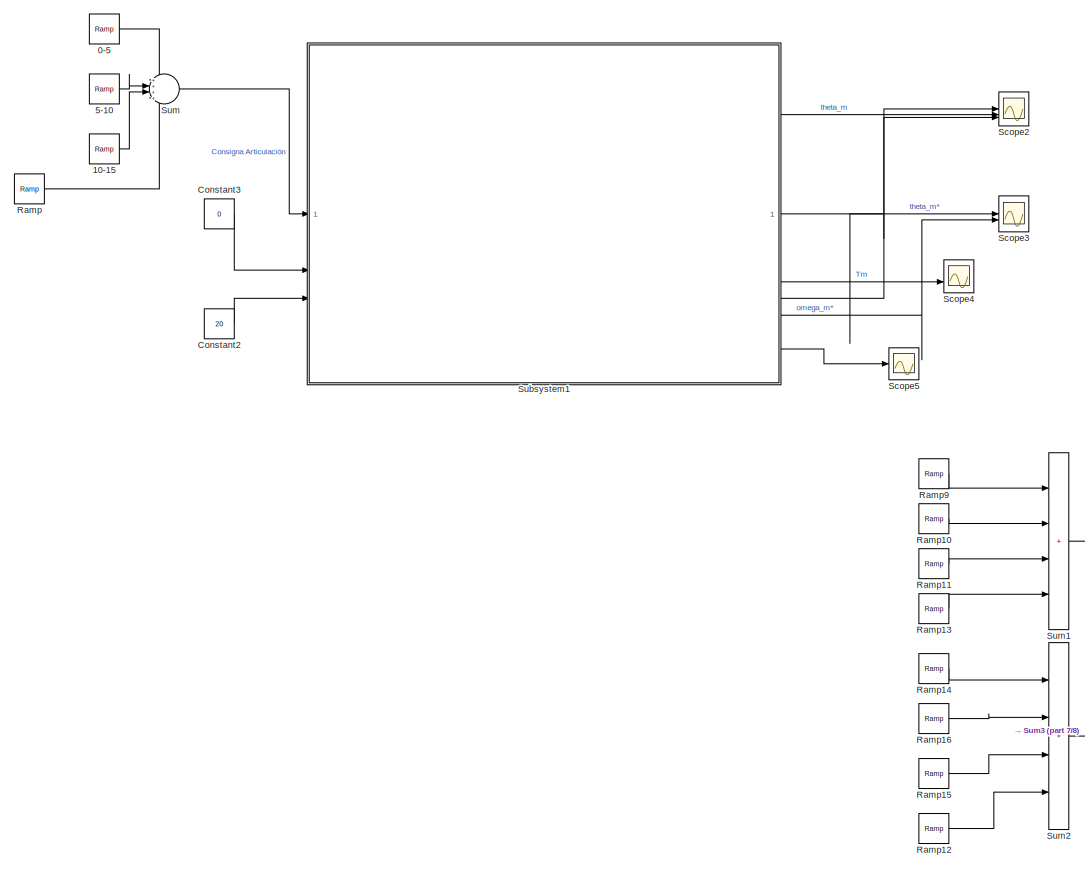
[diagram: root canvas - part 1/8, left side, full height]
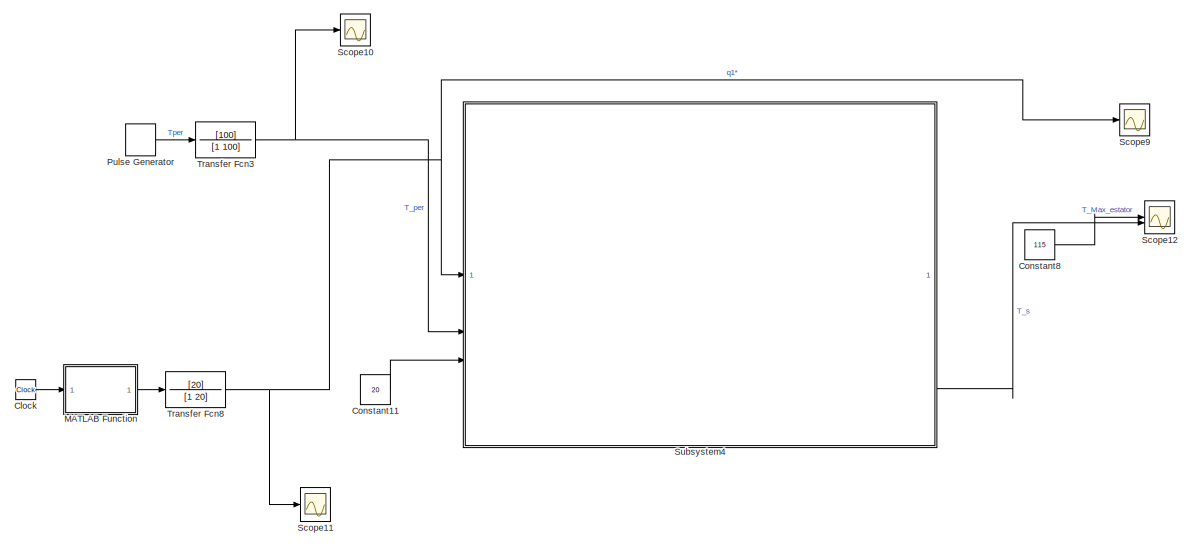
[diagram: root canvas - part 2/8, central region]
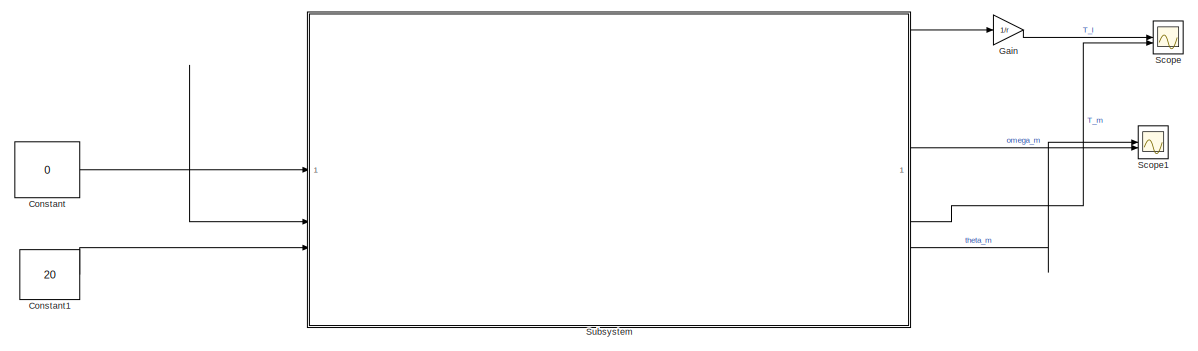
[diagram: root canvas - part 3/8, top left region]
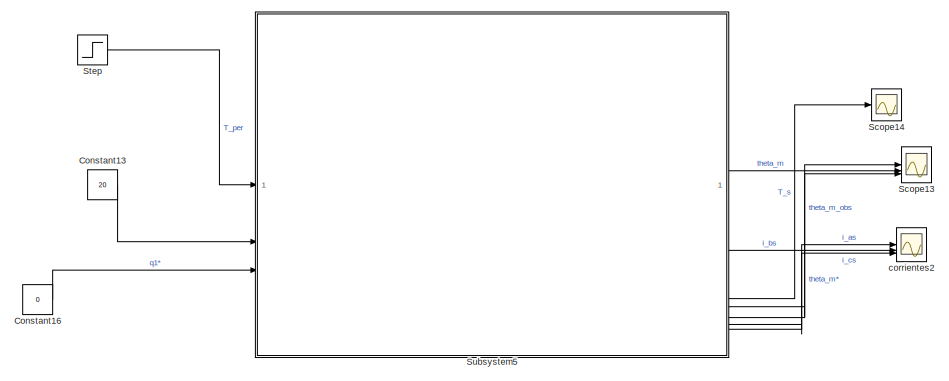
[diagram: root canvas - part 4/8, middle right region]
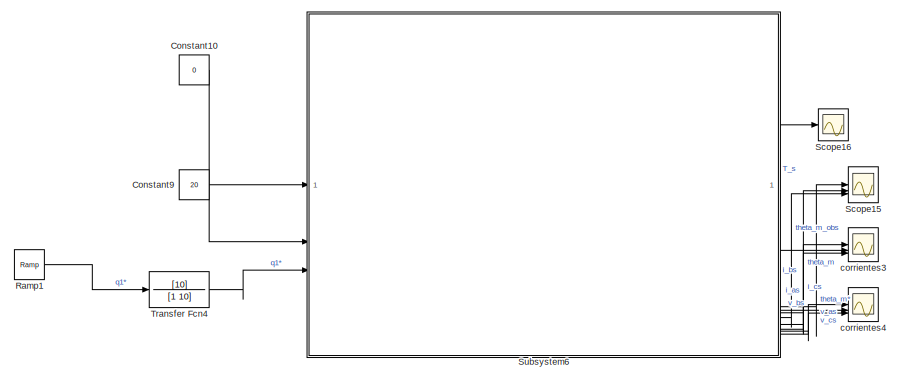
[diagram: root canvas - part 5/8, middle right region]
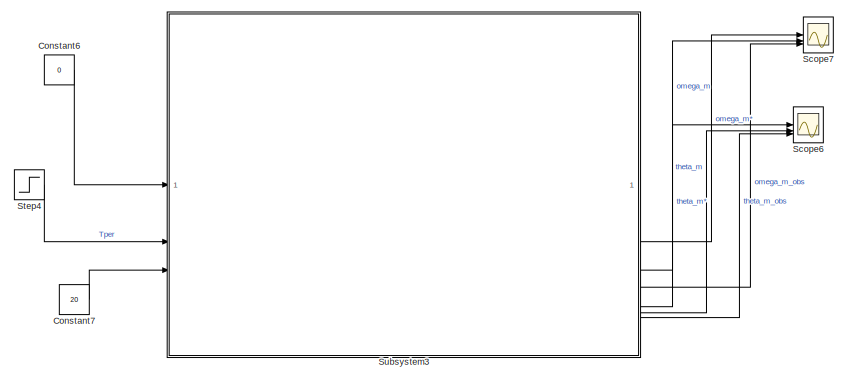
[diagram: root canvas - part 6/8, central region]
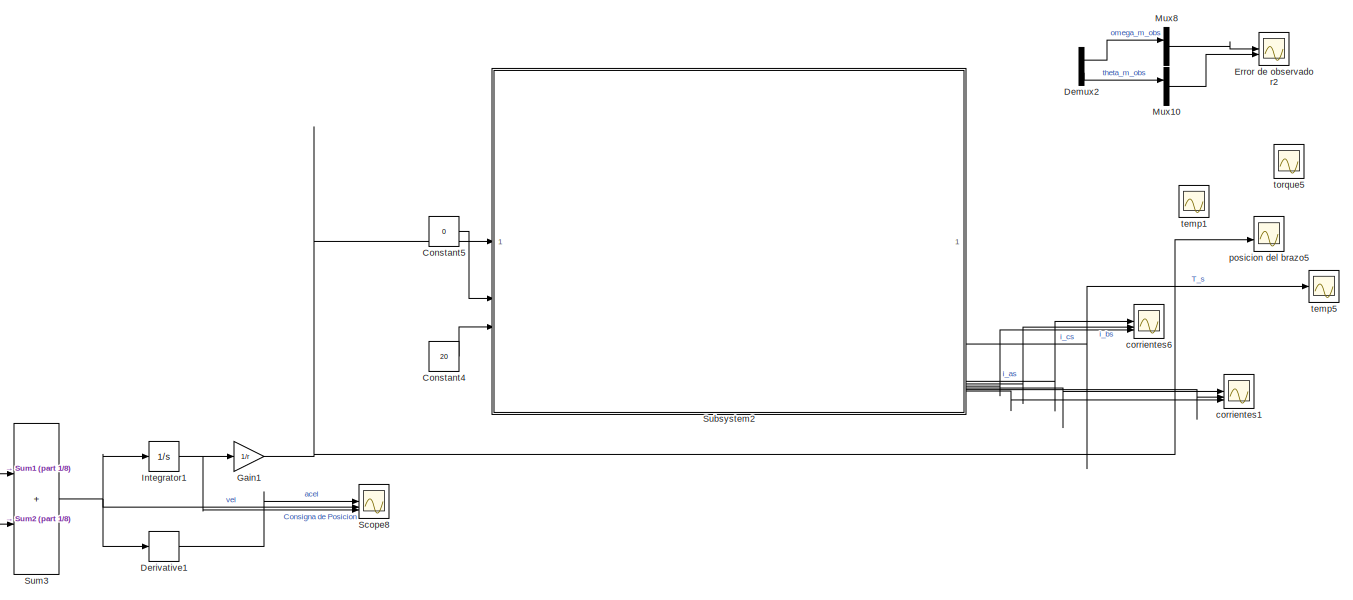
[diagram: root canvas - part 7/8, middle left region]
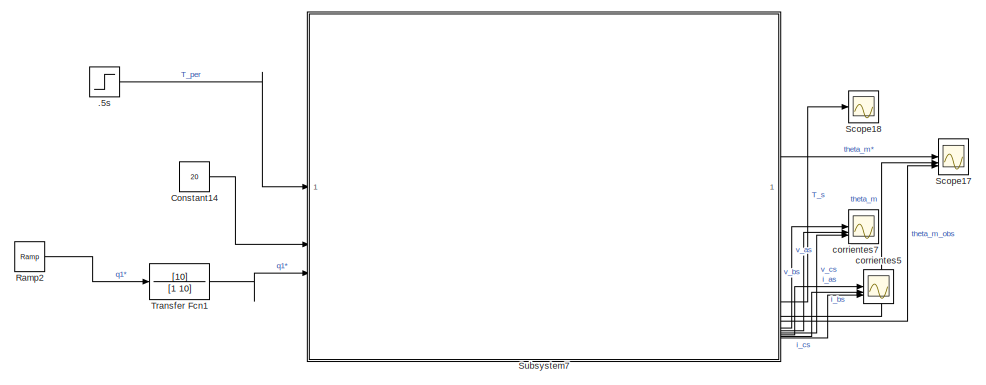
[diagram: root canvas - part 8/8, middle right region]
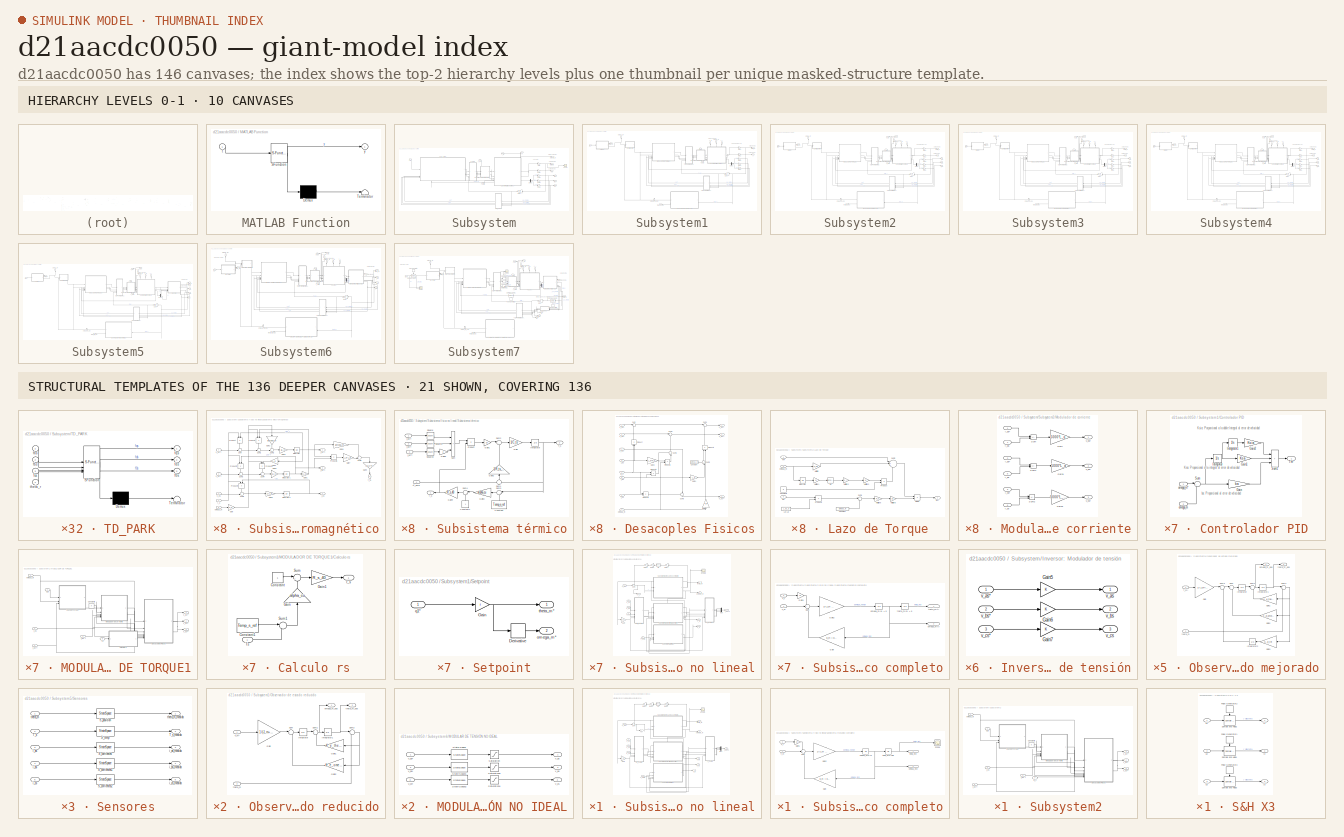
[diagram: thumbnail index - top-2 hierarchy levels (10 canvases) + 21 structural-template representatives of the remaining 136 canvases]
MODEL slx_d21aacdc0050
KIND model
CONFIG AbsTol = auto
CONFIG EnableMultiTasking = off
CONFIG FixedStep = auto
CONFIG MaxStep = auto
CONFIG MinStep = auto
CONFIG RelTol = 1e-3
CONFIG SampleTimeConstraint = Unconstrained
CONFIG SolverName = ode45
CONFIG StartTime = 0.0
CONFIG StopTime = 20
BLOCK [Step] .5s
  After = 5
  SampleTime = 0
  Time = .5
BLOCK [Reference] 0-5  REF=simulink/Sources/Ramp
  Commented = on
  SourceBlock = simulink/Sources/Ramp
  SourceType = Ramp
BLOCK [Reference] 10-15  REF=simulink/Sources/Ramp
  Commented = on
  SourceBlock = simulink/Sources/Ramp
  SourceType = Ramp
BLOCK [Reference] 5-10  REF=simulink/Sources/Ramp
  Commented = on
  SourceBlock = simulink/Sources/Ramp
  SourceType = Ramp
BLOCK [Clock] Clock
  Commented = on
BLOCK [Constant] Constant
  Commented = on
  Value = 0
BLOCK [Constant] Constant1
  Commented = on
  Value = 20
BLOCK [Constant] Constant10
  Commented = on
  Value = 0
BLOCK [Constant] Constant11
  Commented = on
  Value = 20
BLOCK [Constant] Constant13
  Commented = on
  Value = 20
BLOCK [Constant] Constant14
  Value = 20
BLOCK [Constant] Constant16
  Commented = on
  Value = 0
BLOCK [Constant] Constant2
  Commented = on
  Value = 20
BLOCK [Constant] Constant3
  Commented = on
  Value = 0
BLOCK [Constant] Constant4
  Commented = on
  Value = 20
BLOCK [Constant] Constant5
  Commented = on
  Value = 0
BLOCK [Constant] Constant6
  Commented = on
  Value = 0
BLOCK [Constant] Constant7
  Commented = on
  Value = 20
BLOCK [Constant] Constant8
  Commented = on
  Value = 115
BLOCK [Constant] Constant9
  Commented = on
  Value = 20
BLOCK [Demux] Demux2
  Commented = on
  Outputs = 2
BLOCK [Derivative] Derivative1
  Commented = on
BLOCK [Scope] Error de observador2
  Commented = on
  Floating = off
  NumInputPorts = 2
  ScopeSpecificationString = Simulink.scopes.TimeScopeBlockCfg('CurrentConfiguration', extmgr.ConfigurationSet(extmgr.Configuration('Core','General UI',true),extmgr.Configuration('Core','Source UI',true),extmgr.Configuration('Sources','WiredSimulink',true,'DataLoggingVariableName','ScopeData1'),extmgr.Configuration('Visuals','Time Domain',true,'SerializedDisplays',{struct('MinYLimReal','-188.51441','MaxYLimReal','188.51442','...<+2533ch>
BLOCK [Gain] Gain
  Commented = on
  Gain = 1/r
BLOCK [Gain] Gain1
  Commented = on
  Gain = 1/r
BLOCK [Integrator] Integrator1
  Commented = on
BLOCK [SubSystem] MATLAB Function
  Commented = on
  ErrorFcn = Stateflow.Translate.translate
  PermitHierarchicalResolution = ExplicitOnly
  SFBlockType = MATLAB Function
  TreatAsAtomicUnit = on
BLOCK [Demux] MATLAB Function/ Demux 
  Outputs = 1
BLOCK [S-Function] MATLAB Function/ SFunction 
  EnableBusSupport = on
  FunctionName = sf_sfun
  PortCounts = [1 2]
  SFcnIsStateOwnerBlock = off
  SFunctionDeploymentMode = off
  Tag = Stateflow S-Function 39
BLOCK [Terminator] MATLAB Function/ Terminator 
BLOCK [Inport] MATLAB Function/t
BLOCK [Outport] MATLAB Function/y
BLOCK [Mux] Mux10
  Commented = on
  DisplayOption = bar
  Inputs = 2
BLOCK [Mux] Mux8
  Commented = on
  DisplayOption = bar
  Inputs = 2
BLOCK [DiscretePulseGenerator] Pulse Generator
  Amplitude = 5
  Commented = on
  Period = 1
  PulseType = Time based
  PulseWidth = 50
BLOCK [Reference] Ramp  REF=simulink/Sources/Ramp
  Commented = on
  SourceBlock = simulink/Sources/Ramp
  SourceType = Ramp
BLOCK [Reference] Ramp1  REF=simulink/Sources/Ramp
  Commented = on
  SourceBlock = simulink/Sources/Ramp
  SourceType = Ramp
BLOCK [Reference] Ramp10  REF=simulink/Sources/Ramp
  Commented = on
  SourceBlock = simulink/Sources/Ramp
  SourceType = Ramp
BLOCK [Reference] Ramp11  REF=simulink/Sources/Ramp
  Commented = on
  SourceBlock = simulink/Sources/Ramp
  SourceType = Ramp
BLOCK [Reference] Ramp12  REF=simulink/Sources/Ramp
  Commented = on
  SourceBlock = simulink/Sources/Ramp
  SourceType = Ramp
BLOCK [Reference] Ramp13  REF=simulink/Sources/Ramp
  Commented = on
  SourceBlock = simulink/Sources/Ramp
  SourceType = Ramp
BLOCK [Reference] Ramp14  REF=simulink/Sources/Ramp
  Commented = on
  SourceBlock = simulink/Sources/Ramp
  SourceType = Ramp
BLOCK [Reference] Ramp15  REF=simulink/Sources/Ramp
  Commented = on
  SourceBlock = simulink/Sources/Ramp
  SourceType = Ramp
BLOCK [Reference] Ramp16  REF=simulink/Sources/Ramp
  Commented = on
  SourceBlock = simulink/Sources/Ramp
  SourceType = Ramp
BLOCK [Reference] Ramp2  REF=simulink/Sources/Ramp
  SourceBlock = simulink/Sources/Ramp
  SourceType = Ramp
BLOCK [Reference] Ramp9  REF=simulink/Sources/Ramp
  Commented = on
  SourceBlock = simulink/Sources/Ramp
  SourceType = Ramp
BLOCK [Scope] Scope
  Commented = on
  Floating = off
  NumInputPorts = 2
  ScopeSpecificationString = Simulink.scopes.TimeScopeBlockCfg('CurrentConfiguration', extmgr.ConfigurationSet(extmgr.Configuration('Core','General UI',true),extmgr.Configuration('Core','Source UI',true),extmgr.Configuration('Sources','WiredSimulink',true,'DataLoggingVariableName','ScopeData1'),extmgr.Configuration('Visuals','Time Domain',true,'SerializedDisplays',{struct('MinYLimReal','-0.00002','MaxYLimReal','0.00015','YLab...<+1503ch>
BLOCK [Scope] Scope1
  Commented = on
  Floating = off
  NumInputPorts = 2
  ScopeSpecificationString = Simulink.scopes.TimeScopeBlockCfg('CurrentConfiguration', extmgr.ConfigurationSet(extmgr.Configuration('Core','General UI',true),extmgr.Configuration('Core','Source UI',true),extmgr.Configuration('Sources','WiredSimulink',true,'DataLoggingVariableName','ScopeData2'),extmgr.Configuration('Visuals','Time Domain',true,'SerializedDisplays',{struct('MinYLimReal','-0.0997','MaxYLimReal','0.88374','YLabe...<+1492ch>
BLOCK [Scope] Scope10
  Commented = on
  Floating = off
  NumInputPorts = 1
  ScopeSpecificationString = Simulink.scopes.TimeScopeBlockCfg('CurrentConfiguration', extmgr.ConfigurationSet(extmgr.Configuration('Core','General UI',true,'FigureColor',[1 1 1]),extmgr.Configuration('Core','Source UI',true),extmgr.Configuration('Sources','WiredSimulink',true,'DataLoggingVariableName','ScopeData12'),extmgr.Configuration('Visuals','Time Domain',true,'SerializedDisplays',{struct('MinYLimReal','-0.36922','MaxYL...<+1678ch>
BLOCK [Scope] Scope11
  Commented = on
  Floating = off
  NumInputPorts = 1
  ScopeSpecificationString = Simulink.scopes.TimeScopeBlockCfg('CurrentConfiguration', extmgr.ConfigurationSet(extmgr.Configuration('Core','General UI',true,'FigureColor',[1 1 1]),extmgr.Configuration('Core','Source UI',true),extmgr.Configuration('Sources','WiredSimulink',true,'DataLoggingVariableName','ScopeData10'),extmgr.Configuration('Visuals','Time Domain',true,'SerializedDisplays',{struct('MinYLimReal','-0.7854','MaxYLi...<+1664ch>
BLOCK [Scope] Scope12
  Commented = on
  Floating = off
  NumInputPorts = 2
  ScopeSpecificationString = Simulink.scopes.TimeScopeBlockCfg('CurrentConfiguration', extmgr.ConfigurationSet(extmgr.Configuration('Core','General UI',true,'FigureColor',[1 1 1]),extmgr.Configuration('Core','Source UI',true),extmgr.Configuration('Sources','WiredSimulink',true,'DataLoggingVariableName','ScopeData13'),extmgr.Configuration('Visuals','Time Domain',true,'SerializedDisplays',{struct('MinYLimReal','8.125','MaxYLimR...<+1745ch>
BLOCK [Scope] Scope13
  Commented = on
  Floating = off
  NumInputPorts = 3
  ScopeSpecificationString = Simulink.scopes.TimeScopeBlockCfg('CurrentConfiguration', extmgr.ConfigurationSet(extmgr.Configuration('Core','General UI',true,'FigureColor',[1 1 1]),extmgr.Configuration('Core','Source UI',true),extmgr.Configuration('Sources','WiredSimulink',true,'DataLoggingVariableName','ScopeData14'),extmgr.Configuration('Visuals','Time Domain',true,'SerializedDisplays',{struct('MinYLimReal','-0.00079','MaxYL...<+1954ch>
BLOCK [Scope] Scope14
  Commented = on
  Floating = off
  NumInputPorts = 1
  ScopeSpecificationString = Simulink.scopes.TimeScopeBlockCfg('CurrentConfiguration', extmgr.ConfigurationSet(extmgr.Configuration('Core','General UI',true,'FigureColor',[1 1 1]),extmgr.Configuration('Core','Source UI',true),extmgr.Configuration('Sources','WiredSimulink',true,'DataLoggingVariableName','ScopeData16'),extmgr.Configuration('Visuals','Time Domain',true,'SerializedDisplays',{struct('MinYLimReal','19.75524','MaxYL...<+1663ch>
BLOCK [Scope] Scope15
  Commented = on
  Floating = off
  NumInputPorts = 3
  ScopeSpecificationString = Simulink.scopes.TimeScopeBlockCfg('CurrentConfiguration', extmgr.ConfigurationSet(extmgr.Configuration('Core','General UI',true,'FigureColor',[1 1 1]),extmgr.Configuration('Core','Source UI',true),extmgr.Configuration('Sources','WiredSimulink',true,'DataLoggingVariableName','ScopeData17'),extmgr.Configuration('Visuals','Time Domain',true,'SerializedDisplays',{struct('MinYLimReal','-2105.88809','Ma...<+1980ch>
BLOCK [Scope] Scope16
  Commented = on
  Floating = off
  NumInputPorts = 1
  ScopeSpecificationString = Simulink.scopes.TimeScopeBlockCfg('CurrentConfiguration', extmgr.ConfigurationSet(extmgr.Configuration('Core','General UI',true,'FigureColor',[1 1 1]),extmgr.Configuration('Core','Source UI',true),extmgr.Configuration('Sources','WiredSimulink',true,'DataLoggingVariableName','ScopeData18'),extmgr.Configuration('Visuals','Time Domain',true,'SerializedDisplays',{struct('MinYLimReal','19.90387','MaxYL...<+1663ch>
BLOCK [Scope] Scope17
  Floating = off
  NumInputPorts = 3
  ScopeSpecificationString = Simulink.scopes.TimeScopeBlockCfg('CurrentConfiguration', extmgr.ConfigurationSet(extmgr.Configuration('Core','General UI',true,'FigureColor',[1 1 1]),extmgr.Configuration('Core','Source UI',true),extmgr.Configuration('Sources','WiredSimulink',true,'DataLoggingVariableName','ScopeData21'),extmgr.Configuration('Visuals','Time Domain',true,'SerializedDisplays',{struct('MinYLimReal','-2105.88809','Ma...<+1980ch>
BLOCK [Scope] Scope18
  Floating = off
  NumInputPorts = 1
  ScopeSpecificationString = Simulink.scopes.TimeScopeBlockCfg('CurrentConfiguration', extmgr.ConfigurationSet(extmgr.Configuration('Core','General UI',true,'FigureColor',[1 1 1]),extmgr.Configuration('Core','Source UI',true),extmgr.Configuration('Sources','WiredSimulink',true,'DataLoggingVariableName','ScopeData22'),extmgr.Configuration('Visuals','Time Domain',true,'SerializedDisplays',{struct('MinYLimReal','19.90387','MaxYL...<+1663ch>
BLOCK [Scope] Scope2
  Commented = on
  Floating = off
  NumInputPorts = 3
  ScopeSpecificationString = Simulink.scopes.TimeScopeBlockCfg('CurrentConfiguration', extmgr.ConfigurationSet(extmgr.Configuration('Core','General UI',true,'FigureColor',[1 1 1]),extmgr.Configuration('Core','Source UI',true),extmgr.Configuration('Sources','WiredSimulink',true,'DataLoggingVariableName','ScopeData5'),extmgr.Configuration('Visuals','Time Domain',true,'SerializedDisplays',{struct('MinYLimReal','-94.33261','MaxYL...<+1916ch>
BLOCK [Scope] Scope3
  Commented = on
  Floating = off
  NumInputPorts = 2
  ScopeSpecificationString = Simulink.scopes.TimeScopeBlockCfg('CurrentConfiguration', extmgr.ConfigurationSet(extmgr.Configuration('Core','General UI',true,'FigureColor',[1 1 1]),extmgr.Configuration('Core','Source UI',true),extmgr.Configuration('Sources','WiredSimulink',true,'DataLoggingVariableName','ScopeData6'),extmgr.Configuration('Visuals','Time Domain',true,'SerializedDisplays',{struct('MinYLimReal','-94.24778','MaxYL...<+2648ch>
BLOCK [Scope] Scope4
  Commented = on
  Floating = off
  NumInputPorts = 2
  ScopeSpecificationString = Simulink.scopes.TimeScopeBlockCfg('CurrentConfiguration', extmgr.ConfigurationSet(extmgr.Configuration('Core','General UI',true),extmgr.Configuration('Core','Source UI',true),extmgr.Configuration('Sources','WiredSimulink',true,'DataLoggingVariableName','ScopeData7'),extmgr.Configuration('Visuals','Time Domain',true,'SerializedDisplays',{struct('MinYLimReal','-226.68812','MaxYLimReal','51.21588','Y...<+1522ch>
BLOCK [Scope] Scope5
  Commented = on
  Floating = off
  NumInputPorts = 1
  ScopeSpecificationString = Simulink.scopes.TimeScopeBlockCfg('CurrentConfiguration', extmgr.ConfigurationSet(extmgr.Configuration('Core','General UI',true),extmgr.Configuration('Core','Source UI',true),extmgr.Configuration('Sources','WiredSimulink',true,'DataLoggingVariableName','ScopeData8'),extmgr.Configuration('Visuals','Time Domain',true,'SerializedDisplays',{struct('MinYLimReal','19.07365','MaxYLimReal','28.33715','YLa...<+1495ch>
BLOCK [Scope] Scope6
  Commented = on
  Floating = off
  NumInputPorts = 3
  ScopeSpecificationString = Simulink.scopes.TimeScopeBlockCfg('CurrentConfiguration', extmgr.ConfigurationSet(extmgr.Configuration('Core','General UI',true,'FigureColor',[1 1 1]),extmgr.Configuration('Core','Source UI',true),extmgr.Configuration('Sources','WiredSimulink',true,'DataLoggingVariableName','ScopeData8'),extmgr.Configuration('Visuals','Time Domain',true,'SerializedDisplays',{struct('MinYLimReal','-0.00114','MaxYLi...<+1953ch>
BLOCK [Scope] Scope7
  Commented = on
  Floating = off
  NumInputPorts = 3
  ScopeSpecificationString = Simulink.scopes.TimeScopeBlockCfg('CurrentConfiguration', extmgr.ConfigurationSet(extmgr.Configuration('Core','General UI',true,'FigureColor',[1 1 1]),extmgr.Configuration('Core','Source UI',true),extmgr.Configuration('Sources','WiredSimulink',true,'DataLoggingVariableName','ScopeData9'),extmgr.Configuration('Visuals','Time Domain',true,'SerializedDisplays',{struct('MinYLimReal','-1.10635','MaxYLi...<+1953ch>
BLOCK [Scope] Scope8
  Commented = on
  Floating = off
  NumInputPorts = 3
  ScopeSpecificationString = Simulink.scopes.TimeScopeBlockCfg('CurrentConfiguration', extmgr.ConfigurationSet(extmgr.Configuration('Core','General UI',true),extmgr.Configuration('Core','Source UI',true),extmgr.Configuration('Sources','WiredSimulink',true,'DataLoggingVariableName','ScopeData11'),extmgr.Configuration('Visuals','Time Domain',true,'SerializedDisplays',{struct('MinYLimReal','-240.28125','MaxYLimReal','240.03125',...<+3369ch>
BLOCK [Scope] Scope9
  Commented = on
  Floating = off
  NumInputPorts = 1
  ScopeSpecificationString = Simulink.scopes.TimeScopeBlockCfg('CurrentConfiguration', extmgr.ConfigurationSet(extmgr.Configuration('Core','General UI',true),extmgr.Configuration('Core','Source UI',true),extmgr.Configuration('Sources','WiredSimulink',true,'DataLoggingVariableName','ScopeData11'),extmgr.Configuration('Visuals','Time Domain',true),extmgr.Configuration('Tools','Plot Navigation',true),extmgr.Configuration('Tools'...<+41ch>
BLOCK [Step] Step
  After = 5
  Commented = on
  SampleTime = 0
  Time = 7.5
BLOCK [Step] Step4
  After = 5
  Commented = on
  SampleTime = 0
  Time = 7.5
BLOCK [SubSystem] Subsystem
  Commented = on
BLOCK [Demux] Subsystem/Demux
  Outputs = 3
BLOCK [Gain] Subsystem/Gain
BLOCK [Gain] Subsystem/Gain1
BLOCK [Gain] Subsystem/Gain2
BLOCK [Gain] Subsystem/Gain3
BLOCK [Gain] Subsystem/Gain4
BLOCK [Gain] Subsystem/Gain5
  Gain = P_p
  NameLocation = top
BLOCK [SubSystem] Subsystem/Inversor: Modulador de tensión
BLOCK [Gain] Subsystem/Inversor: Modulador de tensión/Gain5
BLOCK [Gain] Subsystem/Inversor: Modulador de tensión/Gain6
BLOCK [Gain] Subsystem/Inversor: Modulador de tensión/Gain7
BLOCK [Outport] Subsystem/Inversor: Modulador de tensión/v_as
BLOCK [Inport] Subsystem/Inversor: Modulador de tensión/v_as*
BLOCK [Outport] Subsystem/Inversor: Modulador de tensión/v_bs
  Port = 2
BLOCK [Inport] Subsystem/Inversor: Modulador de tensión/v_bs*
  Port = 2
BLOCK [Outport] Subsystem/Inversor: Modulador de tensión/v_cs
  Port = 3
BLOCK [Inport] Subsystem/Inversor: Modulador de tensión/v_cs*
  Port = 3
BLOCK [Scope] Subsystem/Scope
  Floating = off
  NumInputPorts = 1
  ScopeSpecificationString = Simulink.scopes.TimeScopeBlockCfg('CurrentConfiguration', extmgr.ConfigurationSet(extmgr.Configuration('Core','General UI',true),extmgr.Configuration('Core','Source UI',true),extmgr.Configuration('Sources','WiredSimulink',true,'DataLoggingVariableName','ScopeData4'),extmgr.Configuration('Visuals','Time Domain',true,'SerializedDisplays',{struct('MinYLimReal','0.78538','MaxYLimReal','0.7854','YLabel...<+1446ch>
BLOCK [SubSystem] Subsystem/Subsistema físico no lineal
  PortSchema = {"entries":[{"content":{"sides":[{"content":{"connectorIds":["In1","In2","In3","In4","In5"]},"type":"ConnectorPlacement.EquallySpacedRectSide","uuid":"67117692-d9ee-40bf-88b2-d8f6a60dc3b5"},{"content":{"connectorIds":["Out1","Out2","Out3"],"side":"RIGHT"},"type":"ConnectorPlacement.EquallySpacedRectSide","uuid":"ca2dbe86-e86f-47c7-8eac-1e82e6a5dbc0"},{"content":{"connectorIds":["Out5","Out6","Out7...<+448ch>
BLOCK [Gain] Subsystem/Subsistema físico no lineal/Gain
  Gain = P_p
BLOCK [Gain] Subsystem/Subsistema físico no lineal/Gain1
  Gain = 1/r
  NameLocation = top
BLOCK [Gain] Subsystem/Subsistema físico no lineal/Gain2
  Gain = k_l
  NameLocation = top
BLOCK [Gain] Subsystem/Subsistema físico no lineal/Gain3
  Gain = g
  NameLocation = top
BLOCK [Mux] Subsystem/Subsistema físico no lineal/Mux
  DisplayOption = bar
  Inputs = 3
BLOCK [Scope] Subsystem/Subsistema físico no lineal/Scope
  Floating = off
  NumInputPorts = 1
  ScopeSpecificationString = Simulink.scopes.TimeScopeBlockCfg('CurrentConfiguration', extmgr.ConfigurationSet(extmgr.Configuration('Core','General UI',true),extmgr.Configuration('Core','Source UI',true),extmgr.Configuration('Sources','WiredSimulink',true,'DataLoggingVariableName','ScopeData1'),extmgr.Configuration('Visuals','Time Domain',true,'SerializedDisplays',{struct('MinYLimReal','-127.62191','MaxYLimReal','534.52388','...<+1596ch>  <repeated x8 — deduplicated; at blocks: Scope>
BLOCK [Trigonometry] Subsystem/Subsistema físico no lineal/Sin
  NameLocation = top
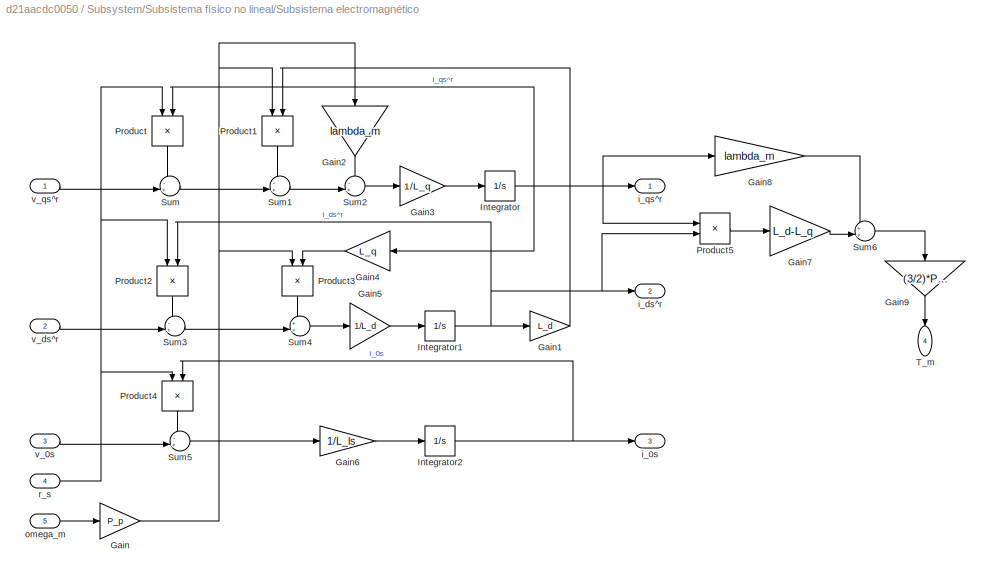
BLOCK [SubSystem] Subsystem/Subsistema físico no lineal/Subsistema electromagnético
  PortSchema = {"entries":[{"content":{"sides":[{"content":{"connectorIds":["In1","In2","In3","In4"]},"type":"ConnectorPlacement.EquallySpacedRectSide","uuid":"c9fae60f-a644-4c7d-9a50-e330e891aba8"},{"content":{"connectorIds":["Out1","Out2","Out3","Out4"],"side":"RIGHT"},"type":"ConnectorPlacement.EquallySpacedRectSide","uuid":"1bd25713-f5e9-4106-83eb-fb9f8a30d88e"},{"content":{"connectorIds":["In5"],"side":"TOP...<+284ch>  <repeated x8 — deduplicated; at blocks: Subsistema electromagnético>
BLOCK [Gain] Subsystem/Subsistema físico no lineal/Subsistema electromagnético/Gain
  Gain = P_p
BLOCK [Gain] Subsystem/Subsistema físico no lineal/Subsistema electromagnético/Gain1
  Gain = L_d
BLOCK [Gain] Subsystem/Subsistema físico no lineal/Subsistema electromagnético/Gain2
  Gain = lambda_m
  NameLocation = left
BLOCK [Gain] Subsystem/Subsistema físico no lineal/Subsistema electromagnético/Gain3
  Gain = 1/L_q
BLOCK [Gain] Subsystem/Subsistema físico no lineal/Subsistema electromagnético/Gain4
  Gain = L_q
  NameLocation = top
BLOCK [Gain] Subsystem/Subsistema físico no lineal/Subsistema electromagnético/Gain5
  Gain = 1/L_d
BLOCK [Gain] Subsystem/Subsistema físico no lineal/Subsistema electromagnético/Gain6
  Gain = 1/L_ls
BLOCK [Gain] Subsystem/Subsistema físico no lineal/Subsistema electromagnético/Gain7
  Gain = L_d-L_q
BLOCK [Gain] Subsystem/Subsistema físico no lineal/Subsistema electromagnético/Gain8
  Gain = lambda_m
BLOCK [Gain] Subsystem/Subsistema físico no lineal/Subsistema electromagnético/Gain9
  Gain = (3/2)*P_p
  NameLocation = left
BLOCK [Integrator] Subsystem/Subsistema físico no lineal/Subsistema electromagnético/Integrator
BLOCK [Integrator] Subsystem/Subsistema físico no lineal/Subsistema electromagnético/Integrator1
BLOCK [Integrator] Subsystem/Subsistema físico no lineal/Subsistema electromagnético/Integrator2
BLOCK [Product] Subsystem/Subsistema físico no lineal/Subsistema electromagnético/Product
  NameLocation = left
BLOCK [Product] Subsystem/Subsistema físico no lineal/Subsistema electromagnético/Product1
  NameLocation = left
BLOCK [Product] Subsystem/Subsistema físico no lineal/Subsistema electromagnético/Product2
  NameLocation = left
BLOCK [Product] Subsystem/Subsistema físico no lineal/Subsistema electromagnético/Product3
  NameLocation = left
BLOCK [Product] Subsystem/Subsistema físico no lineal/Subsistema electromagnético/Product4
  NameLocation = left
BLOCK [Product] Subsystem/Subsistema físico no lineal/Subsistema electromagnético/Product5
BLOCK [Sum] Subsystem/Subsistema físico no lineal/Subsistema electromagnético/Sum
  Inputs = -+|
BLOCK [Sum] Subsystem/Subsistema físico no lineal/Subsistema electromagnético/Sum1
  Inputs = -+|
BLOCK [Sum] Subsystem/Subsistema físico no lineal/Subsistema electromagnético/Sum2
  Inputs = -+|
BLOCK [Sum] Subsystem/Subsistema físico no lineal/Subsistema electromagnético/Sum3
  Inputs = -+|
BLOCK [Sum] Subsystem/Subsistema físico no lineal/Subsistema electromagnético/Sum4
  Inputs = ++|
BLOCK [Sum] Subsystem/Subsistema físico no lineal/Subsistema electromagnético/Sum5
  Inputs = -+|
BLOCK [Sum] Subsystem/Subsistema físico no lineal/Subsistema electromagnético/Sum6
  Inputs = ++|
BLOCK [Outport] Subsystem/Subsistema físico no lineal/Subsistema electromagnético/T_m
  NameLocation = left
  Port = 4
BLOCK [Outport] Subsystem/Subsistema físico no lineal/Subsistema electromagnético/i_0s
  Port = 3
BLOCK [Outport] Subsystem/Subsistema físico no lineal/Subsistema electromagnético/i_ds^r
  Port = 2
BLOCK [Outport] Subsystem/Subsistema físico no lineal/Subsistema electromagnético/i_qs^r
BLOCK [Inport] Subsystem/Subsistema físico no lineal/Subsistema electromagnético/omega_m
  Port = 5
BLOCK [Inport] Subsystem/Subsistema físico no lineal/Subsistema electromagnético/r_s
  Port = 4
BLOCK [Inport] Subsystem/Subsistema físico no lineal/Subsistema electromagnético/v_0s
  Port = 3
BLOCK [Inport] Subsystem/Subsistema físico no lineal/Subsistema electromagnético/v_ds^r
  Port = 2
BLOCK [Inport] Subsystem/Subsistema físico no lineal/Subsistema electromagnético/v_qs^r
BLOCK [SubSystem] Subsystem/Subsistema físico no lineal/Subsistema mecánico completo
BLOCK [Gain] Subsystem/Subsistema físico no lineal/Subsistema mecánico completo/Gain
  Gain = b_m + b_l / (r^2)
  NameLocation = top
BLOCK [Gain] Subsystem/Subsistema físico no lineal/Subsistema mecánico completo/Gain1
  Gain = 1/r
BLOCK [Gain] Subsystem/Subsistema físico no lineal/Subsistema mecánico completo/Gain2
  Gain = 1/(J_m + J_l / r^2)
BLOCK [Scope] Subsystem/Subsistema físico no lineal/Subsistema mecánico completo/Scope
  Floating = off
  NumInputPorts = 1
  ScopeSpecificationString = Simulink.scopes.TimeScopeBlockCfg('CurrentConfiguration', extmgr.ConfigurationSet(extmgr.Configuration('Core','General UI',true),extmgr.Configuration('Core','Source UI',true),extmgr.Configuration('Sources','WiredSimulink',true,'DataLoggingVariableName','ScopeData3'),extmgr.Configuration('Visuals','Time Domain',true,'SerializedDisplays',{struct('MinYLimReal','0.51729','MaxYLimReal','0.81519','YLabe...<+1475ch>
BLOCK [Sum] Subsystem/Subsistema físico no lineal/Subsistema mecánico completo/Sum
  Inputs = -+-
BLOCK [Inport] Subsystem/Subsistema físico no lineal/Subsistema mecánico completo/T_l
  Port = 2
BLOCK [Inport] Subsystem/Subsistema físico no lineal/Subsistema mecánico completo/T_m
BLOCK [Integrator] Subsystem/Subsistema físico no lineal/Subsistema mecánico completo/omega_m(0) = 0
BLOCK [Outport] Subsystem/Subsistema físico no lineal/Subsistema mecánico completo/omega_m(t)
  Port = 2
BLOCK [Integrator] Subsystem/Subsistema físico no lineal/Subsistema mecánico completo/theta_m(0) = pi//4
  InitialCondition = pi/4
BLOCK [Outport] Subsystem/Subsistema físico no lineal/Subsistema mecánico completo/theta_m(t)
BLOCK [SubSystem] Subsystem/Subsistema físico no lineal/Subsistema térmico
BLOCK [Constant] Subsystem/Subsistema físico no lineal/Subsistema térmico/Constant
  NameLocation = right
  Value = Temp_s_ref
BLOCK [Constant] Subsystem/Subsistema físico no lineal/Subsistema térmico/Constant1
  NameLocation = right
BLOCK [Gain] Subsystem/Subsistema físico no lineal/Subsistema térmico/Gain
  Gain = 1/C_ts
BLOCK [Gain] Subsystem/Subsistema físico no lineal/Subsistema térmico/Gain1
  Gain = 3/2
BLOCK [Gain] Subsystem/Subsistema físico no lineal/Subsistema térmico/Gain2
  Gain = 1/R_ts_amb
  NameLocation = right
BLOCK [Gain] Subsystem/Subsistema físico no lineal/Subsistema térmico/Gain3
  Gain = alpha_cu
  NameLocation = top
BLOCK [Gain] Subsystem/Subsistema físico no lineal/Subsistema térmico/Gain4
  Gain = R_s_40
  NameLocation = top
BLOCK [Gain] Subsystem/Subsistema físico no lineal/Subsistema térmico/Gain5
  Gain = 2
BLOCK [Integrator] Subsystem/Subsistema físico no lineal/Subsistema térmico/Integrator
  InitialCondition = 20
BLOCK [Product] Subsystem/Subsistema físico no lineal/Subsistema térmico/Product
BLOCK [Math] Subsystem/Subsistema físico no lineal/Subsistema térmico/Square
  Operator = square
BLOCK [Math] Subsystem/Subsistema físico no lineal/Subsistema térmico/Square1
  Operator = square
BLOCK [Math] Subsystem/Subsistema físico no lineal/Subsistema térmico/Square2
  Operator = square
BLOCK [Sum] Subsystem/Subsistema físico no lineal/Subsistema térmico/Sum
  IconShape = rectangular
  Inputs = +++
BLOCK [Sum] Subsystem/Subsistema físico no lineal/Subsistema térmico/Sum1
  Inputs = -|+
  NameLocation = right
BLOCK [Sum] Subsystem/Subsistema físico no lineal/Subsistema térmico/Sum2
  Inputs = |+-
BLOCK [Sum] Subsystem/Subsistema físico no lineal/Subsistema térmico/Sum3
  Inputs = |+-
  NameLocation = top
BLOCK [Sum] Subsystem/Subsistema físico no lineal/Subsistema térmico/Sum4
  Inputs = |++
  NameLocation = top
BLOCK [Outport] Subsystem/Subsistema físico no lineal/Subsistema térmico/T_s
  Port = 2
BLOCK [Inport] Subsystem/Subsistema físico no lineal/Subsistema térmico/Tº_amb
  Port = 4
BLOCK [Inport] Subsystem/Subsistema físico no lineal/Subsistema térmico/i_0s^r
  Port = 3
BLOCK [Inport] Subsystem/Subsistema físico no lineal/Subsistema térmico/i_ds^r
  Port = 2
BLOCK [Inport] Subsystem/Subsistema físico no lineal/Subsistema térmico/i_qs^r
BLOCK [Outport] Subsystem/Subsistema físico no lineal/Subsistema térmico/r_s
  NameLocation = top
BLOCK [Sum] Subsystem/Subsistema físico no lineal/Sum
  Inputs = ++|
BLOCK [SubSystem] Subsystem/Subsistema físico no lineal/TD_PARK
  ErrorFcn = Stateflow.Translate.translate
  LibrarySourceBlock = simulink/User-Defined\nFunctions/MATLAB Function
  PermitHierarchicalResolution = ExplicitOnly
  SFBlockType = MATLAB Function
  TreatAsAtomicUnit = on
BLOCK [Demux] Subsystem/Subsistema físico no lineal/TD_PARK/ Demux 
  Outputs = 1
BLOCK [S-Function] Subsystem/Subsistema físico no lineal/TD_PARK/ SFunction 
  EnableBusSupport = on
  FunctionName = sf_sfun
  PortCounts = [4 4]
  SFcnIsStateOwnerBlock = off
  SFunctionDeploymentMode = off
  Tag = Stateflow S-Function 1
BLOCK [Terminator] Subsystem/Subsistema físico no lineal/TD_PARK/ Terminator 
BLOCK [Outport] Subsystem/Subsistema físico no lineal/TD_PARK/f0s
  Port = 3
BLOCK [Inport] Subsystem/Subsistema físico no lineal/TD_PARK/fas
BLOCK [Inport] Subsystem/Subsistema físico no lineal/TD_PARK/fbs
  Port = 2
BLOCK [Inport] Subsystem/Subsistema físico no lineal/TD_PARK/fcs
  Port = 3
BLOCK [Outport] Subsystem/Subsistema físico no lineal/TD_PARK/fds
  Port = 2
BLOCK [Outport] Subsystem/Subsistema físico no lineal/TD_PARK/fqs
BLOCK [Inport] Subsystem/Subsistema físico no lineal/TD_PARK/theta_r
  Port = 4
BLOCK [SubSystem] Subsystem/Subsistema físico no lineal/TI_PARK
  ErrorFcn = Stateflow.Translate.translate
  LibrarySourceBlock = simulink/User-Defined\nFunctions/MATLAB Function
  PermitHierarchicalResolution = ExplicitOnly
  SFBlockType = MATLAB Function
  TreatAsAtomicUnit = on
BLOCK [Demux] Subsystem/Subsistema físico no lineal/TI_PARK/ Demux 
  Outputs = 1
BLOCK [S-Function] Subsystem/Subsistema físico no lineal/TI_PARK/ SFunction 
  EnableBusSupport = on
  FunctionName = sf_sfun
  PortCounts = [4 4]
  SFcnIsStateOwnerBlock = off
  SFunctionDeploymentMode = off
  Tag = Stateflow S-Function 2
BLOCK [Terminator] Subsystem/Subsistema físico no lineal/TI_PARK/ Terminator 
BLOCK [Inport] Subsystem/Subsistema físico no lineal/TI_PARK/f0s
  Port = 3
BLOCK [Outport] Subsystem/Subsistema físico no lineal/TI_PARK/fas
BLOCK [Outport] Subsystem/Subsistema físico no lineal/TI_PARK/fbs
  Port = 2
BLOCK [Outport] Subsystem/Subsistema físico no lineal/TI_PARK/fcs
  Port = 3
BLOCK [Inport] Subsystem/Subsistema físico no lineal/TI_PARK/fds
  Port = 2
BLOCK [Inport] Subsystem/Subsistema físico no lineal/TI_PARK/fqs
BLOCK [Inport] Subsystem/Subsistema físico no lineal/TI_PARK/theta_r
  Port = 4
BLOCK [Outport] Subsystem/Subsistema físico no lineal/T_l
  Port = 7
BLOCK [Outport] Subsystem/Subsistema físico no lineal/T_m
  Port = 5
BLOCK [Inport] Subsystem/Subsistema físico no lineal/T_per
BLOCK [Outport] Subsystem/Subsistema físico no lineal/T_s
  Port = 2
BLOCK [Inport] Subsystem/Subsistema físico no lineal/Tº_amb
  Port = 5
BLOCK [Outport] Subsystem/Subsistema físico no lineal/i_abcs
  Port = 3
BLOCK [Outport] Subsystem/Subsistema físico no lineal/omega_m
  Port = 6
BLOCK [Outport] Subsystem/Subsistema físico no lineal/r_s
  Port = 4
BLOCK [Outport] Subsystem/Subsistema físico no lineal/theta_m
BLOCK [Inport] Subsystem/Subsistema físico no lineal/v_as
  Port = 2
BLOCK [Inport] Subsystem/Subsistema físico no lineal/v_bs
  Port = 3
BLOCK [Inport] Subsystem/Subsistema físico no lineal/v_cs
  Port = 4
BLOCK [SubSystem] Subsystem/Subsystem2
BLOCK [Constant] Subsystem/Subsystem2/Constant5
  Value = 0
BLOCK [SubSystem] Subsystem/Subsystem2/Desacoples Fisicos
BLOCK [Constant] Subsystem/Subsystem2/Desacoples Fisicos/Constant
  Value = lambda_m
BLOCK [Gain] Subsystem/Subsystem2/Desacoples Fisicos/Gain
  Gain = P_p
  NameLocation = right
BLOCK [Gain] Subsystem/Subsystem2/Desacoples Fisicos/Gain1
  Gain = L_d
BLOCK [Gain] Subsystem/Subsystem2/Desacoples Fisicos/Gain2
  Gain = L_q*P_p
BLOCK [Product] Subsystem/Subsystem2/Desacoples Fisicos/Product
  NameLocation = right
BLOCK [Product] Subsystem/Subsystem2/Desacoples Fisicos/Product1
  NameLocation = right
BLOCK [Product] Subsystem/Subsystem2/Desacoples Fisicos/Product2
BLOCK [Product] Subsystem/Subsystem2/Desacoples Fisicos/Product3
BLOCK [Product] Subsystem/Subsystem2/Desacoples Fisicos/Product4
BLOCK [Inport] Subsystem/Subsystem2/Desacoples Fisicos/R_s
  Port = 8
BLOCK [Sum] Subsystem/Subsystem2/Desacoples Fisicos/Sum
  Inputs = |++
BLOCK [Sum] Subsystem/Subsystem2/Desacoples Fisicos/Sum1
  Inputs = |++
BLOCK [Sum] Subsystem/Subsystem2/Desacoples Fisicos/Sum2
  Inputs = ++|
  NameLocation = right
BLOCK [Sum] Subsystem/Subsystem2/Desacoples Fisicos/Sum3
  Inputs = +-|
  NameLocation = right
BLOCK [Sum] Subsystem/Subsystem2/Desacoples Fisicos/Sum4
  Inputs = |++
BLOCK [Sum] Subsystem/Subsystem2/Desacoples Fisicos/Sum5
  Inputs = ++|
  NameLocation = left
BLOCK [Inport] Subsystem/Subsystem2/Desacoples Fisicos/i_0s
  Port = 6
BLOCK [Inport] Subsystem/Subsystem2/Desacoples Fisicos/i_ds
  Port = 5
BLOCK [Inport] Subsystem/Subsystem2/Desacoples Fisicos/i_qs
  Port = 4
BLOCK [Inport] Subsystem/Subsystem2/Desacoples Fisicos/omega_m
  Port = 7
BLOCK [Inport] Subsystem/Subsystem2/Desacoples Fisicos/v_0s*
  Port = 3
BLOCK [Outport] Subsystem/Subsystem2/Desacoples Fisicos/v_0s*'
  Port = 3
BLOCK [Inport] Subsystem/Subsystem2/Desacoples Fisicos/v_ds*
  Port = 2
BLOCK [Outport] Subsystem/Subsystem2/Desacoples Fisicos/v_ds*'
  Port = 2
BLOCK [Inport] Subsystem/Subsystem2/Desacoples Fisicos/v_qs*
BLOCK [Outport] Subsystem/Subsystem2/Desacoples Fisicos/v_qs*'
BLOCK [SubSystem] Subsystem/Subsystem2/Lazo de Torque
BLOCK [Constant] Subsystem/Subsystem2/Lazo de Torque/Constant
  Value = lambda_m
BLOCK [Constant] Subsystem/Subsystem2/Lazo de Torque/Constant1
  Value = g
BLOCK [Product] Subsystem/Subsystem2/Lazo de Torque/Divide
  Inputs = */
BLOCK [Integrator] Subsystem/Subsystem2/Lazo de Torque/Integrator
  InitialCondition = pi/4
BLOCK [Constant] Subsystem/Subsystem2/Lazo de Torque/Ld-Lq
  Value = L_d-L_q
BLOCK [Gain] Subsystem/Subsystem2/Lazo de Torque/Multiply
  Gain = b_eq
BLOCK [Gain] Subsystem/Subsystem2/Lazo de Torque/Multiply1
  Gain = 1/r
BLOCK [Gain] Subsystem/Subsystem2/Lazo de Torque/Multiply2
  Gain = k_l
BLOCK [Gain] Subsystem/Subsystem2/Lazo de Torque/Multiply3
  Gain = 1/r
BLOCK [Gain] Subsystem/Subsystem2/Lazo de Torque/Multiply5
  Gain = P_p
BLOCK [Gain] Subsystem/Subsystem2/Lazo de Torque/Multiply6
  Gain = 3/2
BLOCK [Product] Subsystem/Subsystem2/Lazo de Torque/Product
BLOCK [Product] Subsystem/Subsystem2/Lazo de Torque/Product1
BLOCK [Trigonometry] Subsystem/Subsystem2/Lazo de Torque/Sin
BLOCK [Sum] Subsystem/Subsystem2/Lazo de Torque/Sum1
  Inputs = |++
BLOCK [Sum] Subsystem/Subsystem2/Lazo de Torque/Sum2
  Inputs = |+++
BLOCK [Inport] Subsystem/Subsystem2/Lazo de Torque/Tm*
BLOCK [Inport] Subsystem/Subsystem2/Lazo de Torque/ids
  Port = 3
BLOCK [Outport] Subsystem/Subsystem2/Lazo de Torque/iqs*
BLOCK [Inport] Subsystem/Subsystem2/Lazo de Torque/omega_m
  Port = 2
BLOCK [SubSystem] Subsystem/Subsystem2/Modulador de corriente
BLOCK [Gain] Subsystem/Subsystem2/Modulador de corriente/Gain
  Gain = 5000*L_q
BLOCK [Gain] Subsystem/Subsystem2/Modulador de corriente/Gain1
  Gain = 5000*L_d
BLOCK [Gain] Subsystem/Subsystem2/Modulador de corriente/Gain2
  Gain = 5000*L_ls
BLOCK [Inport] Subsystem/Subsystem2/Modulador de corriente/I_0s*
  Port = 3
BLOCK [Inport] Subsystem/Subsystem2/Modulador de corriente/I_ds*
  Port = 2
BLOCK [Inport] Subsystem/Subsystem2/Modulador de corriente/I_qs*
BLOCK [Sum] Subsystem/Subsystem2/Modulador de corriente/Sum
  IconShape = rectangular
  Inputs = +-
BLOCK [Sum] Subsystem/Subsystem2/Modulador de corriente/Sum1
  IconShape = rectangular
  Inputs = +-
BLOCK [Sum] Subsystem/Subsystem2/Modulador de corriente/Sum2
  IconShape = rectangular
  Inputs = +-
BLOCK [Inport] Subsystem/Subsystem2/Modulador de corriente/i_0s
  Port = 6
BLOCK [Inport] Subsystem/Subsystem2/Modulador de corriente/i_ds
  Port = 5
BLOCK [Inport] Subsystem/Subsystem2/Modulador de corriente/i_qs
  Port = 4
BLOCK [Outport] Subsystem/Subsystem2/Modulador de corriente/v_0s*
  Port = 3
BLOCK [Outport] Subsystem/Subsystem2/Modulador de corriente/v_ds*
  Port = 2
BLOCK [Outport] Subsystem/Subsystem2/Modulador de corriente/v_qs*
BLOCK [Inport] Subsystem/Subsystem2/R_s
  Port = 3
BLOCK [Inport] Subsystem/Subsystem2/Tm*
BLOCK [Inport] Subsystem/Subsystem2/i_0s
  NameLocation = top
  Port = 6
BLOCK [Inport] Subsystem/Subsystem2/i_ds^r
  NameLocation = top
  Port = 5
BLOCK [Inport] Subsystem/Subsystem2/i_qs^r
  NameLocation = top
  Port = 4
BLOCK [Inport] Subsystem/Subsystem2/omega_m
  Port = 2
BLOCK [Outport] Subsystem/Subsystem2/v_0s*'
  Port = 3
BLOCK [Outport] Subsystem/Subsystem2/v_ds*'
  Port = 2
BLOCK [Outport] Subsystem/Subsystem2/v_qs*'
BLOCK [SubSystem] Subsystem/TD_PARK
  ErrorFcn = Stateflow.Translate.translate
  LibrarySourceBlock = simulink/User-Defined\nFunctions/MATLAB Function
  NameLocation = top
  PermitHierarchicalResolution = ExplicitOnly
  SFBlockType = MATLAB Function
  TreatAsAtomicUnit = on
BLOCK [Demux] Subsystem/TD_PARK/ Demux 
  Outputs = 1
BLOCK [S-Function] Subsystem/TD_PARK/ SFunction 
  EnableBusSupport = on
  FunctionName = sf_sfun
  PortCounts = [4 4]
  SFcnIsStateOwnerBlock = off
  SFunctionDeploymentMode = off
  Tag = Stateflow S-Function 4
BLOCK [Terminator] Subsystem/TD_PARK/ Terminator 
BLOCK [Outport] Subsystem/TD_PARK/f0s
  Port = 3
BLOCK [Inport] Subsystem/TD_PARK/fas
BLOCK [Inport] Subsystem/TD_PARK/fbs
  Port = 2
BLOCK [Inport] Subsystem/TD_PARK/fcs
  Port = 3
BLOCK [Outport] Subsystem/TD_PARK/fds
  Port = 2
BLOCK [Outport] Subsystem/TD_PARK/fqs
BLOCK [Inport] Subsystem/TD_PARK/theta_r
  Port = 4
BLOCK [SubSystem] Subsystem/TI_PARK
  ErrorFcn = Stateflow.Translate.translate
  LibrarySourceBlock = simulink/User-Defined\nFunctions/MATLAB Function
  PermitHierarchicalResolution = ExplicitOnly
  SFBlockType = MATLAB Function
  TreatAsAtomicUnit = on
BLOCK [Demux] Subsystem/TI_PARK/ Demux 
  Outputs = 1
BLOCK [S-Function] Subsystem/TI_PARK/ SFunction 
  EnableBusSupport = on
  FunctionName = sf_sfun
  PortCounts = [4 4]
  SFcnIsStateOwnerBlock = off
  SFunctionDeploymentMode = off
  Tag = Stateflow S-Function 3
BLOCK [Terminator] Subsystem/TI_PARK/ Terminator 
BLOCK [Inport] Subsystem/TI_PARK/f0s
  Port = 3
BLOCK [Outport] Subsystem/TI_PARK/fas
BLOCK [Outport] Subsystem/TI_PARK/fbs
  Port = 2
BLOCK [Outport] Subsystem/TI_PARK/fcs
  Port = 3
BLOCK [Inport] Subsystem/TI_PARK/fds
  Port = 2
BLOCK [Inport] Subsystem/TI_PARK/fqs
BLOCK [Inport] Subsystem/TI_PARK/theta_r
  Port = 4
BLOCK [Outport] Subsystem/T_l
BLOCK [Outport] Subsystem/T_m
  Port = 2
BLOCK [Inport] Subsystem/T_per
  Port = 2
BLOCK [Outport] Subsystem/T_s
  Port = 5
BLOCK [Inport] Subsystem/Tm*
BLOCK [Inport] Subsystem/T°_amb
  Port = 3
BLOCK [Outport] Subsystem/fas
  Port = 6
BLOCK [Outport] Subsystem/fbs
  Port = 7
BLOCK [Outport] Subsystem/fcs
  Port = 8
BLOCK [Outport] Subsystem/omega_m
  Port = 4
BLOCK [Outport] Subsystem/theta_m
  Port = 3
BLOCK [SubSystem] Subsystem1
  Commented = on
BLOCK [SubSystem] Subsystem1/Controlador PID
BLOCK [Gain] Subsystem1/Controlador PID/Gain
  Gain = ba
BLOCK [Gain] Subsystem1/Controlador PID/Gain1
  Gain = Ksa
BLOCK [Gain] Subsystem1/Controlador PID/Gain2
  Gain = Ksia
BLOCK [Integrator] Subsystem1/Controlador PID/Integrator
BLOCK [Integrator] Subsystem1/Controlador PID/Integrator1
BLOCK [Sum] Subsystem1/Controlador PID/Sum
  Inputs = |+-
BLOCK [Sum] Subsystem1/Controlador PID/Sum1
  IconShape = rectangular
  Inputs = +++
BLOCK [Outport] Subsystem1/Controlador PID/Tm*
BLOCK [Inport] Subsystem1/Controlador PID/omega_m
  Port = 2
BLOCK [Inport] Subsystem1/Controlador PID/omega_m*
BLOCK [Demux] Subsystem1/Demux
  Outputs = 3
BLOCK [Gain] Subsystem1/Gain1
BLOCK [Gain] Subsystem1/Gain2
BLOCK [Gain] Subsystem1/Gain3
BLOCK [Gain] Subsystem1/Gain4
BLOCK [Gain] Subsystem1/Gain5
BLOCK [Gain] Subsystem1/Gain6
  Gain = P_p
  NameLocation = top
BLOCK [SubSystem] Subsystem1/Inversor: Modulador de tensión
BLOCK [Gain] Subsystem1/Inversor: Modulador de tensión/Gain5
BLOCK [Gain] Subsystem1/Inversor: Modulador de tensión/Gain6
BLOCK [Gain] Subsystem1/Inversor: Modulador de tensión/Gain7
BLOCK [Outport] Subsystem1/Inversor: Modulador de tensión/v_as
BLOCK [Inport] Subsystem1/Inversor: Modulador de tensión/v_as*
BLOCK [Outport] Subsystem1/Inversor: Modulador de tensión/v_bs
  Port = 2
BLOCK [Inport] Subsystem1/Inversor: Modulador de tensión/v_bs*
  Port = 2
BLOCK [Outport] Subsystem1/Inversor: Modulador de tensión/v_cs
  Port = 3
BLOCK [Inport] Subsystem1/Inversor: Modulador de tensión/v_cs*
  Port = 3
BLOCK [SubSystem] Subsystem1/MODULADOR DE TORQUE1
BLOCK [SubSystem] Subsystem1/MODULADOR DE TORQUE1/Calculo rs
BLOCK [Constant] Subsystem1/MODULADOR DE TORQUE1/Calculo rs/Constant
BLOCK [Constant] Subsystem1/MODULADOR DE TORQUE1/Calculo rs/Constant1
  Value = Temp_s_ref
BLOCK [Gain] Subsystem1/MODULADOR DE TORQUE1/Calculo rs/Gain
  Gain = alpha_cu
  NameLocation = right
BLOCK [Gain] Subsystem1/MODULADOR DE TORQUE1/Calculo rs/Gain1
  Gain = R_s_40
BLOCK [Sum] Subsystem1/MODULADOR DE TORQUE1/Calculo rs/Sum
  Inputs = |++
BLOCK [Sum] Subsystem1/MODULADOR DE TORQUE1/Calculo rs/Sum1
  Inputs = |-+
BLOCK [Inport] Subsystem1/MODULADOR DE TORQUE1/Calculo rs/Ts
BLOCK [Outport] Subsystem1/MODULADOR DE TORQUE1/Calculo rs/r_s
BLOCK [Constant] Subsystem1/MODULADOR DE TORQUE1/Constant5
  Value = 0
BLOCK [SubSystem] Subsystem1/MODULADOR DE TORQUE1/Desacoples Fisicos
BLOCK [Constant] Subsystem1/MODULADOR DE TORQUE1/Desacoples Fisicos/Constant
  Value = lambda_m
BLOCK [Gain] Subsystem1/MODULADOR DE TORQUE1/Desacoples Fisicos/Gain
  Gain = P_p
  NameLocation = right
BLOCK [Gain] Subsystem1/MODULADOR DE TORQUE1/Desacoples Fisicos/Gain1
  Gain = L_d
BLOCK [Gain] Subsystem1/MODULADOR DE TORQUE1/Desacoples Fisicos/Gain2
  Gain = L_q*P_p
BLOCK [Product] Subsystem1/MODULADOR DE TORQUE1/Desacoples Fisicos/Product
  NameLocation = right
BLOCK [Product] Subsystem1/MODULADOR DE TORQUE1/Desacoples Fisicos/Product1
  NameLocation = right
BLOCK [Product] Subsystem1/MODULADOR DE TORQUE1/Desacoples Fisicos/Product2
BLOCK [Product] Subsystem1/MODULADOR DE TORQUE1/Desacoples Fisicos/Product3
BLOCK [Product] Subsystem1/MODULADOR DE TORQUE1/Desacoples Fisicos/Product4
BLOCK [Inport] Subsystem1/MODULADOR DE TORQUE1/Desacoples Fisicos/R_s
  Port = 8
BLOCK [Sum] Subsystem1/MODULADOR DE TORQUE1/Desacoples Fisicos/Sum
  Inputs = |++
BLOCK [Sum] Subsystem1/MODULADOR DE TORQUE1/Desacoples Fisicos/Sum1
  Inputs = |++
BLOCK [Sum] Subsystem1/MODULADOR DE TORQUE1/Desacoples Fisicos/Sum2
  Inputs = ++|
  NameLocation = right
BLOCK [Sum] Subsystem1/MODULADOR DE TORQUE1/Desacoples Fisicos/Sum3
  Inputs = +-|
  NameLocation = right
BLOCK [Sum] Subsystem1/MODULADOR DE TORQUE1/Desacoples Fisicos/Sum4
  Inputs = |++
BLOCK [Sum] Subsystem1/MODULADOR DE TORQUE1/Desacoples Fisicos/Sum5
  Inputs = ++|
  NameLocation = left
BLOCK [Inport] Subsystem1/MODULADOR DE TORQUE1/Desacoples Fisicos/i_0s
  Port = 6
BLOCK [Inport] Subsystem1/MODULADOR DE TORQUE1/Desacoples Fisicos/i_ds
  Port = 5
BLOCK [Inport] Subsystem1/MODULADOR DE TORQUE1/Desacoples Fisicos/i_qs
  Port = 4
BLOCK [Inport] Subsystem1/MODULADOR DE TORQUE1/Desacoples Fisicos/omega_m
  Port = 7
BLOCK [Inport] Subsystem1/MODULADOR DE TORQUE1/Desacoples Fisicos/v_0s*
  Port = 3
BLOCK [Outport] Subsystem1/MODULADOR DE TORQUE1/Desacoples Fisicos/v_0s*'
  Port = 3
BLOCK [Inport] Subsystem1/MODULADOR DE TORQUE1/Desacoples Fisicos/v_ds*
  Port = 2
BLOCK [Outport] Subsystem1/MODULADOR DE TORQUE1/Desacoples Fisicos/v_ds*'
  Port = 2
BLOCK [Inport] Subsystem1/MODULADOR DE TORQUE1/Desacoples Fisicos/v_qs*
BLOCK [Outport] Subsystem1/MODULADOR DE TORQUE1/Desacoples Fisicos/v_qs*'
BLOCK [SubSystem] Subsystem1/MODULADOR DE TORQUE1/Lazo de Torque
BLOCK [Constant] Subsystem1/MODULADOR DE TORQUE1/Lazo de Torque/Constant
  Value = lambda_m
BLOCK [Constant] Subsystem1/MODULADOR DE TORQUE1/Lazo de Torque/Constant1
  Value = g
BLOCK [Product] Subsystem1/MODULADOR DE TORQUE1/Lazo de Torque/Divide
  Inputs = */
BLOCK [Integrator] Subsystem1/MODULADOR DE TORQUE1/Lazo de Torque/Integrator
  InitialCondition = pi/4
BLOCK [Constant] Subsystem1/MODULADOR DE TORQUE1/Lazo de Torque/Ld-Lq
  Value = L_d-L_q
BLOCK [Gain] Subsystem1/MODULADOR DE TORQUE1/Lazo de Torque/Multiply
  Gain = b_eq
BLOCK [Gain] Subsystem1/MODULADOR DE TORQUE1/Lazo de Torque/Multiply1
  Gain = 1/r
BLOCK [Gain] Subsystem1/MODULADOR DE TORQUE1/Lazo de Torque/Multiply2
  Gain = k_l
BLOCK [Gain] Subsystem1/MODULADOR DE TORQUE1/Lazo de Torque/Multiply3
  Gain = 1/r
BLOCK [Gain] Subsystem1/MODULADOR DE TORQUE1/Lazo de Torque/Multiply5
  Gain = P_p
BLOCK [Gain] Subsystem1/MODULADOR DE TORQUE1/Lazo de Torque/Multiply6
  Gain = 3/2
BLOCK [Product] Subsystem1/MODULADOR DE TORQUE1/Lazo de Torque/Product
BLOCK [Product] Subsystem1/MODULADOR DE TORQUE1/Lazo de Torque/Product1
BLOCK [Trigonometry] Subsystem1/MODULADOR DE TORQUE1/Lazo de Torque/Sin
BLOCK [Sum] Subsystem1/MODULADOR DE TORQUE1/Lazo de Torque/Sum1
  Inputs = |++
BLOCK [Sum] Subsystem1/MODULADOR DE TORQUE1/Lazo de Torque/Sum2
  Inputs = |+++
BLOCK [Inport] Subsystem1/MODULADOR DE TORQUE1/Lazo de Torque/Tm*
BLOCK [Inport] Subsystem1/MODULADOR DE TORQUE1/Lazo de Torque/ids
  Port = 3
BLOCK [Outport] Subsystem1/MODULADOR DE TORQUE1/Lazo de Torque/iqs*
BLOCK [Inport] Subsystem1/MODULADOR DE TORQUE1/Lazo de Torque/omega_m
  Port = 2
BLOCK [SubSystem] Subsystem1/MODULADOR DE TORQUE1/Modulador de corriente
BLOCK [Gain] Subsystem1/MODULADOR DE TORQUE1/Modulador de corriente/Gain
  Gain = 5000*L_q
BLOCK [Gain] Subsystem1/MODULADOR DE TORQUE1/Modulador de corriente/Gain1
  Gain = 5000*L_d
BLOCK [Gain] Subsystem1/MODULADOR DE TORQUE1/Modulador de corriente/Gain2
  Gain = 5000*L_ls
BLOCK [Inport] Subsystem1/MODULADOR DE TORQUE1/Modulador de corriente/I_0s*
  Port = 3
BLOCK [Inport] Subsystem1/MODULADOR DE TORQUE1/Modulador de corriente/I_ds*
  Port = 2
BLOCK [Inport] Subsystem1/MODULADOR DE TORQUE1/Modulador de corriente/I_qs*
BLOCK [Sum] Subsystem1/MODULADOR DE TORQUE1/Modulador de corriente/Sum
  IconShape = rectangular
  Inputs = +-
BLOCK [Sum] Subsystem1/MODULADOR DE TORQUE1/Modulador de corriente/Sum1
  IconShape = rectangular
  Inputs = +-
BLOCK [Sum] Subsystem1/MODULADOR DE TORQUE1/Modulador de corriente/Sum2
  IconShape = rectangular
  Inputs = +-
BLOCK [Inport] Subsystem1/MODULADOR DE TORQUE1/Modulador de corriente/i_0s
  Port = 6
BLOCK [Inport] Subsystem1/MODULADOR DE TORQUE1/Modulador de corriente/i_ds
  Port = 5
BLOCK [Inport] Subsystem1/MODULADOR DE TORQUE1/Modulador de corriente/i_qs
  Port = 4
BLOCK [Outport] Subsystem1/MODULADOR DE TORQUE1/Modulador de corriente/v_0s*
  Port = 3
BLOCK [Outport] Subsystem1/MODULADOR DE TORQUE1/Modulador de corriente/v_ds*
  Port = 2
BLOCK [Outport] Subsystem1/MODULADOR DE TORQUE1/Modulador de corriente/v_qs*
BLOCK [Inport] Subsystem1/MODULADOR DE TORQUE1/Tm*
BLOCK [Inport] Subsystem1/MODULADOR DE TORQUE1/Ts
  Port = 6
BLOCK [Inport] Subsystem1/MODULADOR DE TORQUE1/i_0s
  NameLocation = top
  Port = 5
BLOCK [Inport] Subsystem1/MODULADOR DE TORQUE1/i_ds^r
  NameLocation = top
  Port = 4
BLOCK [Inport] Subsystem1/MODULADOR DE TORQUE1/i_qs^r
  NameLocation = top
  Port = 3
BLOCK [Inport] Subsystem1/MODULADOR DE TORQUE1/omega_m
  Port = 2
BLOCK [Outport] Subsystem1/MODULADOR DE TORQUE1/v_0s*'
  Port = 3
BLOCK [Outport] Subsystem1/MODULADOR DE TORQUE1/v_ds*'
  Port = 2
BLOCK [Outport] Subsystem1/MODULADOR DE TORQUE1/v_qs*'
BLOCK [SubSystem] Subsystem1/Observador de estado reducido
BLOCK [Gain] Subsystem1/Observador de estado reducido/Gain
  Gain = 1/(J_m+(J_l/r^2))
BLOCK [Gain] Subsystem1/Observador de estado reducido/Gain1
  Gain = K_e_theta
  NameLocation = top
BLOCK [Gain] Subsystem1/Observador de estado reducido/Gain2
  Gain = K_e_omega
  NameLocation = top
BLOCK [Integrator] Subsystem1/Observador de estado reducido/Integrator
BLOCK [Integrator] Subsystem1/Observador de estado reducido/Integrator1
BLOCK [Sum] Subsystem1/Observador de estado reducido/Sum
  Inputs = |++
BLOCK [Sum] Subsystem1/Observador de estado reducido/Sum1
  Inputs = |++
BLOCK [Sum] Subsystem1/Observador de estado reducido/Sum2
  Inputs = |-+
BLOCK [Inport] Subsystem1/Observador de estado reducido/T_m*
BLOCK [Outport] Subsystem1/Observador de estado reducido/omega_m_obs
BLOCK [Inport] Subsystem1/Observador de estado reducido/theta_m
  Port = 2
BLOCK [Outport] Subsystem1/Observador de estado reducido/theta_m_obs
  Port = 2
BLOCK [SubSystem] Subsystem1/Setpoint
BLOCK [Derivative] Subsystem1/Setpoint/Derivative
BLOCK [Gain] Subsystem1/Setpoint/Gain
  Gain = r
BLOCK [Outport] Subsystem1/Setpoint/omega_m*
  Port = 2
BLOCK [Inport] Subsystem1/Setpoint/q1*
BLOCK [Outport] Subsystem1/Setpoint/theta_m*
BLOCK [SubSystem] Subsystem1/Subsistema físico no lineal
  PortSchema = {"entries":[{"content":{"sides":[{"content":{"connectorIds":["In1","In2","In3","In4","In5"]},"type":"ConnectorPlacement.EquallySpacedRectSide","uuid":"67117692-d9ee-40bf-88b2-d8f6a60dc3b5"},{"content":{"connectorIds":["Out1","Out2","Out3"],"side":"RIGHT"},"type":"ConnectorPlacement.EquallySpacedRectSide","uuid":"ca2dbe86-e86f-47c7-8eac-1e82e6a5dbc0"},{"content":{"connectorIds":["Out4","Out5","Out6...<+298ch>  <repeated x7 — deduplicated; at blocks: Subsistema físico no lineal, PLANTA>
BLOCK [Gain] Subsystem1/Subsistema físico no lineal/Gain
  Gain = P_p
BLOCK [Gain] Subsystem1/Subsistema físico no lineal/Gain1
  Gain = 1/r
  NameLocation = top
BLOCK [Gain] Subsystem1/Subsistema físico no lineal/Gain2
  Gain = k_l
  NameLocation = top
BLOCK [Gain] Subsystem1/Subsistema físico no lineal/Gain3
  Gain = g
  NameLocation = top
BLOCK [Mux] Subsystem1/Subsistema físico no lineal/Mux
  DisplayOption = bar
  Inputs = 3
BLOCK [Scope] Subsystem1/Subsistema físico no lineal/Scope
  Floating = off
  NumInputPorts = 1
BLOCK [Trigonometry] Subsystem1/Subsistema físico no lineal/Sin
  NameLocation = top
BLOCK [SubSystem] Subsystem1/Subsistema físico no lineal/Subsistema electromagnético
BLOCK [Gain] Subsystem1/Subsistema físico no lineal/Subsistema electromagnético/Gain
  Gain = P_p
BLOCK [Gain] Subsystem1/Subsistema físico no lineal/Subsistema electromagnético/Gain1
  Gain = L_d
BLOCK [Gain] Subsystem1/Subsistema físico no lineal/Subsistema electromagnético/Gain2
  Gain = lambda_m
  NameLocation = left
BLOCK [Gain] Subsystem1/Subsistema físico no lineal/Subsistema electromagnético/Gain3
  Gain = 1/L_q
BLOCK [Gain] Subsystem1/Subsistema físico no lineal/Subsistema electromagnético/Gain4
  Gain = L_q
  NameLocation = top
BLOCK [Gain] Subsystem1/Subsistema físico no lineal/Subsistema electromagnético/Gain5
  Gain = 1/L_d
BLOCK [Gain] Subsystem1/Subsistema físico no lineal/Subsistema electromagnético/Gain6
  Gain = 1/L_ls
BLOCK [Gain] Subsystem1/Subsistema físico no lineal/Subsistema electromagnético/Gain7
  Gain = L_d-L_q
BLOCK [Gain] Subsystem1/Subsistema físico no lineal/Subsistema electromagnético/Gain8
  Gain = lambda_m
BLOCK [Gain] Subsystem1/Subsistema físico no lineal/Subsistema electromagnético/Gain9
  Gain = (3/2)*P_p
  NameLocation = left
BLOCK [Integrator] Subsystem1/Subsistema físico no lineal/Subsistema electromagnético/Integrator
BLOCK [Integrator] Subsystem1/Subsistema físico no lineal/Subsistema electromagnético/Integrator1
BLOCK [Integrator] Subsystem1/Subsistema físico no lineal/Subsistema electromagnético/Integrator2
BLOCK [Product] Subsystem1/Subsistema físico no lineal/Subsistema electromagnético/Product
  NameLocation = left
BLOCK [Product] Subsystem1/Subsistema físico no lineal/Subsistema electromagnético/Product1
  NameLocation = left
BLOCK [Product] Subsystem1/Subsistema físico no lineal/Subsistema electromagnético/Product2
  NameLocation = left
BLOCK [Product] Subsystem1/Subsistema físico no lineal/Subsistema electromagnético/Product3
  NameLocation = left
BLOCK [Product] Subsystem1/Subsistema físico no lineal/Subsistema electromagnético/Product4
  NameLocation = left
BLOCK [Product] Subsystem1/Subsistema físico no lineal/Subsistema electromagnético/Product5
BLOCK [Sum] Subsystem1/Subsistema físico no lineal/Subsistema electromagnético/Sum
  Inputs = -+|
BLOCK [Sum] Subsystem1/Subsistema físico no lineal/Subsistema electromagnético/Sum1
  Inputs = -+|
BLOCK [Sum] Subsystem1/Subsistema físico no lineal/Subsistema electromagnético/Sum2
  Inputs = -+|
BLOCK [Sum] Subsystem1/Subsistema físico no lineal/Subsistema electromagnético/Sum3
  Inputs = -+|
BLOCK [Sum] Subsystem1/Subsistema físico no lineal/Subsistema electromagnético/Sum4
  Inputs = ++|
BLOCK [Sum] Subsystem1/Subsistema físico no lineal/Subsistema electromagnético/Sum5
  Inputs = -+|
BLOCK [Sum] Subsystem1/Subsistema físico no lineal/Subsistema electromagnético/Sum6
  Inputs = ++|
BLOCK [Outport] Subsystem1/Subsistema físico no lineal/Subsistema electromagnético/T_m
  NameLocation = left
  Port = 4
BLOCK [Outport] Subsystem1/Subsistema físico no lineal/Subsistema electromagnético/i_0s
  Port = 3
BLOCK [Outport] Subsystem1/Subsistema físico no lineal/Subsistema electromagnético/i_ds^r
  Port = 2
BLOCK [Outport] Subsystem1/Subsistema físico no lineal/Subsistema electromagnético/i_qs^r
BLOCK [Inport] Subsystem1/Subsistema físico no lineal/Subsistema electromagnético/omega_m
  Port = 5
BLOCK [Inport] Subsystem1/Subsistema físico no lineal/Subsistema electromagnético/r_s
  Port = 4
BLOCK [Inport] Subsystem1/Subsistema físico no lineal/Subsistema electromagnético/v_0s
  Port = 3
BLOCK [Inport] Subsystem1/Subsistema físico no lineal/Subsistema electromagnético/v_ds^r
  Port = 2
BLOCK [Inport] Subsystem1/Subsistema físico no lineal/Subsistema electromagnético/v_qs^r
BLOCK [SubSystem] Subsystem1/Subsistema físico no lineal/Subsistema mecánico completo
BLOCK [Gain] Subsystem1/Subsistema físico no lineal/Subsistema mecánico completo/Gain
  Gain = b_m + b_l / (r^2)
  NameLocation = top
BLOCK [Gain] Subsystem1/Subsistema físico no lineal/Subsistema mecánico completo/Gain1
  Gain = 1/r
BLOCK [Gain] Subsystem1/Subsistema físico no lineal/Subsistema mecánico completo/Gain2
  Gain = 1/(J_m + J_l / r^2)
BLOCK [Sum] Subsystem1/Subsistema físico no lineal/Subsistema mecánico completo/Sum
  Inputs = -+-
BLOCK [Inport] Subsystem1/Subsistema físico no lineal/Subsistema mecánico completo/T_l
  Port = 2
BLOCK [Inport] Subsystem1/Subsistema físico no lineal/Subsistema mecánico completo/T_m
BLOCK [Integrator] Subsystem1/Subsistema físico no lineal/Subsistema mecánico completo/omega_m(0) = 0
BLOCK [Outport] Subsystem1/Subsistema físico no lineal/Subsistema mecánico completo/omega_m(t)
  Port = 2
BLOCK [Integrator] Subsystem1/Subsistema físico no lineal/Subsistema mecánico completo/theta_m(0) = 0
BLOCK [Outport] Subsystem1/Subsistema físico no lineal/Subsistema mecánico completo/theta_m(t)
BLOCK [SubSystem] Subsystem1/Subsistema físico no lineal/Subsistema térmico
BLOCK [Constant] Subsystem1/Subsistema físico no lineal/Subsistema térmico/Constant
  NameLocation = right
  Value = Temp_s_ref
BLOCK [Constant] Subsystem1/Subsistema físico no lineal/Subsistema térmico/Constant1
  NameLocation = right
BLOCK [Gain] Subsystem1/Subsistema físico no lineal/Subsistema térmico/Gain
  Gain = 1/C_ts
BLOCK [Gain] Subsystem1/Subsistema físico no lineal/Subsistema térmico/Gain1
  Gain = 3/2
BLOCK [Gain] Subsystem1/Subsistema físico no lineal/Subsistema térmico/Gain2
  Gain = 1/R_ts_amb
  NameLocation = right
BLOCK [Gain] Subsystem1/Subsistema físico no lineal/Subsistema térmico/Gain3
  Gain = alpha_cu
  NameLocation = top
BLOCK [Gain] Subsystem1/Subsistema físico no lineal/Subsistema térmico/Gain4
  Gain = R_s_40
  NameLocation = top
BLOCK [Gain] Subsystem1/Subsistema físico no lineal/Subsistema térmico/Gain5
  Gain = 2
BLOCK [Integrator] Subsystem1/Subsistema físico no lineal/Subsistema térmico/Integrator
  InitialCondition = 20
BLOCK [Product] Subsystem1/Subsistema físico no lineal/Subsistema térmico/Product
BLOCK [Math] Subsystem1/Subsistema físico no lineal/Subsistema térmico/Square
  Operator = square
BLOCK [Math] Subsystem1/Subsistema físico no lineal/Subsistema térmico/Square1
  Operator = square
BLOCK [Math] Subsystem1/Subsistema físico no lineal/Subsistema térmico/Square2
  Operator = square
BLOCK [Sum] Subsystem1/Subsistema físico no lineal/Subsistema térmico/Sum
  IconShape = rectangular
  Inputs = +++
BLOCK [Sum] Subsystem1/Subsistema físico no lineal/Subsistema térmico/Sum1
  Inputs = -|+
  NameLocation = right
BLOCK [Sum] Subsystem1/Subsistema físico no lineal/Subsistema térmico/Sum2
  Inputs = |+-
BLOCK [Sum] Subsystem1/Subsistema físico no lineal/Subsistema térmico/Sum3
  Inputs = |+-
  NameLocation = top
BLOCK [Sum] Subsystem1/Subsistema físico no lineal/Subsistema térmico/Sum4
  Inputs = |++
  NameLocation = top
BLOCK [Outport] Subsystem1/Subsistema físico no lineal/Subsistema térmico/T_s
  Port = 2
BLOCK [Inport] Subsystem1/Subsistema físico no lineal/Subsistema térmico/Tº_amb
  Port = 4
BLOCK [Inport] Subsystem1/Subsistema físico no lineal/Subsistema térmico/i_0s^r
  Port = 3
BLOCK [Inport] Subsystem1/Subsistema físico no lineal/Subsistema térmico/i_ds^r
  Port = 2
BLOCK [Inport] Subsystem1/Subsistema físico no lineal/Subsistema térmico/i_qs^r
BLOCK [Outport] Subsystem1/Subsistema físico no lineal/Subsistema térmico/r_s
  NameLocation = top
BLOCK [Sum] Subsystem1/Subsistema físico no lineal/Sum
  Inputs = ++|
BLOCK [SubSystem] Subsystem1/Subsistema físico no lineal/TD_PARK
  ErrorFcn = Stateflow.Translate.translate
  LibrarySourceBlock = simulink/User-Defined\nFunctions/MATLAB Function
  PermitHierarchicalResolution = ExplicitOnly
  SFBlockType = MATLAB Function
  TreatAsAtomicUnit = on
BLOCK [Demux] Subsystem1/Subsistema físico no lineal/TD_PARK/ Demux 
  Outputs = 1
BLOCK [S-Function] Subsystem1/Subsistema físico no lineal/TD_PARK/ SFunction 
  EnableBusSupport = on
  FunctionName = sf_sfun
  PortCounts = [4 4]
  SFcnIsStateOwnerBlock = off
  SFunctionDeploymentMode = off
  Tag = Stateflow S-Function 9
BLOCK [Terminator] Subsystem1/Subsistema físico no lineal/TD_PARK/ Terminator 
BLOCK [Outport] Subsystem1/Subsistema físico no lineal/TD_PARK/f0s
  Port = 3
BLOCK [Inport] Subsystem1/Subsistema físico no lineal/TD_PARK/fas
BLOCK [Inport] Subsystem1/Subsistema físico no lineal/TD_PARK/fbs
  Port = 2
BLOCK [Inport] Subsystem1/Subsistema físico no lineal/TD_PARK/fcs
  Port = 3
BLOCK [Outport] Subsystem1/Subsistema físico no lineal/TD_PARK/fds
  Port = 2
BLOCK [Outport] Subsystem1/Subsistema físico no lineal/TD_PARK/fqs
BLOCK [Inport] Subsystem1/Subsistema físico no lineal/TD_PARK/theta_r
  Port = 4
BLOCK [SubSystem] Subsystem1/Subsistema físico no lineal/TI_PARK
  ErrorFcn = Stateflow.Translate.translate
  LibrarySourceBlock = simulink/User-Defined\nFunctions/MATLAB Function
  PermitHierarchicalResolution = ExplicitOnly
  SFBlockType = MATLAB Function
  TreatAsAtomicUnit = on
BLOCK [Demux] Subsystem1/Subsistema físico no lineal/TI_PARK/ Demux 
  Outputs = 1
BLOCK [S-Function] Subsystem1/Subsistema físico no lineal/TI_PARK/ SFunction 
  EnableBusSupport = on
  FunctionName = sf_sfun
  PortCounts = [4 4]
  SFcnIsStateOwnerBlock = off
  SFunctionDeploymentMode = off
  Tag = Stateflow S-Function 10
BLOCK [Terminator] Subsystem1/Subsistema físico no lineal/TI_PARK/ Terminator 
BLOCK [Inport] Subsystem1/Subsistema físico no lineal/TI_PARK/f0s
  Port = 3
BLOCK [Outport] Subsystem1/Subsistema físico no lineal/TI_PARK/fas
BLOCK [Outport] Subsystem1/Subsistema físico no lineal/TI_PARK/fbs
  Port = 2
BLOCK [Outport] Subsystem1/Subsistema físico no lineal/TI_PARK/fcs
  Port = 3
BLOCK [Inport] Subsystem1/Subsistema físico no lineal/TI_PARK/fds
  Port = 2
BLOCK [Inport] Subsystem1/Subsistema físico no lineal/TI_PARK/fqs
BLOCK [Inport] Subsystem1/Subsistema físico no lineal/TI_PARK/theta_r
  Port = 4
BLOCK [Outport] Subsystem1/Subsistema físico no lineal/T_l
  Port = 6
BLOCK [Outport] Subsystem1/Subsistema físico no lineal/T_m
  Port = 5
BLOCK [Inport] Subsystem1/Subsistema físico no lineal/T_per
BLOCK [Outport] Subsystem1/Subsistema físico no lineal/T_s
  Port = 2
BLOCK [Inport] Subsystem1/Subsistema físico no lineal/Tº_amb
  Port = 5
BLOCK [Outport] Subsystem1/Subsistema físico no lineal/i_abcs
  Port = 3
BLOCK [Outport] Subsystem1/Subsistema físico no lineal/omega_m
  Port = 4
BLOCK [Outport] Subsystem1/Subsistema físico no lineal/theta_m
BLOCK [Inport] Subsystem1/Subsistema físico no lineal/v_as
  Port = 2
BLOCK [Inport] Subsystem1/Subsistema físico no lineal/v_bs
  Port = 3
BLOCK [Inport] Subsystem1/Subsistema físico no lineal/v_cs
  Port = 4
BLOCK [SubSystem] Subsystem1/T DE PARK DIRECTA.
  ErrorFcn = Stateflow.Translate.translate
  LibrarySourceBlock = simulink/User-Defined\nFunctions/MATLAB Function
  NameLocation = top
  PermitHierarchicalResolution = ExplicitOnly
  SFBlockType = MATLAB Function
  TreatAsAtomicUnit = on
BLOCK [Demux] Subsystem1/T DE PARK DIRECTA./ Demux 
  Outputs = 1
BLOCK [S-Function] Subsystem1/T DE PARK DIRECTA./ SFunction 
  EnableBusSupport = on
  FunctionName = sf_sfun
  PortCounts = [4 4]
  SFcnIsStateOwnerBlock = off
  SFunctionDeploymentMode = off
  Tag = Stateflow S-Function 7
BLOCK [Terminator] Subsystem1/T DE PARK DIRECTA./ Terminator 
BLOCK [Outport] Subsystem1/T DE PARK DIRECTA./f0s
  Port = 3
BLOCK [Inport] Subsystem1/T DE PARK DIRECTA./fas
BLOCK [Inport] Subsystem1/T DE PARK DIRECTA./fbs
  Port = 2
BLOCK [Inport] Subsystem1/T DE PARK DIRECTA./fcs
  Port = 3
BLOCK [Outport] Subsystem1/T DE PARK DIRECTA./fds
  Port = 2
BLOCK [Outport] Subsystem1/T DE PARK DIRECTA./fqs
BLOCK [Inport] Subsystem1/T DE PARK DIRECTA./theta_r
  Port = 4
BLOCK [SubSystem] Subsystem1/T DE PARK INVERSA
  ErrorFcn = Stateflow.Translate.translate
  LibrarySourceBlock = simulink/User-Defined\nFunctions/MATLAB Function
  PermitHierarchicalResolution = ExplicitOnly
  SFBlockType = MATLAB Function
  TreatAsAtomicUnit = on
BLOCK [Demux] Subsystem1/T DE PARK INVERSA/ Demux 
  Outputs = 1
BLOCK [S-Function] Subsystem1/T DE PARK INVERSA/ SFunction 
  EnableBusSupport = on
  FunctionName = sf_sfun
  PortCounts = [4 4]
  SFcnIsStateOwnerBlock = off
  SFunctionDeploymentMode = off
  Tag = Stateflow S-Function 8
BLOCK [Terminator] Subsystem1/T DE PARK INVERSA/ Terminator 
BLOCK [Inport] Subsystem1/T DE PARK INVERSA/f0s
  Port = 3
BLOCK [Outport] Subsystem1/T DE PARK INVERSA/fas
BLOCK [Outport] Subsystem1/T DE PARK INVERSA/fbs
  Port = 2
BLOCK [Outport] Subsystem1/T DE PARK INVERSA/fcs
  Port = 3
BLOCK [Inport] Subsystem1/T DE PARK INVERSA/fds
  Port = 2
BLOCK [Inport] Subsystem1/T DE PARK INVERSA/fqs
BLOCK [Inport] Subsystem1/T DE PARK INVERSA/theta_r
  Port = 4
BLOCK [Outport] Subsystem1/T_l
  NameLocation = right
  Port = 8
BLOCK [Outport] Subsystem1/T_m
  NameLocation = right
  Port = 7
BLOCK [Inport] Subsystem1/T_per
  Port = 2
BLOCK [Outport] Subsystem1/T_s
  Port = 9
BLOCK [Inport] Subsystem1/T°_amb
  Port = 3
BLOCK [Outport] Subsystem1/omega_m
  NameLocation = right
  Port = 5
BLOCK [Outport] Subsystem1/omega_m*
  NameLocation = right
  Port = 4
BLOCK [Outport] Subsystem1/omega_m_obs
  NameLocation = left
  Port = 6
BLOCK [Inport] Subsystem1/q1*
BLOCK [Outport] Subsystem1/theta_m
  Port = 2
BLOCK [Outport] Subsystem1/theta_m*
BLOCK [Outport] Subsystem1/theta_m_obs
  NameLocation = top
  Port = 3
BLOCK [SubSystem] Subsystem2
  Commented = on
BLOCK [SubSystem] Subsystem2/Controlador PID
BLOCK [Gain] Subsystem2/Controlador PID/Gain
  Gain = ba
BLOCK [Gain] Subsystem2/Controlador PID/Gain1
  Gain = Ksa
BLOCK [Gain] Subsystem2/Controlador PID/Gain2
  Gain = Ksia
BLOCK [Integrator] Subsystem2/Controlador PID/Integrator
BLOCK [Integrator] Subsystem2/Controlador PID/Integrator1
BLOCK [Sum] Subsystem2/Controlador PID/Sum
  Inputs = |+-
BLOCK [Sum] Subsystem2/Controlador PID/Sum1
  IconShape = rectangular
  Inputs = +++
BLOCK [Outport] Subsystem2/Controlador PID/Tm*
BLOCK [Inport] Subsystem2/Controlador PID/omega_m
  Port = 2
BLOCK [Inport] Subsystem2/Controlador PID/omega_m*
BLOCK [Demux] Subsystem2/Demux
  Outputs = 3
BLOCK [Gain] Subsystem2/Gain1
BLOCK [Gain] Subsystem2/Gain2
BLOCK [Gain] Subsystem2/Gain3
BLOCK [Gain] Subsystem2/Gain4
BLOCK [Gain] Subsystem2/Gain5
BLOCK [Gain] Subsystem2/Gain6
  Gain = P_p
  NameLocation = top
BLOCK [SubSystem] Subsystem2/Inversor: Modulador de tensión
BLOCK [Gain] Subsystem2/Inversor: Modulador de tensión/Gain5
BLOCK [Gain] Subsystem2/Inversor: Modulador de tensión/Gain6
BLOCK [Gain] Subsystem2/Inversor: Modulador de tensión/Gain7
BLOCK [Outport] Subsystem2/Inversor: Modulador de tensión/v_as
BLOCK [Inport] Subsystem2/Inversor: Modulador de tensión/v_as*
BLOCK [Outport] Subsystem2/Inversor: Modulador de tensión/v_bs
  Port = 2
BLOCK [Inport] Subsystem2/Inversor: Modulador de tensión/v_bs*
  Port = 2
BLOCK [Outport] Subsystem2/Inversor: Modulador de tensión/v_cs
  Port = 3
BLOCK [Inport] Subsystem2/Inversor: Modulador de tensión/v_cs*
  Port = 3
BLOCK [SubSystem] Subsystem2/MODULADOR DE TORQUE1
BLOCK [SubSystem] Subsystem2/MODULADOR DE TORQUE1/Calculo rs
BLOCK [Constant] Subsystem2/MODULADOR DE TORQUE1/Calculo rs/Constant
BLOCK [Constant] Subsystem2/MODULADOR DE TORQUE1/Calculo rs/Constant1
  Value = Temp_s_ref
BLOCK [Gain] Subsystem2/MODULADOR DE TORQUE1/Calculo rs/Gain
  Gain = alpha_cu
  NameLocation = right
BLOCK [Gain] Subsystem2/MODULADOR DE TORQUE1/Calculo rs/Gain1
  Gain = R_s_40
BLOCK [Sum] Subsystem2/MODULADOR DE TORQUE1/Calculo rs/Sum
  Inputs = |++
BLOCK [Sum] Subsystem2/MODULADOR DE TORQUE1/Calculo rs/Sum1
  Inputs = |-+
BLOCK [Inport] Subsystem2/MODULADOR DE TORQUE1/Calculo rs/Ts
BLOCK [Outport] Subsystem2/MODULADOR DE TORQUE1/Calculo rs/r_s
BLOCK [Constant] Subsystem2/MODULADOR DE TORQUE1/Constant5
  Value = 0
BLOCK [SubSystem] Subsystem2/MODULADOR DE TORQUE1/Desacoples Fisicos
BLOCK [Constant] Subsystem2/MODULADOR DE TORQUE1/Desacoples Fisicos/Constant
  Value = lambda_m
BLOCK [Gain] Subsystem2/MODULADOR DE TORQUE1/Desacoples Fisicos/Gain
  Gain = P_p
  NameLocation = right
BLOCK [Gain] Subsystem2/MODULADOR DE TORQUE1/Desacoples Fisicos/Gain1
  Gain = L_d
BLOCK [Gain] Subsystem2/MODULADOR DE TORQUE1/Desacoples Fisicos/Gain2
  Gain = L_q*P_p
BLOCK [Product] Subsystem2/MODULADOR DE TORQUE1/Desacoples Fisicos/Product
  NameLocation = right
BLOCK [Product] Subsystem2/MODULADOR DE TORQUE1/Desacoples Fisicos/Product1
  NameLocation = right
BLOCK [Product] Subsystem2/MODULADOR DE TORQUE1/Desacoples Fisicos/Product2
BLOCK [Product] Subsystem2/MODULADOR DE TORQUE1/Desacoples Fisicos/Product3
BLOCK [Product] Subsystem2/MODULADOR DE TORQUE1/Desacoples Fisicos/Product4
BLOCK [Inport] Subsystem2/MODULADOR DE TORQUE1/Desacoples Fisicos/R_s
  Port = 8
BLOCK [Sum] Subsystem2/MODULADOR DE TORQUE1/Desacoples Fisicos/Sum
  Inputs = |++
BLOCK [Sum] Subsystem2/MODULADOR DE TORQUE1/Desacoples Fisicos/Sum1
  Inputs = |++
BLOCK [Sum] Subsystem2/MODULADOR DE TORQUE1/Desacoples Fisicos/Sum2
  Inputs = ++|
  NameLocation = right
BLOCK [Sum] Subsystem2/MODULADOR DE TORQUE1/Desacoples Fisicos/Sum3
  Inputs = +-|
  NameLocation = right
BLOCK [Sum] Subsystem2/MODULADOR DE TORQUE1/Desacoples Fisicos/Sum4
  Inputs = |++
BLOCK [Sum] Subsystem2/MODULADOR DE TORQUE1/Desacoples Fisicos/Sum5
  Inputs = ++|
  NameLocation = left
BLOCK [Inport] Subsystem2/MODULADOR DE TORQUE1/Desacoples Fisicos/i_0s
  Port = 6
BLOCK [Inport] Subsystem2/MODULADOR DE TORQUE1/Desacoples Fisicos/i_ds
  Port = 5
BLOCK [Inport] Subsystem2/MODULADOR DE TORQUE1/Desacoples Fisicos/i_qs
  Port = 4
BLOCK [Inport] Subsystem2/MODULADOR DE TORQUE1/Desacoples Fisicos/omega_m
  Port = 7
BLOCK [Inport] Subsystem2/MODULADOR DE TORQUE1/Desacoples Fisicos/v_0s*
  Port = 3
BLOCK [Outport] Subsystem2/MODULADOR DE TORQUE1/Desacoples Fisicos/v_0s*'
  Port = 3
BLOCK [Inport] Subsystem2/MODULADOR DE TORQUE1/Desacoples Fisicos/v_ds*
  Port = 2
BLOCK [Outport] Subsystem2/MODULADOR DE TORQUE1/Desacoples Fisicos/v_ds*'
  Port = 2
BLOCK [Inport] Subsystem2/MODULADOR DE TORQUE1/Desacoples Fisicos/v_qs*
BLOCK [Outport] Subsystem2/MODULADOR DE TORQUE1/Desacoples Fisicos/v_qs*'
BLOCK [SubSystem] Subsystem2/MODULADOR DE TORQUE1/Lazo de Torque
BLOCK [Constant] Subsystem2/MODULADOR DE TORQUE1/Lazo de Torque/Constant
  Value = lambda_m
BLOCK [Constant] Subsystem2/MODULADOR DE TORQUE1/Lazo de Torque/Constant1
  Value = g
BLOCK [Product] Subsystem2/MODULADOR DE TORQUE1/Lazo de Torque/Divide
  Inputs = */
BLOCK [Integrator] Subsystem2/MODULADOR DE TORQUE1/Lazo de Torque/Integrator
  InitialCondition = pi/4
BLOCK [Constant] Subsystem2/MODULADOR DE TORQUE1/Lazo de Torque/Ld-Lq
  Value = L_d-L_q
BLOCK [Gain] Subsystem2/MODULADOR DE TORQUE1/Lazo de Torque/Multiply
  Gain = b_eq
BLOCK [Gain] Subsystem2/MODULADOR DE TORQUE1/Lazo de Torque/Multiply1
  Gain = 1/r
BLOCK [Gain] Subsystem2/MODULADOR DE TORQUE1/Lazo de Torque/Multiply2
  Gain = k_l
BLOCK [Gain] Subsystem2/MODULADOR DE TORQUE1/Lazo de Torque/Multiply3
  Gain = 1/r
BLOCK [Gain] Subsystem2/MODULADOR DE TORQUE1/Lazo de Torque/Multiply5
  Gain = P_p
BLOCK [Gain] Subsystem2/MODULADOR DE TORQUE1/Lazo de Torque/Multiply6
  Gain = 3/2
BLOCK [Product] Subsystem2/MODULADOR DE TORQUE1/Lazo de Torque/Product
BLOCK [Product] Subsystem2/MODULADOR DE TORQUE1/Lazo de Torque/Product1
BLOCK [Trigonometry] Subsystem2/MODULADOR DE TORQUE1/Lazo de Torque/Sin
BLOCK [Sum] Subsystem2/MODULADOR DE TORQUE1/Lazo de Torque/Sum1
  Inputs = |++
BLOCK [Sum] Subsystem2/MODULADOR DE TORQUE1/Lazo de Torque/Sum2
  Inputs = |+++
BLOCK [Inport] Subsystem2/MODULADOR DE TORQUE1/Lazo de Torque/Tm*
BLOCK [Inport] Subsystem2/MODULADOR DE TORQUE1/Lazo de Torque/ids
  Port = 3
BLOCK [Outport] Subsystem2/MODULADOR DE TORQUE1/Lazo de Torque/iqs*
BLOCK [Inport] Subsystem2/MODULADOR DE TORQUE1/Lazo de Torque/omega_m
  Port = 2
BLOCK [SubSystem] Subsystem2/MODULADOR DE TORQUE1/Modulador de corriente
BLOCK [Gain] Subsystem2/MODULADOR DE TORQUE1/Modulador de corriente/Gain
  Gain = 5000*L_q
BLOCK [Gain] Subsystem2/MODULADOR DE TORQUE1/Modulador de corriente/Gain1
  Gain = 5000*L_d
BLOCK [Gain] Subsystem2/MODULADOR DE TORQUE1/Modulador de corriente/Gain2
  Gain = 5000*L_ls
BLOCK [Inport] Subsystem2/MODULADOR DE TORQUE1/Modulador de corriente/I_0s*
  Port = 3
BLOCK [Inport] Subsystem2/MODULADOR DE TORQUE1/Modulador de corriente/I_ds*
  Port = 2
BLOCK [Inport] Subsystem2/MODULADOR DE TORQUE1/Modulador de corriente/I_qs*
BLOCK [Sum] Subsystem2/MODULADOR DE TORQUE1/Modulador de corriente/Sum
  IconShape = rectangular
  Inputs = +-
BLOCK [Sum] Subsystem2/MODULADOR DE TORQUE1/Modulador de corriente/Sum1
  IconShape = rectangular
  Inputs = +-
BLOCK [Sum] Subsystem2/MODULADOR DE TORQUE1/Modulador de corriente/Sum2
  IconShape = rectangular
  Inputs = +-
BLOCK [Inport] Subsystem2/MODULADOR DE TORQUE1/Modulador de corriente/i_0s
  Port = 6
BLOCK [Inport] Subsystem2/MODULADOR DE TORQUE1/Modulador de corriente/i_ds
  Port = 5
BLOCK [Inport] Subsystem2/MODULADOR DE TORQUE1/Modulador de corriente/i_qs
  Port = 4
BLOCK [Outport] Subsystem2/MODULADOR DE TORQUE1/Modulador de corriente/v_0s*
  Port = 3
BLOCK [Outport] Subsystem2/MODULADOR DE TORQUE1/Modulador de corriente/v_ds*
  Port = 2
BLOCK [Outport] Subsystem2/MODULADOR DE TORQUE1/Modulador de corriente/v_qs*
BLOCK [Inport] Subsystem2/MODULADOR DE TORQUE1/Tm*
BLOCK [Inport] Subsystem2/MODULADOR DE TORQUE1/Ts
  Port = 6
BLOCK [Inport] Subsystem2/MODULADOR DE TORQUE1/i_0s
  NameLocation = top
  Port = 5
BLOCK [Inport] Subsystem2/MODULADOR DE TORQUE1/i_ds^r
  NameLocation = top
  Port = 4
BLOCK [Inport] Subsystem2/MODULADOR DE TORQUE1/i_qs^r
  NameLocation = top
  Port = 3
BLOCK [Inport] Subsystem2/MODULADOR DE TORQUE1/omega_m
  Port = 2
BLOCK [Outport] Subsystem2/MODULADOR DE TORQUE1/v_0s*'
  Port = 3
BLOCK [Outport] Subsystem2/MODULADOR DE TORQUE1/v_ds*'
  Port = 2
BLOCK [Outport] Subsystem2/MODULADOR DE TORQUE1/v_qs*'
BLOCK [SubSystem] Subsystem2/Observador de estado reducido
BLOCK [Gain] Subsystem2/Observador de estado reducido/Gain
  Gain = 1/(J_m+(J_l/r^2))
BLOCK [Gain] Subsystem2/Observador de estado reducido/Gain1
  Gain = K_e_theta
  NameLocation = top
BLOCK [Gain] Subsystem2/Observador de estado reducido/Gain2
  Gain = K_e_omega
  NameLocation = top
BLOCK [Integrator] Subsystem2/Observador de estado reducido/Integrator
BLOCK [Integrator] Subsystem2/Observador de estado reducido/Integrator1
BLOCK [Sum] Subsystem2/Observador de estado reducido/Sum
  Inputs = |++
BLOCK [Sum] Subsystem2/Observador de estado reducido/Sum1
  Inputs = |++
BLOCK [Sum] Subsystem2/Observador de estado reducido/Sum2
  Inputs = |-+
BLOCK [Inport] Subsystem2/Observador de estado reducido/T_m*
BLOCK [Outport] Subsystem2/Observador de estado reducido/omega_m_obs
BLOCK [Inport] Subsystem2/Observador de estado reducido/theta_m
  Port = 2
BLOCK [Outport] Subsystem2/Observador de estado reducido/theta_m_obs
  Port = 2
BLOCK [SubSystem] Subsystem2/Setpoint
BLOCK [Derivative] Subsystem2/Setpoint/Derivative
BLOCK [Gain] Subsystem2/Setpoint/Gain
  Gain = r
BLOCK [Outport] Subsystem2/Setpoint/omega_m*
  Port = 2
BLOCK [Inport] Subsystem2/Setpoint/q1*
BLOCK [Outport] Subsystem2/Setpoint/theta_m*
BLOCK [SubSystem] Subsystem2/Subsistema físico no lineal
BLOCK [Gain] Subsystem2/Subsistema físico no lineal/Gain
  Gain = P_p
BLOCK [Gain] Subsystem2/Subsistema físico no lineal/Gain1
  Gain = 1/r
  NameLocation = top
BLOCK [Gain] Subsystem2/Subsistema físico no lineal/Gain2
  Gain = k_l
  NameLocation = top
BLOCK [Gain] Subsystem2/Subsistema físico no lineal/Gain3
  Gain = g
  NameLocation = top
BLOCK [Mux] Subsystem2/Subsistema físico no lineal/Mux
  DisplayOption = bar
  Inputs = 3
BLOCK [Scope] Subsystem2/Subsistema físico no lineal/Scope
  Floating = off
  NumInputPorts = 1
BLOCK [Trigonometry] Subsystem2/Subsistema físico no lineal/Sin
  NameLocation = top
BLOCK [SubSystem] Subsystem2/Subsistema físico no lineal/Subsistema electromagnético
BLOCK [Gain] Subsystem2/Subsistema físico no lineal/Subsistema electromagnético/Gain
  Gain = P_p
BLOCK [Gain] Subsystem2/Subsistema físico no lineal/Subsistema electromagnético/Gain1
  Gain = L_d
BLOCK [Gain] Subsystem2/Subsistema físico no lineal/Subsistema electromagnético/Gain2
  Gain = lambda_m
  NameLocation = left
BLOCK [Gain] Subsystem2/Subsistema físico no lineal/Subsistema electromagnético/Gain3
  Gain = 1/L_q
BLOCK [Gain] Subsystem2/Subsistema físico no lineal/Subsistema electromagnético/Gain4
  Gain = L_q
  NameLocation = top
BLOCK [Gain] Subsystem2/Subsistema físico no lineal/Subsistema electromagnético/Gain5
  Gain = 1/L_d
BLOCK [Gain] Subsystem2/Subsistema físico no lineal/Subsistema electromagnético/Gain6
  Gain = 1/L_ls
BLOCK [Gain] Subsystem2/Subsistema físico no lineal/Subsistema electromagnético/Gain7
  Gain = L_d-L_q
BLOCK [Gain] Subsystem2/Subsistema físico no lineal/Subsistema electromagnético/Gain8
  Gain = lambda_m
BLOCK [Gain] Subsystem2/Subsistema físico no lineal/Subsistema electromagnético/Gain9
  Gain = (3/2)*P_p
  NameLocation = left
BLOCK [Integrator] Subsystem2/Subsistema físico no lineal/Subsistema electromagnético/Integrator
BLOCK [Integrator] Subsystem2/Subsistema físico no lineal/Subsistema electromagnético/Integrator1
BLOCK [Integrator] Subsystem2/Subsistema físico no lineal/Subsistema electromagnético/Integrator2
BLOCK [Product] Subsystem2/Subsistema físico no lineal/Subsistema electromagnético/Product
  NameLocation = left
BLOCK [Product] Subsystem2/Subsistema físico no lineal/Subsistema electromagnético/Product1
  NameLocation = left
BLOCK [Product] Subsystem2/Subsistema físico no lineal/Subsistema electromagnético/Product2
  NameLocation = left
BLOCK [Product] Subsystem2/Subsistema físico no lineal/Subsistema electromagnético/Product3
  NameLocation = left
BLOCK [Product] Subsystem2/Subsistema físico no lineal/Subsistema electromagnético/Product4
  NameLocation = left
BLOCK [Product] Subsystem2/Subsistema físico no lineal/Subsistema electromagnético/Product5
BLOCK [Sum] Subsystem2/Subsistema físico no lineal/Subsistema electromagnético/Sum
  Inputs = -+|
BLOCK [Sum] Subsystem2/Subsistema físico no lineal/Subsistema electromagnético/Sum1
  Inputs = -+|
BLOCK [Sum] Subsystem2/Subsistema físico no lineal/Subsistema electromagnético/Sum2
  Inputs = -+|
BLOCK [Sum] Subsystem2/Subsistema físico no lineal/Subsistema electromagnético/Sum3
  Inputs = -+|
BLOCK [Sum] Subsystem2/Subsistema físico no lineal/Subsistema electromagnético/Sum4
  Inputs = ++|
BLOCK [Sum] Subsystem2/Subsistema físico no lineal/Subsistema electromagnético/Sum5
  Inputs = -+|
BLOCK [Sum] Subsystem2/Subsistema físico no lineal/Subsistema electromagnético/Sum6
  Inputs = ++|
BLOCK [Outport] Subsystem2/Subsistema físico no lineal/Subsistema electromagnético/T_m
  NameLocation = left
  Port = 4
BLOCK [Outport] Subsystem2/Subsistema físico no lineal/Subsistema electromagnético/i_0s
  Port = 3
BLOCK [Outport] Subsystem2/Subsistema físico no lineal/Subsistema electromagnético/i_ds^r
  Port = 2
BLOCK [Outport] Subsystem2/Subsistema físico no lineal/Subsistema electromagnético/i_qs^r
BLOCK [Inport] Subsystem2/Subsistema físico no lineal/Subsistema electromagnético/omega_m
  Port = 5
BLOCK [Inport] Subsystem2/Subsistema físico no lineal/Subsistema electromagnético/r_s
  Port = 4
BLOCK [Inport] Subsystem2/Subsistema físico no lineal/Subsistema electromagnético/v_0s
  Port = 3
BLOCK [Inport] Subsystem2/Subsistema físico no lineal/Subsistema electromagnético/v_ds^r
  Port = 2
BLOCK [Inport] Subsystem2/Subsistema físico no lineal/Subsistema electromagnético/v_qs^r
BLOCK [SubSystem] Subsystem2/Subsistema físico no lineal/Subsistema mecánico completo
BLOCK [Gain] Subsystem2/Subsistema físico no lineal/Subsistema mecánico completo/Gain
  Gain = b_m + b_l / (r^2)
  NameLocation = top
BLOCK [Gain] Subsystem2/Subsistema físico no lineal/Subsistema mecánico completo/Gain1
  Gain = 1/r
BLOCK [Gain] Subsystem2/Subsistema físico no lineal/Subsistema mecánico completo/Gain2
  Gain = 1/(J_m + J_l / r^2)
BLOCK [Sum] Subsystem2/Subsistema físico no lineal/Subsistema mecánico completo/Sum
  Inputs = -+-
BLOCK [Inport] Subsystem2/Subsistema físico no lineal/Subsistema mecánico completo/T_l
  Port = 2
BLOCK [Inport] Subsystem2/Subsistema físico no lineal/Subsistema mecánico completo/T_m
BLOCK [Integrator] Subsystem2/Subsistema físico no lineal/Subsistema mecánico completo/omega_m(0) = 0
BLOCK [Outport] Subsystem2/Subsistema físico no lineal/Subsistema mecánico completo/omega_m(t)
  Port = 2
BLOCK [Integrator] Subsystem2/Subsistema físico no lineal/Subsistema mecánico completo/theta_m(0) = 0
BLOCK [Outport] Subsystem2/Subsistema físico no lineal/Subsistema mecánico completo/theta_m(t)
BLOCK [SubSystem] Subsystem2/Subsistema físico no lineal/Subsistema térmico
BLOCK [Constant] Subsystem2/Subsistema físico no lineal/Subsistema térmico/Constant
  NameLocation = right
  Value = Temp_s_ref
BLOCK [Constant] Subsystem2/Subsistema físico no lineal/Subsistema térmico/Constant1
  NameLocation = right
BLOCK [Gain] Subsystem2/Subsistema físico no lineal/Subsistema térmico/Gain
  Gain = 1/C_ts
BLOCK [Gain] Subsystem2/Subsistema físico no lineal/Subsistema térmico/Gain1
  Gain = 3/2
BLOCK [Gain] Subsystem2/Subsistema físico no lineal/Subsistema térmico/Gain2
  Gain = 1/R_ts_amb
  NameLocation = right
BLOCK [Gain] Subsystem2/Subsistema físico no lineal/Subsistema térmico/Gain3
  Gain = alpha_cu
  NameLocation = top
BLOCK [Gain] Subsystem2/Subsistema físico no lineal/Subsistema térmico/Gain4
  Gain = R_s_40
  NameLocation = top
BLOCK [Gain] Subsystem2/Subsistema físico no lineal/Subsistema térmico/Gain5
  Gain = 2
BLOCK [Integrator] Subsystem2/Subsistema físico no lineal/Subsistema térmico/Integrator
  InitialCondition = 20
BLOCK [Product] Subsystem2/Subsistema físico no lineal/Subsistema térmico/Product
BLOCK [Math] Subsystem2/Subsistema físico no lineal/Subsistema térmico/Square
  Operator = square
BLOCK [Math] Subsystem2/Subsistema físico no lineal/Subsistema térmico/Square1
  Operator = square
BLOCK [Math] Subsystem2/Subsistema físico no lineal/Subsistema térmico/Square2
  Operator = square
BLOCK [Sum] Subsystem2/Subsistema físico no lineal/Subsistema térmico/Sum
  IconShape = rectangular
  Inputs = +++
BLOCK [Sum] Subsystem2/Subsistema físico no lineal/Subsistema térmico/Sum1
  Inputs = -|+
  NameLocation = right
BLOCK [Sum] Subsystem2/Subsistema físico no lineal/Subsistema térmico/Sum2
  Inputs = |+-
BLOCK [Sum] Subsystem2/Subsistema físico no lineal/Subsistema térmico/Sum3
  Inputs = |+-
  NameLocation = top
BLOCK [Sum] Subsystem2/Subsistema físico no lineal/Subsistema térmico/Sum4
  Inputs = |++
  NameLocation = top
BLOCK [Outport] Subsystem2/Subsistema físico no lineal/Subsistema térmico/T_s
  Port = 2
BLOCK [Inport] Subsystem2/Subsistema físico no lineal/Subsistema térmico/Tº_amb
  Port = 4
BLOCK [Inport] Subsystem2/Subsistema físico no lineal/Subsistema térmico/i_0s^r
  Port = 3
BLOCK [Inport] Subsystem2/Subsistema físico no lineal/Subsistema térmico/i_ds^r
  Port = 2
BLOCK [Inport] Subsystem2/Subsistema físico no lineal/Subsistema térmico/i_qs^r
BLOCK [Outport] Subsystem2/Subsistema físico no lineal/Subsistema térmico/r_s
  NameLocation = top
BLOCK [Sum] Subsystem2/Subsistema físico no lineal/Sum
  Inputs = ++|
BLOCK [SubSystem] Subsystem2/Subsistema físico no lineal/TD_PARK
  ErrorFcn = Stateflow.Translate.translate
  LibrarySourceBlock = simulink/User-Defined\nFunctions/MATLAB Function
  PermitHierarchicalResolution = ExplicitOnly
  SFBlockType = MATLAB Function
  TreatAsAtomicUnit = on
BLOCK [Demux] Subsystem2/Subsistema físico no lineal/TD_PARK/ Demux 
  Outputs = 1
BLOCK [S-Function] Subsystem2/Subsistema físico no lineal/TD_PARK/ SFunction 
  EnableBusSupport = on
  FunctionName = sf_sfun
  PortCounts = [4 4]
  SFcnIsStateOwnerBlock = off
  SFunctionDeploymentMode = off
  Tag = Stateflow S-Function 5
BLOCK [Terminator] Subsystem2/Subsistema físico no lineal/TD_PARK/ Terminator 
BLOCK [Outport] Subsystem2/Subsistema físico no lineal/TD_PARK/f0s
  Port = 3
BLOCK [Inport] Subsystem2/Subsistema físico no lineal/TD_PARK/fas
BLOCK [Inport] Subsystem2/Subsistema físico no lineal/TD_PARK/fbs
  Port = 2
BLOCK [Inport] Subsystem2/Subsistema físico no lineal/TD_PARK/fcs
  Port = 3
BLOCK [Outport] Subsystem2/Subsistema físico no lineal/TD_PARK/fds
  Port = 2
BLOCK [Outport] Subsystem2/Subsistema físico no lineal/TD_PARK/fqs
BLOCK [Inport] Subsystem2/Subsistema físico no lineal/TD_PARK/theta_r
  Port = 4
BLOCK [SubSystem] Subsystem2/Subsistema físico no lineal/TI_PARK
  ErrorFcn = Stateflow.Translate.translate
  LibrarySourceBlock = simulink/User-Defined\nFunctions/MATLAB Function
  PermitHierarchicalResolution = ExplicitOnly
  SFBlockType = MATLAB Function
  TreatAsAtomicUnit = on
BLOCK [Demux] Subsystem2/Subsistema físico no lineal/TI_PARK/ Demux 
  Outputs = 1
BLOCK [S-Function] Subsystem2/Subsistema físico no lineal/TI_PARK/ SFunction 
  EnableBusSupport = on
  FunctionName = sf_sfun
  PortCounts = [4 4]
  SFcnIsStateOwnerBlock = off
  SFunctionDeploymentMode = off
  Tag = Stateflow S-Function 6
BLOCK [Terminator] Subsystem2/Subsistema físico no lineal/TI_PARK/ Terminator 
BLOCK [Inport] Subsystem2/Subsistema físico no lineal/TI_PARK/f0s
  Port = 3
BLOCK [Outport] Subsystem2/Subsistema físico no lineal/TI_PARK/fas
BLOCK [Outport] Subsystem2/Subsistema físico no lineal/TI_PARK/fbs
  Port = 2
BLOCK [Outport] Subsystem2/Subsistema físico no lineal/TI_PARK/fcs
  Port = 3
BLOCK [Inport] Subsystem2/Subsistema físico no lineal/TI_PARK/fds
  Port = 2
BLOCK [Inport] Subsystem2/Subsistema físico no lineal/TI_PARK/fqs
BLOCK [Inport] Subsystem2/Subsistema físico no lineal/TI_PARK/theta_r
  Port = 4
BLOCK [Outport] Subsystem2/Subsistema físico no lineal/T_l
  Port = 6
BLOCK [Outport] Subsystem2/Subsistema físico no lineal/T_m
  Port = 5
BLOCK [Inport] Subsystem2/Subsistema físico no lineal/T_per
BLOCK [Outport] Subsystem2/Subsistema físico no lineal/T_s
  Port = 2
BLOCK [Inport] Subsystem2/Subsistema físico no lineal/Tº_amb
  Port = 5
BLOCK [Outport] Subsystem2/Subsistema físico no lineal/i_abcs
  Port = 3
BLOCK [Outport] Subsystem2/Subsistema físico no lineal/omega_m
  Port = 4
BLOCK [Outport] Subsystem2/Subsistema físico no lineal/theta_m
BLOCK [Inport] Subsystem2/Subsistema físico no lineal/v_as
  Port = 2
BLOCK [Inport] Subsystem2/Subsistema físico no lineal/v_bs
  Port = 3
BLOCK [Inport] Subsystem2/Subsistema físico no lineal/v_cs
  Port = 4
BLOCK [SubSystem] Subsystem2/T DE PARK DIRECTA.
  ErrorFcn = Stateflow.Translate.translate
  LibrarySourceBlock = simulink/User-Defined\nFunctions/MATLAB Function
  NameLocation = top
  PermitHierarchicalResolution = ExplicitOnly
  SFBlockType = MATLAB Function
  TreatAsAtomicUnit = on
BLOCK [Demux] Subsystem2/T DE PARK DIRECTA./ Demux 
  Outputs = 1
BLOCK [S-Function] Subsystem2/T DE PARK DIRECTA./ SFunction 
  EnableBusSupport = on
  FunctionName = sf_sfun
  PortCounts = [4 4]
  SFcnIsStateOwnerBlock = off
  SFunctionDeploymentMode = off
  Tag = Stateflow S-Function 11
BLOCK [Terminator] Subsystem2/T DE PARK DIRECTA./ Terminator 
BLOCK [Outport] Subsystem2/T DE PARK DIRECTA./f0s
  Port = 3
BLOCK [Inport] Subsystem2/T DE PARK DIRECTA./fas
BLOCK [Inport] Subsystem2/T DE PARK DIRECTA./fbs
  Port = 2
BLOCK [Inport] Subsystem2/T DE PARK DIRECTA./fcs
  Port = 3
BLOCK [Outport] Subsystem2/T DE PARK DIRECTA./fds
  Port = 2
BLOCK [Outport] Subsystem2/T DE PARK DIRECTA./fqs
BLOCK [Inport] Subsystem2/T DE PARK DIRECTA./theta_r
  Port = 4
BLOCK [SubSystem] Subsystem2/T DE PARK INVERSA
  ErrorFcn = Stateflow.Translate.translate
  LibrarySourceBlock = simulink/User-Defined\nFunctions/MATLAB Function
  PermitHierarchicalResolution = ExplicitOnly
  SFBlockType = MATLAB Function
  TreatAsAtomicUnit = on
BLOCK [Demux] Subsystem2/T DE PARK INVERSA/ Demux 
  Outputs = 1
BLOCK [S-Function] Subsystem2/T DE PARK INVERSA/ SFunction 
  EnableBusSupport = on
  FunctionName = sf_sfun
  PortCounts = [4 4]
  SFcnIsStateOwnerBlock = off
  SFunctionDeploymentMode = off
  Tag = Stateflow S-Function 12
BLOCK [Terminator] Subsystem2/T DE PARK INVERSA/ Terminator 
BLOCK [Inport] Subsystem2/T DE PARK INVERSA/f0s
  Port = 3
BLOCK [Outport] Subsystem2/T DE PARK INVERSA/fas
BLOCK [Outport] Subsystem2/T DE PARK INVERSA/fbs
  Port = 2
BLOCK [Outport] Subsystem2/T DE PARK INVERSA/fcs
  Port = 3
BLOCK [Inport] Subsystem2/T DE PARK INVERSA/fds
  Port = 2
BLOCK [Inport] Subsystem2/T DE PARK INVERSA/fqs
BLOCK [Inport] Subsystem2/T DE PARK INVERSA/theta_r
  Port = 4
BLOCK [Outport] Subsystem2/T_l
  NameLocation = right
BLOCK [Outport] Subsystem2/T_m
  NameLocation = right
  Port = 8
BLOCK [Inport] Subsystem2/T_per
  Port = 2
BLOCK [Outport] Subsystem2/T_s
  Port = 4
BLOCK [Inport] Subsystem2/T°_amb
  Port = 3
BLOCK [Outport] Subsystem2/f_as
  Port = 10
BLOCK [Outport] Subsystem2/f_bs
  Port = 11
BLOCK [Outport] Subsystem2/f_cs
  Port = 12
BLOCK [Outport] Subsystem2/omega_m
  NameLocation = right
  Port = 2
BLOCK [Outport] Subsystem2/omega_m*
  NameLocation = right
  Port = 7
BLOCK [Outport] Subsystem2/omega_m_obs
  NameLocation = left
  Port = 9
BLOCK [Inport] Subsystem2/q1*
BLOCK [Outport] Subsystem2/theta_m
  Port = 3
BLOCK [Outport] Subsystem2/theta_m*
  Port = 5
BLOCK [Outport] Subsystem2/theta_m_obs
  NameLocation = top
  Port = 6
BLOCK [Outport] Subsystem2/v_as
  NameLocation = top
  Port = 13
BLOCK [Outport] Subsystem2/v_bs
  Port = 14
BLOCK [Outport] Subsystem2/v_cs
  NameLocation = right
  Port = 15
BLOCK [SubSystem] Subsystem3
  Commented = on
BLOCK [SubSystem] Subsystem3/Controlador PID
BLOCK [Gain] Subsystem3/Controlador PID/Gain
  Gain = ba
BLOCK [Gain] Subsystem3/Controlador PID/Gain1
  Gain = Ksa
BLOCK [Gain] Subsystem3/Controlador PID/Gain2
  Gain = Ksia
BLOCK [Integrator] Subsystem3/Controlador PID/Integrator
BLOCK [Integrator] Subsystem3/Controlador PID/Integrator1
BLOCK [Sum] Subsystem3/Controlador PID/Sum
  Inputs = |+-
BLOCK [Sum] Subsystem3/Controlador PID/Sum1
  IconShape = rectangular
  Inputs = +++
BLOCK [Outport] Subsystem3/Controlador PID/Tm*
BLOCK [Inport] Subsystem3/Controlador PID/omega_m
  Port = 2
BLOCK [Inport] Subsystem3/Controlador PID/omega_m*
BLOCK [Demux] Subsystem3/Demux
  Outputs = 3
BLOCK [Gain] Subsystem3/Gain1
BLOCK [Gain] Subsystem3/Gain2
BLOCK [Gain] Subsystem3/Gain3
BLOCK [Gain] Subsystem3/Gain4
BLOCK [Gain] Subsystem3/Gain5
BLOCK [Gain] Subsystem3/Gain6
  Gain = P_p
  NameLocation = top
BLOCK [SubSystem] Subsystem3/Inversor: Modulador de tensión
BLOCK [Gain] Subsystem3/Inversor: Modulador de tensión/Gain5
BLOCK [Gain] Subsystem3/Inversor: Modulador de tensión/Gain6
BLOCK [Gain] Subsystem3/Inversor: Modulador de tensión/Gain7
BLOCK [Outport] Subsystem3/Inversor: Modulador de tensión/v_as
BLOCK [Inport] Subsystem3/Inversor: Modulador de tensión/v_as*
BLOCK [Outport] Subsystem3/Inversor: Modulador de tensión/v_bs
  Port = 2
BLOCK [Inport] Subsystem3/Inversor: Modulador de tensión/v_bs*
  Port = 2
BLOCK [Outport] Subsystem3/Inversor: Modulador de tensión/v_cs
  Port = 3
BLOCK [Inport] Subsystem3/Inversor: Modulador de tensión/v_cs*
  Port = 3
BLOCK [SubSystem] Subsystem3/MODULADOR DE TORQUE1
BLOCK [SubSystem] Subsystem3/MODULADOR DE TORQUE1/Calculo rs
BLOCK [Constant] Subsystem3/MODULADOR DE TORQUE1/Calculo rs/Constant
BLOCK [Constant] Subsystem3/MODULADOR DE TORQUE1/Calculo rs/Constant1
  Value = Temp_s_ref
BLOCK [Gain] Subsystem3/MODULADOR DE TORQUE1/Calculo rs/Gain
  Gain = alpha_cu
  NameLocation = right
BLOCK [Gain] Subsystem3/MODULADOR DE TORQUE1/Calculo rs/Gain1
  Gain = R_s_40
BLOCK [Sum] Subsystem3/MODULADOR DE TORQUE1/Calculo rs/Sum
  Inputs = |++
BLOCK [Sum] Subsystem3/MODULADOR DE TORQUE1/Calculo rs/Sum1
  Inputs = |-+
BLOCK [Inport] Subsystem3/MODULADOR DE TORQUE1/Calculo rs/Ts
BLOCK [Outport] Subsystem3/MODULADOR DE TORQUE1/Calculo rs/r_s
BLOCK [Constant] Subsystem3/MODULADOR DE TORQUE1/Constant5
  Value = 0
BLOCK [SubSystem] Subsystem3/MODULADOR DE TORQUE1/Desacoples Fisicos
BLOCK [Constant] Subsystem3/MODULADOR DE TORQUE1/Desacoples Fisicos/Constant
  Value = lambda_m
BLOCK [Gain] Subsystem3/MODULADOR DE TORQUE1/Desacoples Fisicos/Gain
  Gain = P_p
  NameLocation = right
BLOCK [Gain] Subsystem3/MODULADOR DE TORQUE1/Desacoples Fisicos/Gain1
  Gain = L_d
BLOCK [Gain] Subsystem3/MODULADOR DE TORQUE1/Desacoples Fisicos/Gain2
  Gain = L_q*P_p
BLOCK [Product] Subsystem3/MODULADOR DE TORQUE1/Desacoples Fisicos/Product
  NameLocation = right
BLOCK [Product] Subsystem3/MODULADOR DE TORQUE1/Desacoples Fisicos/Product1
  NameLocation = right
BLOCK [Product] Subsystem3/MODULADOR DE TORQUE1/Desacoples Fisicos/Product2
BLOCK [Product] Subsystem3/MODULADOR DE TORQUE1/Desacoples Fisicos/Product3
BLOCK [Product] Subsystem3/MODULADOR DE TORQUE1/Desacoples Fisicos/Product4
BLOCK [Inport] Subsystem3/MODULADOR DE TORQUE1/Desacoples Fisicos/R_s
  Port = 8
BLOCK [Sum] Subsystem3/MODULADOR DE TORQUE1/Desacoples Fisicos/Sum
  Inputs = |++
BLOCK [Sum] Subsystem3/MODULADOR DE TORQUE1/Desacoples Fisicos/Sum1
  Inputs = |++
BLOCK [Sum] Subsystem3/MODULADOR DE TORQUE1/Desacoples Fisicos/Sum2
  Inputs = ++|
  NameLocation = right
BLOCK [Sum] Subsystem3/MODULADOR DE TORQUE1/Desacoples Fisicos/Sum3
  Inputs = +-|
  NameLocation = right
BLOCK [Sum] Subsystem3/MODULADOR DE TORQUE1/Desacoples Fisicos/Sum4
  Inputs = |++
BLOCK [Sum] Subsystem3/MODULADOR DE TORQUE1/Desacoples Fisicos/Sum5
  Inputs = ++|
  NameLocation = left
BLOCK [Inport] Subsystem3/MODULADOR DE TORQUE1/Desacoples Fisicos/i_0s
  Port = 6
BLOCK [Inport] Subsystem3/MODULADOR DE TORQUE1/Desacoples Fisicos/i_ds
  Port = 5
BLOCK [Inport] Subsystem3/MODULADOR DE TORQUE1/Desacoples Fisicos/i_qs
  Port = 4
BLOCK [Inport] Subsystem3/MODULADOR DE TORQUE1/Desacoples Fisicos/omega_m
  Port = 7
BLOCK [Inport] Subsystem3/MODULADOR DE TORQUE1/Desacoples Fisicos/v_0s*
  Port = 3
BLOCK [Outport] Subsystem3/MODULADOR DE TORQUE1/Desacoples Fisicos/v_0s*'
  Port = 3
BLOCK [Inport] Subsystem3/MODULADOR DE TORQUE1/Desacoples Fisicos/v_ds*
  Port = 2
BLOCK [Outport] Subsystem3/MODULADOR DE TORQUE1/Desacoples Fisicos/v_ds*'
  Port = 2
BLOCK [Inport] Subsystem3/MODULADOR DE TORQUE1/Desacoples Fisicos/v_qs*
BLOCK [Outport] Subsystem3/MODULADOR DE TORQUE1/Desacoples Fisicos/v_qs*'
BLOCK [SubSystem] Subsystem3/MODULADOR DE TORQUE1/Lazo de Torque
BLOCK [Constant] Subsystem3/MODULADOR DE TORQUE1/Lazo de Torque/Constant
  Value = lambda_m
BLOCK [Constant] Subsystem3/MODULADOR DE TORQUE1/Lazo de Torque/Constant1
  Value = g
BLOCK [Product] Subsystem3/MODULADOR DE TORQUE1/Lazo de Torque/Divide
  Inputs = */
BLOCK [Integrator] Subsystem3/MODULADOR DE TORQUE1/Lazo de Torque/Integrator
  InitialCondition = pi/4
BLOCK [Constant] Subsystem3/MODULADOR DE TORQUE1/Lazo de Torque/Ld-Lq
  Value = L_d-L_q
BLOCK [Gain] Subsystem3/MODULADOR DE TORQUE1/Lazo de Torque/Multiply
  Gain = b_eq
BLOCK [Gain] Subsystem3/MODULADOR DE TORQUE1/Lazo de Torque/Multiply1
  Gain = 1/r
BLOCK [Gain] Subsystem3/MODULADOR DE TORQUE1/Lazo de Torque/Multiply2
  Gain = k_l
BLOCK [Gain] Subsystem3/MODULADOR DE TORQUE1/Lazo de Torque/Multiply3
  Gain = 1/r
BLOCK [Gain] Subsystem3/MODULADOR DE TORQUE1/Lazo de Torque/Multiply5
  Gain = P_p
BLOCK [Gain] Subsystem3/MODULADOR DE TORQUE1/Lazo de Torque/Multiply6
  Gain = 3/2
BLOCK [Product] Subsystem3/MODULADOR DE TORQUE1/Lazo de Torque/Product
BLOCK [Product] Subsystem3/MODULADOR DE TORQUE1/Lazo de Torque/Product1
BLOCK [Trigonometry] Subsystem3/MODULADOR DE TORQUE1/Lazo de Torque/Sin
BLOCK [Sum] Subsystem3/MODULADOR DE TORQUE1/Lazo de Torque/Sum1
  Inputs = |++
BLOCK [Sum] Subsystem3/MODULADOR DE TORQUE1/Lazo de Torque/Sum2
  Inputs = |+++
BLOCK [Inport] Subsystem3/MODULADOR DE TORQUE1/Lazo de Torque/Tm*
BLOCK [Inport] Subsystem3/MODULADOR DE TORQUE1/Lazo de Torque/ids
  Port = 3
BLOCK [Outport] Subsystem3/MODULADOR DE TORQUE1/Lazo de Torque/iqs*
BLOCK [Inport] Subsystem3/MODULADOR DE TORQUE1/Lazo de Torque/omega_m
  Port = 2
BLOCK [SubSystem] Subsystem3/MODULADOR DE TORQUE1/Modulador de corriente
BLOCK [Gain] Subsystem3/MODULADOR DE TORQUE1/Modulador de corriente/Gain
  Gain = 5000*L_q
BLOCK [Gain] Subsystem3/MODULADOR DE TORQUE1/Modulador de corriente/Gain1
  Gain = 5000*L_d
BLOCK [Gain] Subsystem3/MODULADOR DE TORQUE1/Modulador de corriente/Gain2
  Gain = 5000*L_ls
BLOCK [Inport] Subsystem3/MODULADOR DE TORQUE1/Modulador de corriente/I_0s*
  Port = 3
BLOCK [Inport] Subsystem3/MODULADOR DE TORQUE1/Modulador de corriente/I_ds*
  Port = 2
BLOCK [Inport] Subsystem3/MODULADOR DE TORQUE1/Modulador de corriente/I_qs*
BLOCK [Sum] Subsystem3/MODULADOR DE TORQUE1/Modulador de corriente/Sum
  IconShape = rectangular
  Inputs = +-
BLOCK [Sum] Subsystem3/MODULADOR DE TORQUE1/Modulador de corriente/Sum1
  IconShape = rectangular
  Inputs = +-
BLOCK [Sum] Subsystem3/MODULADOR DE TORQUE1/Modulador de corriente/Sum2
  IconShape = rectangular
  Inputs = +-
BLOCK [Inport] Subsystem3/MODULADOR DE TORQUE1/Modulador de corriente/i_0s
  Port = 6
BLOCK [Inport] Subsystem3/MODULADOR DE TORQUE1/Modulador de corriente/i_ds
  Port = 5
BLOCK [Inport] Subsystem3/MODULADOR DE TORQUE1/Modulador de corriente/i_qs
  Port = 4
BLOCK [Outport] Subsystem3/MODULADOR DE TORQUE1/Modulador de corriente/v_0s*
  Port = 3
BLOCK [Outport] Subsystem3/MODULADOR DE TORQUE1/Modulador de corriente/v_ds*
  Port = 2
BLOCK [Outport] Subsystem3/MODULADOR DE TORQUE1/Modulador de corriente/v_qs*
BLOCK [Inport] Subsystem3/MODULADOR DE TORQUE1/Tm*
BLOCK [Inport] Subsystem3/MODULADOR DE TORQUE1/Ts
  Port = 6
BLOCK [Inport] Subsystem3/MODULADOR DE TORQUE1/i_0s
  NameLocation = top
  Port = 5
BLOCK [Inport] Subsystem3/MODULADOR DE TORQUE1/i_ds^r
  NameLocation = top
  Port = 4
BLOCK [Inport] Subsystem3/MODULADOR DE TORQUE1/i_qs^r
  NameLocation = top
  Port = 3
BLOCK [Inport] Subsystem3/MODULADOR DE TORQUE1/omega_m
  Port = 2
BLOCK [Outport] Subsystem3/MODULADOR DE TORQUE1/v_0s*'
  Port = 3
BLOCK [Outport] Subsystem3/MODULADOR DE TORQUE1/v_ds*'
  Port = 2
BLOCK [Outport] Subsystem3/MODULADOR DE TORQUE1/v_qs*'
BLOCK [SubSystem] Subsystem3/Observador de estado mejorado
BLOCK [Gain] Subsystem3/Observador de estado mejorado/Gain
  Gain = 1/(J_m+(J_l/r^2))
BLOCK [Gain] Subsystem3/Observador de estado mejorado/Gain1
  Gain = K_e_theta
  NameLocation = top
BLOCK [Gain] Subsystem3/Observador de estado mejorado/Gain2
  Gain = K_e_omega
  NameLocation = top
BLOCK [Gain] Subsystem3/Observador de estado mejorado/Gain3
  Gain = K_e_int
  NameLocation = top
BLOCK [Integrator] Subsystem3/Observador de estado mejorado/Integrator
BLOCK [Integrator] Subsystem3/Observador de estado mejorado/Integrator1
BLOCK [Integrator] Subsystem3/Observador de estado mejorado/Integrator2
  NameLocation = top
BLOCK [Sum] Subsystem3/Observador de estado mejorado/Sum
  Inputs = |++
BLOCK [Sum] Subsystem3/Observador de estado mejorado/Sum1
  Inputs = |++
BLOCK [Sum] Subsystem3/Observador de estado mejorado/Sum2
  Inputs = |-+
BLOCK [Sum] Subsystem3/Observador de estado mejorado/Sum3
  Inputs = |++
BLOCK [Inport] Subsystem3/Observador de estado mejorado/T_m*
BLOCK [Outport] Subsystem3/Observador de estado mejorado/omega_m_obs
BLOCK [Inport] Subsystem3/Observador de estado mejorado/theta_m
  Port = 2
BLOCK [Outport] Subsystem3/Observador de estado mejorado/theta_m_obs
  Port = 2
BLOCK [SubSystem] Subsystem3/Setpoint
BLOCK [Derivative] Subsystem3/Setpoint/Derivative
BLOCK [Gain] Subsystem3/Setpoint/Gain
  Gain = r
BLOCK [Outport] Subsystem3/Setpoint/omega_m*
  Port = 2
BLOCK [Inport] Subsystem3/Setpoint/q1*
BLOCK [Outport] Subsystem3/Setpoint/theta_m*
BLOCK [SubSystem] Subsystem3/Subsistema físico no lineal
BLOCK [Gain] Subsystem3/Subsistema físico no lineal/Gain
  Gain = P_p
BLOCK [Gain] Subsystem3/Subsistema físico no lineal/Gain1
  Gain = 1/r
  NameLocation = top
BLOCK [Gain] Subsystem3/Subsistema físico no lineal/Gain2
  Gain = k_l
  NameLocation = top
BLOCK [Gain] Subsystem3/Subsistema físico no lineal/Gain3
  Gain = g
  NameLocation = top
BLOCK [Mux] Subsystem3/Subsistema físico no lineal/Mux
  DisplayOption = bar
  Inputs = 3
BLOCK [Scope] Subsystem3/Subsistema físico no lineal/Scope
  Floating = off
  NumInputPorts = 1
BLOCK [Trigonometry] Subsystem3/Subsistema físico no lineal/Sin
  NameLocation = top
BLOCK [SubSystem] Subsystem3/Subsistema físico no lineal/Subsistema electromagnético
BLOCK [Gain] Subsystem3/Subsistema físico no lineal/Subsistema electromagnético/Gain
  Gain = P_p
BLOCK [Gain] Subsystem3/Subsistema físico no lineal/Subsistema electromagnético/Gain1
  Gain = L_d
BLOCK [Gain] Subsystem3/Subsistema físico no lineal/Subsistema electromagnético/Gain2
  Gain = lambda_m
  NameLocation = left
BLOCK [Gain] Subsystem3/Subsistema físico no lineal/Subsistema electromagnético/Gain3
  Gain = 1/L_q
BLOCK [Gain] Subsystem3/Subsistema físico no lineal/Subsistema electromagnético/Gain4
  Gain = L_q
  NameLocation = top
BLOCK [Gain] Subsystem3/Subsistema físico no lineal/Subsistema electromagnético/Gain5
  Gain = 1/L_d
BLOCK [Gain] Subsystem3/Subsistema físico no lineal/Subsistema electromagnético/Gain6
  Gain = 1/L_ls
BLOCK [Gain] Subsystem3/Subsistema físico no lineal/Subsistema electromagnético/Gain7
  Gain = L_d-L_q
BLOCK [Gain] Subsystem3/Subsistema físico no lineal/Subsistema electromagnético/Gain8
  Gain = lambda_m
BLOCK [Gain] Subsystem3/Subsistema físico no lineal/Subsistema electromagnético/Gain9
  Gain = (3/2)*P_p
  NameLocation = left
BLOCK [Integrator] Subsystem3/Subsistema físico no lineal/Subsistema electromagnético/Integrator
BLOCK [Integrator] Subsystem3/Subsistema físico no lineal/Subsistema electromagnético/Integrator1
BLOCK [Integrator] Subsystem3/Subsistema físico no lineal/Subsistema electromagnético/Integrator2
BLOCK [Product] Subsystem3/Subsistema físico no lineal/Subsistema electromagnético/Product
  NameLocation = left
BLOCK [Product] Subsystem3/Subsistema físico no lineal/Subsistema electromagnético/Product1
  NameLocation = left
BLOCK [Product] Subsystem3/Subsistema físico no lineal/Subsistema electromagnético/Product2
  NameLocation = left
BLOCK [Product] Subsystem3/Subsistema físico no lineal/Subsistema electromagnético/Product3
  NameLocation = left
BLOCK [Product] Subsystem3/Subsistema físico no lineal/Subsistema electromagnético/Product4
  NameLocation = left
BLOCK [Product] Subsystem3/Subsistema físico no lineal/Subsistema electromagnético/Product5
BLOCK [Sum] Subsystem3/Subsistema físico no lineal/Subsistema electromagnético/Sum
  Inputs = -+|
BLOCK [Sum] Subsystem3/Subsistema físico no lineal/Subsistema electromagnético/Sum1
  Inputs = -+|
BLOCK [Sum] Subsystem3/Subsistema físico no lineal/Subsistema electromagnético/Sum2
  Inputs = -+|
BLOCK [Sum] Subsystem3/Subsistema físico no lineal/Subsistema electromagnético/Sum3
  Inputs = -+|
BLOCK [Sum] Subsystem3/Subsistema físico no lineal/Subsistema electromagnético/Sum4
  Inputs = ++|
BLOCK [Sum] Subsystem3/Subsistema físico no lineal/Subsistema electromagnético/Sum5
  Inputs = -+|
BLOCK [Sum] Subsystem3/Subsistema físico no lineal/Subsistema electromagnético/Sum6
  Inputs = ++|
BLOCK [Outport] Subsystem3/Subsistema físico no lineal/Subsistema electromagnético/T_m
  NameLocation = left
  Port = 4
BLOCK [Outport] Subsystem3/Subsistema físico no lineal/Subsistema electromagnético/i_0s
  Port = 3
BLOCK [Outport] Subsystem3/Subsistema físico no lineal/Subsistema electromagnético/i_ds^r
  Port = 2
BLOCK [Outport] Subsystem3/Subsistema físico no lineal/Subsistema electromagnético/i_qs^r
BLOCK [Inport] Subsystem3/Subsistema físico no lineal/Subsistema electromagnético/omega_m
  Port = 5
BLOCK [Inport] Subsystem3/Subsistema físico no lineal/Subsistema electromagnético/r_s
  Port = 4
BLOCK [Inport] Subsystem3/Subsistema físico no lineal/Subsistema electromagnético/v_0s
  Port = 3
BLOCK [Inport] Subsystem3/Subsistema físico no lineal/Subsistema electromagnético/v_ds^r
  Port = 2
BLOCK [Inport] Subsystem3/Subsistema físico no lineal/Subsistema electromagnético/v_qs^r
BLOCK [SubSystem] Subsystem3/Subsistema físico no lineal/Subsistema mecánico completo
BLOCK [Gain] Subsystem3/Subsistema físico no lineal/Subsistema mecánico completo/Gain
  Gain = b_m + b_l / (r^2)
  NameLocation = top
BLOCK [Gain] Subsystem3/Subsistema físico no lineal/Subsistema mecánico completo/Gain1
  Gain = 1/r
BLOCK [Gain] Subsystem3/Subsistema físico no lineal/Subsistema mecánico completo/Gain2
  Gain = 1/(J_m + J_l / r^2)
BLOCK [Sum] Subsystem3/Subsistema físico no lineal/Subsistema mecánico completo/Sum
  Inputs = -+-
BLOCK [Inport] Subsystem3/Subsistema físico no lineal/Subsistema mecánico completo/T_l
  Port = 2
BLOCK [Inport] Subsystem3/Subsistema físico no lineal/Subsistema mecánico completo/T_m
BLOCK [Integrator] Subsystem3/Subsistema físico no lineal/Subsistema mecánico completo/omega_m(0) = 0
BLOCK [Outport] Subsystem3/Subsistema físico no lineal/Subsistema mecánico completo/omega_m(t)
  Port = 2
BLOCK [Integrator] Subsystem3/Subsistema físico no lineal/Subsistema mecánico completo/theta_m(0) = 0
BLOCK [Outport] Subsystem3/Subsistema físico no lineal/Subsistema mecánico completo/theta_m(t)
BLOCK [SubSystem] Subsystem3/Subsistema físico no lineal/Subsistema térmico
BLOCK [Constant] Subsystem3/Subsistema físico no lineal/Subsistema térmico/Constant
  NameLocation = right
  Value = Temp_s_ref
BLOCK [Constant] Subsystem3/Subsistema físico no lineal/Subsistema térmico/Constant1
  NameLocation = right
BLOCK [Gain] Subsystem3/Subsistema físico no lineal/Subsistema térmico/Gain
  Gain = 1/C_ts
BLOCK [Gain] Subsystem3/Subsistema físico no lineal/Subsistema térmico/Gain1
  Gain = 3/2
BLOCK [Gain] Subsystem3/Subsistema físico no lineal/Subsistema térmico/Gain2
  Gain = 1/R_ts_amb
  NameLocation = right
BLOCK [Gain] Subsystem3/Subsistema físico no lineal/Subsistema térmico/Gain3
  Gain = alpha_cu
  NameLocation = top
BLOCK [Gain] Subsystem3/Subsistema físico no lineal/Subsistema térmico/Gain4
  Gain = R_s_40
  NameLocation = top
BLOCK [Gain] Subsystem3/Subsistema físico no lineal/Subsistema térmico/Gain5
  Gain = 2
BLOCK [Integrator] Subsystem3/Subsistema físico no lineal/Subsistema térmico/Integrator
  InitialCondition = 20
BLOCK [Product] Subsystem3/Subsistema físico no lineal/Subsistema térmico/Product
BLOCK [Math] Subsystem3/Subsistema físico no lineal/Subsistema térmico/Square
  Operator = square
BLOCK [Math] Subsystem3/Subsistema físico no lineal/Subsistema térmico/Square1
  Operator = square
BLOCK [Math] Subsystem3/Subsistema físico no lineal/Subsistema térmico/Square2
  Operator = square
BLOCK [Sum] Subsystem3/Subsistema físico no lineal/Subsistema térmico/Sum
  IconShape = rectangular
  Inputs = +++
BLOCK [Sum] Subsystem3/Subsistema físico no lineal/Subsistema térmico/Sum1
  Inputs = -|+
  NameLocation = right
BLOCK [Sum] Subsystem3/Subsistema físico no lineal/Subsistema térmico/Sum2
  Inputs = |+-
BLOCK [Sum] Subsystem3/Subsistema físico no lineal/Subsistema térmico/Sum3
  Inputs = |+-
  NameLocation = top
BLOCK [Sum] Subsystem3/Subsistema físico no lineal/Subsistema térmico/Sum4
  Inputs = |++
  NameLocation = top
BLOCK [Outport] Subsystem3/Subsistema físico no lineal/Subsistema térmico/T_s
  Port = 2
BLOCK [Inport] Subsystem3/Subsistema físico no lineal/Subsistema térmico/Tº_amb
  Port = 4
BLOCK [Inport] Subsystem3/Subsistema físico no lineal/Subsistema térmico/i_0s^r
  Port = 3
BLOCK [Inport] Subsystem3/Subsistema físico no lineal/Subsistema térmico/i_ds^r
  Port = 2
BLOCK [Inport] Subsystem3/Subsistema físico no lineal/Subsistema térmico/i_qs^r
BLOCK [Outport] Subsystem3/Subsistema físico no lineal/Subsistema térmico/r_s
  NameLocation = top
BLOCK [Sum] Subsystem3/Subsistema físico no lineal/Sum
  Inputs = ++|
BLOCK [SubSystem] Subsystem3/Subsistema físico no lineal/TD_PARK
  ErrorFcn = Stateflow.Translate.translate
  LibrarySourceBlock = simulink/User-Defined\nFunctions/MATLAB Function
  PermitHierarchicalResolution = ExplicitOnly
  SFBlockType = MATLAB Function
  TreatAsAtomicUnit = on
BLOCK [Demux] Subsystem3/Subsistema físico no lineal/TD_PARK/ Demux 
  Outputs = 1
BLOCK [S-Function] Subsystem3/Subsistema físico no lineal/TD_PARK/ SFunction 
  EnableBusSupport = on
  FunctionName = sf_sfun
  PortCounts = [4 4]
  SFcnIsStateOwnerBlock = off
  SFunctionDeploymentMode = off
  Tag = Stateflow S-Function 13
BLOCK [Terminator] Subsystem3/Subsistema físico no lineal/TD_PARK/ Terminator 
BLOCK [Outport] Subsystem3/Subsistema físico no lineal/TD_PARK/f0s
  Port = 3
BLOCK [Inport] Subsystem3/Subsistema físico no lineal/TD_PARK/fas
BLOCK [Inport] Subsystem3/Subsistema físico no lineal/TD_PARK/fbs
  Port = 2
BLOCK [Inport] Subsystem3/Subsistema físico no lineal/TD_PARK/fcs
  Port = 3
BLOCK [Outport] Subsystem3/Subsistema físico no lineal/TD_PARK/fds
  Port = 2
BLOCK [Outport] Subsystem3/Subsistema físico no lineal/TD_PARK/fqs
BLOCK [Inport] Subsystem3/Subsistema físico no lineal/TD_PARK/theta_r
  Port = 4
BLOCK [SubSystem] Subsystem3/Subsistema físico no lineal/TI_PARK
  ErrorFcn = Stateflow.Translate.translate
  LibrarySourceBlock = simulink/User-Defined\nFunctions/MATLAB Function
  PermitHierarchicalResolution = ExplicitOnly
  SFBlockType = MATLAB Function
  TreatAsAtomicUnit = on
BLOCK [Demux] Subsystem3/Subsistema físico no lineal/TI_PARK/ Demux 
  Outputs = 1
BLOCK [S-Function] Subsystem3/Subsistema físico no lineal/TI_PARK/ SFunction 
  EnableBusSupport = on
  FunctionName = sf_sfun
  PortCounts = [4 4]
  SFcnIsStateOwnerBlock = off
  SFunctionDeploymentMode = off
  Tag = Stateflow S-Function 14
BLOCK [Terminator] Subsystem3/Subsistema físico no lineal/TI_PARK/ Terminator 
BLOCK [Inport] Subsystem3/Subsistema físico no lineal/TI_PARK/f0s
  Port = 3
BLOCK [Outport] Subsystem3/Subsistema físico no lineal/TI_PARK/fas
BLOCK [Outport] Subsystem3/Subsistema físico no lineal/TI_PARK/fbs
  Port = 2
BLOCK [Outport] Subsystem3/Subsistema físico no lineal/TI_PARK/fcs
  Port = 3
BLOCK [Inport] Subsystem3/Subsistema físico no lineal/TI_PARK/fds
  Port = 2
BLOCK [Inport] Subsystem3/Subsistema físico no lineal/TI_PARK/fqs
BLOCK [Inport] Subsystem3/Subsistema físico no lineal/TI_PARK/theta_r
  Port = 4
BLOCK [Outport] Subsystem3/Subsistema físico no lineal/T_l
  Port = 6
BLOCK [Outport] Subsystem3/Subsistema físico no lineal/T_m
  Port = 5
BLOCK [Inport] Subsystem3/Subsistema físico no lineal/T_per
BLOCK [Outport] Subsystem3/Subsistema físico no lineal/T_s
  Port = 2
BLOCK [Inport] Subsystem3/Subsistema físico no lineal/Tº_amb
  Port = 5
BLOCK [Outport] Subsystem3/Subsistema físico no lineal/i_abcs
  Port = 3
BLOCK [Outport] Subsystem3/Subsistema físico no lineal/omega_m
  Port = 4
BLOCK [Outport] Subsystem3/Subsistema físico no lineal/theta_m
BLOCK [Inport] Subsystem3/Subsistema físico no lineal/v_as
  Port = 2
BLOCK [Inport] Subsystem3/Subsistema físico no lineal/v_bs
  Port = 3
BLOCK [Inport] Subsystem3/Subsistema físico no lineal/v_cs
  Port = 4
BLOCK [SubSystem] Subsystem3/T DE PARK DIRECTA.
  ErrorFcn = Stateflow.Translate.translate
  LibrarySourceBlock = simulink/User-Defined\nFunctions/MATLAB Function
  NameLocation = top
  PermitHierarchicalResolution = ExplicitOnly
  SFBlockType = MATLAB Function
  TreatAsAtomicUnit = on
BLOCK [Demux] Subsystem3/T DE PARK DIRECTA./ Demux 
  Outputs = 1
BLOCK [S-Function] Subsystem3/T DE PARK DIRECTA./ SFunction 
  EnableBusSupport = on
  FunctionName = sf_sfun
  PortCounts = [4 4]
  SFcnIsStateOwnerBlock = off
  SFunctionDeploymentMode = off
  Tag = Stateflow S-Function 15
BLOCK [Terminator] Subsystem3/T DE PARK DIRECTA./ Terminator 
BLOCK [Outport] Subsystem3/T DE PARK DIRECTA./f0s
  Port = 3
BLOCK [Inport] Subsystem3/T DE PARK DIRECTA./fas
BLOCK [Inport] Subsystem3/T DE PARK DIRECTA./fbs
  Port = 2
BLOCK [Inport] Subsystem3/T DE PARK DIRECTA./fcs
  Port = 3
BLOCK [Outport] Subsystem3/T DE PARK DIRECTA./fds
  Port = 2
BLOCK [Outport] Subsystem3/T DE PARK DIRECTA./fqs
BLOCK [Inport] Subsystem3/T DE PARK DIRECTA./theta_r
  Port = 4
BLOCK [SubSystem] Subsystem3/T DE PARK INVERSA
  ErrorFcn = Stateflow.Translate.translate
  LibrarySourceBlock = simulink/User-Defined\nFunctions/MATLAB Function
  PermitHierarchicalResolution = ExplicitOnly
  SFBlockType = MATLAB Function
  TreatAsAtomicUnit = on
BLOCK [Demux] Subsystem3/T DE PARK INVERSA/ Demux 
  Outputs = 1
BLOCK [S-Function] Subsystem3/T DE PARK INVERSA/ SFunction 
  EnableBusSupport = on
  FunctionName = sf_sfun
  PortCounts = [4 4]
  SFcnIsStateOwnerBlock = off
  SFunctionDeploymentMode = off
  Tag = Stateflow S-Function 16
BLOCK [Terminator] Subsystem3/T DE PARK INVERSA/ Terminator 
BLOCK [Inport] Subsystem3/T DE PARK INVERSA/f0s
  Port = 3
BLOCK [Outport] Subsystem3/T DE PARK INVERSA/fas
BLOCK [Outport] Subsystem3/T DE PARK INVERSA/fbs
  Port = 2
BLOCK [Outport] Subsystem3/T DE PARK INVERSA/fcs
  Port = 3
BLOCK [Inport] Subsystem3/T DE PARK INVERSA/fds
  Port = 2
BLOCK [Inport] Subsystem3/T DE PARK INVERSA/fqs
BLOCK [Inport] Subsystem3/T DE PARK INVERSA/theta_r
  Port = 4
BLOCK [Outport] Subsystem3/T_l
  NameLocation = right
BLOCK [Outport] Subsystem3/T_m
  NameLocation = right
  Port = 9
BLOCK [Inport] Subsystem3/T_per
  Port = 2
BLOCK [Outport] Subsystem3/T_s
  Port = 5
BLOCK [Inport] Subsystem3/T°_amb
  Port = 3
BLOCK [Outport] Subsystem3/f_as
  Port = 10
BLOCK [Outport] Subsystem3/f_bs
  Port = 11
BLOCK [Outport] Subsystem3/f_cs
  Port = 12
BLOCK [Outport] Subsystem3/omega_m
  NameLocation = right
  Port = 3
BLOCK [Outport] Subsystem3/omega_m*
  NameLocation = right
  Port = 2
BLOCK [Outport] Subsystem3/omega_m_obs
  NameLocation = left
  Port = 4
BLOCK [Inport] Subsystem3/q1*
BLOCK [Outport] Subsystem3/theta_m
  Port = 7
BLOCK [Outport] Subsystem3/theta_m*
  Port = 6
BLOCK [Outport] Subsystem3/theta_m_obs
  NameLocation = top
  Port = 8
BLOCK [Outport] Subsystem3/v_as
  NameLocation = top
  Port = 13
BLOCK [Outport] Subsystem3/v_bs
  Port = 14
BLOCK [Outport] Subsystem3/v_cs
  NameLocation = right
  Port = 15
BLOCK [SubSystem] Subsystem4
  Commented = on
BLOCK [SubSystem] Subsystem4/Controlador PID
BLOCK [Gain] Subsystem4/Controlador PID/Gain
  Gain = ba
BLOCK [Gain] Subsystem4/Controlador PID/Gain1
  Gain = Ksa
BLOCK [Gain] Subsystem4/Controlador PID/Gain2
  Gain = Ksia
BLOCK [Integrator] Subsystem4/Controlador PID/Integrator
BLOCK [Integrator] Subsystem4/Controlador PID/Integrator1
BLOCK [Sum] Subsystem4/Controlador PID/Sum
  Inputs = |+-
BLOCK [Sum] Subsystem4/Controlador PID/Sum1
  IconShape = rectangular
  Inputs = +++
BLOCK [Outport] Subsystem4/Controlador PID/Tm*
BLOCK [Inport] Subsystem4/Controlador PID/omega_m
  Port = 2
BLOCK [Inport] Subsystem4/Controlador PID/omega_m*
BLOCK [Demux] Subsystem4/Demux
  Outputs = 3
BLOCK [Gain] Subsystem4/Gain1
BLOCK [Gain] Subsystem4/Gain2
BLOCK [Gain] Subsystem4/Gain3
BLOCK [Gain] Subsystem4/Gain4
BLOCK [Gain] Subsystem4/Gain5
BLOCK [Gain] Subsystem4/Gain6
  Gain = P_p
  NameLocation = top
BLOCK [SubSystem] Subsystem4/Inversor: Modulador de tensión
BLOCK [Gain] Subsystem4/Inversor: Modulador de tensión/Gain5
BLOCK [Gain] Subsystem4/Inversor: Modulador de tensión/Gain6
BLOCK [Gain] Subsystem4/Inversor: Modulador de tensión/Gain7
BLOCK [Outport] Subsystem4/Inversor: Modulador de tensión/v_as
BLOCK [Inport] Subsystem4/Inversor: Modulador de tensión/v_as*
BLOCK [Outport] Subsystem4/Inversor: Modulador de tensión/v_bs
  Port = 2
BLOCK [Inport] Subsystem4/Inversor: Modulador de tensión/v_bs*
  Port = 2
BLOCK [Outport] Subsystem4/Inversor: Modulador de tensión/v_cs
  Port = 3
BLOCK [Inport] Subsystem4/Inversor: Modulador de tensión/v_cs*
  Port = 3
BLOCK [SubSystem] Subsystem4/MODULADOR DE TORQUE1
BLOCK [SubSystem] Subsystem4/MODULADOR DE TORQUE1/Calculo rs
BLOCK [Constant] Subsystem4/MODULADOR DE TORQUE1/Calculo rs/Constant
BLOCK [Constant] Subsystem4/MODULADOR DE TORQUE1/Calculo rs/Constant1
  Value = Temp_s_ref
BLOCK [Gain] Subsystem4/MODULADOR DE TORQUE1/Calculo rs/Gain
  Gain = alpha_cu
  NameLocation = right
BLOCK [Gain] Subsystem4/MODULADOR DE TORQUE1/Calculo rs/Gain1
  Gain = R_s_40
BLOCK [Sum] Subsystem4/MODULADOR DE TORQUE1/Calculo rs/Sum
  Inputs = |++
BLOCK [Sum] Subsystem4/MODULADOR DE TORQUE1/Calculo rs/Sum1
  Inputs = |-+
BLOCK [Inport] Subsystem4/MODULADOR DE TORQUE1/Calculo rs/Ts
BLOCK [Outport] Subsystem4/MODULADOR DE TORQUE1/Calculo rs/r_s
BLOCK [Constant] Subsystem4/MODULADOR DE TORQUE1/Constant5
  Value = 0
BLOCK [SubSystem] Subsystem4/MODULADOR DE TORQUE1/Desacoples Fisicos
BLOCK [Constant] Subsystem4/MODULADOR DE TORQUE1/Desacoples Fisicos/Constant
  Value = lambda_m
BLOCK [Gain] Subsystem4/MODULADOR DE TORQUE1/Desacoples Fisicos/Gain
  Gain = P_p
  NameLocation = right
BLOCK [Gain] Subsystem4/MODULADOR DE TORQUE1/Desacoples Fisicos/Gain1
  Gain = L_d
BLOCK [Gain] Subsystem4/MODULADOR DE TORQUE1/Desacoples Fisicos/Gain2
  Gain = L_q*P_p
BLOCK [Product] Subsystem4/MODULADOR DE TORQUE1/Desacoples Fisicos/Product
  NameLocation = right
BLOCK [Product] Subsystem4/MODULADOR DE TORQUE1/Desacoples Fisicos/Product1
  NameLocation = right
BLOCK [Product] Subsystem4/MODULADOR DE TORQUE1/Desacoples Fisicos/Product2
BLOCK [Product] Subsystem4/MODULADOR DE TORQUE1/Desacoples Fisicos/Product3
BLOCK [Product] Subsystem4/MODULADOR DE TORQUE1/Desacoples Fisicos/Product4
BLOCK [Inport] Subsystem4/MODULADOR DE TORQUE1/Desacoples Fisicos/R_s
  Port = 8
BLOCK [Sum] Subsystem4/MODULADOR DE TORQUE1/Desacoples Fisicos/Sum
  Inputs = |++
BLOCK [Sum] Subsystem4/MODULADOR DE TORQUE1/Desacoples Fisicos/Sum1
  Inputs = |++
BLOCK [Sum] Subsystem4/MODULADOR DE TORQUE1/Desacoples Fisicos/Sum2
  Inputs = ++|
  NameLocation = right
BLOCK [Sum] Subsystem4/MODULADOR DE TORQUE1/Desacoples Fisicos/Sum3
  Inputs = +-|
  NameLocation = right
BLOCK [Sum] Subsystem4/MODULADOR DE TORQUE1/Desacoples Fisicos/Sum4
  Inputs = |++
BLOCK [Sum] Subsystem4/MODULADOR DE TORQUE1/Desacoples Fisicos/Sum5
  Inputs = ++|
  NameLocation = left
BLOCK [Inport] Subsystem4/MODULADOR DE TORQUE1/Desacoples Fisicos/i_0s
  Port = 6
BLOCK [Inport] Subsystem4/MODULADOR DE TORQUE1/Desacoples Fisicos/i_ds
  Port = 5
BLOCK [Inport] Subsystem4/MODULADOR DE TORQUE1/Desacoples Fisicos/i_qs
  Port = 4
BLOCK [Inport] Subsystem4/MODULADOR DE TORQUE1/Desacoples Fisicos/omega_m
  Port = 7
BLOCK [Inport] Subsystem4/MODULADOR DE TORQUE1/Desacoples Fisicos/v_0s*
  Port = 3
BLOCK [Outport] Subsystem4/MODULADOR DE TORQUE1/Desacoples Fisicos/v_0s*'
  Port = 3
BLOCK [Inport] Subsystem4/MODULADOR DE TORQUE1/Desacoples Fisicos/v_ds*
  Port = 2
BLOCK [Outport] Subsystem4/MODULADOR DE TORQUE1/Desacoples Fisicos/v_ds*'
  Port = 2
BLOCK [Inport] Subsystem4/MODULADOR DE TORQUE1/Desacoples Fisicos/v_qs*
BLOCK [Outport] Subsystem4/MODULADOR DE TORQUE1/Desacoples Fisicos/v_qs*'
BLOCK [SubSystem] Subsystem4/MODULADOR DE TORQUE1/Lazo de Torque
BLOCK [Constant] Subsystem4/MODULADOR DE TORQUE1/Lazo de Torque/Constant
  Value = lambda_m
BLOCK [Constant] Subsystem4/MODULADOR DE TORQUE1/Lazo de Torque/Constant1
  Value = g
BLOCK [Product] Subsystem4/MODULADOR DE TORQUE1/Lazo de Torque/Divide
  Inputs = */
BLOCK [Integrator] Subsystem4/MODULADOR DE TORQUE1/Lazo de Torque/Integrator
  InitialCondition = pi/4
BLOCK [Constant] Subsystem4/MODULADOR DE TORQUE1/Lazo de Torque/Ld-Lq
  Value = L_d-L_q
BLOCK [Gain] Subsystem4/MODULADOR DE TORQUE1/Lazo de Torque/Multiply
  Gain = b_eq
BLOCK [Gain] Subsystem4/MODULADOR DE TORQUE1/Lazo de Torque/Multiply1
  Gain = 1/r
BLOCK [Gain] Subsystem4/MODULADOR DE TORQUE1/Lazo de Torque/Multiply2
  Gain = k_l
BLOCK [Gain] Subsystem4/MODULADOR DE TORQUE1/Lazo de Torque/Multiply3
  Gain = 1/r
BLOCK [Gain] Subsystem4/MODULADOR DE TORQUE1/Lazo de Torque/Multiply5
  Gain = P_p
BLOCK [Gain] Subsystem4/MODULADOR DE TORQUE1/Lazo de Torque/Multiply6
  Gain = 3/2
BLOCK [Product] Subsystem4/MODULADOR DE TORQUE1/Lazo de Torque/Product
BLOCK [Product] Subsystem4/MODULADOR DE TORQUE1/Lazo de Torque/Product1
BLOCK [Trigonometry] Subsystem4/MODULADOR DE TORQUE1/Lazo de Torque/Sin
BLOCK [Sum] Subsystem4/MODULADOR DE TORQUE1/Lazo de Torque/Sum1
  Inputs = |++
BLOCK [Sum] Subsystem4/MODULADOR DE TORQUE1/Lazo de Torque/Sum2
  Inputs = |+++
BLOCK [Inport] Subsystem4/MODULADOR DE TORQUE1/Lazo de Torque/Tm*
BLOCK [Inport] Subsystem4/MODULADOR DE TORQUE1/Lazo de Torque/ids
  Port = 3
BLOCK [Outport] Subsystem4/MODULADOR DE TORQUE1/Lazo de Torque/iqs*
BLOCK [Inport] Subsystem4/MODULADOR DE TORQUE1/Lazo de Torque/omega_m
  Port = 2
BLOCK [SubSystem] Subsystem4/MODULADOR DE TORQUE1/Modulador de corriente
BLOCK [Gain] Subsystem4/MODULADOR DE TORQUE1/Modulador de corriente/Gain
  Gain = 5000*L_q
BLOCK [Gain] Subsystem4/MODULADOR DE TORQUE1/Modulador de corriente/Gain1
  Gain = 5000*L_d
BLOCK [Gain] Subsystem4/MODULADOR DE TORQUE1/Modulador de corriente/Gain2
  Gain = 5000*L_ls
BLOCK [Inport] Subsystem4/MODULADOR DE TORQUE1/Modulador de corriente/I_0s*
  Port = 3
BLOCK [Inport] Subsystem4/MODULADOR DE TORQUE1/Modulador de corriente/I_ds*
  Port = 2
BLOCK [Inport] Subsystem4/MODULADOR DE TORQUE1/Modulador de corriente/I_qs*
BLOCK [Sum] Subsystem4/MODULADOR DE TORQUE1/Modulador de corriente/Sum
  IconShape = rectangular
  Inputs = +-
BLOCK [Sum] Subsystem4/MODULADOR DE TORQUE1/Modulador de corriente/Sum1
  IconShape = rectangular
  Inputs = +-
BLOCK [Sum] Subsystem4/MODULADOR DE TORQUE1/Modulador de corriente/Sum2
  IconShape = rectangular
  Inputs = +-
BLOCK [Inport] Subsystem4/MODULADOR DE TORQUE1/Modulador de corriente/i_0s
  Port = 6
BLOCK [Inport] Subsystem4/MODULADOR DE TORQUE1/Modulador de corriente/i_ds
  Port = 5
BLOCK [Inport] Subsystem4/MODULADOR DE TORQUE1/Modulador de corriente/i_qs
  Port = 4
BLOCK [Outport] Subsystem4/MODULADOR DE TORQUE1/Modulador de corriente/v_0s*
  Port = 3
BLOCK [Outport] Subsystem4/MODULADOR DE TORQUE1/Modulador de corriente/v_ds*
  Port = 2
BLOCK [Outport] Subsystem4/MODULADOR DE TORQUE1/Modulador de corriente/v_qs*
BLOCK [Inport] Subsystem4/MODULADOR DE TORQUE1/Tm*
BLOCK [Inport] Subsystem4/MODULADOR DE TORQUE1/Ts
  Port = 6
BLOCK [Inport] Subsystem4/MODULADOR DE TORQUE1/i_0s
  NameLocation = top
  Port = 5
BLOCK [Inport] Subsystem4/MODULADOR DE TORQUE1/i_ds^r
  NameLocation = top
  Port = 4
BLOCK [Inport] Subsystem4/MODULADOR DE TORQUE1/i_qs^r
  NameLocation = top
  Port = 3
BLOCK [Inport] Subsystem4/MODULADOR DE TORQUE1/omega_m
  Port = 2
BLOCK [Outport] Subsystem4/MODULADOR DE TORQUE1/v_0s*'
  Port = 3
BLOCK [Outport] Subsystem4/MODULADOR DE TORQUE1/v_ds*'
  Port = 2
BLOCK [Outport] Subsystem4/MODULADOR DE TORQUE1/v_qs*'
BLOCK [SubSystem] Subsystem4/Observador de estado mejorado
BLOCK [Gain] Subsystem4/Observador de estado mejorado/Gain
  Gain = 1/(J_m+(J_l/r^2))
BLOCK [Gain] Subsystem4/Observador de estado mejorado/Gain1
  Gain = K_e_theta
  NameLocation = top
BLOCK [Gain] Subsystem4/Observador de estado mejorado/Gain2
  Gain = K_e_omega
  NameLocation = top
BLOCK [Gain] Subsystem4/Observador de estado mejorado/Gain3
  Gain = K_e_int
  NameLocation = top
BLOCK [Integrator] Subsystem4/Observador de estado mejorado/Integrator
BLOCK [Integrator] Subsystem4/Observador de estado mejorado/Integrator1
BLOCK [Integrator] Subsystem4/Observador de estado mejorado/Integrator2
  NameLocation = top
BLOCK [Sum] Subsystem4/Observador de estado mejorado/Sum
  Inputs = |++
BLOCK [Sum] Subsystem4/Observador de estado mejorado/Sum1
  Inputs = |++
BLOCK [Sum] Subsystem4/Observador de estado mejorado/Sum2
  Inputs = |-+
BLOCK [Sum] Subsystem4/Observador de estado mejorado/Sum3
  Inputs = |++
BLOCK [Inport] Subsystem4/Observador de estado mejorado/T_m*
BLOCK [Outport] Subsystem4/Observador de estado mejorado/omega_m_obs
BLOCK [Inport] Subsystem4/Observador de estado mejorado/theta_m
  Port = 2
BLOCK [Outport] Subsystem4/Observador de estado mejorado/theta_m_obs
  Port = 2
BLOCK [SubSystem] Subsystem4/Setpoint
BLOCK [Derivative] Subsystem4/Setpoint/Derivative
BLOCK [Gain] Subsystem4/Setpoint/Gain
  Gain = r
BLOCK [Outport] Subsystem4/Setpoint/omega_m*
  Port = 2
BLOCK [Inport] Subsystem4/Setpoint/q1*
BLOCK [Outport] Subsystem4/Setpoint/theta_m*
BLOCK [SubSystem] Subsystem4/Subsistema físico no lineal
BLOCK [Gain] Subsystem4/Subsistema físico no lineal/Gain
  Gain = P_p
BLOCK [Gain] Subsystem4/Subsistema físico no lineal/Gain1
  Gain = 1/r
  NameLocation = top
BLOCK [Gain] Subsystem4/Subsistema físico no lineal/Gain2
  Gain = k_l
  NameLocation = top
BLOCK [Gain] Subsystem4/Subsistema físico no lineal/Gain3
  Gain = g
  NameLocation = top
BLOCK [Mux] Subsystem4/Subsistema físico no lineal/Mux
  DisplayOption = bar
  Inputs = 3
BLOCK [Scope] Subsystem4/Subsistema físico no lineal/Scope
  Floating = off
  NumInputPorts = 1
BLOCK [Trigonometry] Subsystem4/Subsistema físico no lineal/Sin
  NameLocation = top
BLOCK [SubSystem] Subsystem4/Subsistema físico no lineal/Subsistema electromagnético
BLOCK [Gain] Subsystem4/Subsistema físico no lineal/Subsistema electromagnético/Gain
  Gain = P_p
BLOCK [Gain] Subsystem4/Subsistema físico no lineal/Subsistema electromagnético/Gain1
  Gain = L_d
BLOCK [Gain] Subsystem4/Subsistema físico no lineal/Subsistema electromagnético/Gain2
  Gain = lambda_m
  NameLocation = left
BLOCK [Gain] Subsystem4/Subsistema físico no lineal/Subsistema electromagnético/Gain3
  Gain = 1/L_q
BLOCK [Gain] Subsystem4/Subsistema físico no lineal/Subsistema electromagnético/Gain4
  Gain = L_q
  NameLocation = top
BLOCK [Gain] Subsystem4/Subsistema físico no lineal/Subsistema electromagnético/Gain5
  Gain = 1/L_d
BLOCK [Gain] Subsystem4/Subsistema físico no lineal/Subsistema electromagnético/Gain6
  Gain = 1/L_ls
BLOCK [Gain] Subsystem4/Subsistema físico no lineal/Subsistema electromagnético/Gain7
  Gain = L_d-L_q
BLOCK [Gain] Subsystem4/Subsistema físico no lineal/Subsistema electromagnético/Gain8
  Gain = lambda_m
BLOCK [Gain] Subsystem4/Subsistema físico no lineal/Subsistema electromagnético/Gain9
  Gain = (3/2)*P_p
  NameLocation = left
BLOCK [Integrator] Subsystem4/Subsistema físico no lineal/Subsistema electromagnético/Integrator
BLOCK [Integrator] Subsystem4/Subsistema físico no lineal/Subsistema electromagnético/Integrator1
BLOCK [Integrator] Subsystem4/Subsistema físico no lineal/Subsistema electromagnético/Integrator2
BLOCK [Product] Subsystem4/Subsistema físico no lineal/Subsistema electromagnético/Product
  NameLocation = left
BLOCK [Product] Subsystem4/Subsistema físico no lineal/Subsistema electromagnético/Product1
  NameLocation = left
BLOCK [Product] Subsystem4/Subsistema físico no lineal/Subsistema electromagnético/Product2
  NameLocation = left
BLOCK [Product] Subsystem4/Subsistema físico no lineal/Subsistema electromagnético/Product3
  NameLocation = left
BLOCK [Product] Subsystem4/Subsistema físico no lineal/Subsistema electromagnético/Product4
  NameLocation = left
BLOCK [Product] Subsystem4/Subsistema físico no lineal/Subsistema electromagnético/Product5
BLOCK [Sum] Subsystem4/Subsistema físico no lineal/Subsistema electromagnético/Sum
  Inputs = -+|
BLOCK [Sum] Subsystem4/Subsistema físico no lineal/Subsistema electromagnético/Sum1
  Inputs = -+|
BLOCK [Sum] Subsystem4/Subsistema físico no lineal/Subsistema electromagnético/Sum2
  Inputs = -+|
BLOCK [Sum] Subsystem4/Subsistema físico no lineal/Subsistema electromagnético/Sum3
  Inputs = -+|
BLOCK [Sum] Subsystem4/Subsistema físico no lineal/Subsistema electromagnético/Sum4
  Inputs = ++|
BLOCK [Sum] Subsystem4/Subsistema físico no lineal/Subsistema electromagnético/Sum5
  Inputs = -+|
BLOCK [Sum] Subsystem4/Subsistema físico no lineal/Subsistema electromagnético/Sum6
  Inputs = ++|
BLOCK [Outport] Subsystem4/Subsistema físico no lineal/Subsistema electromagnético/T_m
  NameLocation = left
  Port = 4
BLOCK [Outport] Subsystem4/Subsistema físico no lineal/Subsistema electromagnético/i_0s
  Port = 3
BLOCK [Outport] Subsystem4/Subsistema físico no lineal/Subsistema electromagnético/i_ds^r
  Port = 2
BLOCK [Outport] Subsystem4/Subsistema físico no lineal/Subsistema electromagnético/i_qs^r
BLOCK [Inport] Subsystem4/Subsistema físico no lineal/Subsistema electromagnético/omega_m
  Port = 5
BLOCK [Inport] Subsystem4/Subsistema físico no lineal/Subsistema electromagnético/r_s
  Port = 4
BLOCK [Inport] Subsystem4/Subsistema físico no lineal/Subsistema electromagnético/v_0s
  Port = 3
BLOCK [Inport] Subsystem4/Subsistema físico no lineal/Subsistema electromagnético/v_ds^r
  Port = 2
BLOCK [Inport] Subsystem4/Subsistema físico no lineal/Subsistema electromagnético/v_qs^r
BLOCK [SubSystem] Subsystem4/Subsistema físico no lineal/Subsistema mecánico completo
BLOCK [Gain] Subsystem4/Subsistema físico no lineal/Subsistema mecánico completo/Gain
  Gain = b_m + b_l / (r^2)
  NameLocation = top
BLOCK [Gain] Subsystem4/Subsistema físico no lineal/Subsistema mecánico completo/Gain1
  Gain = 1/r
BLOCK [Gain] Subsystem4/Subsistema físico no lineal/Subsistema mecánico completo/Gain2
  Gain = 1/(J_m + J_l / r^2)
BLOCK [Sum] Subsystem4/Subsistema físico no lineal/Subsistema mecánico completo/Sum
  Inputs = -+-
BLOCK [Inport] Subsystem4/Subsistema físico no lineal/Subsistema mecánico completo/T_l
  Port = 2
BLOCK [Inport] Subsystem4/Subsistema físico no lineal/Subsistema mecánico completo/T_m
BLOCK [Integrator] Subsystem4/Subsistema físico no lineal/Subsistema mecánico completo/omega_m(0) = 0
BLOCK [Outport] Subsystem4/Subsistema físico no lineal/Subsistema mecánico completo/omega_m(t)
  Port = 2
BLOCK [Integrator] Subsystem4/Subsistema físico no lineal/Subsistema mecánico completo/theta_m(0) = 0
BLOCK [Outport] Subsystem4/Subsistema físico no lineal/Subsistema mecánico completo/theta_m(t)
BLOCK [SubSystem] Subsystem4/Subsistema físico no lineal/Subsistema térmico
BLOCK [Constant] Subsystem4/Subsistema físico no lineal/Subsistema térmico/Constant
  NameLocation = right
  Value = Temp_s_ref
BLOCK [Constant] Subsystem4/Subsistema físico no lineal/Subsistema térmico/Constant1
  NameLocation = right
BLOCK [Gain] Subsystem4/Subsistema físico no lineal/Subsistema térmico/Gain
  Gain = 1/C_ts
BLOCK [Gain] Subsystem4/Subsistema físico no lineal/Subsistema térmico/Gain1
  Gain = 3/2
BLOCK [Gain] Subsystem4/Subsistema físico no lineal/Subsistema térmico/Gain2
  Gain = 1/R_ts_amb
  NameLocation = right
BLOCK [Gain] Subsystem4/Subsistema físico no lineal/Subsistema térmico/Gain3
  Gain = alpha_cu
  NameLocation = top
BLOCK [Gain] Subsystem4/Subsistema físico no lineal/Subsistema térmico/Gain4
  Gain = R_s_40
  NameLocation = top
BLOCK [Gain] Subsystem4/Subsistema físico no lineal/Subsistema térmico/Gain5
  Gain = 2
BLOCK [Integrator] Subsystem4/Subsistema físico no lineal/Subsistema térmico/Integrator
  InitialCondition = 20
BLOCK [Product] Subsystem4/Subsistema físico no lineal/Subsistema térmico/Product
BLOCK [Math] Subsystem4/Subsistema físico no lineal/Subsistema térmico/Square
  Operator = square
BLOCK [Math] Subsystem4/Subsistema físico no lineal/Subsistema térmico/Square1
  Operator = square
BLOCK [Math] Subsystem4/Subsistema físico no lineal/Subsistema térmico/Square2
  Operator = square
BLOCK [Sum] Subsystem4/Subsistema físico no lineal/Subsistema térmico/Sum
  IconShape = rectangular
  Inputs = +++
BLOCK [Sum] Subsystem4/Subsistema físico no lineal/Subsistema térmico/Sum1
  Inputs = -|+
  NameLocation = right
BLOCK [Sum] Subsystem4/Subsistema físico no lineal/Subsistema térmico/Sum2
  Inputs = |+-
BLOCK [Sum] Subsystem4/Subsistema físico no lineal/Subsistema térmico/Sum3
  Inputs = |+-
  NameLocation = top
BLOCK [Sum] Subsystem4/Subsistema físico no lineal/Subsistema térmico/Sum4
  Inputs = |++
  NameLocation = top
BLOCK [Outport] Subsystem4/Subsistema físico no lineal/Subsistema térmico/T_s
  Port = 2
BLOCK [Inport] Subsystem4/Subsistema físico no lineal/Subsistema térmico/Tº_amb
  Port = 4
BLOCK [Inport] Subsystem4/Subsistema físico no lineal/Subsistema térmico/i_0s^r
  Port = 3
BLOCK [Inport] Subsystem4/Subsistema físico no lineal/Subsistema térmico/i_ds^r
  Port = 2
BLOCK [Inport] Subsystem4/Subsistema físico no lineal/Subsistema térmico/i_qs^r
BLOCK [Outport] Subsystem4/Subsistema físico no lineal/Subsistema térmico/r_s
  NameLocation = top
BLOCK [Sum] Subsystem4/Subsistema físico no lineal/Sum
  Inputs = ++|
BLOCK [SubSystem] Subsystem4/Subsistema físico no lineal/TD_PARK
  ErrorFcn = Stateflow.Translate.translate
  LibrarySourceBlock = simulink/User-Defined\nFunctions/MATLAB Function
  PermitHierarchicalResolution = ExplicitOnly
  SFBlockType = MATLAB Function
  TreatAsAtomicUnit = on
BLOCK [Demux] Subsystem4/Subsistema físico no lineal/TD_PARK/ Demux 
  Outputs = 1
BLOCK [S-Function] Subsystem4/Subsistema físico no lineal/TD_PARK/ SFunction 
  EnableBusSupport = on
  FunctionName = sf_sfun
  PortCounts = [4 4]
  SFcnIsStateOwnerBlock = off
  SFunctionDeploymentMode = off
  Tag = Stateflow S-Function 17
BLOCK [Terminator] Subsystem4/Subsistema físico no lineal/TD_PARK/ Terminator 
BLOCK [Outport] Subsystem4/Subsistema físico no lineal/TD_PARK/f0s
  Port = 3
BLOCK [Inport] Subsystem4/Subsistema físico no lineal/TD_PARK/fas
BLOCK [Inport] Subsystem4/Subsistema físico no lineal/TD_PARK/fbs
  Port = 2
BLOCK [Inport] Subsystem4/Subsistema físico no lineal/TD_PARK/fcs
  Port = 3
BLOCK [Outport] Subsystem4/Subsistema físico no lineal/TD_PARK/fds
  Port = 2
BLOCK [Outport] Subsystem4/Subsistema físico no lineal/TD_PARK/fqs
BLOCK [Inport] Subsystem4/Subsistema físico no lineal/TD_PARK/theta_r
  Port = 4
BLOCK [SubSystem] Subsystem4/Subsistema físico no lineal/TI_PARK
  ErrorFcn = Stateflow.Translate.translate
  LibrarySourceBlock = simulink/User-Defined\nFunctions/MATLAB Function
  PermitHierarchicalResolution = ExplicitOnly
  SFBlockType = MATLAB Function
  TreatAsAtomicUnit = on
BLOCK [Demux] Subsystem4/Subsistema físico no lineal/TI_PARK/ Demux 
  Outputs = 1
BLOCK [S-Function] Subsystem4/Subsistema físico no lineal/TI_PARK/ SFunction 
  EnableBusSupport = on
  FunctionName = sf_sfun
  PortCounts = [4 4]
  SFcnIsStateOwnerBlock = off
  SFunctionDeploymentMode = off
  Tag = Stateflow S-Function 18
BLOCK [Terminator] Subsystem4/Subsistema físico no lineal/TI_PARK/ Terminator 
BLOCK [Inport] Subsystem4/Subsistema físico no lineal/TI_PARK/f0s
  Port = 3
BLOCK [Outport] Subsystem4/Subsistema físico no lineal/TI_PARK/fas
BLOCK [Outport] Subsystem4/Subsistema físico no lineal/TI_PARK/fbs
  Port = 2
BLOCK [Outport] Subsystem4/Subsistema físico no lineal/TI_PARK/fcs
  Port = 3
BLOCK [Inport] Subsystem4/Subsistema físico no lineal/TI_PARK/fds
  Port = 2
BLOCK [Inport] Subsystem4/Subsistema físico no lineal/TI_PARK/fqs
BLOCK [Inport] Subsystem4/Subsistema físico no lineal/TI_PARK/theta_r
  Port = 4
BLOCK [Outport] Subsystem4/Subsistema físico no lineal/T_l
  Port = 6
BLOCK [Outport] Subsystem4/Subsistema físico no lineal/T_m
  Port = 5
BLOCK [Inport] Subsystem4/Subsistema físico no lineal/T_per
BLOCK [Outport] Subsystem4/Subsistema físico no lineal/T_s
  Port = 2
BLOCK [Inport] Subsystem4/Subsistema físico no lineal/Tº_amb
  Port = 5
BLOCK [Outport] Subsystem4/Subsistema físico no lineal/i_abcs
  Port = 3
BLOCK [Outport] Subsystem4/Subsistema físico no lineal/omega_m
  Port = 4
BLOCK [Outport] Subsystem4/Subsistema físico no lineal/theta_m
BLOCK [Inport] Subsystem4/Subsistema físico no lineal/v_as
  Port = 2
BLOCK [Inport] Subsystem4/Subsistema físico no lineal/v_bs
  Port = 3
BLOCK [Inport] Subsystem4/Subsistema físico no lineal/v_cs
  Port = 4
BLOCK [SubSystem] Subsystem4/T DE PARK DIRECTA.
  ErrorFcn = Stateflow.Translate.translate
  LibrarySourceBlock = simulink/User-Defined\nFunctions/MATLAB Function
  NameLocation = top
  PermitHierarchicalResolution = ExplicitOnly
  SFBlockType = MATLAB Function
  TreatAsAtomicUnit = on
BLOCK [Demux] Subsystem4/T DE PARK DIRECTA./ Demux 
  Outputs = 1
BLOCK [S-Function] Subsystem4/T DE PARK DIRECTA./ SFunction 
  EnableBusSupport = on
  FunctionName = sf_sfun
  PortCounts = [4 4]
  SFcnIsStateOwnerBlock = off
  SFunctionDeploymentMode = off
  Tag = Stateflow S-Function 19
BLOCK [Terminator] Subsystem4/T DE PARK DIRECTA./ Terminator 
BLOCK [Outport] Subsystem4/T DE PARK DIRECTA./f0s
  Port = 3
BLOCK [Inport] Subsystem4/T DE PARK DIRECTA./fas
BLOCK [Inport] Subsystem4/T DE PARK DIRECTA./fbs
  Port = 2
BLOCK [Inport] Subsystem4/T DE PARK DIRECTA./fcs
  Port = 3
BLOCK [Outport] Subsystem4/T DE PARK DIRECTA./fds
  Port = 2
BLOCK [Outport] Subsystem4/T DE PARK DIRECTA./fqs
BLOCK [Inport] Subsystem4/T DE PARK DIRECTA./theta_r
  Port = 4
BLOCK [SubSystem] Subsystem4/T DE PARK INVERSA
  ErrorFcn = Stateflow.Translate.translate
  LibrarySourceBlock = simulink/User-Defined\nFunctions/MATLAB Function
  PermitHierarchicalResolution = ExplicitOnly
  SFBlockType = MATLAB Function
  TreatAsAtomicUnit = on
BLOCK [Demux] Subsystem4/T DE PARK INVERSA/ Demux 
  Outputs = 1
BLOCK [S-Function] Subsystem4/T DE PARK INVERSA/ SFunction 
  EnableBusSupport = on
  FunctionName = sf_sfun
  PortCounts = [4 4]
  SFcnIsStateOwnerBlock = off
  SFunctionDeploymentMode = off
  Tag = Stateflow S-Function 20
BLOCK [Terminator] Subsystem4/T DE PARK INVERSA/ Terminator 
BLOCK [Inport] Subsystem4/T DE PARK INVERSA/f0s
  Port = 3
BLOCK [Outport] Subsystem4/T DE PARK INVERSA/fas
BLOCK [Outport] Subsystem4/T DE PARK INVERSA/fbs
  Port = 2
BLOCK [Outport] Subsystem4/T DE PARK INVERSA/fcs
  Port = 3
BLOCK [Inport] Subsystem4/T DE PARK INVERSA/fds
  Port = 2
BLOCK [Inport] Subsystem4/T DE PARK INVERSA/fqs
BLOCK [Inport] Subsystem4/T DE PARK INVERSA/theta_r
  Port = 4
BLOCK [Outport] Subsystem4/T_l
  NameLocation = right
BLOCK [Outport] Subsystem4/T_m
  NameLocation = right
  Port = 9
BLOCK [Inport] Subsystem4/T_per
  Port = 2
BLOCK [Outport] Subsystem4/T_s
  Port = 5
BLOCK [Inport] Subsystem4/T°_amb
  Port = 3
BLOCK [Outport] Subsystem4/f_as
  Port = 10
BLOCK [Outport] Subsystem4/f_bs
  Port = 11
BLOCK [Outport] Subsystem4/f_cs
  Port = 12
BLOCK [Outport] Subsystem4/omega_m
  NameLocation = right
  Port = 3
BLOCK [Outport] Subsystem4/omega_m*
  NameLocation = right
  Port = 2
BLOCK [Outport] Subsystem4/omega_m_obs
  NameLocation = left
  Port = 4
BLOCK [Inport] Subsystem4/q1*
BLOCK [Outport] Subsystem4/theta_m
  Port = 7
BLOCK [Outport] Subsystem4/theta_m*
  Port = 6
BLOCK [Outport] Subsystem4/theta_m_obs
  NameLocation = top
  Port = 8
BLOCK [Outport] Subsystem4/v_as
  NameLocation = top
  Port = 13
BLOCK [Outport] Subsystem4/v_bs
  Port = 14
BLOCK [Outport] Subsystem4/v_cs
  NameLocation = right
  Port = 15
BLOCK [SubSystem] Subsystem5
  Commented = on
BLOCK [SubSystem] Subsystem5/Controlador PID
BLOCK [Gain] Subsystem5/Controlador PID/Gain
  Gain = ba
BLOCK [Gain] Subsystem5/Controlador PID/Gain1
  Gain = Ksa
BLOCK [Gain] Subsystem5/Controlador PID/Gain2
  Gain = Ksia
BLOCK [Integrator] Subsystem5/Controlador PID/Integrator
BLOCK [Integrator] Subsystem5/Controlador PID/Integrator1
BLOCK [Sum] Subsystem5/Controlador PID/Sum
  Inputs = |+-
BLOCK [Sum] Subsystem5/Controlador PID/Sum1
  IconShape = rectangular
  Inputs = +++
BLOCK [Outport] Subsystem5/Controlador PID/Tm*
BLOCK [Inport] Subsystem5/Controlador PID/omega_m
  Port = 2
BLOCK [Inport] Subsystem5/Controlador PID/omega_m*
BLOCK [Demux] Subsystem5/Demux
  Outputs = 3
BLOCK [Gain] Subsystem5/Gain6
  Gain = P_p
  NameLocation = top
BLOCK [SubSystem] Subsystem5/Inversor: Modulador de tensión
BLOCK [Gain] Subsystem5/Inversor: Modulador de tensión/Gain5
BLOCK [Gain] Subsystem5/Inversor: Modulador de tensión/Gain6
BLOCK [Gain] Subsystem5/Inversor: Modulador de tensión/Gain7
BLOCK [Outport] Subsystem5/Inversor: Modulador de tensión/v_as
BLOCK [Inport] Subsystem5/Inversor: Modulador de tensión/v_as*
BLOCK [Outport] Subsystem5/Inversor: Modulador de tensión/v_bs
  Port = 2
BLOCK [Inport] Subsystem5/Inversor: Modulador de tensión/v_bs*
  Port = 2
BLOCK [Outport] Subsystem5/Inversor: Modulador de tensión/v_cs
  Port = 3
BLOCK [Inport] Subsystem5/Inversor: Modulador de tensión/v_cs*
  Port = 3
BLOCK [SubSystem] Subsystem5/MODULADOR DE TORQUE1
BLOCK [SubSystem] Subsystem5/MODULADOR DE TORQUE1/Calculo rs
BLOCK [Constant] Subsystem5/MODULADOR DE TORQUE1/Calculo rs/Constant
BLOCK [Constant] Subsystem5/MODULADOR DE TORQUE1/Calculo rs/Constant1
  Value = Temp_s_ref
BLOCK [Gain] Subsystem5/MODULADOR DE TORQUE1/Calculo rs/Gain
  Gain = alpha_cu
  NameLocation = right
BLOCK [Gain] Subsystem5/MODULADOR DE TORQUE1/Calculo rs/Gain1
  Gain = R_s_40
BLOCK [Sum] Subsystem5/MODULADOR DE TORQUE1/Calculo rs/Sum
  Inputs = |++
BLOCK [Sum] Subsystem5/MODULADOR DE TORQUE1/Calculo rs/Sum1
  Inputs = |-+
BLOCK [Inport] Subsystem5/MODULADOR DE TORQUE1/Calculo rs/Ts
BLOCK [Outport] Subsystem5/MODULADOR DE TORQUE1/Calculo rs/r_s
BLOCK [Constant] Subsystem5/MODULADOR DE TORQUE1/Constant5
  Value = 0
BLOCK [SubSystem] Subsystem5/MODULADOR DE TORQUE1/Desacoples Fisicos
BLOCK [Constant] Subsystem5/MODULADOR DE TORQUE1/Desacoples Fisicos/Constant
  Value = lambda_m
BLOCK [Gain] Subsystem5/MODULADOR DE TORQUE1/Desacoples Fisicos/Gain
  Gain = P_p
  NameLocation = right
BLOCK [Gain] Subsystem5/MODULADOR DE TORQUE1/Desacoples Fisicos/Gain1
  Gain = L_d
BLOCK [Gain] Subsystem5/MODULADOR DE TORQUE1/Desacoples Fisicos/Gain2
  Gain = L_q*P_p
BLOCK [Product] Subsystem5/MODULADOR DE TORQUE1/Desacoples Fisicos/Product
  NameLocation = right
BLOCK [Product] Subsystem5/MODULADOR DE TORQUE1/Desacoples Fisicos/Product1
  NameLocation = right
BLOCK [Product] Subsystem5/MODULADOR DE TORQUE1/Desacoples Fisicos/Product2
BLOCK [Product] Subsystem5/MODULADOR DE TORQUE1/Desacoples Fisicos/Product3
BLOCK [Product] Subsystem5/MODULADOR DE TORQUE1/Desacoples Fisicos/Product4
BLOCK [Inport] Subsystem5/MODULADOR DE TORQUE1/Desacoples Fisicos/R_s
  Port = 8
BLOCK [Sum] Subsystem5/MODULADOR DE TORQUE1/Desacoples Fisicos/Sum
  Inputs = |++
BLOCK [Sum] Subsystem5/MODULADOR DE TORQUE1/Desacoples Fisicos/Sum1
  Inputs = |++
BLOCK [Sum] Subsystem5/MODULADOR DE TORQUE1/Desacoples Fisicos/Sum2
  Inputs = ++|
  NameLocation = right
BLOCK [Sum] Subsystem5/MODULADOR DE TORQUE1/Desacoples Fisicos/Sum3
  Inputs = +-|
  NameLocation = right
BLOCK [Sum] Subsystem5/MODULADOR DE TORQUE1/Desacoples Fisicos/Sum4
  Inputs = |++
BLOCK [Sum] Subsystem5/MODULADOR DE TORQUE1/Desacoples Fisicos/Sum5
  Inputs = ++|
  NameLocation = left
BLOCK [Inport] Subsystem5/MODULADOR DE TORQUE1/Desacoples Fisicos/i_0s
  Port = 6
BLOCK [Inport] Subsystem5/MODULADOR DE TORQUE1/Desacoples Fisicos/i_ds
  Port = 5
BLOCK [Inport] Subsystem5/MODULADOR DE TORQUE1/Desacoples Fisicos/i_qs
  Port = 4
BLOCK [Inport] Subsystem5/MODULADOR DE TORQUE1/Desacoples Fisicos/omega_m
  Port = 7
BLOCK [Inport] Subsystem5/MODULADOR DE TORQUE1/Desacoples Fisicos/v_0s*
  Port = 3
BLOCK [Outport] Subsystem5/MODULADOR DE TORQUE1/Desacoples Fisicos/v_0s*'
  Port = 3
BLOCK [Inport] Subsystem5/MODULADOR DE TORQUE1/Desacoples Fisicos/v_ds*
  Port = 2
BLOCK [Outport] Subsystem5/MODULADOR DE TORQUE1/Desacoples Fisicos/v_ds*'
  Port = 2
BLOCK [Inport] Subsystem5/MODULADOR DE TORQUE1/Desacoples Fisicos/v_qs*
BLOCK [Outport] Subsystem5/MODULADOR DE TORQUE1/Desacoples Fisicos/v_qs*'
BLOCK [SubSystem] Subsystem5/MODULADOR DE TORQUE1/Lazo de Torque
BLOCK [Constant] Subsystem5/MODULADOR DE TORQUE1/Lazo de Torque/Constant
  Value = lambda_m
BLOCK [Constant] Subsystem5/MODULADOR DE TORQUE1/Lazo de Torque/Constant1
  Value = g
BLOCK [Product] Subsystem5/MODULADOR DE TORQUE1/Lazo de Torque/Divide
  Inputs = */
BLOCK [Integrator] Subsystem5/MODULADOR DE TORQUE1/Lazo de Torque/Integrator
  InitialCondition = pi/4
BLOCK [Constant] Subsystem5/MODULADOR DE TORQUE1/Lazo de Torque/Ld-Lq
  Value = L_d-L_q
BLOCK [Gain] Subsystem5/MODULADOR DE TORQUE1/Lazo de Torque/Multiply
  Gain = b_eq
BLOCK [Gain] Subsystem5/MODULADOR DE TORQUE1/Lazo de Torque/Multiply1
  Gain = 1/r
BLOCK [Gain] Subsystem5/MODULADOR DE TORQUE1/Lazo de Torque/Multiply2
  Gain = k_l
BLOCK [Gain] Subsystem5/MODULADOR DE TORQUE1/Lazo de Torque/Multiply3
  Gain = 1/r
BLOCK [Gain] Subsystem5/MODULADOR DE TORQUE1/Lazo de Torque/Multiply5
  Gain = P_p
BLOCK [Gain] Subsystem5/MODULADOR DE TORQUE1/Lazo de Torque/Multiply6
  Gain = 3/2
BLOCK [Product] Subsystem5/MODULADOR DE TORQUE1/Lazo de Torque/Product
BLOCK [Product] Subsystem5/MODULADOR DE TORQUE1/Lazo de Torque/Product1
BLOCK [Trigonometry] Subsystem5/MODULADOR DE TORQUE1/Lazo de Torque/Sin
BLOCK [Sum] Subsystem5/MODULADOR DE TORQUE1/Lazo de Torque/Sum1
  Inputs = |++
BLOCK [Sum] Subsystem5/MODULADOR DE TORQUE1/Lazo de Torque/Sum2
  Inputs = |+++
BLOCK [Inport] Subsystem5/MODULADOR DE TORQUE1/Lazo de Torque/Tm*
BLOCK [Inport] Subsystem5/MODULADOR DE TORQUE1/Lazo de Torque/ids
  Port = 3
BLOCK [Outport] Subsystem5/MODULADOR DE TORQUE1/Lazo de Torque/iqs*
BLOCK [Inport] Subsystem5/MODULADOR DE TORQUE1/Lazo de Torque/omega_m
  Port = 2
BLOCK [SubSystem] Subsystem5/MODULADOR DE TORQUE1/Modulador de corriente
BLOCK [Gain] Subsystem5/MODULADOR DE TORQUE1/Modulador de corriente/Gain
  Gain = 5000*L_q
BLOCK [Gain] Subsystem5/MODULADOR DE TORQUE1/Modulador de corriente/Gain1
  Gain = 5000*L_d
BLOCK [Gain] Subsystem5/MODULADOR DE TORQUE1/Modulador de corriente/Gain2
  Gain = 5000*L_ls
BLOCK [Inport] Subsystem5/MODULADOR DE TORQUE1/Modulador de corriente/I_0s*
  Port = 3
BLOCK [Inport] Subsystem5/MODULADOR DE TORQUE1/Modulador de corriente/I_ds*
  Port = 2
BLOCK [Inport] Subsystem5/MODULADOR DE TORQUE1/Modulador de corriente/I_qs*
BLOCK [Sum] Subsystem5/MODULADOR DE TORQUE1/Modulador de corriente/Sum
  IconShape = rectangular
  Inputs = +-
BLOCK [Sum] Subsystem5/MODULADOR DE TORQUE1/Modulador de corriente/Sum1
  IconShape = rectangular
  Inputs = +-
BLOCK [Sum] Subsystem5/MODULADOR DE TORQUE1/Modulador de corriente/Sum2
  IconShape = rectangular
  Inputs = +-
BLOCK [Inport] Subsystem5/MODULADOR DE TORQUE1/Modulador de corriente/i_0s
  Port = 6
BLOCK [Inport] Subsystem5/MODULADOR DE TORQUE1/Modulador de corriente/i_ds
  Port = 5
BLOCK [Inport] Subsystem5/MODULADOR DE TORQUE1/Modulador de corriente/i_qs
  Port = 4
BLOCK [Outport] Subsystem5/MODULADOR DE TORQUE1/Modulador de corriente/v_0s*
  Port = 3
BLOCK [Outport] Subsystem5/MODULADOR DE TORQUE1/Modulador de corriente/v_ds*
  Port = 2
BLOCK [Outport] Subsystem5/MODULADOR DE TORQUE1/Modulador de corriente/v_qs*
BLOCK [Inport] Subsystem5/MODULADOR DE TORQUE1/Tm*
BLOCK [Inport] Subsystem5/MODULADOR DE TORQUE1/Ts
  Port = 6
BLOCK [Inport] Subsystem5/MODULADOR DE TORQUE1/i_0s
  NameLocation = top
  Port = 5
BLOCK [Inport] Subsystem5/MODULADOR DE TORQUE1/i_ds^r
  NameLocation = top
  Port = 4
BLOCK [Inport] Subsystem5/MODULADOR DE TORQUE1/i_qs^r
  NameLocation = top
  Port = 3
BLOCK [Inport] Subsystem5/MODULADOR DE TORQUE1/omega_m
  Port = 2
BLOCK [Outport] Subsystem5/MODULADOR DE TORQUE1/v_0s*'
  Port = 3
BLOCK [Outport] Subsystem5/MODULADOR DE TORQUE1/v_ds*'
  Port = 2
BLOCK [Outport] Subsystem5/MODULADOR DE TORQUE1/v_qs*'
BLOCK [SubSystem] Subsystem5/Observador de estado mejorado
BLOCK [Gain] Subsystem5/Observador de estado mejorado/Gain
  Gain = 1/(J_m+(J_l/r^2))
BLOCK [Gain] Subsystem5/Observador de estado mejorado/Gain1
  Gain = K_e_theta
  NameLocation = top
BLOCK [Gain] Subsystem5/Observador de estado mejorado/Gain2
  Gain = K_e_omega
  NameLocation = top
BLOCK [Gain] Subsystem5/Observador de estado mejorado/Gain3
  Gain = K_e_int
  NameLocation = top
BLOCK [Integrator] Subsystem5/Observador de estado mejorado/Integrator
BLOCK [Integrator] Subsystem5/Observador de estado mejorado/Integrator1
BLOCK [Integrator] Subsystem5/Observador de estado mejorado/Integrator2
  NameLocation = top
BLOCK [Sum] Subsystem5/Observador de estado mejorado/Sum
  Inputs = |++
BLOCK [Sum] Subsystem5/Observador de estado mejorado/Sum1
  Inputs = |++
BLOCK [Sum] Subsystem5/Observador de estado mejorado/Sum2
  Inputs = |-+
BLOCK [Sum] Subsystem5/Observador de estado mejorado/Sum3
  Inputs = |++
BLOCK [Inport] Subsystem5/Observador de estado mejorado/T_m*
BLOCK [Outport] Subsystem5/Observador de estado mejorado/omega_m_obs
BLOCK [Inport] Subsystem5/Observador de estado mejorado/theta_m
  Port = 2
BLOCK [Outport] Subsystem5/Observador de estado mejorado/theta_m_obs
  Port = 2
BLOCK [SubSystem] Subsystem5/Sensores
BLOCK [StateSpace] Subsystem5/Sensores/S_corrientes
  A = A_corrientes
  B = B_corrientes
  C = C_corrientes
  D = 0
  InitialCondition = x0_corrientes
BLOCK [StateSpace] Subsystem5/Sensores/S_corrientes1
  A = A_corrientes
  B = B_corrientes
  C = C_corrientes
  D = 0
  InitialCondition = x0_corrientes
BLOCK [StateSpace] Subsystem5/Sensores/S_corrientes2
  A = A_corrientes
  B = B_corrientes
  C = C_corrientes
  D = 0
  InitialCondition = x0_corrientes
BLOCK [StateSpace] Subsystem5/Sensores/S_posicion
  A = A_posicion
  B = B_posicion
  C = C_posicion
  D = 0
  InitialCondition = x0_posicion
BLOCK [StateSpace] Subsystem5/Sensores/S_temp
  A = A_temp
  B = B_temp
  C = C_temp
  D = 0
  InitialCondition = x0_temp
BLOCK [Inport] Subsystem5/Sensores/T_s
  Port = 2
BLOCK [Outport] Subsystem5/Sensores/T_s_medida
  Port = 2
BLOCK [Inport] Subsystem5/Sensores/i_as
  Port = 3
BLOCK [Outport] Subsystem5/Sensores/i_as_medida
  Port = 3
BLOCK [Inport] Subsystem5/Sensores/i_bs
  Port = 4
BLOCK [Outport] Subsystem5/Sensores/i_bs_medida
  Port = 4
BLOCK [Inport] Subsystem5/Sensores/i_cs
  Port = 5
BLOCK [Outport] Subsystem5/Sensores/i_cs_medida
  Port = 5
BLOCK [Inport] Subsystem5/Sensores/theta_m
BLOCK [Outport] Subsystem5/Sensores/theta_m_medida
BLOCK [SubSystem] Subsystem5/Setpoint
BLOCK [Derivative] Subsystem5/Setpoint/Derivative
BLOCK [Gain] Subsystem5/Setpoint/Gain
  Gain = r
BLOCK [Outport] Subsystem5/Setpoint/omega_m*
  Port = 2
BLOCK [Inport] Subsystem5/Setpoint/q1*
BLOCK [Outport] Subsystem5/Setpoint/theta_m*
BLOCK [SubSystem] Subsystem5/Subsistema físico no lineal
BLOCK [Gain] Subsystem5/Subsistema físico no lineal/Gain
  Gain = P_p
BLOCK [Gain] Subsystem5/Subsistema físico no lineal/Gain1
  Gain = 1/r
  NameLocation = top
BLOCK [Gain] Subsystem5/Subsistema físico no lineal/Gain2
  Gain = k_l
  NameLocation = top
BLOCK [Gain] Subsystem5/Subsistema físico no lineal/Gain3
  Gain = g
  NameLocation = top
BLOCK [Mux] Subsystem5/Subsistema físico no lineal/Mux
  DisplayOption = bar
  Inputs = 3
BLOCK [Scope] Subsystem5/Subsistema físico no lineal/Scope
  Floating = off
  NumInputPorts = 1
BLOCK [Trigonometry] Subsystem5/Subsistema físico no lineal/Sin
  NameLocation = top
BLOCK [SubSystem] Subsystem5/Subsistema físico no lineal/Subsistema electromagnético
BLOCK [Gain] Subsystem5/Subsistema físico no lineal/Subsistema electromagnético/Gain
  Gain = P_p
BLOCK [Gain] Subsystem5/Subsistema físico no lineal/Subsistema electromagnético/Gain1
  Gain = L_d
BLOCK [Gain] Subsystem5/Subsistema físico no lineal/Subsistema electromagnético/Gain2
  Gain = lambda_m
  NameLocation = left
BLOCK [Gain] Subsystem5/Subsistema físico no lineal/Subsistema electromagnético/Gain3
  Gain = 1/L_q
BLOCK [Gain] Subsystem5/Subsistema físico no lineal/Subsistema electromagnético/Gain4
  Gain = L_q
  NameLocation = top
BLOCK [Gain] Subsystem5/Subsistema físico no lineal/Subsistema electromagnético/Gain5
  Gain = 1/L_d
BLOCK [Gain] Subsystem5/Subsistema físico no lineal/Subsistema electromagnético/Gain6
  Gain = 1/L_ls
BLOCK [Gain] Subsystem5/Subsistema físico no lineal/Subsistema electromagnético/Gain7
  Gain = L_d-L_q
BLOCK [Gain] Subsystem5/Subsistema físico no lineal/Subsistema electromagnético/Gain8
  Gain = lambda_m
BLOCK [Gain] Subsystem5/Subsistema físico no lineal/Subsistema electromagnético/Gain9
  Gain = (3/2)*P_p
  NameLocation = left
BLOCK [Integrator] Subsystem5/Subsistema físico no lineal/Subsistema electromagnético/Integrator
BLOCK [Integrator] Subsystem5/Subsistema físico no lineal/Subsistema electromagnético/Integrator1
BLOCK [Integrator] Subsystem5/Subsistema físico no lineal/Subsistema electromagnético/Integrator2
BLOCK [Product] Subsystem5/Subsistema físico no lineal/Subsistema electromagnético/Product
  NameLocation = left
BLOCK [Product] Subsystem5/Subsistema físico no lineal/Subsistema electromagnético/Product1
  NameLocation = left
BLOCK [Product] Subsystem5/Subsistema físico no lineal/Subsistema electromagnético/Product2
  NameLocation = left
BLOCK [Product] Subsystem5/Subsistema físico no lineal/Subsistema electromagnético/Product3
  NameLocation = left
BLOCK [Product] Subsystem5/Subsistema físico no lineal/Subsistema electromagnético/Product4
  NameLocation = left
BLOCK [Product] Subsystem5/Subsistema físico no lineal/Subsistema electromagnético/Product5
BLOCK [Sum] Subsystem5/Subsistema físico no lineal/Subsistema electromagnético/Sum
  Inputs = -+|
BLOCK [Sum] Subsystem5/Subsistema físico no lineal/Subsistema electromagnético/Sum1
  Inputs = -+|
BLOCK [Sum] Subsystem5/Subsistema físico no lineal/Subsistema electromagnético/Sum2
  Inputs = -+|
BLOCK [Sum] Subsystem5/Subsistema físico no lineal/Subsistema electromagnético/Sum3
  Inputs = -+|
BLOCK [Sum] Subsystem5/Subsistema físico no lineal/Subsistema electromagnético/Sum4
  Inputs = ++|
BLOCK [Sum] Subsystem5/Subsistema físico no lineal/Subsistema electromagnético/Sum5
  Inputs = -+|
BLOCK [Sum] Subsystem5/Subsistema físico no lineal/Subsistema electromagnético/Sum6
  Inputs = ++|
BLOCK [Outport] Subsystem5/Subsistema físico no lineal/Subsistema electromagnético/T_m
  NameLocation = left
  Port = 4
BLOCK [Outport] Subsystem5/Subsistema físico no lineal/Subsistema electromagnético/i_0s
  Port = 3
BLOCK [Outport] Subsystem5/Subsistema físico no lineal/Subsistema electromagnético/i_ds^r
  Port = 2
BLOCK [Outport] Subsystem5/Subsistema físico no lineal/Subsistema electromagnético/i_qs^r
BLOCK [Inport] Subsystem5/Subsistema físico no lineal/Subsistema electromagnético/omega_m
  Port = 5
BLOCK [Inport] Subsystem5/Subsistema físico no lineal/Subsistema electromagnético/r_s
  Port = 4
BLOCK [Inport] Subsystem5/Subsistema físico no lineal/Subsistema electromagnético/v_0s
  Port = 3
BLOCK [Inport] Subsystem5/Subsistema físico no lineal/Subsistema electromagnético/v_ds^r
  Port = 2
BLOCK [Inport] Subsystem5/Subsistema físico no lineal/Subsistema electromagnético/v_qs^r
BLOCK [SubSystem] Subsystem5/Subsistema físico no lineal/Subsistema mecánico completo
BLOCK [Gain] Subsystem5/Subsistema físico no lineal/Subsistema mecánico completo/Gain
  Gain = b_m + b_l / (r^2)
  NameLocation = top
BLOCK [Gain] Subsystem5/Subsistema físico no lineal/Subsistema mecánico completo/Gain1
  Gain = 1/r
BLOCK [Gain] Subsystem5/Subsistema físico no lineal/Subsistema mecánico completo/Gain2
  Gain = 1/(J_m + J_l / r^2)
BLOCK [Sum] Subsystem5/Subsistema físico no lineal/Subsistema mecánico completo/Sum
  Inputs = -+-
BLOCK [Inport] Subsystem5/Subsistema físico no lineal/Subsistema mecánico completo/T_l
  Port = 2
BLOCK [Inport] Subsystem5/Subsistema físico no lineal/Subsistema mecánico completo/T_m
BLOCK [Integrator] Subsystem5/Subsistema físico no lineal/Subsistema mecánico completo/omega_m(0) = 0
BLOCK [Outport] Subsystem5/Subsistema físico no lineal/Subsistema mecánico completo/omega_m(t)
  Port = 2
BLOCK [Integrator] Subsystem5/Subsistema físico no lineal/Subsistema mecánico completo/theta_m(0) = 0
BLOCK [Outport] Subsystem5/Subsistema físico no lineal/Subsistema mecánico completo/theta_m(t)
BLOCK [SubSystem] Subsystem5/Subsistema físico no lineal/Subsistema térmico
BLOCK [Constant] Subsystem5/Subsistema físico no lineal/Subsistema térmico/Constant
  NameLocation = right
  Value = Temp_s_ref
BLOCK [Constant] Subsystem5/Subsistema físico no lineal/Subsistema térmico/Constant1
  NameLocation = right
BLOCK [Gain] Subsystem5/Subsistema físico no lineal/Subsistema térmico/Gain
  Gain = 1/C_ts
BLOCK [Gain] Subsystem5/Subsistema físico no lineal/Subsistema térmico/Gain1
  Gain = 3/2
BLOCK [Gain] Subsystem5/Subsistema físico no lineal/Subsistema térmico/Gain2
  Gain = 1/R_ts_amb
  NameLocation = right
BLOCK [Gain] Subsystem5/Subsistema físico no lineal/Subsistema térmico/Gain3
  Gain = alpha_cu
  NameLocation = top
BLOCK [Gain] Subsystem5/Subsistema físico no lineal/Subsistema térmico/Gain4
  Gain = R_s_40
  NameLocation = top
BLOCK [Gain] Subsystem5/Subsistema físico no lineal/Subsistema térmico/Gain5
  Gain = 2
BLOCK [Integrator] Subsystem5/Subsistema físico no lineal/Subsistema térmico/Integrator
  InitialCondition = 20
BLOCK [Product] Subsystem5/Subsistema físico no lineal/Subsistema térmico/Product
BLOCK [Math] Subsystem5/Subsistema físico no lineal/Subsistema térmico/Square
  Operator = square
BLOCK [Math] Subsystem5/Subsistema físico no lineal/Subsistema térmico/Square1
  Operator = square
BLOCK [Math] Subsystem5/Subsistema físico no lineal/Subsistema térmico/Square2
  Operator = square
BLOCK [Sum] Subsystem5/Subsistema físico no lineal/Subsistema térmico/Sum
  IconShape = rectangular
  Inputs = +++
BLOCK [Sum] Subsystem5/Subsistema físico no lineal/Subsistema térmico/Sum1
  Inputs = -|+
  NameLocation = right
BLOCK [Sum] Subsystem5/Subsistema físico no lineal/Subsistema térmico/Sum2
  Inputs = |+-
BLOCK [Sum] Subsystem5/Subsistema físico no lineal/Subsistema térmico/Sum3
  Inputs = |+-
  NameLocation = top
BLOCK [Sum] Subsystem5/Subsistema físico no lineal/Subsistema térmico/Sum4
  Inputs = |++
  NameLocation = top
BLOCK [Outport] Subsystem5/Subsistema físico no lineal/Subsistema térmico/T_s
  Port = 2
BLOCK [Inport] Subsystem5/Subsistema físico no lineal/Subsistema térmico/Tº_amb
  Port = 4
BLOCK [Inport] Subsystem5/Subsistema físico no lineal/Subsistema térmico/i_0s^r
  Port = 3
BLOCK [Inport] Subsystem5/Subsistema físico no lineal/Subsistema térmico/i_ds^r
  Port = 2
BLOCK [Inport] Subsystem5/Subsistema físico no lineal/Subsistema térmico/i_qs^r
BLOCK [Outport] Subsystem5/Subsistema físico no lineal/Subsistema térmico/r_s
  NameLocation = top
BLOCK [Sum] Subsystem5/Subsistema físico no lineal/Sum
  Inputs = ++|
BLOCK [SubSystem] Subsystem5/Subsistema físico no lineal/TD_PARK
  ErrorFcn = Stateflow.Translate.translate
  LibrarySourceBlock = simulink/User-Defined\nFunctions/MATLAB Function
  PermitHierarchicalResolution = ExplicitOnly
  SFBlockType = MATLAB Function
  TreatAsAtomicUnit = on
BLOCK [Demux] Subsystem5/Subsistema físico no lineal/TD_PARK/ Demux 
  Outputs = 1
BLOCK [S-Function] Subsystem5/Subsistema físico no lineal/TD_PARK/ SFunction 
  EnableBusSupport = on
  FunctionName = sf_sfun
  PortCounts = [4 4]
  SFcnIsStateOwnerBlock = off
  SFunctionDeploymentMode = off
  Tag = Stateflow S-Function 21
BLOCK [Terminator] Subsystem5/Subsistema físico no lineal/TD_PARK/ Terminator 
BLOCK [Outport] Subsystem5/Subsistema físico no lineal/TD_PARK/f0s
  Port = 3
BLOCK [Inport] Subsystem5/Subsistema físico no lineal/TD_PARK/fas
BLOCK [Inport] Subsystem5/Subsistema físico no lineal/TD_PARK/fbs
  Port = 2
BLOCK [Inport] Subsystem5/Subsistema físico no lineal/TD_PARK/fcs
  Port = 3
BLOCK [Outport] Subsystem5/Subsistema físico no lineal/TD_PARK/fds
  Port = 2
BLOCK [Outport] Subsystem5/Subsistema físico no lineal/TD_PARK/fqs
BLOCK [Inport] Subsystem5/Subsistema físico no lineal/TD_PARK/theta_r
  Port = 4
BLOCK [SubSystem] Subsystem5/Subsistema físico no lineal/TI_PARK
  ErrorFcn = Stateflow.Translate.translate
  LibrarySourceBlock = simulink/User-Defined\nFunctions/MATLAB Function
  PermitHierarchicalResolution = ExplicitOnly
  SFBlockType = MATLAB Function
  TreatAsAtomicUnit = on
BLOCK [Demux] Subsystem5/Subsistema físico no lineal/TI_PARK/ Demux 
  Outputs = 1
BLOCK [S-Function] Subsystem5/Subsistema físico no lineal/TI_PARK/ SFunction 
  EnableBusSupport = on
  FunctionName = sf_sfun
  PortCounts = [4 4]
  SFcnIsStateOwnerBlock = off
  SFunctionDeploymentMode = off
  Tag = Stateflow S-Function 22
BLOCK [Terminator] Subsystem5/Subsistema físico no lineal/TI_PARK/ Terminator 
BLOCK [Inport] Subsystem5/Subsistema físico no lineal/TI_PARK/f0s
  Port = 3
BLOCK [Outport] Subsystem5/Subsistema físico no lineal/TI_PARK/fas
BLOCK [Outport] Subsystem5/Subsistema físico no lineal/TI_PARK/fbs
  Port = 2
BLOCK [Outport] Subsystem5/Subsistema físico no lineal/TI_PARK/fcs
  Port = 3
BLOCK [Inport] Subsystem5/Subsistema físico no lineal/TI_PARK/fds
  Port = 2
BLOCK [Inport] Subsystem5/Subsistema físico no lineal/TI_PARK/fqs
BLOCK [Inport] Subsystem5/Subsistema físico no lineal/TI_PARK/theta_r
  Port = 4
BLOCK [Outport] Subsystem5/Subsistema físico no lineal/T_l
  Port = 6
BLOCK [Outport] Subsystem5/Subsistema físico no lineal/T_m
  Port = 5
BLOCK [Inport] Subsystem5/Subsistema físico no lineal/T_per
BLOCK [Outport] Subsystem5/Subsistema físico no lineal/T_s
  Port = 2
BLOCK [Inport] Subsystem5/Subsistema físico no lineal/Tº_amb
  Port = 5
BLOCK [Outport] Subsystem5/Subsistema físico no lineal/i_abcs
  Port = 3
BLOCK [Outport] Subsystem5/Subsistema físico no lineal/omega_m
  Port = 4
BLOCK [Outport] Subsystem5/Subsistema físico no lineal/theta_m
BLOCK [Inport] Subsystem5/Subsistema físico no lineal/v_as
  Port = 2
BLOCK [Inport] Subsystem5/Subsistema físico no lineal/v_bs
  Port = 3
BLOCK [Inport] Subsystem5/Subsistema físico no lineal/v_cs
  Port = 4
BLOCK [SubSystem] Subsystem5/T DE PARK DIRECTA.
  ErrorFcn = Stateflow.Translate.translate
  LibrarySourceBlock = simulink/User-Defined\nFunctions/MATLAB Function
  NameLocation = top
  PermitHierarchicalResolution = ExplicitOnly
  SFBlockType = MATLAB Function
  TreatAsAtomicUnit = on
BLOCK [Demux] Subsystem5/T DE PARK DIRECTA./ Demux 
  Outputs = 1
BLOCK [S-Function] Subsystem5/T DE PARK DIRECTA./ SFunction 
  EnableBusSupport = on
  FunctionName = sf_sfun
  PortCounts = [4 4]
  SFcnIsStateOwnerBlock = off
  SFunctionDeploymentMode = off
  Tag = Stateflow S-Function 23
BLOCK [Terminator] Subsystem5/T DE PARK DIRECTA./ Terminator 
BLOCK [Outport] Subsystem5/T DE PARK DIRECTA./f0s
  Port = 3
BLOCK [Inport] Subsystem5/T DE PARK DIRECTA./fas
BLOCK [Inport] Subsystem5/T DE PARK DIRECTA./fbs
  Port = 2
BLOCK [Inport] Subsystem5/T DE PARK DIRECTA./fcs
  Port = 3
BLOCK [Outport] Subsystem5/T DE PARK DIRECTA./fds
  Port = 2
BLOCK [Outport] Subsystem5/T DE PARK DIRECTA./fqs
BLOCK [Inport] Subsystem5/T DE PARK DIRECTA./theta_r
  Port = 4
BLOCK [SubSystem] Subsystem5/T DE PARK INVERSA
  ErrorFcn = Stateflow.Translate.translate
  LibrarySourceBlock = simulink/User-Defined\nFunctions/MATLAB Function
  PermitHierarchicalResolution = ExplicitOnly
  SFBlockType = MATLAB Function
  TreatAsAtomicUnit = on
BLOCK [Demux] Subsystem5/T DE PARK INVERSA/ Demux 
  Outputs = 1
BLOCK [S-Function] Subsystem5/T DE PARK INVERSA/ SFunction 
  EnableBusSupport = on
  FunctionName = sf_sfun
  PortCounts = [4 4]
  SFcnIsStateOwnerBlock = off
  SFunctionDeploymentMode = off
  Tag = Stateflow S-Function 24
BLOCK [Terminator] Subsystem5/T DE PARK INVERSA/ Terminator 
BLOCK [Inport] Subsystem5/T DE PARK INVERSA/f0s
  Port = 3
BLOCK [Outport] Subsystem5/T DE PARK INVERSA/fas
BLOCK [Outport] Subsystem5/T DE PARK INVERSA/fbs
  Port = 2
BLOCK [Outport] Subsystem5/T DE PARK INVERSA/fcs
  Port = 3
BLOCK [Inport] Subsystem5/T DE PARK INVERSA/fds
  Port = 2
BLOCK [Inport] Subsystem5/T DE PARK INVERSA/fqs
BLOCK [Inport] Subsystem5/T DE PARK INVERSA/theta_r
  Port = 4
BLOCK [Outport] Subsystem5/T_l
  NameLocation = right
BLOCK [Outport] Subsystem5/T_m
  NameLocation = right
  Port = 9
BLOCK [Inport] Subsystem5/T_per
BLOCK [Outport] Subsystem5/T_s
  Port = 5
BLOCK [Inport] Subsystem5/T°_amb
  Port = 2
BLOCK [Outport] Subsystem5/f_as
  Port = 10
BLOCK [Outport] Subsystem5/f_bs
  Port = 11
BLOCK [Outport] Subsystem5/f_cs
  Port = 12
BLOCK [Outport] Subsystem5/omega_m
  NameLocation = right
  Port = 3
BLOCK [Outport] Subsystem5/omega_m*
  NameLocation = right
  Port = 2
BLOCK [Outport] Subsystem5/omega_m_obs
  NameLocation = left
  Port = 4
BLOCK [Inport] Subsystem5/q1*
  Port = 3
BLOCK [Outport] Subsystem5/theta_m
  Port = 7
BLOCK [Outport] Subsystem5/theta_m*
  Port = 6
BLOCK [Outport] Subsystem5/theta_m_obs
  NameLocation = top
  Port = 8
BLOCK [Outport] Subsystem5/v_as
  NameLocation = top
  Port = 13
BLOCK [Outport] Subsystem5/v_bs
  Port = 14
BLOCK [Outport] Subsystem5/v_cs
  NameLocation = right
  Port = 15
BLOCK [SubSystem] Subsystem6
  Commented = on
BLOCK [SubSystem] Subsystem6/CONTROLADOR PID
BLOCK [Gain] Subsystem6/CONTROLADOR PID/Gain
  Gain = ba
BLOCK [Gain] Subsystem6/CONTROLADOR PID/Gain1
  Gain = Ksa
BLOCK [Gain] Subsystem6/CONTROLADOR PID/Gain2
  Gain = Ksia
BLOCK [Integrator] Subsystem6/CONTROLADOR PID/Integrator
BLOCK [Integrator] Subsystem6/CONTROLADOR PID/Integrator1
BLOCK [Sum] Subsystem6/CONTROLADOR PID/Sum
  Inputs = |+-
BLOCK [Sum] Subsystem6/CONTROLADOR PID/Sum1
  IconShape = rectangular
  Inputs = +++
BLOCK [Outport] Subsystem6/CONTROLADOR PID/Tm*
BLOCK [Inport] Subsystem6/CONTROLADOR PID/omega_m
  Port = 2
BLOCK [Inport] Subsystem6/CONTROLADOR PID/omega_m*
BLOCK [Demux] Subsystem6/Demux
  Outputs = 3
BLOCK [Gain] Subsystem6/Gain6
  Gain = P_p
  NameLocation = top
BLOCK [SubSystem] Subsystem6/MODULADOR DE TORQUE1
BLOCK [SubSystem] Subsystem6/MODULADOR DE TORQUE1/Calculo rs
BLOCK [Constant] Subsystem6/MODULADOR DE TORQUE1/Calculo rs/Constant
BLOCK [Constant] Subsystem6/MODULADOR DE TORQUE1/Calculo rs/Constant1
  Value = Temp_s_ref
BLOCK [Gain] Subsystem6/MODULADOR DE TORQUE1/Calculo rs/Gain
  Gain = alpha_cu
  NameLocation = right
BLOCK [Gain] Subsystem6/MODULADOR DE TORQUE1/Calculo rs/Gain1
  Gain = R_s_40
BLOCK [Sum] Subsystem6/MODULADOR DE TORQUE1/Calculo rs/Sum
  Inputs = |++
BLOCK [Sum] Subsystem6/MODULADOR DE TORQUE1/Calculo rs/Sum1
  Inputs = |-+
BLOCK [Inport] Subsystem6/MODULADOR DE TORQUE1/Calculo rs/Ts
BLOCK [Outport] Subsystem6/MODULADOR DE TORQUE1/Calculo rs/r_s
BLOCK [Constant] Subsystem6/MODULADOR DE TORQUE1/Constant5
  Value = 0
BLOCK [SubSystem] Subsystem6/MODULADOR DE TORQUE1/Desacoples Fisicos
BLOCK [Constant] Subsystem6/MODULADOR DE TORQUE1/Desacoples Fisicos/Constant
  Value = lambda_m
BLOCK [Gain] Subsystem6/MODULADOR DE TORQUE1/Desacoples Fisicos/Gain
  Gain = P_p
  NameLocation = right
BLOCK [Gain] Subsystem6/MODULADOR DE TORQUE1/Desacoples Fisicos/Gain1
  Gain = L_d
BLOCK [Gain] Subsystem6/MODULADOR DE TORQUE1/Desacoples Fisicos/Gain2
  Gain = L_q*P_p
BLOCK [Product] Subsystem6/MODULADOR DE TORQUE1/Desacoples Fisicos/Product
  NameLocation = right
BLOCK [Product] Subsystem6/MODULADOR DE TORQUE1/Desacoples Fisicos/Product1
  NameLocation = right
BLOCK [Product] Subsystem6/MODULADOR DE TORQUE1/Desacoples Fisicos/Product2
BLOCK [Product] Subsystem6/MODULADOR DE TORQUE1/Desacoples Fisicos/Product3
BLOCK [Product] Subsystem6/MODULADOR DE TORQUE1/Desacoples Fisicos/Product4
BLOCK [Inport] Subsystem6/MODULADOR DE TORQUE1/Desacoples Fisicos/R_s
  Port = 8
BLOCK [Sum] Subsystem6/MODULADOR DE TORQUE1/Desacoples Fisicos/Sum
  Inputs = |++
BLOCK [Sum] Subsystem6/MODULADOR DE TORQUE1/Desacoples Fisicos/Sum1
  Inputs = |++
BLOCK [Sum] Subsystem6/MODULADOR DE TORQUE1/Desacoples Fisicos/Sum2
  Inputs = ++|
  NameLocation = right
BLOCK [Sum] Subsystem6/MODULADOR DE TORQUE1/Desacoples Fisicos/Sum3
  Inputs = +-|
  NameLocation = right
BLOCK [Sum] Subsystem6/MODULADOR DE TORQUE1/Desacoples Fisicos/Sum4
  Inputs = |++
BLOCK [Sum] Subsystem6/MODULADOR DE TORQUE1/Desacoples Fisicos/Sum5
  Inputs = ++|
  NameLocation = left
BLOCK [Inport] Subsystem6/MODULADOR DE TORQUE1/Desacoples Fisicos/i_0s
  Port = 6
BLOCK [Inport] Subsystem6/MODULADOR DE TORQUE1/Desacoples Fisicos/i_ds
  Port = 5
BLOCK [Inport] Subsystem6/MODULADOR DE TORQUE1/Desacoples Fisicos/i_qs
  Port = 4
BLOCK [Inport] Subsystem6/MODULADOR DE TORQUE1/Desacoples Fisicos/omega_m
  Port = 7
BLOCK [Inport] Subsystem6/MODULADOR DE TORQUE1/Desacoples Fisicos/v_0s*
  Port = 3
BLOCK [Outport] Subsystem6/MODULADOR DE TORQUE1/Desacoples Fisicos/v_0s*'
  Port = 3
BLOCK [Inport] Subsystem6/MODULADOR DE TORQUE1/Desacoples Fisicos/v_ds*
  Port = 2
BLOCK [Outport] Subsystem6/MODULADOR DE TORQUE1/Desacoples Fisicos/v_ds*'
  Port = 2
BLOCK [Inport] Subsystem6/MODULADOR DE TORQUE1/Desacoples Fisicos/v_qs*
BLOCK [Outport] Subsystem6/MODULADOR DE TORQUE1/Desacoples Fisicos/v_qs*'
BLOCK [SubSystem] Subsystem6/MODULADOR DE TORQUE1/Lazo de Torque
BLOCK [Constant] Subsystem6/MODULADOR DE TORQUE1/Lazo de Torque/Constant
  Value = lambda_m
BLOCK [Constant] Subsystem6/MODULADOR DE TORQUE1/Lazo de Torque/Constant1
  Value = g
BLOCK [Product] Subsystem6/MODULADOR DE TORQUE1/Lazo de Torque/Divide
  Inputs = */
BLOCK [Integrator] Subsystem6/MODULADOR DE TORQUE1/Lazo de Torque/Integrator
  InitialCondition = pi/4
BLOCK [Constant] Subsystem6/MODULADOR DE TORQUE1/Lazo de Torque/Ld-Lq
  Value = L_d-L_q
BLOCK [Gain] Subsystem6/MODULADOR DE TORQUE1/Lazo de Torque/Multiply
  Gain = b_eq
BLOCK [Gain] Subsystem6/MODULADOR DE TORQUE1/Lazo de Torque/Multiply1
  Gain = 1/r
BLOCK [Gain] Subsystem6/MODULADOR DE TORQUE1/Lazo de Torque/Multiply2
  Gain = k_l
BLOCK [Gain] Subsystem6/MODULADOR DE TORQUE1/Lazo de Torque/Multiply3
  Gain = 1/r
BLOCK [Gain] Subsystem6/MODULADOR DE TORQUE1/Lazo de Torque/Multiply5
  Gain = P_p
BLOCK [Gain] Subsystem6/MODULADOR DE TORQUE1/Lazo de Torque/Multiply6
  Gain = 3/2
BLOCK [Product] Subsystem6/MODULADOR DE TORQUE1/Lazo de Torque/Product
BLOCK [Product] Subsystem6/MODULADOR DE TORQUE1/Lazo de Torque/Product1
BLOCK [Trigonometry] Subsystem6/MODULADOR DE TORQUE1/Lazo de Torque/Sin
BLOCK [Sum] Subsystem6/MODULADOR DE TORQUE1/Lazo de Torque/Sum1
  Inputs = |++
BLOCK [Sum] Subsystem6/MODULADOR DE TORQUE1/Lazo de Torque/Sum2
  Inputs = |+++
BLOCK [Inport] Subsystem6/MODULADOR DE TORQUE1/Lazo de Torque/Tm*
BLOCK [Inport] Subsystem6/MODULADOR DE TORQUE1/Lazo de Torque/ids
  Port = 3
BLOCK [Outport] Subsystem6/MODULADOR DE TORQUE1/Lazo de Torque/iqs*
BLOCK [Inport] Subsystem6/MODULADOR DE TORQUE1/Lazo de Torque/omega_m
  Port = 2
BLOCK [SubSystem] Subsystem6/MODULADOR DE TORQUE1/Modulador de corriente
BLOCK [Gain] Subsystem6/MODULADOR DE TORQUE1/Modulador de corriente/Gain
  Gain = 5000*L_q
BLOCK [Gain] Subsystem6/MODULADOR DE TORQUE1/Modulador de corriente/Gain1
  Gain = 5000*L_d
BLOCK [Gain] Subsystem6/MODULADOR DE TORQUE1/Modulador de corriente/Gain2
  Gain = 5000*L_ls
BLOCK [Inport] Subsystem6/MODULADOR DE TORQUE1/Modulador de corriente/I_0s*
  Port = 3
BLOCK [Inport] Subsystem6/MODULADOR DE TORQUE1/Modulador de corriente/I_ds*
  Port = 2
BLOCK [Inport] Subsystem6/MODULADOR DE TORQUE1/Modulador de corriente/I_qs*
BLOCK [Sum] Subsystem6/MODULADOR DE TORQUE1/Modulador de corriente/Sum
  IconShape = rectangular
  Inputs = +-
BLOCK [Sum] Subsystem6/MODULADOR DE TORQUE1/Modulador de corriente/Sum1
  IconShape = rectangular
  Inputs = +-
BLOCK [Sum] Subsystem6/MODULADOR DE TORQUE1/Modulador de corriente/Sum2
  IconShape = rectangular
  Inputs = +-
BLOCK [Inport] Subsystem6/MODULADOR DE TORQUE1/Modulador de corriente/i_0s
  Port = 6
BLOCK [Inport] Subsystem6/MODULADOR DE TORQUE1/Modulador de corriente/i_ds
  Port = 5
BLOCK [Inport] Subsystem6/MODULADOR DE TORQUE1/Modulador de corriente/i_qs
  Port = 4
BLOCK [Outport] Subsystem6/MODULADOR DE TORQUE1/Modulador de corriente/v_0s*
  Port = 3
BLOCK [Outport] Subsystem6/MODULADOR DE TORQUE1/Modulador de corriente/v_ds*
  Port = 2
BLOCK [Outport] Subsystem6/MODULADOR DE TORQUE1/Modulador de corriente/v_qs*
BLOCK [Inport] Subsystem6/MODULADOR DE TORQUE1/Tm*
BLOCK [Inport] Subsystem6/MODULADOR DE TORQUE1/Ts
  Port = 6
BLOCK [Inport] Subsystem6/MODULADOR DE TORQUE1/i_0s
  NameLocation = top
  Port = 5
BLOCK [Inport] Subsystem6/MODULADOR DE TORQUE1/i_ds^r
  NameLocation = top
  Port = 4
BLOCK [Inport] Subsystem6/MODULADOR DE TORQUE1/i_qs^r
  NameLocation = top
  Port = 3
BLOCK [Inport] Subsystem6/MODULADOR DE TORQUE1/omega_m
  Port = 2
BLOCK [Outport] Subsystem6/MODULADOR DE TORQUE1/v_0s*'
  Port = 3
BLOCK [Outport] Subsystem6/MODULADOR DE TORQUE1/v_ds*'
  Port = 2
BLOCK [Outport] Subsystem6/MODULADOR DE TORQUE1/v_qs*'
BLOCK [SubSystem] Subsystem6/MODULAR DE TENSIÓN NO IDEAL
BLOCK [Saturate] Subsystem6/MODULAR DE TENSIÓN NO IDEAL/Saturation
  LowerLimit = -39.192
  UpperLimit = 39.192
BLOCK [Saturate] Subsystem6/MODULAR DE TENSIÓN NO IDEAL/Saturation3
  LowerLimit = -39.192
  UpperLimit = 39.192
BLOCK [Saturate] Subsystem6/MODULAR DE TENSIÓN NO IDEAL/Saturation4
  LowerLimit = -39.192
  UpperLimit = 39.192
BLOCK [StateSpace] Subsystem6/MODULAR DE TENSIÓN NO IDEAL/State-Space
  A = A_inversor
  B = B_inversor
  C = C_inversor
  InitialCondition = x0_inversor
BLOCK [StateSpace] Subsystem6/MODULAR DE TENSIÓN NO IDEAL/State-Space1
  A = A_inversor
  B = B_inversor
  C = C_inversor
  InitialCondition = x0_inversor
BLOCK [StateSpace] Subsystem6/MODULAR DE TENSIÓN NO IDEAL/State-Space2
  A = A_inversor
  B = B_inversor
  C = C_inversor
  InitialCondition = x0_inversor
BLOCK [Outport] Subsystem6/MODULAR DE TENSIÓN NO IDEAL/v_as
BLOCK [Inport] Subsystem6/MODULAR DE TENSIÓN NO IDEAL/v_as*
BLOCK [Outport] Subsystem6/MODULAR DE TENSIÓN NO IDEAL/v_bs
  Port = 2
BLOCK [Inport] Subsystem6/MODULAR DE TENSIÓN NO IDEAL/v_bs*
  Port = 2
BLOCK [Outport] Subsystem6/MODULAR DE TENSIÓN NO IDEAL/v_cs
  Port = 3
BLOCK [Inport] Subsystem6/MODULAR DE TENSIÓN NO IDEAL/v_cs*
  Port = 3
BLOCK [SubSystem] Subsystem6/OBSERVADOR DE ESTADO MEJORADO
BLOCK [Gain] Subsystem6/OBSERVADOR DE ESTADO MEJORADO/Gain
  Gain = 1/(J_m+(J_l/r^2))
BLOCK [Gain] Subsystem6/OBSERVADOR DE ESTADO MEJORADO/Gain1
  Gain = K_e_theta
  NameLocation = top
BLOCK [Gain] Subsystem6/OBSERVADOR DE ESTADO MEJORADO/Gain2
  Gain = K_e_omega
  NameLocation = top
BLOCK [Gain] Subsystem6/OBSERVADOR DE ESTADO MEJORADO/Gain3
  Gain = K_e_int
  NameLocation = top
BLOCK [Integrator] Subsystem6/OBSERVADOR DE ESTADO MEJORADO/Integrator
BLOCK [Integrator] Subsystem6/OBSERVADOR DE ESTADO MEJORADO/Integrator1
BLOCK [Integrator] Subsystem6/OBSERVADOR DE ESTADO MEJORADO/Integrator2
  NameLocation = top
BLOCK [Sum] Subsystem6/OBSERVADOR DE ESTADO MEJORADO/Sum
  Inputs = |++
BLOCK [Sum] Subsystem6/OBSERVADOR DE ESTADO MEJORADO/Sum1
  Inputs = |++
BLOCK [Sum] Subsystem6/OBSERVADOR DE ESTADO MEJORADO/Sum2
  Inputs = |-+
BLOCK [Sum] Subsystem6/OBSERVADOR DE ESTADO MEJORADO/Sum3
  Inputs = |++
BLOCK [Inport] Subsystem6/OBSERVADOR DE ESTADO MEJORADO/T_m*
BLOCK [Outport] Subsystem6/OBSERVADOR DE ESTADO MEJORADO/omega_m_obs
BLOCK [Inport] Subsystem6/OBSERVADOR DE ESTADO MEJORADO/theta_m
  Port = 2
BLOCK [Outport] Subsystem6/OBSERVADOR DE ESTADO MEJORADO/theta_m_obs
  Port = 2
BLOCK [SubSystem] Subsystem6/PLANTA
BLOCK [Gain] Subsystem6/PLANTA/Gain
  Gain = P_p
BLOCK [Gain] Subsystem6/PLANTA/Gain1
  Gain = 1/r
  NameLocation = top
BLOCK [Gain] Subsystem6/PLANTA/Gain2
  Gain = k_l
  NameLocation = top
BLOCK [Gain] Subsystem6/PLANTA/Gain3
  Gain = g
  NameLocation = top
BLOCK [Mux] Subsystem6/PLANTA/Mux
  DisplayOption = bar
  Inputs = 3
BLOCK [Scope] Subsystem6/PLANTA/Scope
  Floating = off
  NumInputPorts = 1
BLOCK [Trigonometry] Subsystem6/PLANTA/Sin
  NameLocation = top
BLOCK [SubSystem] Subsystem6/PLANTA/Subsistema electromagnético
BLOCK [Gain] Subsystem6/PLANTA/Subsistema electromagnético/Gain
  Gain = P_p
BLOCK [Gain] Subsystem6/PLANTA/Subsistema electromagnético/Gain1
  Gain = L_d
BLOCK [Gain] Subsystem6/PLANTA/Subsistema electromagnético/Gain2
  Gain = lambda_m
  NameLocation = left
BLOCK [Gain] Subsystem6/PLANTA/Subsistema electromagnético/Gain3
  Gain = 1/L_q
BLOCK [Gain] Subsystem6/PLANTA/Subsistema electromagnético/Gain4
  Gain = L_q
  NameLocation = top
BLOCK [Gain] Subsystem6/PLANTA/Subsistema electromagnético/Gain5
  Gain = 1/L_d
BLOCK [Gain] Subsystem6/PLANTA/Subsistema electromagnético/Gain6
  Gain = 1/L_ls
BLOCK [Gain] Subsystem6/PLANTA/Subsistema electromagnético/Gain7
  Gain = L_d-L_q
BLOCK [Gain] Subsystem6/PLANTA/Subsistema electromagnético/Gain8
  Gain = lambda_m
BLOCK [Gain] Subsystem6/PLANTA/Subsistema electromagnético/Gain9
  Gain = (3/2)*P_p
  NameLocation = left
BLOCK [Integrator] Subsystem6/PLANTA/Subsistema electromagnético/Integrator
BLOCK [Integrator] Subsystem6/PLANTA/Subsistema electromagnético/Integrator1
BLOCK [Integrator] Subsystem6/PLANTA/Subsistema electromagnético/Integrator2
BLOCK [Product] Subsystem6/PLANTA/Subsistema electromagnético/Product
  NameLocation = left
BLOCK [Product] Subsystem6/PLANTA/Subsistema electromagnético/Product1
  NameLocation = left
BLOCK [Product] Subsystem6/PLANTA/Subsistema electromagnético/Product2
  NameLocation = left
BLOCK [Product] Subsystem6/PLANTA/Subsistema electromagnético/Product3
  NameLocation = left
BLOCK [Product] Subsystem6/PLANTA/Subsistema electromagnético/Product4
  NameLocation = left
BLOCK [Product] Subsystem6/PLANTA/Subsistema electromagnético/Product5
BLOCK [Sum] Subsystem6/PLANTA/Subsistema electromagnético/Sum
  Inputs = -+|
BLOCK [Sum] Subsystem6/PLANTA/Subsistema electromagnético/Sum1
  Inputs = -+|
BLOCK [Sum] Subsystem6/PLANTA/Subsistema electromagnético/Sum2
  Inputs = -+|
BLOCK [Sum] Subsystem6/PLANTA/Subsistema electromagnético/Sum3
  Inputs = -+|
BLOCK [Sum] Subsystem6/PLANTA/Subsistema electromagnético/Sum4
  Inputs = ++|
BLOCK [Sum] Subsystem6/PLANTA/Subsistema electromagnético/Sum5
  Inputs = -+|
BLOCK [Sum] Subsystem6/PLANTA/Subsistema electromagnético/Sum6
  Inputs = ++|
BLOCK [Outport] Subsystem6/PLANTA/Subsistema electromagnético/T_m
  NameLocation = left
  Port = 4
BLOCK [Outport] Subsystem6/PLANTA/Subsistema electromagnético/i_0s
  Port = 3
BLOCK [Outport] Subsystem6/PLANTA/Subsistema electromagnético/i_ds^r
  Port = 2
BLOCK [Outport] Subsystem6/PLANTA/Subsistema electromagnético/i_qs^r
BLOCK [Inport] Subsystem6/PLANTA/Subsistema electromagnético/omega_m
  Port = 5
BLOCK [Inport] Subsystem6/PLANTA/Subsistema electromagnético/r_s
  Port = 4
BLOCK [Inport] Subsystem6/PLANTA/Subsistema electromagnético/v_0s
  Port = 3
BLOCK [Inport] Subsystem6/PLANTA/Subsistema electromagnético/v_ds^r
  Port = 2
BLOCK [Inport] Subsystem6/PLANTA/Subsistema electromagnético/v_qs^r
BLOCK [SubSystem] Subsystem6/PLANTA/Subsistema mecánico completo
BLOCK [Gain] Subsystem6/PLANTA/Subsistema mecánico completo/Gain
  Gain = b_m + b_l / (r^2)
  NameLocation = top
BLOCK [Gain] Subsystem6/PLANTA/Subsistema mecánico completo/Gain1
  Gain = 1/r
BLOCK [Gain] Subsystem6/PLANTA/Subsistema mecánico completo/Gain2
  Gain = 1/(J_m + J_l / r^2)
BLOCK [Sum] Subsystem6/PLANTA/Subsistema mecánico completo/Sum
  Inputs = -+-
BLOCK [Inport] Subsystem6/PLANTA/Subsistema mecánico completo/T_l
  Port = 2
BLOCK [Inport] Subsystem6/PLANTA/Subsistema mecánico completo/T_m
BLOCK [Integrator] Subsystem6/PLANTA/Subsistema mecánico completo/omega_m(0) = 0
BLOCK [Outport] Subsystem6/PLANTA/Subsistema mecánico completo/omega_m(t)
  Port = 2
BLOCK [Integrator] Subsystem6/PLANTA/Subsistema mecánico completo/theta_m(0) = 0
BLOCK [Outport] Subsystem6/PLANTA/Subsistema mecánico completo/theta_m(t)
BLOCK [SubSystem] Subsystem6/PLANTA/Subsistema térmico
BLOCK [Constant] Subsystem6/PLANTA/Subsistema térmico/Constant
  NameLocation = right
  Value = Temp_s_ref
BLOCK [Constant] Subsystem6/PLANTA/Subsistema térmico/Constant1
  NameLocation = right
BLOCK [Gain] Subsystem6/PLANTA/Subsistema térmico/Gain
  Gain = 1/C_ts
BLOCK [Gain] Subsystem6/PLANTA/Subsistema térmico/Gain1
  Gain = 3/2
BLOCK [Gain] Subsystem6/PLANTA/Subsistema térmico/Gain2
  Gain = 1/R_ts_amb
  NameLocation = right
BLOCK [Gain] Subsystem6/PLANTA/Subsistema térmico/Gain3
  Gain = alpha_cu
  NameLocation = top
BLOCK [Gain] Subsystem6/PLANTA/Subsistema térmico/Gain4
  Gain = R_s_40
  NameLocation = top
BLOCK [Gain] Subsystem6/PLANTA/Subsistema térmico/Gain5
  Gain = 2
BLOCK [Integrator] Subsystem6/PLANTA/Subsistema térmico/Integrator
  InitialCondition = 20
BLOCK [Product] Subsystem6/PLANTA/Subsistema térmico/Product
BLOCK [Math] Subsystem6/PLANTA/Subsistema térmico/Square
  Operator = square
BLOCK [Math] Subsystem6/PLANTA/Subsistema térmico/Square1
  Operator = square
BLOCK [Math] Subsystem6/PLANTA/Subsistema térmico/Square2
  Operator = square
BLOCK [Sum] Subsystem6/PLANTA/Subsistema térmico/Sum
  IconShape = rectangular
  Inputs = +++
BLOCK [Sum] Subsystem6/PLANTA/Subsistema térmico/Sum1
  Inputs = -|+
  NameLocation = right
BLOCK [Sum] Subsystem6/PLANTA/Subsistema térmico/Sum2
  Inputs = |+-
BLOCK [Sum] Subsystem6/PLANTA/Subsistema térmico/Sum3
  Inputs = |+-
  NameLocation = top
BLOCK [Sum] Subsystem6/PLANTA/Subsistema térmico/Sum4
  Inputs = |++
  NameLocation = top
BLOCK [Outport] Subsystem6/PLANTA/Subsistema térmico/T_s
  Port = 2
BLOCK [Inport] Subsystem6/PLANTA/Subsistema térmico/Tº_amb
  Port = 4
BLOCK [Inport] Subsystem6/PLANTA/Subsistema térmico/i_0s^r
  Port = 3
BLOCK [Inport] Subsystem6/PLANTA/Subsistema térmico/i_ds^r
  Port = 2
BLOCK [Inport] Subsystem6/PLANTA/Subsistema térmico/i_qs^r
BLOCK [Outport] Subsystem6/PLANTA/Subsistema térmico/r_s
  NameLocation = top
BLOCK [Sum] Subsystem6/PLANTA/Sum
  Inputs = ++|
BLOCK [SubSystem] Subsystem6/PLANTA/TD_PARK
  ErrorFcn = Stateflow.Translate.translate
  LibrarySourceBlock = simulink/User-Defined\nFunctions/MATLAB Function
  PermitHierarchicalResolution = ExplicitOnly
  SFBlockType = MATLAB Function
  TreatAsAtomicUnit = on
BLOCK [Demux] Subsystem6/PLANTA/TD_PARK/ Demux 
  Outputs = 1
BLOCK [S-Function] Subsystem6/PLANTA/TD_PARK/ SFunction 
  EnableBusSupport = on
  FunctionName = sf_sfun
  PortCounts = [4 4]
  SFcnIsStateOwnerBlock = off
  SFunctionDeploymentMode = off
  Tag = Stateflow S-Function 25
BLOCK [Terminator] Subsystem6/PLANTA/TD_PARK/ Terminator 
BLOCK [Outport] Subsystem6/PLANTA/TD_PARK/f0s
  Port = 3
BLOCK [Inport] Subsystem6/PLANTA/TD_PARK/fas
BLOCK [Inport] Subsystem6/PLANTA/TD_PARK/fbs
  Port = 2
BLOCK [Inport] Subsystem6/PLANTA/TD_PARK/fcs
  Port = 3
BLOCK [Outport] Subsystem6/PLANTA/TD_PARK/fds
  Port = 2
BLOCK [Outport] Subsystem6/PLANTA/TD_PARK/fqs
BLOCK [Inport] Subsystem6/PLANTA/TD_PARK/theta_r
  Port = 4
BLOCK [SubSystem] Subsystem6/PLANTA/TI_PARK
  ErrorFcn = Stateflow.Translate.translate
  LibrarySourceBlock = simulink/User-Defined\nFunctions/MATLAB Function
  PermitHierarchicalResolution = ExplicitOnly
  SFBlockType = MATLAB Function
  TreatAsAtomicUnit = on
BLOCK [Demux] Subsystem6/PLANTA/TI_PARK/ Demux 
  Outputs = 1
BLOCK [S-Function] Subsystem6/PLANTA/TI_PARK/ SFunction 
  EnableBusSupport = on
  FunctionName = sf_sfun
  PortCounts = [4 4]
  SFcnIsStateOwnerBlock = off
  SFunctionDeploymentMode = off
  Tag = Stateflow S-Function 26
BLOCK [Terminator] Subsystem6/PLANTA/TI_PARK/ Terminator 
BLOCK [Inport] Subsystem6/PLANTA/TI_PARK/f0s
  Port = 3
BLOCK [Outport] Subsystem6/PLANTA/TI_PARK/fas
BLOCK [Outport] Subsystem6/PLANTA/TI_PARK/fbs
  Port = 2
BLOCK [Outport] Subsystem6/PLANTA/TI_PARK/fcs
  Port = 3
BLOCK [Inport] Subsystem6/PLANTA/TI_PARK/fds
  Port = 2
BLOCK [Inport] Subsystem6/PLANTA/TI_PARK/fqs
BLOCK [Inport] Subsystem6/PLANTA/TI_PARK/theta_r
  Port = 4
BLOCK [Outport] Subsystem6/PLANTA/T_l
  Port = 6
BLOCK [Outport] Subsystem6/PLANTA/T_m
  Port = 5
BLOCK [Inport] Subsystem6/PLANTA/T_per
BLOCK [Outport] Subsystem6/PLANTA/T_s
  Port = 2
BLOCK [Inport] Subsystem6/PLANTA/Tº_amb
  Port = 5
BLOCK [Outport] Subsystem6/PLANTA/i_abcs
  Port = 3
BLOCK [Outport] Subsystem6/PLANTA/omega_m
  Port = 4
BLOCK [Outport] Subsystem6/PLANTA/theta_m
BLOCK [Inport] Subsystem6/PLANTA/v_as
  Port = 2
BLOCK [Inport] Subsystem6/PLANTA/v_bs
  Port = 3
BLOCK [Inport] Subsystem6/PLANTA/v_cs
  Port = 4
BLOCK [SubSystem] Subsystem6/SENSORES NO IDEALES
BLOCK [StateSpace] Subsystem6/SENSORES NO IDEALES/S_corrientes
  A = A_corrientes
  B = B_corrientes
  C = C_corrientes
  D = 0
  InitialCondition = x0_corrientes
BLOCK [StateSpace] Subsystem6/SENSORES NO IDEALES/S_corrientes1
  A = A_corrientes
  B = B_corrientes
  C = C_corrientes
  D = 0
  InitialCondition = x0_corrientes
BLOCK [StateSpace] Subsystem6/SENSORES NO IDEALES/S_corrientes2
  A = A_corrientes
  B = B_corrientes
  C = C_corrientes
  D = 0
  InitialCondition = x0_corrientes
BLOCK [StateSpace] Subsystem6/SENSORES NO IDEALES/S_posicion
  A = A_posicion
  B = B_posicion
  C = C_posicion
  D = 0
  InitialCondition = x0_posicion
BLOCK [StateSpace] Subsystem6/SENSORES NO IDEALES/S_temp
  A = A_temp
  B = B_temp
  C = C_temp
  D = 0
  InitialCondition = x0_temp
BLOCK [Inport] Subsystem6/SENSORES NO IDEALES/T_s
  Port = 2
BLOCK [Outport] Subsystem6/SENSORES NO IDEALES/T_s_medida
  Port = 2
BLOCK [Inport] Subsystem6/SENSORES NO IDEALES/i_as
  Port = 3
BLOCK [Outport] Subsystem6/SENSORES NO IDEALES/i_as_medida
  Port = 3
BLOCK [Inport] Subsystem6/SENSORES NO IDEALES/i_bs
  Port = 4
BLOCK [Outport] Subsystem6/SENSORES NO IDEALES/i_bs_medida
  Port = 4
BLOCK [Inport] Subsystem6/SENSORES NO IDEALES/i_cs
  Port = 5
BLOCK [Outport] Subsystem6/SENSORES NO IDEALES/i_cs_medida
  Port = 5
BLOCK [Inport] Subsystem6/SENSORES NO IDEALES/theta_m
BLOCK [Outport] Subsystem6/SENSORES NO IDEALES/theta_m_medida
BLOCK [SubSystem] Subsystem6/SETPOINT
BLOCK [Derivative] Subsystem6/SETPOINT/Derivative
BLOCK [Gain] Subsystem6/SETPOINT/Gain
  Gain = r
BLOCK [Outport] Subsystem6/SETPOINT/omega_m*
  Port = 2
BLOCK [Inport] Subsystem6/SETPOINT/q1*
BLOCK [Outport] Subsystem6/SETPOINT/theta_m*
BLOCK [SubSystem] Subsystem6/T DE PARK DIRECTA.
  ErrorFcn = Stateflow.Translate.translate
  LibrarySourceBlock = simulink/User-Defined\nFunctions/MATLAB Function
  NameLocation = top
  PermitHierarchicalResolution = ExplicitOnly
  SFBlockType = MATLAB Function
  TreatAsAtomicUnit = on
BLOCK [Demux] Subsystem6/T DE PARK DIRECTA./ Demux 
  Outputs = 1
BLOCK [S-Function] Subsystem6/T DE PARK DIRECTA./ SFunction 
  EnableBusSupport = on
  FunctionName = sf_sfun
  PortCounts = [4 4]
  SFcnIsStateOwnerBlock = off
  SFunctionDeploymentMode = off
  Tag = Stateflow S-Function 27
BLOCK [Terminator] Subsystem6/T DE PARK DIRECTA./ Terminator 
BLOCK [Outport] Subsystem6/T DE PARK DIRECTA./f0s
  Port = 3
BLOCK [Inport] Subsystem6/T DE PARK DIRECTA./fas
BLOCK [Inport] Subsystem6/T DE PARK DIRECTA./fbs
  Port = 2
BLOCK [Inport] Subsystem6/T DE PARK DIRECTA./fcs
  Port = 3
BLOCK [Outport] Subsystem6/T DE PARK DIRECTA./fds
  Port = 2
BLOCK [Outport] Subsystem6/T DE PARK DIRECTA./fqs
BLOCK [Inport] Subsystem6/T DE PARK DIRECTA./theta_r
  Port = 4
BLOCK [SubSystem] Subsystem6/T DE PARK INVERSA
  ErrorFcn = Stateflow.Translate.translate
  LibrarySourceBlock = simulink/User-Defined\nFunctions/MATLAB Function
  PermitHierarchicalResolution = ExplicitOnly
  SFBlockType = MATLAB Function
  TreatAsAtomicUnit = on
BLOCK [Demux] Subsystem6/T DE PARK INVERSA/ Demux 
  Outputs = 1
BLOCK [S-Function] Subsystem6/T DE PARK INVERSA/ SFunction 
  EnableBusSupport = on
  FunctionName = sf_sfun
  PortCounts = [4 4]
  SFcnIsStateOwnerBlock = off
  SFunctionDeploymentMode = off
  Tag = Stateflow S-Function 28
BLOCK [Terminator] Subsystem6/T DE PARK INVERSA/ Terminator 
BLOCK [Inport] Subsystem6/T DE PARK INVERSA/f0s
  Port = 3
BLOCK [Outport] Subsystem6/T DE PARK INVERSA/fas
BLOCK [Outport] Subsystem6/T DE PARK INVERSA/fbs
  Port = 2
BLOCK [Outport] Subsystem6/T DE PARK INVERSA/fcs
  Port = 3
BLOCK [Inport] Subsystem6/T DE PARK INVERSA/fds
  Port = 2
BLOCK [Inport] Subsystem6/T DE PARK INVERSA/fqs
BLOCK [Inport] Subsystem6/T DE PARK INVERSA/theta_r
  Port = 4
BLOCK [Outport] Subsystem6/T_l
  NameLocation = right
BLOCK [Outport] Subsystem6/T_m
  NameLocation = right
  Port = 9
BLOCK [Inport] Subsystem6/T_per
BLOCK [Outport] Subsystem6/T_s
  Port = 5
BLOCK [Inport] Subsystem6/T°_amb
  Port = 2
BLOCK [Outport] Subsystem6/f_as
  Port = 10
BLOCK [Outport] Subsystem6/f_bs
  Port = 11
BLOCK [Outport] Subsystem6/f_cs
  Port = 12
BLOCK [Outport] Subsystem6/omega_m
  NameLocation = right
  Port = 3
BLOCK [Outport] Subsystem6/omega_m*
  NameLocation = right
  Port = 2
BLOCK [Outport] Subsystem6/omega_m_obs
  NameLocation = left
  Port = 4
BLOCK [Inport] Subsystem6/q1*
  Port = 3
BLOCK [Outport] Subsystem6/theta_m
  Port = 7
BLOCK [Outport] Subsystem6/theta_m*
  Port = 6
BLOCK [Outport] Subsystem6/theta_m_obs
  NameLocation = top
  Port = 8
BLOCK [Outport] Subsystem6/v_as
  NameLocation = top
  Port = 13
BLOCK [Outport] Subsystem6/v_bs
  Port = 14
BLOCK [Outport] Subsystem6/v_cs
  NameLocation = right
  Port = 15
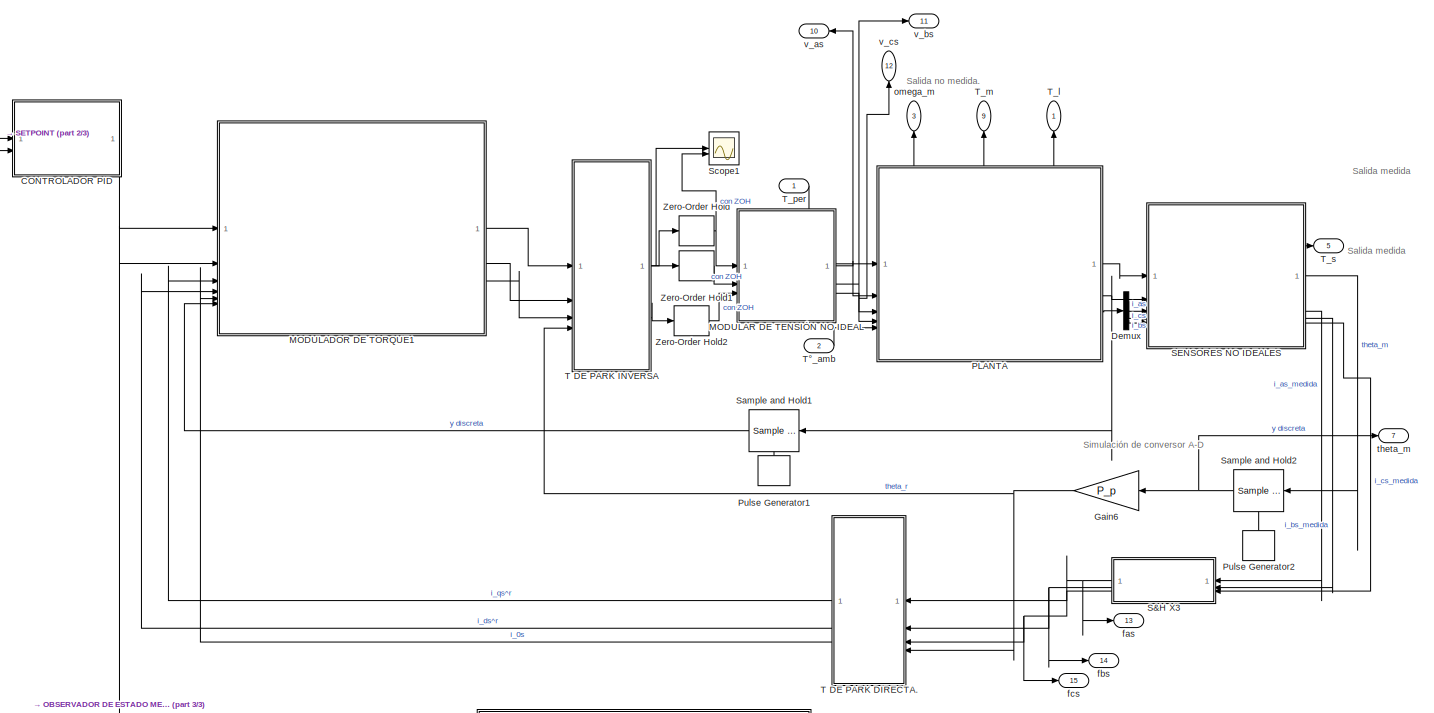
[diagram: Subsystem7 - part 1/3, most of the canvas]
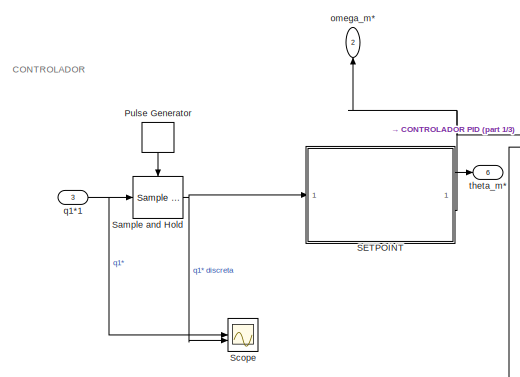
[diagram: Subsystem7 - part 2/3, top left region]
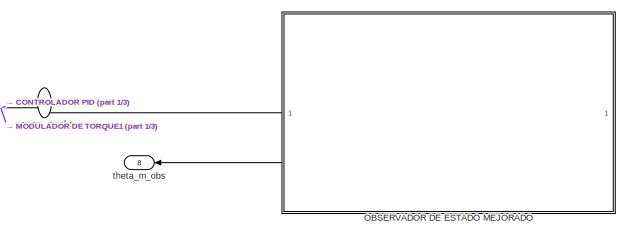
[diagram: Subsystem7 - part 3/3, bottom center region]
BLOCK [SubSystem] Subsystem7
BLOCK [SubSystem] Subsystem7/CONTROLADOR PID
BLOCK [Gain] Subsystem7/CONTROLADOR PID/Gain
  Gain = ba
BLOCK [Gain] Subsystem7/CONTROLADOR PID/Gain1
  Gain = Ksa
BLOCK [Gain] Subsystem7/CONTROLADOR PID/Gain2
  Gain = Ksia
BLOCK [Integrator] Subsystem7/CONTROLADOR PID/Integrator
BLOCK [Integrator] Subsystem7/CONTROLADOR PID/Integrator1
BLOCK [Sum] Subsystem7/CONTROLADOR PID/Sum
  Inputs = |+-
BLOCK [Sum] Subsystem7/CONTROLADOR PID/Sum1
  IconShape = rectangular
  Inputs = +++
BLOCK [Outport] Subsystem7/CONTROLADOR PID/Tm*
BLOCK [Inport] Subsystem7/CONTROLADOR PID/omega_m
  Port = 2
BLOCK [Inport] Subsystem7/CONTROLADOR PID/omega_m*
BLOCK [Demux] Subsystem7/Demux
  Outputs = 3
BLOCK [Gain] Subsystem7/Gain6
  Gain = P_p
  NameLocation = top
BLOCK [SubSystem] Subsystem7/MODULADOR DE TORQUE1
BLOCK [SubSystem] Subsystem7/MODULADOR DE TORQUE1/Calculo rs
BLOCK [Constant] Subsystem7/MODULADOR DE TORQUE1/Calculo rs/Constant
BLOCK [Constant] Subsystem7/MODULADOR DE TORQUE1/Calculo rs/Constant1
  Value = Temp_s_ref
BLOCK [Gain] Subsystem7/MODULADOR DE TORQUE1/Calculo rs/Gain
  Gain = alpha_cu
  NameLocation = right
BLOCK [Gain] Subsystem7/MODULADOR DE TORQUE1/Calculo rs/Gain1
  Gain = R_s_40
BLOCK [Sum] Subsystem7/MODULADOR DE TORQUE1/Calculo rs/Sum
  Inputs = |++
BLOCK [Sum] Subsystem7/MODULADOR DE TORQUE1/Calculo rs/Sum1
  Inputs = |-+
BLOCK [Inport] Subsystem7/MODULADOR DE TORQUE1/Calculo rs/Ts
BLOCK [Outport] Subsystem7/MODULADOR DE TORQUE1/Calculo rs/r_s
BLOCK [Constant] Subsystem7/MODULADOR DE TORQUE1/Constant5
  Value = 0
BLOCK [SubSystem] Subsystem7/MODULADOR DE TORQUE1/Desacoples Fisicos
BLOCK [Constant] Subsystem7/MODULADOR DE TORQUE1/Desacoples Fisicos/Constant
  Value = lambda_m
BLOCK [Gain] Subsystem7/MODULADOR DE TORQUE1/Desacoples Fisicos/Gain
  Gain = P_p
  NameLocation = right
BLOCK [Gain] Subsystem7/MODULADOR DE TORQUE1/Desacoples Fisicos/Gain1
  Gain = L_d
BLOCK [Gain] Subsystem7/MODULADOR DE TORQUE1/Desacoples Fisicos/Gain2
  Gain = L_q*P_p
BLOCK [Product] Subsystem7/MODULADOR DE TORQUE1/Desacoples Fisicos/Product
  NameLocation = right
BLOCK [Product] Subsystem7/MODULADOR DE TORQUE1/Desacoples Fisicos/Product1
  NameLocation = right
BLOCK [Product] Subsystem7/MODULADOR DE TORQUE1/Desacoples Fisicos/Product2
BLOCK [Product] Subsystem7/MODULADOR DE TORQUE1/Desacoples Fisicos/Product3
BLOCK [Product] Subsystem7/MODULADOR DE TORQUE1/Desacoples Fisicos/Product4
BLOCK [Inport] Subsystem7/MODULADOR DE TORQUE1/Desacoples Fisicos/R_s
  Port = 8
BLOCK [Sum] Subsystem7/MODULADOR DE TORQUE1/Desacoples Fisicos/Sum
  Inputs = |++
BLOCK [Sum] Subsystem7/MODULADOR DE TORQUE1/Desacoples Fisicos/Sum1
  Inputs = |++
BLOCK [Sum] Subsystem7/MODULADOR DE TORQUE1/Desacoples Fisicos/Sum2
  Inputs = ++|
  NameLocation = right
BLOCK [Sum] Subsystem7/MODULADOR DE TORQUE1/Desacoples Fisicos/Sum3
  Inputs = +-|
  NameLocation = right
BLOCK [Sum] Subsystem7/MODULADOR DE TORQUE1/Desacoples Fisicos/Sum4
  Inputs = |++
BLOCK [Sum] Subsystem7/MODULADOR DE TORQUE1/Desacoples Fisicos/Sum5
  Inputs = ++|
  NameLocation = left
BLOCK [Inport] Subsystem7/MODULADOR DE TORQUE1/Desacoples Fisicos/i_0s
  Port = 6
BLOCK [Inport] Subsystem7/MODULADOR DE TORQUE1/Desacoples Fisicos/i_ds
  Port = 5
BLOCK [Inport] Subsystem7/MODULADOR DE TORQUE1/Desacoples Fisicos/i_qs
  Port = 4
BLOCK [Inport] Subsystem7/MODULADOR DE TORQUE1/Desacoples Fisicos/omega_m
  Port = 7
BLOCK [Inport] Subsystem7/MODULADOR DE TORQUE1/Desacoples Fisicos/v_0s*
  Port = 3
BLOCK [Outport] Subsystem7/MODULADOR DE TORQUE1/Desacoples Fisicos/v_0s*'
  Port = 3
BLOCK [Inport] Subsystem7/MODULADOR DE TORQUE1/Desacoples Fisicos/v_ds*
  Port = 2
BLOCK [Outport] Subsystem7/MODULADOR DE TORQUE1/Desacoples Fisicos/v_ds*'
  Port = 2
BLOCK [Inport] Subsystem7/MODULADOR DE TORQUE1/Desacoples Fisicos/v_qs*
BLOCK [Outport] Subsystem7/MODULADOR DE TORQUE1/Desacoples Fisicos/v_qs*'
BLOCK [SubSystem] Subsystem7/MODULADOR DE TORQUE1/Lazo de Torque
BLOCK [Constant] Subsystem7/MODULADOR DE TORQUE1/Lazo de Torque/Constant
  Value = lambda_m
BLOCK [Constant] Subsystem7/MODULADOR DE TORQUE1/Lazo de Torque/Constant1
  Value = g
BLOCK [Product] Subsystem7/MODULADOR DE TORQUE1/Lazo de Torque/Divide
  Inputs = */
BLOCK [Integrator] Subsystem7/MODULADOR DE TORQUE1/Lazo de Torque/Integrator
  InitialCondition = pi/4
BLOCK [Constant] Subsystem7/MODULADOR DE TORQUE1/Lazo de Torque/Ld-Lq
  Value = L_d-L_q
BLOCK [Gain] Subsystem7/MODULADOR DE TORQUE1/Lazo de Torque/Multiply
  Gain = b_eq
BLOCK [Gain] Subsystem7/MODULADOR DE TORQUE1/Lazo de Torque/Multiply1
  Gain = 1/r
BLOCK [Gain] Subsystem7/MODULADOR DE TORQUE1/Lazo de Torque/Multiply2
  Gain = k_l
BLOCK [Gain] Subsystem7/MODULADOR DE TORQUE1/Lazo de Torque/Multiply3
  Gain = 1/r
BLOCK [Gain] Subsystem7/MODULADOR DE TORQUE1/Lazo de Torque/Multiply5
  Gain = P_p
BLOCK [Gain] Subsystem7/MODULADOR DE TORQUE1/Lazo de Torque/Multiply6
  Gain = 3/2
BLOCK [Product] Subsystem7/MODULADOR DE TORQUE1/Lazo de Torque/Product
BLOCK [Product] Subsystem7/MODULADOR DE TORQUE1/Lazo de Torque/Product1
BLOCK [Trigonometry] Subsystem7/MODULADOR DE TORQUE1/Lazo de Torque/Sin
BLOCK [Sum] Subsystem7/MODULADOR DE TORQUE1/Lazo de Torque/Sum1
  Inputs = |++
BLOCK [Sum] Subsystem7/MODULADOR DE TORQUE1/Lazo de Torque/Sum2
  Inputs = |+++
BLOCK [Inport] Subsystem7/MODULADOR DE TORQUE1/Lazo de Torque/Tm*
BLOCK [Inport] Subsystem7/MODULADOR DE TORQUE1/Lazo de Torque/ids
  Port = 3
BLOCK [Outport] Subsystem7/MODULADOR DE TORQUE1/Lazo de Torque/iqs*
BLOCK [Inport] Subsystem7/MODULADOR DE TORQUE1/Lazo de Torque/omega_m
  Port = 2
BLOCK [SubSystem] Subsystem7/MODULADOR DE TORQUE1/Modulador de corriente
BLOCK [Gain] Subsystem7/MODULADOR DE TORQUE1/Modulador de corriente/Gain
  Gain = 5000*L_q
BLOCK [Gain] Subsystem7/MODULADOR DE TORQUE1/Modulador de corriente/Gain1
  Gain = 5000*L_d
BLOCK [Gain] Subsystem7/MODULADOR DE TORQUE1/Modulador de corriente/Gain2
  Gain = 5000*L_ls
BLOCK [Inport] Subsystem7/MODULADOR DE TORQUE1/Modulador de corriente/I_0s*
  Port = 3
BLOCK [Inport] Subsystem7/MODULADOR DE TORQUE1/Modulador de corriente/I_ds*
  Port = 2
BLOCK [Inport] Subsystem7/MODULADOR DE TORQUE1/Modulador de corriente/I_qs*
BLOCK [Sum] Subsystem7/MODULADOR DE TORQUE1/Modulador de corriente/Sum
  IconShape = rectangular
  Inputs = +-
BLOCK [Sum] Subsystem7/MODULADOR DE TORQUE1/Modulador de corriente/Sum1
  IconShape = rectangular
  Inputs = +-
BLOCK [Sum] Subsystem7/MODULADOR DE TORQUE1/Modulador de corriente/Sum2
  IconShape = rectangular
  Inputs = +-
BLOCK [Inport] Subsystem7/MODULADOR DE TORQUE1/Modulador de corriente/i_0s
  Port = 6
BLOCK [Inport] Subsystem7/MODULADOR DE TORQUE1/Modulador de corriente/i_ds
  Port = 5
BLOCK [Inport] Subsystem7/MODULADOR DE TORQUE1/Modulador de corriente/i_qs
  Port = 4
BLOCK [Outport] Subsystem7/MODULADOR DE TORQUE1/Modulador de corriente/v_0s*
  Port = 3
BLOCK [Outport] Subsystem7/MODULADOR DE TORQUE1/Modulador de corriente/v_ds*
  Port = 2
BLOCK [Outport] Subsystem7/MODULADOR DE TORQUE1/Modulador de corriente/v_qs*
BLOCK [Inport] Subsystem7/MODULADOR DE TORQUE1/Tm*
BLOCK [Inport] Subsystem7/MODULADOR DE TORQUE1/Ts
  Port = 6
BLOCK [Inport] Subsystem7/MODULADOR DE TORQUE1/i_0s
  NameLocation = top
  Port = 5
BLOCK [Inport] Subsystem7/MODULADOR DE TORQUE1/i_ds^r
  NameLocation = top
  Port = 4
BLOCK [Inport] Subsystem7/MODULADOR DE TORQUE1/i_qs^r
  NameLocation = top
  Port = 3
BLOCK [Inport] Subsystem7/MODULADOR DE TORQUE1/omega_m
  Port = 2
BLOCK [Outport] Subsystem7/MODULADOR DE TORQUE1/v_0s*'
  Port = 3
BLOCK [Outport] Subsystem7/MODULADOR DE TORQUE1/v_ds*'
  Port = 2
BLOCK [Outport] Subsystem7/MODULADOR DE TORQUE1/v_qs*'
BLOCK [SubSystem] Subsystem7/MODULAR DE TENSIÓN NO IDEAL
BLOCK [Saturate] Subsystem7/MODULAR DE TENSIÓN NO IDEAL/Saturation
  LowerLimit = -39.192
  UpperLimit = 39.192
BLOCK [Saturate] Subsystem7/MODULAR DE TENSIÓN NO IDEAL/Saturation3
  LowerLimit = -39.192
  UpperLimit = 39.192
BLOCK [Saturate] Subsystem7/MODULAR DE TENSIÓN NO IDEAL/Saturation4
  LowerLimit = -39.192
  UpperLimit = 39.192
BLOCK [StateSpace] Subsystem7/MODULAR DE TENSIÓN NO IDEAL/State-Space
  A = A_inversor
  B = B_inversor
  C = C_inversor
  InitialCondition = x0_inversor
BLOCK [StateSpace] Subsystem7/MODULAR DE TENSIÓN NO IDEAL/State-Space1
  A = A_inversor
  B = B_inversor
  C = C_inversor
  InitialCondition = x0_inversor
BLOCK [StateSpace] Subsystem7/MODULAR DE TENSIÓN NO IDEAL/State-Space2
  A = A_inversor
  B = B_inversor
  C = C_inversor
  InitialCondition = x0_inversor
BLOCK [Outport] Subsystem7/MODULAR DE TENSIÓN NO IDEAL/v_as
BLOCK [Inport] Subsystem7/MODULAR DE TENSIÓN NO IDEAL/v_as*
BLOCK [Outport] Subsystem7/MODULAR DE TENSIÓN NO IDEAL/v_bs
  Port = 2
BLOCK [Inport] Subsystem7/MODULAR DE TENSIÓN NO IDEAL/v_bs*
  Port = 2
BLOCK [Outport] Subsystem7/MODULAR DE TENSIÓN NO IDEAL/v_cs
  Port = 3
BLOCK [Inport] Subsystem7/MODULAR DE TENSIÓN NO IDEAL/v_cs*
  Port = 3
BLOCK [SubSystem] Subsystem7/OBSERVADOR DE ESTADO MEJORADO
BLOCK [Gain] Subsystem7/OBSERVADOR DE ESTADO MEJORADO/Gain
  Gain = 1/(J_m+(J_l/r^2))
BLOCK [Gain] Subsystem7/OBSERVADOR DE ESTADO MEJORADO/Gain1
  Gain = K_e_theta
  NameLocation = top
BLOCK [Gain] Subsystem7/OBSERVADOR DE ESTADO MEJORADO/Gain2
  Gain = K_e_omega
  NameLocation = top
BLOCK [Gain] Subsystem7/OBSERVADOR DE ESTADO MEJORADO/Gain3
  Gain = K_e_int
  NameLocation = top
BLOCK [Integrator] Subsystem7/OBSERVADOR DE ESTADO MEJORADO/Integrator
BLOCK [Integrator] Subsystem7/OBSERVADOR DE ESTADO MEJORADO/Integrator1
BLOCK [Integrator] Subsystem7/OBSERVADOR DE ESTADO MEJORADO/Integrator2
  NameLocation = top
BLOCK [Sum] Subsystem7/OBSERVADOR DE ESTADO MEJORADO/Sum
  Inputs = |++
BLOCK [Sum] Subsystem7/OBSERVADOR DE ESTADO MEJORADO/Sum1
  Inputs = |++
BLOCK [Sum] Subsystem7/OBSERVADOR DE ESTADO MEJORADO/Sum2
  Inputs = |-+
BLOCK [Sum] Subsystem7/OBSERVADOR DE ESTADO MEJORADO/Sum3
  Inputs = |++
BLOCK [Inport] Subsystem7/OBSERVADOR DE ESTADO MEJORADO/T_m*
BLOCK [Outport] Subsystem7/OBSERVADOR DE ESTADO MEJORADO/omega_m_obs
BLOCK [Inport] Subsystem7/OBSERVADOR DE ESTADO MEJORADO/theta_m
  Port = 2
BLOCK [Outport] Subsystem7/OBSERVADOR DE ESTADO MEJORADO/theta_m_obs
  Port = 2
BLOCK [SubSystem] Subsystem7/PLANTA
BLOCK [Gain] Subsystem7/PLANTA/Gain
  Gain = P_p
BLOCK [Gain] Subsystem7/PLANTA/Gain1
  Gain = 1/r
  NameLocation = top
BLOCK [Gain] Subsystem7/PLANTA/Gain2
  Gain = k_l
  NameLocation = top
BLOCK [Gain] Subsystem7/PLANTA/Gain3
  Gain = g
  NameLocation = top
BLOCK [Mux] Subsystem7/PLANTA/Mux
  DisplayOption = bar
  Inputs = 3
BLOCK [Scope] Subsystem7/PLANTA/Scope
  Floating = off
  NumInputPorts = 1
BLOCK [Trigonometry] Subsystem7/PLANTA/Sin
  NameLocation = top
BLOCK [SubSystem] Subsystem7/PLANTA/Subsistema electromagnético
BLOCK [Gain] Subsystem7/PLANTA/Subsistema electromagnético/Gain
  Gain = P_p
BLOCK [Gain] Subsystem7/PLANTA/Subsistema electromagnético/Gain1
  Gain = L_d
BLOCK [Gain] Subsystem7/PLANTA/Subsistema electromagnético/Gain2
  Gain = lambda_m
  NameLocation = left
BLOCK [Gain] Subsystem7/PLANTA/Subsistema electromagnético/Gain3
  Gain = 1/L_q
BLOCK [Gain] Subsystem7/PLANTA/Subsistema electromagnético/Gain4
  Gain = L_q
  NameLocation = top
BLOCK [Gain] Subsystem7/PLANTA/Subsistema electromagnético/Gain5
  Gain = 1/L_d
BLOCK [Gain] Subsystem7/PLANTA/Subsistema electromagnético/Gain6
  Gain = 1/L_ls
BLOCK [Gain] Subsystem7/PLANTA/Subsistema electromagnético/Gain7
  Gain = L_d-L_q
BLOCK [Gain] Subsystem7/PLANTA/Subsistema electromagnético/Gain8
  Gain = lambda_m
BLOCK [Gain] Subsystem7/PLANTA/Subsistema electromagnético/Gain9
  Gain = (3/2)*P_p
  NameLocation = left
BLOCK [Integrator] Subsystem7/PLANTA/Subsistema electromagnético/Integrator
BLOCK [Integrator] Subsystem7/PLANTA/Subsistema electromagnético/Integrator1
BLOCK [Integrator] Subsystem7/PLANTA/Subsistema electromagnético/Integrator2
BLOCK [Product] Subsystem7/PLANTA/Subsistema electromagnético/Product
  NameLocation = left
BLOCK [Product] Subsystem7/PLANTA/Subsistema electromagnético/Product1
  NameLocation = left
BLOCK [Product] Subsystem7/PLANTA/Subsistema electromagnético/Product2
  NameLocation = left
BLOCK [Product] Subsystem7/PLANTA/Subsistema electromagnético/Product3
  NameLocation = left
BLOCK [Product] Subsystem7/PLANTA/Subsistema electromagnético/Product4
  NameLocation = left
BLOCK [Product] Subsystem7/PLANTA/Subsistema electromagnético/Product5
BLOCK [Sum] Subsystem7/PLANTA/Subsistema electromagnético/Sum
  Inputs = -+|
BLOCK [Sum] Subsystem7/PLANTA/Subsistema electromagnético/Sum1
  Inputs = -+|
BLOCK [Sum] Subsystem7/PLANTA/Subsistema electromagnético/Sum2
  Inputs = -+|
BLOCK [Sum] Subsystem7/PLANTA/Subsistema electromagnético/Sum3
  Inputs = -+|
BLOCK [Sum] Subsystem7/PLANTA/Subsistema electromagnético/Sum4
  Inputs = ++|
BLOCK [Sum] Subsystem7/PLANTA/Subsistema electromagnético/Sum5
  Inputs = -+|
BLOCK [Sum] Subsystem7/PLANTA/Subsistema electromagnético/Sum6
  Inputs = ++|
BLOCK [Outport] Subsystem7/PLANTA/Subsistema electromagnético/T_m
  NameLocation = left
  Port = 4
BLOCK [Outport] Subsystem7/PLANTA/Subsistema electromagnético/i_0s
  Port = 3
BLOCK [Outport] Subsystem7/PLANTA/Subsistema electromagnético/i_ds^r
  Port = 2
BLOCK [Outport] Subsystem7/PLANTA/Subsistema electromagnético/i_qs^r
BLOCK [Inport] Subsystem7/PLANTA/Subsistema electromagnético/omega_m
  Port = 5
BLOCK [Inport] Subsystem7/PLANTA/Subsistema electromagnético/r_s
  Port = 4
BLOCK [Inport] Subsystem7/PLANTA/Subsistema electromagnético/v_0s
  Port = 3
BLOCK [Inport] Subsystem7/PLANTA/Subsistema electromagnético/v_ds^r
  Port = 2
BLOCK [Inport] Subsystem7/PLANTA/Subsistema electromagnético/v_qs^r
BLOCK [SubSystem] Subsystem7/PLANTA/Subsistema mecánico completo
BLOCK [Gain] Subsystem7/PLANTA/Subsistema mecánico completo/Gain
  Gain = b_m + b_l / (r^2)
  NameLocation = top
BLOCK [Gain] Subsystem7/PLANTA/Subsistema mecánico completo/Gain1
  Gain = 1/r
BLOCK [Gain] Subsystem7/PLANTA/Subsistema mecánico completo/Gain2
  Gain = 1/(J_m + J_l / r^2)
BLOCK [Sum] Subsystem7/PLANTA/Subsistema mecánico completo/Sum
  Inputs = -+-
BLOCK [Inport] Subsystem7/PLANTA/Subsistema mecánico completo/T_l
  Port = 2
BLOCK [Inport] Subsystem7/PLANTA/Subsistema mecánico completo/T_m
BLOCK [Integrator] Subsystem7/PLANTA/Subsistema mecánico completo/omega_m(0) = 0
BLOCK [Outport] Subsystem7/PLANTA/Subsistema mecánico completo/omega_m(t)
  Port = 2
BLOCK [Integrator] Subsystem7/PLANTA/Subsistema mecánico completo/theta_m(0) = 0
BLOCK [Outport] Subsystem7/PLANTA/Subsistema mecánico completo/theta_m(t)
BLOCK [SubSystem] Subsystem7/PLANTA/Subsistema térmico
BLOCK [Constant] Subsystem7/PLANTA/Subsistema térmico/Constant
  NameLocation = right
  Value = Temp_s_ref
BLOCK [Constant] Subsystem7/PLANTA/Subsistema térmico/Constant1
  NameLocation = right
BLOCK [Gain] Subsystem7/PLANTA/Subsistema térmico/Gain
  Gain = 1/C_ts
BLOCK [Gain] Subsystem7/PLANTA/Subsistema térmico/Gain1
  Gain = 3/2
BLOCK [Gain] Subsystem7/PLANTA/Subsistema térmico/Gain2
  Gain = 1/R_ts_amb
  NameLocation = right
BLOCK [Gain] Subsystem7/PLANTA/Subsistema térmico/Gain3
  Gain = alpha_cu
  NameLocation = top
BLOCK [Gain] Subsystem7/PLANTA/Subsistema térmico/Gain4
  Gain = R_s_40
  NameLocation = top
BLOCK [Gain] Subsystem7/PLANTA/Subsistema térmico/Gain5
  Gain = 2
BLOCK [Integrator] Subsystem7/PLANTA/Subsistema térmico/Integrator
  InitialCondition = 20
BLOCK [Product] Subsystem7/PLANTA/Subsistema térmico/Product
BLOCK [Math] Subsystem7/PLANTA/Subsistema térmico/Square
  Operator = square
BLOCK [Math] Subsystem7/PLANTA/Subsistema térmico/Square1
  Operator = square
BLOCK [Math] Subsystem7/PLANTA/Subsistema térmico/Square2
  Operator = square
BLOCK [Sum] Subsystem7/PLANTA/Subsistema térmico/Sum
  IconShape = rectangular
  Inputs = +++
BLOCK [Sum] Subsystem7/PLANTA/Subsistema térmico/Sum1
  Inputs = -|+
  NameLocation = right
BLOCK [Sum] Subsystem7/PLANTA/Subsistema térmico/Sum2
  Inputs = |+-
BLOCK [Sum] Subsystem7/PLANTA/Subsistema térmico/Sum3
  Inputs = |+-
  NameLocation = top
BLOCK [Sum] Subsystem7/PLANTA/Subsistema térmico/Sum4
  Inputs = |++
  NameLocation = top
BLOCK [Outport] Subsystem7/PLANTA/Subsistema térmico/T_s
  Port = 2
BLOCK [Inport] Subsystem7/PLANTA/Subsistema térmico/Tº_amb
  Port = 4
BLOCK [Inport] Subsystem7/PLANTA/Subsistema térmico/i_0s^r
  Port = 3
BLOCK [Inport] Subsystem7/PLANTA/Subsistema térmico/i_ds^r
  Port = 2
BLOCK [Inport] Subsystem7/PLANTA/Subsistema térmico/i_qs^r
BLOCK [Outport] Subsystem7/PLANTA/Subsistema térmico/r_s
  NameLocation = top
BLOCK [Sum] Subsystem7/PLANTA/Sum
  Inputs = ++|
BLOCK [SubSystem] Subsystem7/PLANTA/TD_PARK
  ErrorFcn = Stateflow.Translate.translate
  LibrarySourceBlock = simulink/User-Defined\nFunctions/MATLAB Function
  PermitHierarchicalResolution = ExplicitOnly
  SFBlockType = MATLAB Function
  TreatAsAtomicUnit = on
BLOCK [Demux] Subsystem7/PLANTA/TD_PARK/ Demux 
  Outputs = 1
BLOCK [S-Function] Subsystem7/PLANTA/TD_PARK/ SFunction 
  EnableBusSupport = on
  FunctionName = sf_sfun
  PortCounts = [4 4]
  SFcnIsStateOwnerBlock = off
  SFunctionDeploymentMode = off
  Tag = Stateflow S-Function 29
BLOCK [Terminator] Subsystem7/PLANTA/TD_PARK/ Terminator 
BLOCK [Outport] Subsystem7/PLANTA/TD_PARK/f0s
  Port = 3
BLOCK [Inport] Subsystem7/PLANTA/TD_PARK/fas
BLOCK [Inport] Subsystem7/PLANTA/TD_PARK/fbs
  Port = 2
BLOCK [Inport] Subsystem7/PLANTA/TD_PARK/fcs
  Port = 3
BLOCK [Outport] Subsystem7/PLANTA/TD_PARK/fds
  Port = 2
BLOCK [Outport] Subsystem7/PLANTA/TD_PARK/fqs
BLOCK [Inport] Subsystem7/PLANTA/TD_PARK/theta_r
  Port = 4
BLOCK [SubSystem] Subsystem7/PLANTA/TI_PARK
  ErrorFcn = Stateflow.Translate.translate
  LibrarySourceBlock = simulink/User-Defined\nFunctions/MATLAB Function
  PermitHierarchicalResolution = ExplicitOnly
  SFBlockType = MATLAB Function
  TreatAsAtomicUnit = on
BLOCK [Demux] Subsystem7/PLANTA/TI_PARK/ Demux 
  Outputs = 1
BLOCK [S-Function] Subsystem7/PLANTA/TI_PARK/ SFunction 
  EnableBusSupport = on
  FunctionName = sf_sfun
  PortCounts = [4 4]
  SFcnIsStateOwnerBlock = off
  SFunctionDeploymentMode = off
  Tag = Stateflow S-Function 30
BLOCK [Terminator] Subsystem7/PLANTA/TI_PARK/ Terminator 
BLOCK [Inport] Subsystem7/PLANTA/TI_PARK/f0s
  Port = 3
BLOCK [Outport] Subsystem7/PLANTA/TI_PARK/fas
BLOCK [Outport] Subsystem7/PLANTA/TI_PARK/fbs
  Port = 2
BLOCK [Outport] Subsystem7/PLANTA/TI_PARK/fcs
  Port = 3
BLOCK [Inport] Subsystem7/PLANTA/TI_PARK/fds
  Port = 2
BLOCK [Inport] Subsystem7/PLANTA/TI_PARK/fqs
BLOCK [Inport] Subsystem7/PLANTA/TI_PARK/theta_r
  Port = 4
BLOCK [Outport] Subsystem7/PLANTA/T_l
  Port = 6
BLOCK [Outport] Subsystem7/PLANTA/T_m
  Port = 5
BLOCK [Inport] Subsystem7/PLANTA/T_per
BLOCK [Outport] Subsystem7/PLANTA/T_s
  Port = 2
BLOCK [Inport] Subsystem7/PLANTA/Tº_amb
  Port = 5
BLOCK [Outport] Subsystem7/PLANTA/i_abcs
  Port = 3
BLOCK [Outport] Subsystem7/PLANTA/omega_m
  Port = 4
BLOCK [Outport] Subsystem7/PLANTA/theta_m
BLOCK [Inport] Subsystem7/PLANTA/v_as
  Port = 2
BLOCK [Inport] Subsystem7/PLANTA/v_bs
  Port = 3
BLOCK [Inport] Subsystem7/PLANTA/v_cs
  Port = 4
BLOCK [DiscretePulseGenerator] Subsystem7/Pulse Generator
  NameLocation = left
  Period = T_sample
  PulseType = Time based
  PulseWidth = 50
BLOCK [DiscretePulseGenerator] Subsystem7/Pulse Generator1
  NameLocation = right
  Period = T_sample
  PulseType = Time based
  PulseWidth = 50
BLOCK [DiscretePulseGenerator] Subsystem7/Pulse Generator2
  NameLocation = right
  Period = T_sample
  PulseType = Time based
  PulseWidth = 50
BLOCK [SubSystem] Subsystem7/S&H X3
  NameLocation = top
BLOCK [DiscretePulseGenerator] Subsystem7/S&H X3/Pulse Generator1
  NameLocation = left
  Period = T_sample
  PulseType = Time based
  PulseWidth = 50
BLOCK [DiscretePulseGenerator] Subsystem7/S&H X3/Pulse Generator2
  NameLocation = left
  Period = T_sample
  PulseType = Time based
  PulseWidth = 50
BLOCK [DiscretePulseGenerator] Subsystem7/S&H X3/Pulse Generator3
  NameLocation = left
  Period = T_sample
  PulseType = Time based
  PulseWidth = 50
BLOCK [Reference] Subsystem7/S&H X3/Sample and Hold1  REF=dspsigops/Sample
and Hold
  LibrarySourceBlock = dsphdlsupportsigops/Sample\nand Hold
  SourceBlock = dspsigops/Sample\nand Hold
  SourceType = Sample and Hold
BLOCK [Reference] Subsystem7/S&H X3/Sample and Hold2  REF=dspsigops/Sample
and Hold
  LibrarySourceBlock = dsphdlsupportsigops/Sample\nand Hold
  SourceBlock = dspsigops/Sample\nand Hold
  SourceType = Sample and Hold
BLOCK [Reference] Subsystem7/S&H X3/Sample and Hold3  REF=dspsigops/Sample
and Hold
  LibrarySourceBlock = dsphdlsupportsigops/Sample\nand Hold
  SourceBlock = dspsigops/Sample\nand Hold
  SourceType = Sample and Hold
BLOCK [Inport] Subsystem7/S&H X3/u1
BLOCK [Inport] Subsystem7/S&H X3/u2
  Port = 2
BLOCK [Inport] Subsystem7/S&H X3/u3
  Port = 3
BLOCK [Outport] Subsystem7/S&H X3/y1
BLOCK [Outport] Subsystem7/S&H X3/y2
  Port = 2
BLOCK [Outport] Subsystem7/S&H X3/y3
  Port = 3
BLOCK [SubSystem] Subsystem7/SENSORES NO IDEALES
BLOCK [StateSpace] Subsystem7/SENSORES NO IDEALES/S_corrientes
  A = A_corrientes
  B = B_corrientes
  C = C_corrientes
  D = 0
  InitialCondition = x0_corrientes
BLOCK [StateSpace] Subsystem7/SENSORES NO IDEALES/S_corrientes1
  A = A_corrientes
  B = B_corrientes
  C = C_corrientes
  D = 0
  InitialCondition = x0_corrientes
BLOCK [StateSpace] Subsystem7/SENSORES NO IDEALES/S_corrientes2
  A = A_corrientes
  B = B_corrientes
  C = C_corrientes
  D = 0
  InitialCondition = x0_corrientes
BLOCK [StateSpace] Subsystem7/SENSORES NO IDEALES/S_posicion
  A = A_posicion
  B = B_posicion
  C = C_posicion
  D = 0
  InitialCondition = x0_posicion
BLOCK [StateSpace] Subsystem7/SENSORES NO IDEALES/S_temp
  A = A_temp
  B = B_temp
  C = C_temp
  D = 0
  InitialCondition = x0_temp
BLOCK [Inport] Subsystem7/SENSORES NO IDEALES/T_s
  Port = 2
BLOCK [Outport] Subsystem7/SENSORES NO IDEALES/T_s_medida
  Port = 2
BLOCK [Inport] Subsystem7/SENSORES NO IDEALES/i_as
  Port = 3
BLOCK [Outport] Subsystem7/SENSORES NO IDEALES/i_as_medida
  Port = 3
BLOCK [Inport] Subsystem7/SENSORES NO IDEALES/i_bs
  Port = 4
BLOCK [Outport] Subsystem7/SENSORES NO IDEALES/i_bs_medida
  Port = 4
BLOCK [Inport] Subsystem7/SENSORES NO IDEALES/i_cs
  Port = 5
BLOCK [Outport] Subsystem7/SENSORES NO IDEALES/i_cs_medida
  Port = 5
BLOCK [Inport] Subsystem7/SENSORES NO IDEALES/theta_m
BLOCK [Outport] Subsystem7/SENSORES NO IDEALES/theta_m_medida
BLOCK [SubSystem] Subsystem7/SETPOINT
BLOCK [Derivative] Subsystem7/SETPOINT/Derivative
BLOCK [Gain] Subsystem7/SETPOINT/Gain
  Gain = r
BLOCK [Outport] Subsystem7/SETPOINT/omega_m*
  Port = 2
BLOCK [Inport] Subsystem7/SETPOINT/q1*
BLOCK [Outport] Subsystem7/SETPOINT/theta_m*
BLOCK [Reference] Subsystem7/Sample and Hold  REF=dspsigops/Sample
and Hold
  LibrarySourceBlock = dsphdlsupportsigops/Sample\nand Hold
  SourceBlock = dspsigops/Sample\nand Hold
  SourceType = Sample and Hold
BLOCK [Reference] Subsystem7/Sample and Hold1  REF=dspsigops/Sample
and Hold
  LibrarySourceBlock = dsphdlsupportsigops/Sample\nand Hold
  NameLocation = top
  SourceBlock = dspsigops/Sample\nand Hold
  SourceType = Sample and Hold
BLOCK [Reference] Subsystem7/Sample and Hold2  REF=dspsigops/Sample
and Hold
  LibrarySourceBlock = dsphdlsupportsigops/Sample\nand Hold
  NameLocation = top
  SourceBlock = dspsigops/Sample\nand Hold
  SourceType = Sample and Hold
BLOCK [Scope] Subsystem7/Scope
  Floating = off
  NumInputPorts = 2
  ScopeSpecificationString = Simulink.scopes.TimeScopeBlockCfg('CurrentConfiguration', extmgr.ConfigurationSet(extmgr.Configuration('Core','General UI',true),extmgr.Configuration('Core','Source UI',true),extmgr.Configuration('Sources','WiredSimulink',true,'DataLoggingVariableName','ScopeData25'),extmgr.Configuration('Visuals','Time Domain',true,'SerializedDisplays',{struct('MinYLimReal','0.363003','MaxYLimReal','0.363097','YL...<+1568ch>
BLOCK [Scope] Subsystem7/Scope1
  Floating = off
  NumInputPorts = 2
  ScopeSpecificationString = Simulink.scopes.TimeScopeBlockCfg('CurrentConfiguration', extmgr.ConfigurationSet(extmgr.Configuration('Core','General UI',true),extmgr.Configuration('Core','Source UI',true),extmgr.Configuration('Sources','WiredSimulink',true,'DataLoggingVariableName','ScopeData26'),extmgr.Configuration('Visuals','Time Domain',true,'SerializedDisplays',{struct('MinYLimReal','-341565945.89026','MaxYLimReal','21448...<+1639ch>
BLOCK [SubSystem] Subsystem7/T DE PARK DIRECTA.
  ErrorFcn = Stateflow.Translate.translate
  LibrarySourceBlock = simulink/User-Defined\nFunctions/MATLAB Function
  NameLocation = top
  PermitHierarchicalResolution = ExplicitOnly
  SFBlockType = MATLAB Function
  TreatAsAtomicUnit = on
BLOCK [Demux] Subsystem7/T DE PARK DIRECTA./ Demux 
  Outputs = 1
BLOCK [S-Function] Subsystem7/T DE PARK DIRECTA./ SFunction 
  EnableBusSupport = on
  FunctionName = sf_sfun
  PortCounts = [4 4]
  SFcnIsStateOwnerBlock = off
  SFunctionDeploymentMode = off
  Tag = Stateflow S-Function 31
BLOCK [Terminator] Subsystem7/T DE PARK DIRECTA./ Terminator 
BLOCK [Outport] Subsystem7/T DE PARK DIRECTA./f0s
  Port = 3
BLOCK [Inport] Subsystem7/T DE PARK DIRECTA./fas
BLOCK [Inport] Subsystem7/T DE PARK DIRECTA./fbs
  Port = 2
BLOCK [Inport] Subsystem7/T DE PARK DIRECTA./fcs
  Port = 3
BLOCK [Outport] Subsystem7/T DE PARK DIRECTA./fds
  Port = 2
BLOCK [Outport] Subsystem7/T DE PARK DIRECTA./fqs
BLOCK [Inport] Subsystem7/T DE PARK DIRECTA./theta_r
  Port = 4
BLOCK [SubSystem] Subsystem7/T DE PARK INVERSA
  ErrorFcn = Stateflow.Translate.translate
  LibrarySourceBlock = simulink/User-Defined\nFunctions/MATLAB Function
  PermitHierarchicalResolution = ExplicitOnly
  SFBlockType = MATLAB Function
  TreatAsAtomicUnit = on
BLOCK [Demux] Subsystem7/T DE PARK INVERSA/ Demux 
  Outputs = 1
BLOCK [S-Function] Subsystem7/T DE PARK INVERSA/ SFunction 
  EnableBusSupport = on
  FunctionName = sf_sfun
  PortCounts = [4 4]
  SFcnIsStateOwnerBlock = off
  SFunctionDeploymentMode = off
  Tag = Stateflow S-Function 32
BLOCK [Terminator] Subsystem7/T DE PARK INVERSA/ Terminator 
BLOCK [Inport] Subsystem7/T DE PARK INVERSA/f0s
  Port = 3
BLOCK [Outport] Subsystem7/T DE PARK INVERSA/fas
BLOCK [Outport] Subsystem7/T DE PARK INVERSA/fbs
  Port = 2
BLOCK [Outport] Subsystem7/T DE PARK INVERSA/fcs
  Port = 3
BLOCK [Inport] Subsystem7/T DE PARK INVERSA/fds
  Port = 2
BLOCK [Inport] Subsystem7/T DE PARK INVERSA/fqs
BLOCK [Inport] Subsystem7/T DE PARK INVERSA/theta_r
  Port = 4
BLOCK [Outport] Subsystem7/T_l
  NameLocation = right
BLOCK [Outport] Subsystem7/T_m
  NameLocation = right
  Port = 9
BLOCK [Inport] Subsystem7/T_per
BLOCK [Outport] Subsystem7/T_s
  Port = 5
BLOCK [Inport] Subsystem7/T°_amb
  Port = 2
BLOCK [ZeroOrderHold] Subsystem7/Zero-Order Hold
  SampleTime = T_sample
BLOCK [ZeroOrderHold] Subsystem7/Zero-Order Hold1
  SampleTime = T_sample
BLOCK [ZeroOrderHold] Subsystem7/Zero-Order Hold2
  SampleTime = T_sample
BLOCK [Outport] Subsystem7/fas
  Port = 13
BLOCK [Outport] Subsystem7/fbs
  Port = 14
BLOCK [Outport] Subsystem7/fcs
  Port = 15
BLOCK [Outport] Subsystem7/omega_m
  NameLocation = right
  Port = 3
BLOCK [Outport] Subsystem7/omega_m*
  NameLocation = right
  Port = 2
BLOCK [Outport] Subsystem7/omega_m_obs
  NameLocation = left
  Port = 4
BLOCK [Inport] Subsystem7/q1*1
  Port = 3
BLOCK [Outport] Subsystem7/theta_m
  Port = 7
BLOCK [Outport] Subsystem7/theta_m*
  Port = 6
BLOCK [Outport] Subsystem7/theta_m_obs
  NameLocation = top
  Port = 8
BLOCK [Outport] Subsystem7/v_as
  NameLocation = top
  Port = 10
BLOCK [Outport] Subsystem7/v_bs
  Port = 11
BLOCK [Outport] Subsystem7/v_cs
  NameLocation = right
  Port = 12
BLOCK [Sum] Sum
  Commented = on
  Inputs = ++++
BLOCK [Sum] Sum1
  Commented = on
  IconShape = rectangular
  Inputs = ++++
BLOCK [Sum] Sum2
  Commented = on
  IconShape = rectangular
  Inputs = ++++
BLOCK [Sum] Sum3
  Commented = on
  IconShape = rectangular
BLOCK [TransferFcn] Transfer Fcn1
  Denominator = [1 10]
  Numerator = [10]
BLOCK [TransferFcn] Transfer Fcn3
  Commented = on
  Denominator = [1 100]
  Numerator = [100]
BLOCK [TransferFcn] Transfer Fcn4
  Commented = on
  Denominator = [1 10]
  Numerator = [10]
BLOCK [TransferFcn] Transfer Fcn8
  Commented = on
  Denominator = [1 20]
  Numerator = [20]
BLOCK [Scope] corrientes1
  Commented = on
  Floating = off
  NumInputPorts = 3
  ScopeSpecificationString = Simulink.scopes.TimeScopeBlockCfg('CurrentConfiguration', extmgr.ConfigurationSet(extmgr.Configuration('Core','General UI',true,'FigureColor',[1 1 1]),extmgr.Configuration('Core','Source UI',true),extmgr.Configuration('Sources','WiredSimulink',true,'DataLoggingVariableName','ScopeData7'),extmgr.Configuration('Visuals','Time Domain',true,'SerializedDisplays',{struct('MinYLimReal','-21.00573','MaxYL...<+3459ch>
BLOCK [Scope] corrientes2
  Commented = on
  Floating = off
  NumInputPorts = 3
  ScopeSpecificationString = Simulink.scopes.TimeScopeBlockCfg('CurrentConfiguration', extmgr.ConfigurationSet(extmgr.Configuration('Core','General UI',true,'FigureColor',[1 1 1]),extmgr.Configuration('Core','Source UI',true),extmgr.Configuration('Sources','WiredSimulink',true,'DataLoggingVariableName','ScopeData15'),extmgr.Configuration('Visuals','Time Domain',true,'SerializedDisplays',{struct('MinYLimReal','-0.11879','MaxYL...<+3409ch>
BLOCK [Scope] corrientes3
  Commented = on
  Floating = off
  NumInputPorts = 3
  ScopeSpecificationString = Simulink.scopes.TimeScopeBlockCfg('CurrentConfiguration', extmgr.ConfigurationSet(extmgr.Configuration('Core','General UI',true,'FigureColor',[1 1 1]),extmgr.Configuration('Core','Source UI',true),extmgr.Configuration('Sources','WiredSimulink',true,'DataLoggingVariableName','ScopeData19'),extmgr.Configuration('Visuals','Time Domain',true,'SerializedDisplays',{struct('MinYLimReal','-0.11879','MaxYL...<+3409ch>
BLOCK [Scope] corrientes4
  Commented = on
  Floating = off
  NumInputPorts = 3
  ScopeSpecificationString = Simulink.scopes.TimeScopeBlockCfg('CurrentConfiguration', extmgr.ConfigurationSet(extmgr.Configuration('Core','General UI',true,'FigureColor',[1 1 1]),extmgr.Configuration('Core','Source UI',true),extmgr.Configuration('Sources','WiredSimulink',true,'DataLoggingVariableName','ScopeData20'),extmgr.Configuration('Visuals','Time Domain',true,'SerializedDisplays',{struct('MinYLimReal','-48.80939','MaxY...<+3404ch>
BLOCK [Scope] corrientes5
  Floating = off
  NumInputPorts = 3
  ScopeSpecificationString = Simulink.scopes.TimeScopeBlockCfg('CurrentConfiguration', extmgr.ConfigurationSet(extmgr.Configuration('Core','General UI',true,'FigureColor',[1 1 1]),extmgr.Configuration('Core','Source UI',true),extmgr.Configuration('Sources','WiredSimulink',true,'DataLoggingVariableName','ScopeData23'),extmgr.Configuration('Visuals','Time Domain',true,'SerializedDisplays',{struct('MinYLimReal','-0.11879','MaxYL...<+3409ch>
BLOCK [Scope] corrientes6
  Commented = on
  Floating = off
  NumInputPorts = 3
  ScopeSpecificationString = Simulink.scopes.TimeScopeBlockCfg('CurrentConfiguration', extmgr.ConfigurationSet(extmgr.Configuration('Core','General UI',true,'FigureColor',[1 1 1]),extmgr.Configuration('Core','Source UI',true),extmgr.Configuration('Sources','WiredSimulink',true,'DataLoggingVariableName','ScopeData3'),extmgr.Configuration('Visuals','Time Domain',true,'SerializedDisplays',{struct('MinYLimReal','-0.42619','MaxYLi...<+3456ch>
BLOCK [Scope] corrientes7
  Floating = off
  NumInputPorts = 3
  ScopeSpecificationString = Simulink.scopes.TimeScopeBlockCfg('CurrentConfiguration', extmgr.ConfigurationSet(extmgr.Configuration('Core','General UI',true,'FigureColor',[1 1 1]),extmgr.Configuration('Core','Source UI',true),extmgr.Configuration('Sources','WiredSimulink',true,'DataLoggingVariableName','ScopeData24'),extmgr.Configuration('Visuals','Time Domain',true,'SerializedDisplays',{struct('MinYLimReal','-48.80939','MaxY...<+3404ch>
BLOCK [Scope] posicion del brazo5
  Commented = on
  Floating = off
  NumInputPorts = 2
  ScopeSpecificationString = Simulink.scopes.TimeScopeBlockCfg('CurrentConfiguration', extmgr.ConfigurationSet(extmgr.Configuration('Core','General UI',true),extmgr.Configuration('Core','Source UI',true),extmgr.Configuration('Sources','WiredSimulink',true,'DataLoggingVariableName','ScopeData4'),extmgr.Configuration('Visuals','Time Domain',true,'SerializedDisplays',{struct('MinYLimReal','-94.24778','MaxYLimReal','848.23003','Y...<+1584ch>
BLOCK [Scope] temp1
  Commented = on
  Floating = off
  NumInputPorts = 1
  ScopeSpecificationString = Simulink.scopes.TimeScopeBlockCfg('CurrentConfiguration', extmgr.ConfigurationSet(extmgr.Configuration('Core','General UI',true,'FigureColor',[1 1 1]),extmgr.Configuration('Core','Source UI',true),extmgr.Configuration('Sources','WiredSimulink',true,'DataLoggingVariableName','ScopeData2'),extmgr.Configuration('Visuals','Time Domain',true,'SerializedDisplays',{struct('MinYLimReal','-1.00000','MaxYLi...<+1666ch>
BLOCK [Scope] temp5
  Commented = on
  Floating = off
  NumInputPorts = 1
  ScopeSpecificationString = Simulink.scopes.TimeScopeBlockCfg('CurrentConfiguration', extmgr.ConfigurationSet(extmgr.Configuration('Core','General UI',true,'FigureColor',[1 1 1]),extmgr.Configuration('Core','Source UI',true),extmgr.Configuration('Sources','WiredSimulink',true,'DataLoggingVariableName','ScopeData5'),extmgr.Configuration('Visuals','Time Domain',true,'SerializedDisplays',{struct('MinYLimReal','19.91388','MaxYLi...<+1685ch>
BLOCK [Scope] torque5
  Commented = on
  Floating = off
  NumInputPorts = 1
  ScopeSpecificationString = Simulink.scopes.TimeScopeBlockCfg('CurrentConfiguration', extmgr.ConfigurationSet(extmgr.Configuration('Core','General UI',true,'FigureColor',[1 1 1]),extmgr.Configuration('Core','Source UI',true),extmgr.Configuration('Sources','WiredSimulink',true,'DataLoggingVariableName','ScopeData6'),extmgr.Configuration('Visuals','Time Domain',true,'SerializedDisplays',{struct('MinYLimReal','-0.0307','MaxYLim...<+1639ch>
ANNOTATION Subsystem: Sensores
ANNOTATION Subsystem: Salida medida
ANNOTATION Subsystem: Salida no medida.
ANNOTATION Subsystem/Subsistema físico no lineal: Retroalimentación natural del torque gravitacional
ANNOTATION Subsystem1: SENSORES IDEALES
ANNOTATION Subsystem1: Salida medida
ANNOTATION Subsystem1: Salida no medida.
ANNOTATION Subsystem1/Controlador PID: Ksa: Proporcional a la integral al error de velocidad
ANNOTATION Subsystem1/Controlador PID: Ksia: Porporcional a la doble Integral al error de velocidad
ANNOTATION Subsystem1/Controlador PID: ba: Proporcional al error de velocidad
ANNOTATION Subsystem1/Subsistema físico no lineal: Retroalimentación natural del torque gravitacional
ANNOTATION Subsystem2: SENSORES IDEALES
ANNOTATION Subsystem2: Salida medida
ANNOTATION Subsystem2: Salida no medida.
ANNOTATION Subsystem2/Controlador PID: Ksa: Proporcional a la integral al error de velocidad
ANNOTATION Subsystem2/Controlador PID: Ksia: Porporcional a la doble Integral al error de velocidad
ANNOTATION Subsystem2/Controlador PID: ba: Proporcional al error de velocidad
ANNOTATION Subsystem2/Subsistema físico no lineal: Retroalimentación natural del torque gravitacional
ANNOTATION Subsystem3: SENSORES IDEALES
ANNOTATION Subsystem3: Salida medida
ANNOTATION Subsystem3: Salida no medida.
ANNOTATION Subsystem3/Controlador PID: Ksa: Proporcional a la integral al error de velocidad
ANNOTATION Subsystem3/Controlador PID: Ksia: Porporcional a la doble Integral al error de velocidad
ANNOTATION Subsystem3/Controlador PID: ba: Proporcional al error de velocidad
ANNOTATION Subsystem3/Subsistema físico no lineal: Retroalimentación natural del torque gravitacional
ANNOTATION Subsystem4: SENSORES IDEALES
ANNOTATION Subsystem4: Salida medida
ANNOTATION Subsystem4: Salida no medida.
ANNOTATION Subsystem4/Controlador PID: Ksa: Proporcional a la integral al error de velocidad
ANNOTATION Subsystem4/Controlador PID: Ksia: Porporcional a la doble Integral al error de velocidad
ANNOTATION Subsystem4/Controlador PID: ba: Proporcional al error de velocidad
ANNOTATION Subsystem4/Subsistema físico no lineal: Retroalimentación natural del torque gravitacional
ANNOTATION Subsystem5: Salida medida
ANNOTATION Subsystem5: Salida no medida.
ANNOTATION Subsystem5/Controlador PID: Ksa: Proporcional a la integral al error de velocidad
ANNOTATION Subsystem5/Controlador PID: Ksia: Porporcional a la doble Integral al error de velocidad
ANNOTATION Subsystem5/Controlador PID: ba: Proporcional al error de velocidad
ANNOTATION Subsystem5/Subsistema físico no lineal: Retroalimentación natural del torque gravitacional
ANNOTATION Subsystem6: CONTROLADOR
ANNOTATION Subsystem6: Salida medida
ANNOTATION Subsystem6: Salida no medida.
ANNOTATION Subsystem6/CONTROLADOR PID: Ksa: Proporcional a la integral al error de velocidad
ANNOTATION Subsystem6/CONTROLADOR PID: Ksia: Porporcional a la doble Integral al error de velocidad
ANNOTATION Subsystem6/CONTROLADOR PID: ba: Proporcional al error de velocidad
ANNOTATION Subsystem6/PLANTA: Retroalimentación natural del torque gravitacional
ANNOTATION Subsystem7: CONTROLADOR
ANNOTATION Subsystem7: Simulación de conversor A-D
ANNOTATION Subsystem7: Salida medida
ANNOTATION Subsystem7: Salida no medida.
ANNOTATION Subsystem7/CONTROLADOR PID: Ksa: Proporcional a la integral al error de velocidad
ANNOTATION Subsystem7/CONTROLADOR PID: Ksia: Porporcional a la doble Integral al error de velocidad
ANNOTATION Subsystem7/CONTROLADOR PID: ba: Proporcional al error de velocidad
ANNOTATION Subsystem7/PLANTA: Retroalimentación natural del torque gravitacional
LINE .5s:1 -> Subsystem7:1
LINE 0-5:1 -> Sum:1
LINE 10-15:1 -> Sum:3
LINE 5-10:1 -> Sum:2
LINE Clock:1 -> MATLAB Function:1
LINE Constant10:1 -> Subsystem6:1
LINE Constant11:1 -> Subsystem4:3
LINE Constant13:1 -> Subsystem5:2
LINE Constant14:1 -> Subsystem7:2
LINE Constant16:1 -> Subsystem5:3
LINE Constant1:1 -> Subsystem:3
LINE Constant2:1 -> Subsystem1:3
LINE Constant3:1 -> Subsystem1:2
LINE Constant4:1 -> Subsystem2:3
LINE Constant5:1 -> Subsystem2:2
LINE Constant6:1 -> Subsystem3:1
LINE Constant7:1 -> Subsystem3:3
LINE Constant8:1 -> Scope12:1
LINE Constant9:1 -> Subsystem6:2
NET Constant:1 -> Subsystem:1, Subsystem:2
LINE Demux2:1 -> Mux8:1
LINE Demux2:2 -> Mux10:1
LINE Derivative1:1 -> Scope8:1
NET Gain1:1 -> Subsystem2:1, posicion del brazo5:2
LINE Gain:1 -> Scope:1
NET Integrator1:1 -> Gain1:1, Scope8:3
LINE MATLAB Function:1 -> Transfer Fcn8:1
LINE Mux10:1 -> Error de observador2:2
LINE Mux8:1 -> Error de observador2:1
LINE Pulse Generator:1 -> Transfer Fcn3:1
LINE Ramp10:1 -> Sum1:2
LINE Ramp11:1 -> Sum1:3
LINE Ramp12:1 -> Sum2:4
LINE Ramp13:1 -> Sum1:4
LINE Ramp14:1 -> Sum2:1
LINE Ramp15:1 -> Sum2:3
LINE Ramp16:1 -> Sum2:2
LINE Ramp1:1 -> Transfer Fcn4:1
LINE Ramp2:1 -> Transfer Fcn1:1
LINE Ramp9:1 -> Sum1:1
LINE Ramp:1 -> Sum:4
LINE Step4:1 -> Subsystem3:2
LINE Step:1 -> Subsystem5:1
LINE Subsystem/Demux:1 -> Subsystem/Gain2:1
LINE Subsystem/Demux:2 -> Subsystem/Gain3:1
LINE Subsystem/Demux:3 -> Subsystem/Gain4:1
LINE Subsystem/Gain1:1 -> Subsystem/T_s:1
NET Subsystem/Gain2:1 -> Subsystem/TD_PARK:1, Subsystem/fas:1
NET Subsystem/Gain3:1 -> Subsystem/TD_PARK:2, Subsystem/fbs:1
NET Subsystem/Gain4:1 -> Subsystem/TD_PARK:3, Subsystem/fcs:1
NET Subsystem/Gain5:1 -> Subsystem/TD_PARK:4, Subsystem/TI_PARK:4
NET Subsystem/Gain:1 -> Subsystem/Gain5:1, Subsystem/Scope:1, Subsystem/theta_m:1
LINE Subsystem/Inversor: Modulador de tensión/Gain5:1 -> Subsystem/Inversor: Modulador de tensión/v_as:1
LINE Subsystem/Inversor: Modulador de tensión/Gain6:1 -> Subsystem/Inversor: Modulador de tensión/v_bs:1
LINE Subsystem/Inversor: Modulador de tensión/Gain7:1 -> Subsystem/Inversor: Modulador de tensión/v_cs:1
LINE Subsystem/Inversor: Modulador de tensión/v_as*:1 -> Subsystem/Inversor: Modulador de tensión/Gain5:1
LINE Subsystem/Inversor: Modulador de tensión/v_bs*:1 -> Subsystem/Inversor: Modulador de tensión/Gain6:1
LINE Subsystem/Inversor: Modulador de tensión/v_cs*:1 -> Subsystem/Inversor: Modulador de tensión/Gain7:1
LINE Subsystem/Inversor: Modulador de tensión:1 -> Subsystem/Subsistema físico no lineal:2
LINE Subsystem/Inversor: Modulador de tensión:2 -> Subsystem/Subsistema físico no lineal:3
LINE Subsystem/Inversor: Modulador de tensión:3 -> Subsystem/Subsistema físico no lineal:4
LINE Subsystem/Subsistema físico no lineal/Gain1:1 -> Subsystem/Subsistema físico no lineal/Sin:1
LINE Subsystem/Subsistema físico no lineal/Gain2:1 -> Subsystem/Subsistema físico no lineal/Gain3:1
LINE Subsystem/Subsistema físico no lineal/Gain3:1 -> Subsystem/Subsistema físico no lineal/Sum:1
NET Subsystem/Subsistema físico no lineal/Gain:1 -> Subsystem/Subsistema físico no lineal/TD_PARK:4, Subsystem/Subsistema físico no lineal/TI_PARK:4
LINE Subsystem/Subsistema físico no lineal/Mux:1 -> Subsystem/Subsistema físico no lineal/i_abcs:1
LINE Subsystem/Subsistema físico no lineal/Sin:1 -> Subsystem/Subsistema físico no lineal/Gain2:1
LINE Subsystem/Subsistema físico no lineal/Subsistema electromagnético/Gain1:1 -> Subsystem/Subsistema físico no lineal/Subsistema electromagnético/Product1:2
LINE Subsystem/Subsistema físico no lineal/Subsistema electromagnético/Gain2:1 -> Subsystem/Subsistema físico no lineal/Subsistema electromagnético/Sum2:1
LINE Subsystem/Subsistema físico no lineal/Subsistema electromagnético/Gain3:1 -> Subsystem/Subsistema físico no lineal/Subsistema electromagnético/Integrator:1
LINE Subsystem/Subsistema físico no lineal/Subsistema electromagnético/Gain4:1 -> Subsystem/Subsistema físico no lineal/Subsistema electromagnético/Product3:2
LINE Subsystem/Subsistema físico no lineal/Subsistema electromagnético/Gain5:1 -> Subsystem/Subsistema físico no lineal/Subsistema electromagnético/Integrator1:1
LINE Subsystem/Subsistema físico no lineal/Subsistema electromagnético/Gain6:1 -> Subsystem/Subsistema físico no lineal/Subsistema electromagnético/Integrator2:1
LINE Subsystem/Subsistema físico no lineal/Subsistema electromagnético/Gain7:1 -> Subsystem/Subsistema físico no lineal/Subsistema electromagnético/Sum6:2
LINE Subsystem/Subsistema físico no lineal/Subsistema electromagnético/Gain8:1 -> Subsystem/Subsistema físico no lineal/Subsistema electromagnético/Sum6:1
LINE Subsystem/Subsistema físico no lineal/Subsistema electromagnético/Gain9:1 -> Subsystem/Subsistema físico no lineal/Subsistema electromagnético/T_m:1
NET Subsystem/Subsistema físico no lineal/Subsistema electromagnético/Gain:1 -> Subsystem/Subsistema físico no lineal/Subsistema electromagnético/Gain2:1, Subsystem/Subsistema físico no lineal/Subsistema electromagnético/Product1:1, Subsystem/Subsistema físico no lineal/Subsistema electromagnético/Product3:1
NET Subsystem/Subsistema físico no lineal/Subsistema electromagnético/Integrator1:1 -> Subsystem/Subsistema físico no lineal/Subsistema electromagnético/Gain1:1, Subsystem/Subsistema físico no lineal/Subsistema electromagnético/Product2:2, Subsystem/Subsistema físico no lineal/Subsistema electromagnético/Product5:2, Subsystem/Subsistema físico no lineal/Subsistema electromagnético/i_ds^r:1
NET Subsystem/Subsistema físico no lineal/Subsistema electromagnético/Integrator2:1 -> Subsystem/Subsistema físico no lineal/Subsistema electromagnético/Product4:2, Subsystem/Subsistema físico no lineal/Subsistema electromagnético/i_0s:1
NET Subsystem/Subsistema físico no lineal/Subsistema electromagnético/Integrator:1 -> Subsystem/Subsistema físico no lineal/Subsistema electromagnético/Gain4:1, Subsystem/Subsistema físico no lineal/Subsistema electromagnético/Gain8:1, Subsystem/Subsistema físico no lineal/Subsistema electromagnético/Product5:1, Subsystem/Subsistema físico no lineal/Subsistema electromagnético/Product:2, Subsystem/Subsistema físico no lineal/Subsistema electromagnético/i_qs^r:1
LINE Subsystem/Subsistema físico no lineal/Subsistema electromagnético/Product1:1 -> Subsystem/Subsistema físico no lineal/Subsistema electromagnético/Sum1:1
LINE Subsystem/Subsistema físico no lineal/Subsistema electromagnético/Product2:1 -> Subsystem/Subsistema físico no lineal/Subsistema electromagnético/Sum3:1
LINE Subsystem/Subsistema físico no lineal/Subsistema electromagnético/Product3:1 -> Subsystem/Subsistema físico no lineal/Subsistema electromagnético/Sum4:1
LINE Subsystem/Subsistema físico no lineal/Subsistema electromagnético/Product4:1 -> Subsystem/Subsistema físico no lineal/Subsistema electromagnético/Sum5:1
LINE Subsystem/Subsistema físico no lineal/Subsistema electromagnético/Product5:1 -> Subsystem/Subsistema físico no lineal/Subsistema electromagnético/Gain7:1
LINE Subsystem/Subsistema físico no lineal/Subsistema electromagnético/Product:1 -> Subsystem/Subsistema físico no lineal/Subsistema electromagnético/Sum:1
LINE Subsystem/Subsistema físico no lineal/Subsistema electromagnético/Sum1:1 -> Subsystem/Subsistema físico no lineal/Subsistema electromagnético/Sum2:2
LINE Subsystem/Subsistema físico no lineal/Subsistema electromagnético/Sum2:1 -> Subsystem/Subsistema físico no lineal/Subsistema electromagnético/Gain3:1
LINE Subsystem/Subsistema físico no lineal/Subsistema electromagnético/Sum3:1 -> Subsystem/Subsistema físico no lineal/Subsistema electromagnético/Sum4:2
LINE Subsystem/Subsistema físico no lineal/Subsistema electromagnético/Sum4:1 -> Subsystem/Subsistema físico no lineal/Subsistema electromagnético/Gain5:1
LINE Subsystem/Subsistema físico no lineal/Subsistema electromagnético/Sum5:1 -> Subsystem/Subsistema físico no lineal/Subsistema electromagnético/Gain6:1
LINE Subsystem/Subsistema físico no lineal/Subsistema electromagnético/Sum6:1 -> Subsystem/Subsistema físico no lineal/Subsistema electromagnético/Gain9:1
LINE Subsystem/Subsistema físico no lineal/Subsistema electromagnético/Sum:1 -> Subsystem/Subsistema físico no lineal/Subsistema electromagnético/Sum1:2
LINE Subsystem/Subsistema físico no lineal/Subsistema electromagnético/omega_m:1 -> Subsystem/Subsistema físico no lineal/Subsistema electromagnético/Gain:1
NET Subsystem/Subsistema físico no lineal/Subsistema electromagnético/r_s:1 -> Subsystem/Subsistema físico no lineal/Subsistema electromagnético/Product2:1, Subsystem/Subsistema físico no lineal/Subsistema electromagnético/Product4:1, Subsystem/Subsistema físico no lineal/Subsistema electromagnético/Product:1
LINE Subsystem/Subsistema físico no lineal/Subsistema electromagnético/v_0s:1 -> Subsystem/Subsistema físico no lineal/Subsistema electromagnético/Sum5:2
LINE Subsystem/Subsistema físico no lineal/Subsistema electromagnético/v_ds^r:1 -> Subsystem/Subsistema físico no lineal/Subsistema electromagnético/Sum3:2
LINE Subsystem/Subsistema físico no lineal/Subsistema electromagnético/v_qs^r:1 -> Subsystem/Subsistema físico no lineal/Subsistema electromagnético/Sum:2
NET Subsystem/Subsistema físico no lineal/Subsistema electromagnético:1 -> Subsystem/Subsistema físico no lineal/Subsistema térmico:1, Subsystem/Subsistema físico no lineal/TI_PARK:1
NET Subsystem/Subsistema físico no lineal/Subsistema electromagnético:2 -> Subsystem/Subsistema físico no lineal/Subsistema térmico:2, Subsystem/Subsistema físico no lineal/TI_PARK:2
NET Subsystem/Subsistema físico no lineal/Subsistema electromagnético:3 -> Subsystem/Subsistema físico no lineal/Subsistema térmico:3, Subsystem/Subsistema físico no lineal/TI_PARK:3
NET Subsystem/Subsistema físico no lineal/Subsistema electromagnético:4 -> Subsystem/Subsistema físico no lineal/Subsistema mecánico completo:1, Subsystem/Subsistema físico no lineal/T_m:1
LINE Subsystem/Subsistema físico no lineal/Subsistema mecánico completo/Gain1:1 -> Subsystem/Subsistema físico no lineal/Subsistema mecánico completo/Sum:1
LINE Subsystem/Subsistema físico no lineal/Subsistema mecánico completo/Gain2:1 -> Subsystem/Subsistema físico no lineal/Subsistema mecánico completo/omega_m(0) = 0:1
LINE Subsystem/Subsistema físico no lineal/Subsistema mecánico completo/Gain:1 -> Subsystem/Subsistema físico no lineal/Subsistema mecánico completo/Sum:3
LINE Subsystem/Subsistema físico no lineal/Subsistema mecánico completo/Sum:1 -> Subsystem/Subsistema físico no lineal/Subsistema mecánico completo/Gain2:1
LINE Subsystem/Subsistema físico no lineal/Subsistema mecánico completo/T_l:1 -> Subsystem/Subsistema físico no lineal/Subsistema mecánico completo/Gain1:1
LINE Subsystem/Subsistema físico no lineal/Subsistema mecánico completo/T_m:1 -> Subsystem/Subsistema físico no lineal/Subsistema mecánico completo/Sum:2
NET Subsystem/Subsistema físico no lineal/Subsistema mecánico completo/omega_m(0) = 0:1 -> Subsystem/Subsistema físico no lineal/Subsistema mecánico completo/Gain:1, Subsystem/Subsistema físico no lineal/Subsistema mecánico completo/omega_m(t):1, Subsystem/Subsistema físico no lineal/Subsistema mecánico completo/theta_m(0) = pi//4:1
NET Subsystem/Subsistema físico no lineal/Subsistema mecánico completo/theta_m(0) = pi//4:1 -> Subsystem/Subsistema físico no lineal/Subsistema mecánico completo/Scope:1, Subsystem/Subsistema físico no lineal/Subsistema mecánico completo/theta_m(t):1
NET Subsystem/Subsistema físico no lineal/Subsistema mecánico completo:1 -> Subsystem/Subsistema físico no lineal/Gain1:1, Subsystem/Subsistema físico no lineal/Gain:1, Subsystem/Subsistema físico no lineal/theta_m:1
NET Subsystem/Subsistema físico no lineal/Subsistema mecánico completo:2 -> Subsystem/Subsistema físico no lineal/Scope:1, Subsystem/Subsistema físico no lineal/Subsistema electromagnético:5, Subsystem/Subsistema físico no lineal/omega_m:1
LINE Subsystem/Subsistema físico no lineal/Subsistema térmico/Constant1:1 -> Subsystem/Subsistema físico no lineal/Subsistema térmico/Sum4:2
LINE Subsystem/Subsistema físico no lineal/Subsistema térmico/Constant:1 -> Subsystem/Subsistema físico no lineal/Subsistema térmico/Sum3:2
LINE Subsystem/Subsistema físico no lineal/Subsistema térmico/Gain1:1 -> Subsystem/Subsistema físico no lineal/Subsistema térmico/Sum2:1
LINE Subsystem/Subsistema físico no lineal/Subsistema térmico/Gain2:1 -> Subsystem/Subsistema físico no lineal/Subsistema térmico/Sum2:2
LINE Subsystem/Subsistema físico no lineal/Subsistema térmico/Gain3:1 -> Subsystem/Subsistema físico no lineal/Subsistema térmico/Sum4:1
NET Subsystem/Subsistema físico no lineal/Subsistema térmico/Gain4:1 -> Subsystem/Subsistema físico no lineal/Subsistema térmico/Product:2, Subsystem/Subsistema físico no lineal/Subsistema térmico/r_s:1
LINE Subsystem/Subsistema físico no lineal/Subsistema térmico/Gain5:1 -> Subsystem/Subsistema físico no lineal/Subsistema térmico/Sum:3
LINE Subsystem/Subsistema físico no lineal/Subsistema térmico/Gain:1 -> Subsystem/Subsistema físico no lineal/Subsistema térmico/Integrator:1
NET Subsystem/Subsistema físico no lineal/Subsistema térmico/Integrator:1 -> Subsystem/Subsistema físico no lineal/Subsistema térmico/Sum1:2, Subsystem/Subsistema físico no lineal/Subsistema térmico/Sum3:1, Subsystem/Subsistema físico no lineal/Subsistema térmico/T_s:1
LINE Subsystem/Subsistema físico no lineal/Subsistema térmico/Product:1 -> Subsystem/Subsistema físico no lineal/Subsistema térmico/Gain1:1
LINE Subsystem/Subsistema físico no lineal/Subsistema térmico/Square1:1 -> Subsystem/Subsistema físico no lineal/Subsistema térmico/Sum:2
LINE Subsystem/Subsistema físico no lineal/Subsistema térmico/Square2:1 -> Subsystem/Subsistema físico no lineal/Subsistema térmico/Gain5:1
LINE Subsystem/Subsistema físico no lineal/Subsistema térmico/Square:1 -> Subsystem/Subsistema físico no lineal/Subsistema térmico/Sum:1
LINE Subsystem/Subsistema físico no lineal/Subsistema térmico/Sum1:1 -> Subsystem/Subsistema físico no lineal/Subsistema térmico/Gain2:1
LINE Subsystem/Subsistema físico no lineal/Subsistema térmico/Sum2:1 -> Subsystem/Subsistema físico no lineal/Subsistema térmico/Gain:1
LINE Subsystem/Subsistema físico no lineal/Subsistema térmico/Sum3:1 -> Subsystem/Subsistema físico no lineal/Subsistema térmico/Gain3:1
LINE Subsystem/Subsistema físico no lineal/Subsistema térmico/Sum4:1 -> Subsystem/Subsistema físico no lineal/Subsistema térmico/Gain4:1
LINE Subsystem/Subsistema físico no lineal/Subsistema térmico/Sum:1 -> Subsystem/Subsistema físico no lineal/Subsistema térmico/Product:1
LINE Subsystem/Subsistema físico no lineal/Subsistema térmico/Tº_amb:1 -> Subsystem/Subsistema físico no lineal/Subsistema térmico/Sum1:1
LINE Subsystem/Subsistema físico no lineal/Subsistema térmico/i_0s^r:1 -> Subsystem/Subsistema físico no lineal/Subsistema térmico/Square2:1
LINE Subsystem/Subsistema físico no lineal/Subsistema térmico/i_ds^r:1 -> Subsystem/Subsistema físico no lineal/Subsistema térmico/Square1:1
LINE Subsystem/Subsistema físico no lineal/Subsistema térmico/i_qs^r:1 -> Subsystem/Subsistema físico no lineal/Subsistema térmico/Square:1
NET Subsystem/Subsistema físico no lineal/Subsistema térmico:1 -> Subsystem/Subsistema físico no lineal/Subsistema electromagnético:4, Subsystem/Subsistema físico no lineal/r_s:1
LINE Subsystem/Subsistema físico no lineal/Subsistema térmico:2 -> Subsystem/Subsistema físico no lineal/T_s:1
NET Subsystem/Subsistema físico no lineal/Sum:1 -> Subsystem/Subsistema físico no lineal/Subsistema mecánico completo:2, Subsystem/Subsistema físico no lineal/T_l:1
LINE Subsystem/Subsistema físico no lineal/TD_PARK:1 -> Subsystem/Subsistema físico no lineal/Subsistema electromagnético:1
LINE Subsystem/Subsistema físico no lineal/TD_PARK:2 -> Subsystem/Subsistema físico no lineal/Subsistema electromagnético:2
LINE Subsystem/Subsistema físico no lineal/TD_PARK:3 -> Subsystem/Subsistema físico no lineal/Subsistema electromagnético:3
LINE Subsystem/Subsistema físico no lineal/TI_PARK:1 -> Subsystem/Subsistema físico no lineal/Mux:1
LINE Subsystem/Subsistema físico no lineal/TI_PARK:2 -> Subsystem/Subsistema físico no lineal/Mux:2
LINE Subsystem/Subsistema físico no lineal/TI_PARK:3 -> Subsystem/Subsistema físico no lineal/Mux:3
LINE Subsystem/Subsistema físico no lineal/T_per:1 -> Subsystem/Subsistema físico no lineal/Sum:2
LINE Subsystem/Subsistema físico no lineal/Tº_amb:1 -> Subsystem/Subsistema físico no lineal/Subsistema térmico:4
LINE Subsystem/Subsistema físico no lineal/v_as:1 -> Subsystem/Subsistema físico no lineal/TD_PARK:1
LINE Subsystem/Subsistema físico no lineal/v_bs:1 -> Subsystem/Subsistema físico no lineal/TD_PARK:2
LINE Subsystem/Subsistema físico no lineal/v_cs:1 -> Subsystem/Subsistema físico no lineal/TD_PARK:3
LINE Subsystem/Subsistema físico no lineal:1 -> Subsystem/Gain:1
LINE Subsystem/Subsistema físico no lineal:2 -> Subsystem/Gain1:1
LINE Subsystem/Subsistema físico no lineal:3 -> Subsystem/Demux:1
LINE Subsystem/Subsistema físico no lineal:4 -> Subsystem/Subsystem2:3
LINE Subsystem/Subsistema físico no lineal:5 -> Subsystem/T_m:1
NET Subsystem/Subsistema físico no lineal:6 -> Subsystem/Subsystem2:2, Subsystem/omega_m:1
LINE Subsystem/Subsistema físico no lineal:7 -> Subsystem/T_l:1
NET Subsystem/Subsystem2/Constant5:1 -> Subsystem/Subsystem2/Modulador de corriente:2, Subsystem/Subsystem2/Modulador de corriente:3
LINE Subsystem/Subsystem2/Desacoples Fisicos/Constant:1 -> Subsystem/Subsystem2/Desacoples Fisicos/Sum2:1
LINE Subsystem/Subsystem2/Desacoples Fisicos/Gain1:1 -> Subsystem/Subsystem2/Desacoples Fisicos/Sum2:2
LINE Subsystem/Subsystem2/Desacoples Fisicos/Gain2:1 -> Subsystem/Subsystem2/Desacoples Fisicos/Product3:1
LINE Subsystem/Subsystem2/Desacoples Fisicos/Gain:1 -> Subsystem/Subsystem2/Desacoples Fisicos/Product1:2
LINE Subsystem/Subsystem2/Desacoples Fisicos/Product1:1 -> Subsystem/Subsystem2/Desacoples Fisicos/Sum1:2
LINE Subsystem/Subsystem2/Desacoples Fisicos/Product2:1 -> Subsystem/Subsystem2/Desacoples Fisicos/Sum3:1
LINE Subsystem/Subsystem2/Desacoples Fisicos/Product3:1 -> Subsystem/Subsystem2/Desacoples Fisicos/Sum3:2
LINE Subsystem/Subsystem2/Desacoples Fisicos/Product4:1 -> Subsystem/Subsystem2/Desacoples Fisicos/Sum5:1
LINE Subsystem/Subsystem2/Desacoples Fisicos/Product:1 -> Subsystem/Subsystem2/Desacoples Fisicos/Sum:2
NET Subsystem/Subsystem2/Desacoples Fisicos/R_s:1 -> Subsystem/Subsystem2/Desacoples Fisicos/Product2:1, Subsystem/Subsystem2/Desacoples Fisicos/Product4:1, Subsystem/Subsystem2/Desacoples Fisicos/Product:1
LINE Subsystem/Subsystem2/Desacoples Fisicos/Sum1:1 -> Subsystem/Subsystem2/Desacoples Fisicos/v_qs*':1
LINE Subsystem/Subsystem2/Desacoples Fisicos/Sum2:1 -> Subsystem/Subsystem2/Desacoples Fisicos/Product1:1
LINE Subsystem/Subsystem2/Desacoples Fisicos/Sum3:1 -> Subsystem/Subsystem2/Desacoples Fisicos/Sum4:2
LINE Subsystem/Subsystem2/Desacoples Fisicos/Sum4:1 -> Subsystem/Subsystem2/Desacoples Fisicos/v_ds*':1
LINE Subsystem/Subsystem2/Desacoples Fisicos/Sum5:1 -> Subsystem/Subsystem2/Desacoples Fisicos/v_0s*':1
LINE Subsystem/Subsystem2/Desacoples Fisicos/Sum:1 -> Subsystem/Subsystem2/Desacoples Fisicos/Sum1:1
LINE Subsystem/Subsystem2/Desacoples Fisicos/i_0s:1 -> Subsystem/Subsystem2/Desacoples Fisicos/Product4:2
NET Subsystem/Subsystem2/Desacoples Fisicos/i_ds:1 -> Subsystem/Subsystem2/Desacoples Fisicos/Gain1:1, Subsystem/Subsystem2/Desacoples Fisicos/Product2:2
NET Subsystem/Subsystem2/Desacoples Fisicos/i_qs:1 -> Subsystem/Subsystem2/Desacoples Fisicos/Gain2:1, Subsystem/Subsystem2/Desacoples Fisicos/Product:2
NET Subsystem/Subsystem2/Desacoples Fisicos/omega_m:1 -> Subsystem/Subsystem2/Desacoples Fisicos/Gain:1, Subsystem/Subsystem2/Desacoples Fisicos/Product3:2
LINE Subsystem/Subsystem2/Desacoples Fisicos/v_0s*:1 -> Subsystem/Subsystem2/Desacoples Fisicos/Sum5:2
LINE Subsystem/Subsystem2/Desacoples Fisicos/v_ds*:1 -> Subsystem/Subsystem2/Desacoples Fisicos/Sum4:1
LINE Subsystem/Subsystem2/Desacoples Fisicos/v_qs*:1 -> Subsystem/Subsystem2/Desacoples Fisicos/Sum:1
LINE Subsystem/Subsystem2/Desacoples Fisicos:1 -> Subsystem/Subsystem2/v_qs*':1
LINE Subsystem/Subsystem2/Desacoples Fisicos:2 -> Subsystem/Subsystem2/v_ds*':1
LINE Subsystem/Subsystem2/Desacoples Fisicos:3 -> Subsystem/Subsystem2/v_0s*':1
LINE Subsystem/Subsystem2/Lazo de Torque/Constant1:1 -> Subsystem/Subsystem2/Lazo de Torque/Product:2
LINE Subsystem/Subsystem2/Lazo de Torque/Constant:1 -> Subsystem/Subsystem2/Lazo de Torque/Sum1:2
LINE Subsystem/Subsystem2/Lazo de Torque/Divide:1 -> Subsystem/Subsystem2/Lazo de Torque/iqs*:1
LINE Subsystem/Subsystem2/Lazo de Torque/Integrator:1 -> Subsystem/Subsystem2/Lazo de Torque/Multiply1:1
LINE Subsystem/Subsystem2/Lazo de Torque/Ld-Lq:1 -> Subsystem/Subsystem2/Lazo de Torque/Product1:2
LINE Subsystem/Subsystem2/Lazo de Torque/Multiply1:1 -> Subsystem/Subsystem2/Lazo de Torque/Sin:1
LINE Subsystem/Subsystem2/Lazo de Torque/Multiply2:1 -> Subsystem/Subsystem2/Lazo de Torque/Multiply3:1
LINE Subsystem/Subsystem2/Lazo de Torque/Multiply3:1 -> Subsystem/Subsystem2/Lazo de Torque/Product:1
LINE Subsystem/Subsystem2/Lazo de Torque/Multiply5:1 -> Subsystem/Subsystem2/Lazo de Torque/Multiply6:1
LINE Subsystem/Subsystem2/Lazo de Torque/Multiply6:1 -> Subsystem/Subsystem2/Lazo de Torque/Divide:2
LINE Subsystem/Subsystem2/Lazo de Torque/Multiply:1 -> Subsystem/Subsystem2/Lazo de Torque/Sum2:2
LINE Subsystem/Subsystem2/Lazo de Torque/Product1:1 -> Subsystem/Subsystem2/Lazo de Torque/Sum1:1
LINE Subsystem/Subsystem2/Lazo de Torque/Product:1 -> Subsystem/Subsystem2/Lazo de Torque/Sum2:3
LINE Subsystem/Subsystem2/Lazo de Torque/Sin:1 -> Subsystem/Subsystem2/Lazo de Torque/Multiply2:1
LINE Subsystem/Subsystem2/Lazo de Torque/Sum1:1 -> Subsystem/Subsystem2/Lazo de Torque/Multiply5:1
LINE Subsystem/Subsystem2/Lazo de Torque/Sum2:1 -> Subsystem/Subsystem2/Lazo de Torque/Divide:1
LINE Subsystem/Subsystem2/Lazo de Torque/Tm*:1 -> Subsystem/Subsystem2/Lazo de Torque/Sum2:1
LINE Subsystem/Subsystem2/Lazo de Torque/ids:1 -> Subsystem/Subsystem2/Lazo de Torque/Product1:1
NET Subsystem/Subsystem2/Lazo de Torque/omega_m:1 -> Subsystem/Subsystem2/Lazo de Torque/Integrator:1, Subsystem/Subsystem2/Lazo de Torque/Multiply:1
LINE Subsystem/Subsystem2/Lazo de Torque:1 -> Subsystem/Subsystem2/Modulador de corriente:1
LINE Subsystem/Subsystem2/Modulador de corriente/Gain1:1 -> Subsystem/Subsystem2/Modulador de corriente/v_ds*:1
LINE Subsystem/Subsystem2/Modulador de corriente/Gain2:1 -> Subsystem/Subsystem2/Modulador de corriente/v_0s*:1
LINE Subsystem/Subsystem2/Modulador de corriente/Gain:1 -> Subsystem/Subsystem2/Modulador de corriente/v_qs*:1
LINE Subsystem/Subsystem2/Modulador de corriente/I_0s*:1 -> Subsystem/Subsystem2/Modulador de corriente/Sum2:1
LINE Subsystem/Subsystem2/Modulador de corriente/I_ds*:1 -> Subsystem/Subsystem2/Modulador de corriente/Sum1:1
LINE Subsystem/Subsystem2/Modulador de corriente/I_qs*:1 -> Subsystem/Subsystem2/Modulador de corriente/Sum:1
LINE Subsystem/Subsystem2/Modulador de corriente/Sum1:1 -> Subsystem/Subsystem2/Modulador de corriente/Gain1:1
LINE Subsystem/Subsystem2/Modulador de corriente/Sum2:1 -> Subsystem/Subsystem2/Modulador de corriente/Gain2:1
LINE Subsystem/Subsystem2/Modulador de corriente/Sum:1 -> Subsystem/Subsystem2/Modulador de corriente/Gain:1
LINE Subsystem/Subsystem2/Modulador de corriente/i_0s:1 -> Subsystem/Subsystem2/Modulador de corriente/Sum2:2
LINE Subsystem/Subsystem2/Modulador de corriente/i_ds:1 -> Subsystem/Subsystem2/Modulador de corriente/Sum1:2
LINE Subsystem/Subsystem2/Modulador de corriente/i_qs:1 -> Subsystem/Subsystem2/Modulador de corriente/Sum:2
LINE Subsystem/Subsystem2/Modulador de corriente:1 -> Subsystem/Subsystem2/Desacoples Fisicos:1
LINE Subsystem/Subsystem2/Modulador de corriente:2 -> Subsystem/Subsystem2/Desacoples Fisicos:2
LINE Subsystem/Subsystem2/Modulador de corriente:3 -> Subsystem/Subsystem2/Desacoples Fisicos:3
LINE Subsystem/Subsystem2/R_s:1 -> Subsystem/Subsystem2/Desacoples Fisicos:8
LINE Subsystem/Subsystem2/Tm*:1 -> Subsystem/Subsystem2/Lazo de Torque:1
NET Subsystem/Subsystem2/i_0s:1 -> Subsystem/Subsystem2/Desacoples Fisicos:6, Subsystem/Subsystem2/Modulador de corriente:6
NET Subsystem/Subsystem2/i_ds^r:1 -> Subsystem/Subsystem2/Desacoples Fisicos:5, Subsystem/Subsystem2/Lazo de Torque:3, Subsystem/Subsystem2/Modulador de corriente:5
NET Subsystem/Subsystem2/i_qs^r:1 -> Subsystem/Subsystem2/Desacoples Fisicos:4, Subsystem/Subsystem2/Modulador de corriente:4
NET Subsystem/Subsystem2/omega_m:1 -> Subsystem/Subsystem2/Desacoples Fisicos:7, Subsystem/Subsystem2/Lazo de Torque:2
LINE Subsystem/Subsystem2:1 -> Subsystem/TI_PARK:1
LINE Subsystem/Subsystem2:2 -> Subsystem/TI_PARK:2
LINE Subsystem/Subsystem2:3 -> Subsystem/TI_PARK:3
LINE Subsystem/TD_PARK:1 -> Subsystem/Subsystem2:4
LINE Subsystem/TD_PARK:2 -> Subsystem/Subsystem2:5
LINE Subsystem/TD_PARK:3 -> Subsystem/Subsystem2:6
LINE Subsystem/TI_PARK:1 -> Subsystem/Inversor: Modulador de tensión:1
LINE Subsystem/TI_PARK:2 -> Subsystem/Inversor: Modulador de tensión:2
LINE Subsystem/TI_PARK:3 -> Subsystem/Inversor: Modulador de tensión:3
LINE Subsystem/T_per:1 -> Subsystem/Subsistema físico no lineal:1
LINE Subsystem/Tm*:1 -> Subsystem/Subsystem2:1
LINE Subsystem/T°_amb:1 -> Subsystem/Subsistema físico no lineal:5
LINE Subsystem1/Controlador PID/Gain1:1 -> Subsystem1/Controlador PID/Sum1:2
LINE Subsystem1/Controlador PID/Gain2:1 -> Subsystem1/Controlador PID/Sum1:1
LINE Subsystem1/Controlador PID/Gain:1 -> Subsystem1/Controlador PID/Sum1:3
LINE Subsystem1/Controlador PID/Integrator1:1 -> Subsystem1/Controlador PID/Gain2:1
NET Subsystem1/Controlador PID/Integrator:1 -> Subsystem1/Controlador PID/Gain1:1, Subsystem1/Controlador PID/Integrator1:1
LINE Subsystem1/Controlador PID/Sum1:1 -> Subsystem1/Controlador PID/Tm*:1
NET Subsystem1/Controlador PID/Sum:1 -> Subsystem1/Controlador PID/Gain:1, Subsystem1/Controlador PID/Integrator:1
LINE Subsystem1/Controlador PID/omega_m*:1 -> Subsystem1/Controlador PID/Sum:1
LINE Subsystem1/Controlador PID/omega_m:1 -> Subsystem1/Controlador PID/Sum:2
LINE Subsystem1/Controlador PID:1 -> Subsystem1/MODULADOR DE TORQUE1:1
LINE Subsystem1/Demux:1 -> Subsystem1/Gain3:1
LINE Subsystem1/Demux:2 -> Subsystem1/Gain4:1
LINE Subsystem1/Demux:3 -> Subsystem1/Gain5:1
NET Subsystem1/Gain1:1 -> Subsystem1/Gain6:1, Subsystem1/Observador de estado reducido:2, Subsystem1/theta_m:1
LINE Subsystem1/Gain2:1 -> Subsystem1/T_s:1
LINE Subsystem1/Gain3:1 -> Subsystem1/T DE PARK DIRECTA.:1
LINE Subsystem1/Gain4:1 -> Subsystem1/T DE PARK DIRECTA.:2
LINE Subsystem1/Gain5:1 -> Subsystem1/T DE PARK DIRECTA.:3
NET Subsystem1/Gain6:1 -> Subsystem1/T DE PARK DIRECTA.:4, Subsystem1/T DE PARK INVERSA:4
LINE Subsystem1/Inversor: Modulador de tensión/Gain5:1 -> Subsystem1/Inversor: Modulador de tensión/v_as:1
LINE Subsystem1/Inversor: Modulador de tensión/Gain6:1 -> Subsystem1/Inversor: Modulador de tensión/v_bs:1
LINE Subsystem1/Inversor: Modulador de tensión/Gain7:1 -> Subsystem1/Inversor: Modulador de tensión/v_cs:1
LINE Subsystem1/Inversor: Modulador de tensión/v_as*:1 -> Subsystem1/Inversor: Modulador de tensión/Gain5:1
LINE Subsystem1/Inversor: Modulador de tensión/v_bs*:1 -> Subsystem1/Inversor: Modulador de tensión/Gain6:1
LINE Subsystem1/Inversor: Modulador de tensión/v_cs*:1 -> Subsystem1/Inversor: Modulador de tensión/Gain7:1
LINE Subsystem1/Inversor: Modulador de tensión:1 -> Subsystem1/Subsistema físico no lineal:2
LINE Subsystem1/Inversor: Modulador de tensión:2 -> Subsystem1/Subsistema físico no lineal:3
LINE Subsystem1/Inversor: Modulador de tensión:3 -> Subsystem1/Subsistema físico no lineal:4
LINE Subsystem1/MODULADOR DE TORQUE1/Calculo rs/Constant1:1 -> Subsystem1/MODULADOR DE TORQUE1/Calculo rs/Sum1:1
LINE Subsystem1/MODULADOR DE TORQUE1/Calculo rs/Constant:1 -> Subsystem1/MODULADOR DE TORQUE1/Calculo rs/Sum:1
LINE Subsystem1/MODULADOR DE TORQUE1/Calculo rs/Gain1:1 -> Subsystem1/MODULADOR DE TORQUE1/Calculo rs/r_s:1
LINE Subsystem1/MODULADOR DE TORQUE1/Calculo rs/Gain:1 -> Subsystem1/MODULADOR DE TORQUE1/Calculo rs/Sum:2
LINE Subsystem1/MODULADOR DE TORQUE1/Calculo rs/Sum1:1 -> Subsystem1/MODULADOR DE TORQUE1/Calculo rs/Gain:1
LINE Subsystem1/MODULADOR DE TORQUE1/Calculo rs/Sum:1 -> Subsystem1/MODULADOR DE TORQUE1/Calculo rs/Gain1:1
LINE Subsystem1/MODULADOR DE TORQUE1/Calculo rs/Ts:1 -> Subsystem1/MODULADOR DE TORQUE1/Calculo rs/Sum1:2
LINE Subsystem1/MODULADOR DE TORQUE1/Calculo rs:1 -> Subsystem1/MODULADOR DE TORQUE1/Desacoples Fisicos:8
NET Subsystem1/MODULADOR DE TORQUE1/Constant5:1 -> Subsystem1/MODULADOR DE TORQUE1/Modulador de corriente:2, Subsystem1/MODULADOR DE TORQUE1/Modulador de corriente:3
LINE Subsystem1/MODULADOR DE TORQUE1/Desacoples Fisicos/Constant:1 -> Subsystem1/MODULADOR DE TORQUE1/Desacoples Fisicos/Sum2:1
LINE Subsystem1/MODULADOR DE TORQUE1/Desacoples Fisicos/Gain1:1 -> Subsystem1/MODULADOR DE TORQUE1/Desacoples Fisicos/Sum2:2
LINE Subsystem1/MODULADOR DE TORQUE1/Desacoples Fisicos/Gain2:1 -> Subsystem1/MODULADOR DE TORQUE1/Desacoples Fisicos/Product3:1
LINE Subsystem1/MODULADOR DE TORQUE1/Desacoples Fisicos/Gain:1 -> Subsystem1/MODULADOR DE TORQUE1/Desacoples Fisicos/Product1:2
LINE Subsystem1/MODULADOR DE TORQUE1/Desacoples Fisicos/Product1:1 -> Subsystem1/MODULADOR DE TORQUE1/Desacoples Fisicos/Sum1:2
LINE Subsystem1/MODULADOR DE TORQUE1/Desacoples Fisicos/Product2:1 -> Subsystem1/MODULADOR DE TORQUE1/Desacoples Fisicos/Sum3:1
LINE Subsystem1/MODULADOR DE TORQUE1/Desacoples Fisicos/Product3:1 -> Subsystem1/MODULADOR DE TORQUE1/Desacoples Fisicos/Sum3:2
LINE Subsystem1/MODULADOR DE TORQUE1/Desacoples Fisicos/Product4:1 -> Subsystem1/MODULADOR DE TORQUE1/Desacoples Fisicos/Sum5:1
LINE Subsystem1/MODULADOR DE TORQUE1/Desacoples Fisicos/Product:1 -> Subsystem1/MODULADOR DE TORQUE1/Desacoples Fisicos/Sum:2
NET Subsystem1/MODULADOR DE TORQUE1/Desacoples Fisicos/R_s:1 -> Subsystem1/MODULADOR DE TORQUE1/Desacoples Fisicos/Product2:1, Subsystem1/MODULADOR DE TORQUE1/Desacoples Fisicos/Product4:1, Subsystem1/MODULADOR DE TORQUE1/Desacoples Fisicos/Product:1
LINE Subsystem1/MODULADOR DE TORQUE1/Desacoples Fisicos/Sum1:1 -> Subsystem1/MODULADOR DE TORQUE1/Desacoples Fisicos/v_qs*':1
LINE Subsystem1/MODULADOR DE TORQUE1/Desacoples Fisicos/Sum2:1 -> Subsystem1/MODULADOR DE TORQUE1/Desacoples Fisicos/Product1:1
LINE Subsystem1/MODULADOR DE TORQUE1/Desacoples Fisicos/Sum3:1 -> Subsystem1/MODULADOR DE TORQUE1/Desacoples Fisicos/Sum4:2
LINE Subsystem1/MODULADOR DE TORQUE1/Desacoples Fisicos/Sum4:1 -> Subsystem1/MODULADOR DE TORQUE1/Desacoples Fisicos/v_ds*':1
LINE Subsystem1/MODULADOR DE TORQUE1/Desacoples Fisicos/Sum5:1 -> Subsystem1/MODULADOR DE TORQUE1/Desacoples Fisicos/v_0s*':1
LINE Subsystem1/MODULADOR DE TORQUE1/Desacoples Fisicos/Sum:1 -> Subsystem1/MODULADOR DE TORQUE1/Desacoples Fisicos/Sum1:1
LINE Subsystem1/MODULADOR DE TORQUE1/Desacoples Fisicos/i_0s:1 -> Subsystem1/MODULADOR DE TORQUE1/Desacoples Fisicos/Product4:2
NET Subsystem1/MODULADOR DE TORQUE1/Desacoples Fisicos/i_ds:1 -> Subsystem1/MODULADOR DE TORQUE1/Desacoples Fisicos/Gain1:1, Subsystem1/MODULADOR DE TORQUE1/Desacoples Fisicos/Product2:2
NET Subsystem1/MODULADOR DE TORQUE1/Desacoples Fisicos/i_qs:1 -> Subsystem1/MODULADOR DE TORQUE1/Desacoples Fisicos/Gain2:1, Subsystem1/MODULADOR DE TORQUE1/Desacoples Fisicos/Product:2
NET Subsystem1/MODULADOR DE TORQUE1/Desacoples Fisicos/omega_m:1 -> Subsystem1/MODULADOR DE TORQUE1/Desacoples Fisicos/Gain:1, Subsystem1/MODULADOR DE TORQUE1/Desacoples Fisicos/Product3:2
LINE Subsystem1/MODULADOR DE TORQUE1/Desacoples Fisicos/v_0s*:1 -> Subsystem1/MODULADOR DE TORQUE1/Desacoples Fisicos/Sum5:2
LINE Subsystem1/MODULADOR DE TORQUE1/Desacoples Fisicos/v_ds*:1 -> Subsystem1/MODULADOR DE TORQUE1/Desacoples Fisicos/Sum4:1
LINE Subsystem1/MODULADOR DE TORQUE1/Desacoples Fisicos/v_qs*:1 -> Subsystem1/MODULADOR DE TORQUE1/Desacoples Fisicos/Sum:1
LINE Subsystem1/MODULADOR DE TORQUE1/Desacoples Fisicos:1 -> Subsystem1/MODULADOR DE TORQUE1/v_qs*':1
LINE Subsystem1/MODULADOR DE TORQUE1/Desacoples Fisicos:2 -> Subsystem1/MODULADOR DE TORQUE1/v_ds*':1
LINE Subsystem1/MODULADOR DE TORQUE1/Desacoples Fisicos:3 -> Subsystem1/MODULADOR DE TORQUE1/v_0s*':1
LINE Subsystem1/MODULADOR DE TORQUE1/Lazo de Torque/Constant1:1 -> Subsystem1/MODULADOR DE TORQUE1/Lazo de Torque/Product:2
LINE Subsystem1/MODULADOR DE TORQUE1/Lazo de Torque/Constant:1 -> Subsystem1/MODULADOR DE TORQUE1/Lazo de Torque/Sum1:2
LINE Subsystem1/MODULADOR DE TORQUE1/Lazo de Torque/Divide:1 -> Subsystem1/MODULADOR DE TORQUE1/Lazo de Torque/iqs*:1
LINE Subsystem1/MODULADOR DE TORQUE1/Lazo de Torque/Integrator:1 -> Subsystem1/MODULADOR DE TORQUE1/Lazo de Torque/Multiply1:1
LINE Subsystem1/MODULADOR DE TORQUE1/Lazo de Torque/Ld-Lq:1 -> Subsystem1/MODULADOR DE TORQUE1/Lazo de Torque/Product1:2
LINE Subsystem1/MODULADOR DE TORQUE1/Lazo de Torque/Multiply1:1 -> Subsystem1/MODULADOR DE TORQUE1/Lazo de Torque/Sin:1
LINE Subsystem1/MODULADOR DE TORQUE1/Lazo de Torque/Multiply2:1 -> Subsystem1/MODULADOR DE TORQUE1/Lazo de Torque/Multiply3:1
LINE Subsystem1/MODULADOR DE TORQUE1/Lazo de Torque/Multiply3:1 -> Subsystem1/MODULADOR DE TORQUE1/Lazo de Torque/Product:1
LINE Subsystem1/MODULADOR DE TORQUE1/Lazo de Torque/Multiply5:1 -> Subsystem1/MODULADOR DE TORQUE1/Lazo de Torque/Multiply6:1
LINE Subsystem1/MODULADOR DE TORQUE1/Lazo de Torque/Multiply6:1 -> Subsystem1/MODULADOR DE TORQUE1/Lazo de Torque/Divide:2
LINE Subsystem1/MODULADOR DE TORQUE1/Lazo de Torque/Multiply:1 -> Subsystem1/MODULADOR DE TORQUE1/Lazo de Torque/Sum2:2
LINE Subsystem1/MODULADOR DE TORQUE1/Lazo de Torque/Product1:1 -> Subsystem1/MODULADOR DE TORQUE1/Lazo de Torque/Sum1:1
LINE Subsystem1/MODULADOR DE TORQUE1/Lazo de Torque/Product:1 -> Subsystem1/MODULADOR DE TORQUE1/Lazo de Torque/Sum2:3
LINE Subsystem1/MODULADOR DE TORQUE1/Lazo de Torque/Sin:1 -> Subsystem1/MODULADOR DE TORQUE1/Lazo de Torque/Multiply2:1
LINE Subsystem1/MODULADOR DE TORQUE1/Lazo de Torque/Sum1:1 -> Subsystem1/MODULADOR DE TORQUE1/Lazo de Torque/Multiply5:1
LINE Subsystem1/MODULADOR DE TORQUE1/Lazo de Torque/Sum2:1 -> Subsystem1/MODULADOR DE TORQUE1/Lazo de Torque/Divide:1
LINE Subsystem1/MODULADOR DE TORQUE1/Lazo de Torque/Tm*:1 -> Subsystem1/MODULADOR DE TORQUE1/Lazo de Torque/Sum2:1
LINE Subsystem1/MODULADOR DE TORQUE1/Lazo de Torque/ids:1 -> Subsystem1/MODULADOR DE TORQUE1/Lazo de Torque/Product1:1
NET Subsystem1/MODULADOR DE TORQUE1/Lazo de Torque/omega_m:1 -> Subsystem1/MODULADOR DE TORQUE1/Lazo de Torque/Integrator:1, Subsystem1/MODULADOR DE TORQUE1/Lazo de Torque/Multiply:1
LINE Subsystem1/MODULADOR DE TORQUE1/Lazo de Torque:1 -> Subsystem1/MODULADOR DE TORQUE1/Modulador de corriente:1
LINE Subsystem1/MODULADOR DE TORQUE1/Modulador de corriente/Gain1:1 -> Subsystem1/MODULADOR DE TORQUE1/Modulador de corriente/v_ds*:1
LINE Subsystem1/MODULADOR DE TORQUE1/Modulador de corriente/Gain2:1 -> Subsystem1/MODULADOR DE TORQUE1/Modulador de corriente/v_0s*:1
LINE Subsystem1/MODULADOR DE TORQUE1/Modulador de corriente/Gain:1 -> Subsystem1/MODULADOR DE TORQUE1/Modulador de corriente/v_qs*:1
LINE Subsystem1/MODULADOR DE TORQUE1/Modulador de corriente/I_0s*:1 -> Subsystem1/MODULADOR DE TORQUE1/Modulador de corriente/Sum2:1
LINE Subsystem1/MODULADOR DE TORQUE1/Modulador de corriente/I_ds*:1 -> Subsystem1/MODULADOR DE TORQUE1/Modulador de corriente/Sum1:1
LINE Subsystem1/MODULADOR DE TORQUE1/Modulador de corriente/I_qs*:1 -> Subsystem1/MODULADOR DE TORQUE1/Modulador de corriente/Sum:1
LINE Subsystem1/MODULADOR DE TORQUE1/Modulador de corriente/Sum1:1 -> Subsystem1/MODULADOR DE TORQUE1/Modulador de corriente/Gain1:1
LINE Subsystem1/MODULADOR DE TORQUE1/Modulador de corriente/Sum2:1 -> Subsystem1/MODULADOR DE TORQUE1/Modulador de corriente/Gain2:1
LINE Subsystem1/MODULADOR DE TORQUE1/Modulador de corriente/Sum:1 -> Subsystem1/MODULADOR DE TORQUE1/Modulador de corriente/Gain:1
LINE Subsystem1/MODULADOR DE TORQUE1/Modulador de corriente/i_0s:1 -> Subsystem1/MODULADOR DE TORQUE1/Modulador de corriente/Sum2:2
LINE Subsystem1/MODULADOR DE TORQUE1/Modulador de corriente/i_ds:1 -> Subsystem1/MODULADOR DE TORQUE1/Modulador de corriente/Sum1:2
LINE Subsystem1/MODULADOR DE TORQUE1/Modulador de corriente/i_qs:1 -> Subsystem1/MODULADOR DE TORQUE1/Modulador de corriente/Sum:2
LINE Subsystem1/MODULADOR DE TORQUE1/Modulador de corriente:1 -> Subsystem1/MODULADOR DE TORQUE1/Desacoples Fisicos:1
LINE Subsystem1/MODULADOR DE TORQUE1/Modulador de corriente:2 -> Subsystem1/MODULADOR DE TORQUE1/Desacoples Fisicos:2
LINE Subsystem1/MODULADOR DE TORQUE1/Modulador de corriente:3 -> Subsystem1/MODULADOR DE TORQUE1/Desacoples Fisicos:3
LINE Subsystem1/MODULADOR DE TORQUE1/Tm*:1 -> Subsystem1/MODULADOR DE TORQUE1/Lazo de Torque:1
LINE Subsystem1/MODULADOR DE TORQUE1/Ts:1 -> Subsystem1/MODULADOR DE TORQUE1/Calculo rs:1
NET Subsystem1/MODULADOR DE TORQUE1/i_0s:1 -> Subsystem1/MODULADOR DE TORQUE1/Desacoples Fisicos:6, Subsystem1/MODULADOR DE TORQUE1/Modulador de corriente:6
NET Subsystem1/MODULADOR DE TORQUE1/i_ds^r:1 -> Subsystem1/MODULADOR DE TORQUE1/Desacoples Fisicos:5, Subsystem1/MODULADOR DE TORQUE1/Lazo de Torque:3, Subsystem1/MODULADOR DE TORQUE1/Modulador de corriente:5
NET Subsystem1/MODULADOR DE TORQUE1/i_qs^r:1 -> Subsystem1/MODULADOR DE TORQUE1/Desacoples Fisicos:4, Subsystem1/MODULADOR DE TORQUE1/Modulador de corriente:4
NET Subsystem1/MODULADOR DE TORQUE1/omega_m:1 -> Subsystem1/MODULADOR DE TORQUE1/Desacoples Fisicos:7, Subsystem1/MODULADOR DE TORQUE1/Lazo de Torque:2
LINE Subsystem1/MODULADOR DE TORQUE1:1 -> Subsystem1/T DE PARK INVERSA:1
LINE Subsystem1/MODULADOR DE TORQUE1:2 -> Subsystem1/T DE PARK INVERSA:2
LINE Subsystem1/MODULADOR DE TORQUE1:3 -> Subsystem1/T DE PARK INVERSA:3
LINE Subsystem1/Observador de estado reducido/Gain1:1 -> Subsystem1/Observador de estado reducido/Sum1:2
LINE Subsystem1/Observador de estado reducido/Gain2:1 -> Subsystem1/Observador de estado reducido/Sum:2
LINE Subsystem1/Observador de estado reducido/Gain:1 -> Subsystem1/Observador de estado reducido/Sum:1
NET Subsystem1/Observador de estado reducido/Integrator1:1 -> Subsystem1/Observador de estado reducido/Sum2:1, Subsystem1/Observador de estado reducido/theta_m_obs:1
LINE Subsystem1/Observador de estado reducido/Integrator:1 -> Subsystem1/Observador de estado reducido/Sum1:1
NET Subsystem1/Observador de estado reducido/Sum1:1 -> Subsystem1/Observador de estado reducido/Integrator1:1, Subsystem1/Observador de estado reducido/omega_m_obs:1
NET Subsystem1/Observador de estado reducido/Sum2:1 -> Subsystem1/Observador de estado reducido/Gain1:1, Subsystem1/Observador de estado reducido/Gain2:1
LINE Subsystem1/Observador de estado reducido/Sum:1 -> Subsystem1/Observador de estado reducido/Integrator:1
LINE Subsystem1/Observador de estado reducido/T_m*:1 -> Subsystem1/Observador de estado reducido/Gain:1
LINE Subsystem1/Observador de estado reducido/theta_m:1 -> Subsystem1/Observador de estado reducido/Sum2:2
NET Subsystem1/Observador de estado reducido:1 -> Subsystem1/Controlador PID:2, Subsystem1/MODULADOR DE TORQUE1:2, Subsystem1/omega_m_obs:1
LINE Subsystem1/Observador de estado reducido:2 -> Subsystem1/theta_m_obs:1
LINE Subsystem1/Setpoint/Derivative:1 -> Subsystem1/Setpoint/omega_m*:1
NET Subsystem1/Setpoint/Gain:1 -> Subsystem1/Setpoint/Derivative:1, Subsystem1/Setpoint/theta_m*:1
LINE Subsystem1/Setpoint/q1*:1 -> Subsystem1/Setpoint/Gain:1
LINE Subsystem1/Setpoint:1 -> Subsystem1/theta_m*:1
NET Subsystem1/Setpoint:2 -> Subsystem1/Controlador PID:1, Subsystem1/omega_m*:1
LINE Subsystem1/Subsistema físico no lineal/Gain1:1 -> Subsystem1/Subsistema físico no lineal/Sin:1
LINE Subsystem1/Subsistema físico no lineal/Gain2:1 -> Subsystem1/Subsistema físico no lineal/Sum:1
LINE Subsystem1/Subsistema físico no lineal/Gain3:1 -> Subsystem1/Subsistema físico no lineal/Gain2:1
NET Subsystem1/Subsistema físico no lineal/Gain:1 -> Subsystem1/Subsistema físico no lineal/TD_PARK:4, Subsystem1/Subsistema físico no lineal/TI_PARK:4
LINE Subsystem1/Subsistema físico no lineal/Mux:1 -> Subsystem1/Subsistema físico no lineal/i_abcs:1
LINE Subsystem1/Subsistema físico no lineal/Sin:1 -> Subsystem1/Subsistema físico no lineal/Gain3:1
LINE Subsystem1/Subsistema físico no lineal/Subsistema electromagnético/Gain1:1 -> Subsystem1/Subsistema físico no lineal/Subsistema electromagnético/Product1:2
LINE Subsystem1/Subsistema físico no lineal/Subsistema electromagnético/Gain2:1 -> Subsystem1/Subsistema físico no lineal/Subsistema electromagnético/Sum2:1
LINE Subsystem1/Subsistema físico no lineal/Subsistema electromagnético/Gain3:1 -> Subsystem1/Subsistema físico no lineal/Subsistema electromagnético/Integrator:1
LINE Subsystem1/Subsistema físico no lineal/Subsistema electromagnético/Gain4:1 -> Subsystem1/Subsistema físico no lineal/Subsistema electromagnético/Product3:2
LINE Subsystem1/Subsistema físico no lineal/Subsistema electromagnético/Gain5:1 -> Subsystem1/Subsistema físico no lineal/Subsistema electromagnético/Integrator1:1
LINE Subsystem1/Subsistema físico no lineal/Subsistema electromagnético/Gain6:1 -> Subsystem1/Subsistema físico no lineal/Subsistema electromagnético/Integrator2:1
LINE Subsystem1/Subsistema físico no lineal/Subsistema electromagnético/Gain7:1 -> Subsystem1/Subsistema físico no lineal/Subsistema electromagnético/Sum6:2
LINE Subsystem1/Subsistema físico no lineal/Subsistema electromagnético/Gain8:1 -> Subsystem1/Subsistema físico no lineal/Subsistema electromagnético/Sum6:1
LINE Subsystem1/Subsistema físico no lineal/Subsistema electromagnético/Gain9:1 -> Subsystem1/Subsistema físico no lineal/Subsistema electromagnético/T_m:1
NET Subsystem1/Subsistema físico no lineal/Subsistema electromagnético/Gain:1 -> Subsystem1/Subsistema físico no lineal/Subsistema electromagnético/Gain2:1, Subsystem1/Subsistema físico no lineal/Subsistema electromagnético/Product1:1, Subsystem1/Subsistema físico no lineal/Subsistema electromagnético/Product3:1
NET Subsystem1/Subsistema físico no lineal/Subsistema electromagnético/Integrator1:1 -> Subsystem1/Subsistema físico no lineal/Subsistema electromagnético/Gain1:1, Subsystem1/Subsistema físico no lineal/Subsistema electromagnético/Product2:2, Subsystem1/Subsistema físico no lineal/Subsistema electromagnético/Product5:2, Subsystem1/Subsistema físico no lineal/Subsistema electromagnético/i_ds^r:1
NET Subsystem1/Subsistema físico no lineal/Subsistema electromagnético/Integrator2:1 -> Subsystem1/Subsistema físico no lineal/Subsistema electromagnético/Product4:2, Subsystem1/Subsistema físico no lineal/Subsistema electromagnético/i_0s:1
NET Subsystem1/Subsistema físico no lineal/Subsistema electromagnético/Integrator:1 -> Subsystem1/Subsistema físico no lineal/Subsistema electromagnético/Gain4:1, Subsystem1/Subsistema físico no lineal/Subsistema electromagnético/Gain8:1, Subsystem1/Subsistema físico no lineal/Subsistema electromagnético/Product5:1, Subsystem1/Subsistema físico no lineal/Subsistema electromagnético/Product:2, Subsystem1/Subsistema físico no lineal/Subsistema electromagnético/i_qs^r:1
LINE Subsystem1/Subsistema físico no lineal/Subsistema electromagnético/Product1:1 -> Subsystem1/Subsistema físico no lineal/Subsistema electromagnético/Sum1:1
LINE Subsystem1/Subsistema físico no lineal/Subsistema electromagnético/Product2:1 -> Subsystem1/Subsistema físico no lineal/Subsistema electromagnético/Sum3:1
LINE Subsystem1/Subsistema físico no lineal/Subsistema electromagnético/Product3:1 -> Subsystem1/Subsistema físico no lineal/Subsistema electromagnético/Sum4:1
LINE Subsystem1/Subsistema físico no lineal/Subsistema electromagnético/Product4:1 -> Subsystem1/Subsistema físico no lineal/Subsistema electromagnético/Sum5:1
LINE Subsystem1/Subsistema físico no lineal/Subsistema electromagnético/Product5:1 -> Subsystem1/Subsistema físico no lineal/Subsistema electromagnético/Gain7:1
LINE Subsystem1/Subsistema físico no lineal/Subsistema electromagnético/Product:1 -> Subsystem1/Subsistema físico no lineal/Subsistema electromagnético/Sum:1
LINE Subsystem1/Subsistema físico no lineal/Subsistema electromagnético/Sum1:1 -> Subsystem1/Subsistema físico no lineal/Subsistema electromagnético/Sum2:2
LINE Subsystem1/Subsistema físico no lineal/Subsistema electromagnético/Sum2:1 -> Subsystem1/Subsistema físico no lineal/Subsistema electromagnético/Gain3:1
LINE Subsystem1/Subsistema físico no lineal/Subsistema electromagnético/Sum3:1 -> Subsystem1/Subsistema físico no lineal/Subsistema electromagnético/Sum4:2
LINE Subsystem1/Subsistema físico no lineal/Subsistema electromagnético/Sum4:1 -> Subsystem1/Subsistema físico no lineal/Subsistema electromagnético/Gain5:1
LINE Subsystem1/Subsistema físico no lineal/Subsistema electromagnético/Sum5:1 -> Subsystem1/Subsistema físico no lineal/Subsistema electromagnético/Gain6:1
LINE Subsystem1/Subsistema físico no lineal/Subsistema electromagnético/Sum6:1 -> Subsystem1/Subsistema físico no lineal/Subsistema electromagnético/Gain9:1
LINE Subsystem1/Subsistema físico no lineal/Subsistema electromagnético/Sum:1 -> Subsystem1/Subsistema físico no lineal/Subsistema electromagnético/Sum1:2
LINE Subsystem1/Subsistema físico no lineal/Subsistema electromagnético/omega_m:1 -> Subsystem1/Subsistema físico no lineal/Subsistema electromagnético/Gain:1
NET Subsystem1/Subsistema físico no lineal/Subsistema electromagnético/r_s:1 -> Subsystem1/Subsistema físico no lineal/Subsistema electromagnético/Product2:1, Subsystem1/Subsistema físico no lineal/Subsistema electromagnético/Product4:1, Subsystem1/Subsistema físico no lineal/Subsistema electromagnético/Product:1
LINE Subsystem1/Subsistema físico no lineal/Subsistema electromagnético/v_0s:1 -> Subsystem1/Subsistema físico no lineal/Subsistema electromagnético/Sum5:2
LINE Subsystem1/Subsistema físico no lineal/Subsistema electromagnético/v_ds^r:1 -> Subsystem1/Subsistema físico no lineal/Subsistema electromagnético/Sum3:2
LINE Subsystem1/Subsistema físico no lineal/Subsistema electromagnético/v_qs^r:1 -> Subsystem1/Subsistema físico no lineal/Subsistema electromagnético/Sum:2
NET Subsystem1/Subsistema físico no lineal/Subsistema electromagnético:1 -> Subsystem1/Subsistema físico no lineal/Subsistema térmico:1, Subsystem1/Subsistema físico no lineal/TI_PARK:1
NET Subsystem1/Subsistema físico no lineal/Subsistema electromagnético:2 -> Subsystem1/Subsistema físico no lineal/Subsistema térmico:2, Subsystem1/Subsistema físico no lineal/TI_PARK:2
NET Subsystem1/Subsistema físico no lineal/Subsistema electromagnético:3 -> Subsystem1/Subsistema físico no lineal/Subsistema térmico:3, Subsystem1/Subsistema físico no lineal/TI_PARK:3
NET Subsystem1/Subsistema físico no lineal/Subsistema electromagnético:4 -> Subsystem1/Subsistema físico no lineal/Subsistema mecánico completo:1, Subsystem1/Subsistema físico no lineal/T_m:1
LINE Subsystem1/Subsistema físico no lineal/Subsistema mecánico completo/Gain1:1 -> Subsystem1/Subsistema físico no lineal/Subsistema mecánico completo/Sum:1
LINE Subsystem1/Subsistema físico no lineal/Subsistema mecánico completo/Gain2:1 -> Subsystem1/Subsistema físico no lineal/Subsistema mecánico completo/omega_m(0) = 0:1
LINE Subsystem1/Subsistema físico no lineal/Subsistema mecánico completo/Gain:1 -> Subsystem1/Subsistema físico no lineal/Subsistema mecánico completo/Sum:3
LINE Subsystem1/Subsistema físico no lineal/Subsistema mecánico completo/Sum:1 -> Subsystem1/Subsistema físico no lineal/Subsistema mecánico completo/Gain2:1
LINE Subsystem1/Subsistema físico no lineal/Subsistema mecánico completo/T_l:1 -> Subsystem1/Subsistema físico no lineal/Subsistema mecánico completo/Gain1:1
LINE Subsystem1/Subsistema físico no lineal/Subsistema mecánico completo/T_m:1 -> Subsystem1/Subsistema físico no lineal/Subsistema mecánico completo/Sum:2
NET Subsystem1/Subsistema físico no lineal/Subsistema mecánico completo/omega_m(0) = 0:1 -> Subsystem1/Subsistema físico no lineal/Subsistema mecánico completo/Gain:1, Subsystem1/Subsistema físico no lineal/Subsistema mecánico completo/omega_m(t):1, Subsystem1/Subsistema físico no lineal/Subsistema mecánico completo/theta_m(0) = 0:1
LINE Subsystem1/Subsistema físico no lineal/Subsistema mecánico completo/theta_m(0) = 0:1 -> Subsystem1/Subsistema físico no lineal/Subsistema mecánico completo/theta_m(t):1
NET Subsystem1/Subsistema físico no lineal/Subsistema mecánico completo:1 -> Subsystem1/Subsistema físico no lineal/Gain1:1, Subsystem1/Subsistema físico no lineal/Gain:1, Subsystem1/Subsistema físico no lineal/theta_m:1
NET Subsystem1/Subsistema físico no lineal/Subsistema mecánico completo:2 -> Subsystem1/Subsistema físico no lineal/Scope:1, Subsystem1/Subsistema físico no lineal/Subsistema electromagnético:5, Subsystem1/Subsistema físico no lineal/omega_m:1
LINE Subsystem1/Subsistema físico no lineal/Subsistema térmico/Constant1:1 -> Subsystem1/Subsistema físico no lineal/Subsistema térmico/Sum4:2
LINE Subsystem1/Subsistema físico no lineal/Subsistema térmico/Constant:1 -> Subsystem1/Subsistema físico no lineal/Subsistema térmico/Sum3:2
LINE Subsystem1/Subsistema físico no lineal/Subsistema térmico/Gain1:1 -> Subsystem1/Subsistema físico no lineal/Subsistema térmico/Sum2:1
LINE Subsystem1/Subsistema físico no lineal/Subsistema térmico/Gain2:1 -> Subsystem1/Subsistema físico no lineal/Subsistema térmico/Sum2:2
LINE Subsystem1/Subsistema físico no lineal/Subsistema térmico/Gain3:1 -> Subsystem1/Subsistema físico no lineal/Subsistema térmico/Sum4:1
NET Subsystem1/Subsistema físico no lineal/Subsistema térmico/Gain4:1 -> Subsystem1/Subsistema físico no lineal/Subsistema térmico/Product:2, Subsystem1/Subsistema físico no lineal/Subsistema térmico/r_s:1
LINE Subsystem1/Subsistema físico no lineal/Subsistema térmico/Gain5:1 -> Subsystem1/Subsistema físico no lineal/Subsistema térmico/Sum:3
LINE Subsystem1/Subsistema físico no lineal/Subsistema térmico/Gain:1 -> Subsystem1/Subsistema físico no lineal/Subsistema térmico/Integrator:1
NET Subsystem1/Subsistema físico no lineal/Subsistema térmico/Integrator:1 -> Subsystem1/Subsistema físico no lineal/Subsistema térmico/Sum1:2, Subsystem1/Subsistema físico no lineal/Subsistema térmico/Sum3:1, Subsystem1/Subsistema físico no lineal/Subsistema térmico/T_s:1
LINE Subsystem1/Subsistema físico no lineal/Subsistema térmico/Product:1 -> Subsystem1/Subsistema físico no lineal/Subsistema térmico/Gain1:1
LINE Subsystem1/Subsistema físico no lineal/Subsistema térmico/Square1:1 -> Subsystem1/Subsistema físico no lineal/Subsistema térmico/Sum:2
LINE Subsystem1/Subsistema físico no lineal/Subsistema térmico/Square2:1 -> Subsystem1/Subsistema físico no lineal/Subsistema térmico/Gain5:1
LINE Subsystem1/Subsistema físico no lineal/Subsistema térmico/Square:1 -> Subsystem1/Subsistema físico no lineal/Subsistema térmico/Sum:1
LINE Subsystem1/Subsistema físico no lineal/Subsistema térmico/Sum1:1 -> Subsystem1/Subsistema físico no lineal/Subsistema térmico/Gain2:1
LINE Subsystem1/Subsistema físico no lineal/Subsistema térmico/Sum2:1 -> Subsystem1/Subsistema físico no lineal/Subsistema térmico/Gain:1
LINE Subsystem1/Subsistema físico no lineal/Subsistema térmico/Sum3:1 -> Subsystem1/Subsistema físico no lineal/Subsistema térmico/Gain3:1
LINE Subsystem1/Subsistema físico no lineal/Subsistema térmico/Sum4:1 -> Subsystem1/Subsistema físico no lineal/Subsistema térmico/Gain4:1
LINE Subsystem1/Subsistema físico no lineal/Subsistema térmico/Sum:1 -> Subsystem1/Subsistema físico no lineal/Subsistema térmico/Product:1
LINE Subsystem1/Subsistema físico no lineal/Subsistema térmico/Tº_amb:1 -> Subsystem1/Subsistema físico no lineal/Subsistema térmico/Sum1:1
LINE Subsystem1/Subsistema físico no lineal/Subsistema térmico/i_0s^r:1 -> Subsystem1/Subsistema físico no lineal/Subsistema térmico/Square2:1
LINE Subsystem1/Subsistema físico no lineal/Subsistema térmico/i_ds^r:1 -> Subsystem1/Subsistema físico no lineal/Subsistema térmico/Square1:1
LINE Subsystem1/Subsistema físico no lineal/Subsistema térmico/i_qs^r:1 -> Subsystem1/Subsistema físico no lineal/Subsistema térmico/Square:1
LINE Subsystem1/Subsistema físico no lineal/Subsistema térmico:1 -> Subsystem1/Subsistema físico no lineal/Subsistema electromagnético:4
LINE Subsystem1/Subsistema físico no lineal/Subsistema térmico:2 -> Subsystem1/Subsistema físico no lineal/T_s:1
NET Subsystem1/Subsistema físico no lineal/Sum:1 -> Subsystem1/Subsistema físico no lineal/Subsistema mecánico completo:2, Subsystem1/Subsistema físico no lineal/T_l:1
LINE Subsystem1/Subsistema físico no lineal/TD_PARK:1 -> Subsystem1/Subsistema físico no lineal/Subsistema electromagnético:1
LINE Subsystem1/Subsistema físico no lineal/TD_PARK:2 -> Subsystem1/Subsistema físico no lineal/Subsistema electromagnético:2
LINE Subsystem1/Subsistema físico no lineal/TD_PARK:3 -> Subsystem1/Subsistema físico no lineal/Subsistema electromagnético:3
LINE Subsystem1/Subsistema físico no lineal/TI_PARK:1 -> Subsystem1/Subsistema físico no lineal/Mux:1
LINE Subsystem1/Subsistema físico no lineal/TI_PARK:2 -> Subsystem1/Subsistema físico no lineal/Mux:2
LINE Subsystem1/Subsistema físico no lineal/TI_PARK:3 -> Subsystem1/Subsistema físico no lineal/Mux:3
LINE Subsystem1/Subsistema físico no lineal/T_per:1 -> Subsystem1/Subsistema físico no lineal/Sum:2
LINE Subsystem1/Subsistema físico no lineal/Tº_amb:1 -> Subsystem1/Subsistema físico no lineal/Subsistema térmico:4
LINE Subsystem1/Subsistema físico no lineal/v_as:1 -> Subsystem1/Subsistema físico no lineal/TD_PARK:1
LINE Subsystem1/Subsistema físico no lineal/v_bs:1 -> Subsystem1/Subsistema físico no lineal/TD_PARK:2
LINE Subsystem1/Subsistema físico no lineal/v_cs:1 -> Subsystem1/Subsistema físico no lineal/TD_PARK:3
LINE Subsystem1/Subsistema físico no lineal:1 -> Subsystem1/Gain1:1
NET Subsystem1/Subsistema físico no lineal:2 -> Subsystem1/Gain2:1, Subsystem1/MODULADOR DE TORQUE1:6
LINE Subsystem1/Subsistema físico no lineal:3 -> Subsystem1/Demux:1
LINE Subsystem1/Subsistema físico no lineal:4 -> Subsystem1/T_m:1
LINE Subsystem1/Subsistema físico no lineal:5 -> Subsystem1/omega_m:1
LINE Subsystem1/Subsistema físico no lineal:6 -> Subsystem1/T_l:1
LINE Subsystem1/T DE PARK DIRECTA.:1 -> Subsystem1/MODULADOR DE TORQUE1:3
LINE Subsystem1/T DE PARK DIRECTA.:2 -> Subsystem1/MODULADOR DE TORQUE1:4
LINE Subsystem1/T DE PARK DIRECTA.:3 -> Subsystem1/MODULADOR DE TORQUE1:5
LINE Subsystem1/T DE PARK INVERSA:1 -> Subsystem1/Inversor: Modulador de tensión:1
LINE Subsystem1/T DE PARK INVERSA:2 -> Subsystem1/Inversor: Modulador de tensión:2
LINE Subsystem1/T DE PARK INVERSA:3 -> Subsystem1/Inversor: Modulador de tensión:3
LINE Subsystem1/T_per:1 -> Subsystem1/Subsistema físico no lineal:1
LINE Subsystem1/T°_amb:1 -> Subsystem1/Subsistema físico no lineal:5
LINE Subsystem1/q1*:1 -> Subsystem1/Setpoint:1
NET Subsystem1:1 -> Scope2:1, Scope3:1
LINE Subsystem1:2 -> Scope2:2
LINE Subsystem1:3 -> Scope2:3
LINE Subsystem1:4 -> Scope3:2
LINE Subsystem1:7 -> Scope4:2
LINE Subsystem1:9 -> Scope5:1
LINE Subsystem2/Controlador PID/Gain1:1 -> Subsystem2/Controlador PID/Sum1:2
LINE Subsystem2/Controlador PID/Gain2:1 -> Subsystem2/Controlador PID/Sum1:1
LINE Subsystem2/Controlador PID/Gain:1 -> Subsystem2/Controlador PID/Sum1:3
LINE Subsystem2/Controlador PID/Integrator1:1 -> Subsystem2/Controlador PID/Gain2:1
NET Subsystem2/Controlador PID/Integrator:1 -> Subsystem2/Controlador PID/Gain1:1, Subsystem2/Controlador PID/Integrator1:1
LINE Subsystem2/Controlador PID/Sum1:1 -> Subsystem2/Controlador PID/Tm*:1
NET Subsystem2/Controlador PID/Sum:1 -> Subsystem2/Controlador PID/Gain:1, Subsystem2/Controlador PID/Integrator:1
LINE Subsystem2/Controlador PID/omega_m*:1 -> Subsystem2/Controlador PID/Sum:1
LINE Subsystem2/Controlador PID/omega_m:1 -> Subsystem2/Controlador PID/Sum:2
LINE Subsystem2/Controlador PID:1 -> Subsystem2/MODULADOR DE TORQUE1:1
LINE Subsystem2/Demux:1 -> Subsystem2/Gain3:1
LINE Subsystem2/Demux:2 -> Subsystem2/Gain4:1
LINE Subsystem2/Demux:3 -> Subsystem2/Gain5:1
NET Subsystem2/Gain1:1 -> Subsystem2/Gain6:1, Subsystem2/Observador de estado reducido:2, Subsystem2/theta_m:1
LINE Subsystem2/Gain2:1 -> Subsystem2/T_s:1
NET Subsystem2/Gain3:1 -> Subsystem2/T DE PARK DIRECTA.:1, Subsystem2/f_as:1
NET Subsystem2/Gain4:1 -> Subsystem2/T DE PARK DIRECTA.:2, Subsystem2/f_bs:1
NET Subsystem2/Gain5:1 -> Subsystem2/T DE PARK DIRECTA.:3, Subsystem2/f_cs:1
NET Subsystem2/Gain6:1 -> Subsystem2/T DE PARK DIRECTA.:4, Subsystem2/T DE PARK INVERSA:4
LINE Subsystem2/Inversor: Modulador de tensión/Gain5:1 -> Subsystem2/Inversor: Modulador de tensión/v_as:1
LINE Subsystem2/Inversor: Modulador de tensión/Gain6:1 -> Subsystem2/Inversor: Modulador de tensión/v_bs:1
LINE Subsystem2/Inversor: Modulador de tensión/Gain7:1 -> Subsystem2/Inversor: Modulador de tensión/v_cs:1
LINE Subsystem2/Inversor: Modulador de tensión/v_as*:1 -> Subsystem2/Inversor: Modulador de tensión/Gain5:1
LINE Subsystem2/Inversor: Modulador de tensión/v_bs*:1 -> Subsystem2/Inversor: Modulador de tensión/Gain6:1
LINE Subsystem2/Inversor: Modulador de tensión/v_cs*:1 -> Subsystem2/Inversor: Modulador de tensión/Gain7:1
NET Subsystem2/Inversor: Modulador de tensión:1 -> Subsystem2/Subsistema físico no lineal:2, Subsystem2/v_as:1
NET Subsystem2/Inversor: Modulador de tensión:2 -> Subsystem2/Subsistema físico no lineal:3, Subsystem2/v_bs:1
NET Subsystem2/Inversor: Modulador de tensión:3 -> Subsystem2/Subsistema físico no lineal:4, Subsystem2/v_cs:1
LINE Subsystem2/MODULADOR DE TORQUE1/Calculo rs/Constant1:1 -> Subsystem2/MODULADOR DE TORQUE1/Calculo rs/Sum1:1
LINE Subsystem2/MODULADOR DE TORQUE1/Calculo rs/Constant:1 -> Subsystem2/MODULADOR DE TORQUE1/Calculo rs/Sum:1
LINE Subsystem2/MODULADOR DE TORQUE1/Calculo rs/Gain1:1 -> Subsystem2/MODULADOR DE TORQUE1/Calculo rs/r_s:1
LINE Subsystem2/MODULADOR DE TORQUE1/Calculo rs/Gain:1 -> Subsystem2/MODULADOR DE TORQUE1/Calculo rs/Sum:2
LINE Subsystem2/MODULADOR DE TORQUE1/Calculo rs/Sum1:1 -> Subsystem2/MODULADOR DE TORQUE1/Calculo rs/Gain:1
LINE Subsystem2/MODULADOR DE TORQUE1/Calculo rs/Sum:1 -> Subsystem2/MODULADOR DE TORQUE1/Calculo rs/Gain1:1
LINE Subsystem2/MODULADOR DE TORQUE1/Calculo rs/Ts:1 -> Subsystem2/MODULADOR DE TORQUE1/Calculo rs/Sum1:2
LINE Subsystem2/MODULADOR DE TORQUE1/Calculo rs:1 -> Subsystem2/MODULADOR DE TORQUE1/Desacoples Fisicos:8
NET Subsystem2/MODULADOR DE TORQUE1/Constant5:1 -> Subsystem2/MODULADOR DE TORQUE1/Modulador de corriente:2, Subsystem2/MODULADOR DE TORQUE1/Modulador de corriente:3
LINE Subsystem2/MODULADOR DE TORQUE1/Desacoples Fisicos/Constant:1 -> Subsystem2/MODULADOR DE TORQUE1/Desacoples Fisicos/Sum2:1
LINE Subsystem2/MODULADOR DE TORQUE1/Desacoples Fisicos/Gain1:1 -> Subsystem2/MODULADOR DE TORQUE1/Desacoples Fisicos/Sum2:2
LINE Subsystem2/MODULADOR DE TORQUE1/Desacoples Fisicos/Gain2:1 -> Subsystem2/MODULADOR DE TORQUE1/Desacoples Fisicos/Product3:1
LINE Subsystem2/MODULADOR DE TORQUE1/Desacoples Fisicos/Gain:1 -> Subsystem2/MODULADOR DE TORQUE1/Desacoples Fisicos/Product1:2
LINE Subsystem2/MODULADOR DE TORQUE1/Desacoples Fisicos/Product1:1 -> Subsystem2/MODULADOR DE TORQUE1/Desacoples Fisicos/Sum1:2
LINE Subsystem2/MODULADOR DE TORQUE1/Desacoples Fisicos/Product2:1 -> Subsystem2/MODULADOR DE TORQUE1/Desacoples Fisicos/Sum3:1
LINE Subsystem2/MODULADOR DE TORQUE1/Desacoples Fisicos/Product3:1 -> Subsystem2/MODULADOR DE TORQUE1/Desacoples Fisicos/Sum3:2
LINE Subsystem2/MODULADOR DE TORQUE1/Desacoples Fisicos/Product4:1 -> Subsystem2/MODULADOR DE TORQUE1/Desacoples Fisicos/Sum5:1
LINE Subsystem2/MODULADOR DE TORQUE1/Desacoples Fisicos/Product:1 -> Subsystem2/MODULADOR DE TORQUE1/Desacoples Fisicos/Sum:2
NET Subsystem2/MODULADOR DE TORQUE1/Desacoples Fisicos/R_s:1 -> Subsystem2/MODULADOR DE TORQUE1/Desacoples Fisicos/Product2:1, Subsystem2/MODULADOR DE TORQUE1/Desacoples Fisicos/Product4:1, Subsystem2/MODULADOR DE TORQUE1/Desacoples Fisicos/Product:1
LINE Subsystem2/MODULADOR DE TORQUE1/Desacoples Fisicos/Sum1:1 -> Subsystem2/MODULADOR DE TORQUE1/Desacoples Fisicos/v_qs*':1
LINE Subsystem2/MODULADOR DE TORQUE1/Desacoples Fisicos/Sum2:1 -> Subsystem2/MODULADOR DE TORQUE1/Desacoples Fisicos/Product1:1
LINE Subsystem2/MODULADOR DE TORQUE1/Desacoples Fisicos/Sum3:1 -> Subsystem2/MODULADOR DE TORQUE1/Desacoples Fisicos/Sum4:2
LINE Subsystem2/MODULADOR DE TORQUE1/Desacoples Fisicos/Sum4:1 -> Subsystem2/MODULADOR DE TORQUE1/Desacoples Fisicos/v_ds*':1
LINE Subsystem2/MODULADOR DE TORQUE1/Desacoples Fisicos/Sum5:1 -> Subsystem2/MODULADOR DE TORQUE1/Desacoples Fisicos/v_0s*':1
LINE Subsystem2/MODULADOR DE TORQUE1/Desacoples Fisicos/Sum:1 -> Subsystem2/MODULADOR DE TORQUE1/Desacoples Fisicos/Sum1:1
LINE Subsystem2/MODULADOR DE TORQUE1/Desacoples Fisicos/i_0s:1 -> Subsystem2/MODULADOR DE TORQUE1/Desacoples Fisicos/Product4:2
NET Subsystem2/MODULADOR DE TORQUE1/Desacoples Fisicos/i_ds:1 -> Subsystem2/MODULADOR DE TORQUE1/Desacoples Fisicos/Gain1:1, Subsystem2/MODULADOR DE TORQUE1/Desacoples Fisicos/Product2:2
NET Subsystem2/MODULADOR DE TORQUE1/Desacoples Fisicos/i_qs:1 -> Subsystem2/MODULADOR DE TORQUE1/Desacoples Fisicos/Gain2:1, Subsystem2/MODULADOR DE TORQUE1/Desacoples Fisicos/Product:2
NET Subsystem2/MODULADOR DE TORQUE1/Desacoples Fisicos/omega_m:1 -> Subsystem2/MODULADOR DE TORQUE1/Desacoples Fisicos/Gain:1, Subsystem2/MODULADOR DE TORQUE1/Desacoples Fisicos/Product3:2
LINE Subsystem2/MODULADOR DE TORQUE1/Desacoples Fisicos/v_0s*:1 -> Subsystem2/MODULADOR DE TORQUE1/Desacoples Fisicos/Sum5:2
LINE Subsystem2/MODULADOR DE TORQUE1/Desacoples Fisicos/v_ds*:1 -> Subsystem2/MODULADOR DE TORQUE1/Desacoples Fisicos/Sum4:1
LINE Subsystem2/MODULADOR DE TORQUE1/Desacoples Fisicos/v_qs*:1 -> Subsystem2/MODULADOR DE TORQUE1/Desacoples Fisicos/Sum:1
LINE Subsystem2/MODULADOR DE TORQUE1/Desacoples Fisicos:1 -> Subsystem2/MODULADOR DE TORQUE1/v_qs*':1
LINE Subsystem2/MODULADOR DE TORQUE1/Desacoples Fisicos:2 -> Subsystem2/MODULADOR DE TORQUE1/v_ds*':1
LINE Subsystem2/MODULADOR DE TORQUE1/Desacoples Fisicos:3 -> Subsystem2/MODULADOR DE TORQUE1/v_0s*':1
LINE Subsystem2/MODULADOR DE TORQUE1/Lazo de Torque/Constant1:1 -> Subsystem2/MODULADOR DE TORQUE1/Lazo de Torque/Product:2
LINE Subsystem2/MODULADOR DE TORQUE1/Lazo de Torque/Constant:1 -> Subsystem2/MODULADOR DE TORQUE1/Lazo de Torque/Sum1:2
LINE Subsystem2/MODULADOR DE TORQUE1/Lazo de Torque/Divide:1 -> Subsystem2/MODULADOR DE TORQUE1/Lazo de Torque/iqs*:1
LINE Subsystem2/MODULADOR DE TORQUE1/Lazo de Torque/Integrator:1 -> Subsystem2/MODULADOR DE TORQUE1/Lazo de Torque/Multiply1:1
LINE Subsystem2/MODULADOR DE TORQUE1/Lazo de Torque/Ld-Lq:1 -> Subsystem2/MODULADOR DE TORQUE1/Lazo de Torque/Product1:2
LINE Subsystem2/MODULADOR DE TORQUE1/Lazo de Torque/Multiply1:1 -> Subsystem2/MODULADOR DE TORQUE1/Lazo de Torque/Sin:1
LINE Subsystem2/MODULADOR DE TORQUE1/Lazo de Torque/Multiply2:1 -> Subsystem2/MODULADOR DE TORQUE1/Lazo de Torque/Multiply3:1
LINE Subsystem2/MODULADOR DE TORQUE1/Lazo de Torque/Multiply3:1 -> Subsystem2/MODULADOR DE TORQUE1/Lazo de Torque/Product:1
LINE Subsystem2/MODULADOR DE TORQUE1/Lazo de Torque/Multiply5:1 -> Subsystem2/MODULADOR DE TORQUE1/Lazo de Torque/Multiply6:1
LINE Subsystem2/MODULADOR DE TORQUE1/Lazo de Torque/Multiply6:1 -> Subsystem2/MODULADOR DE TORQUE1/Lazo de Torque/Divide:2
LINE Subsystem2/MODULADOR DE TORQUE1/Lazo de Torque/Multiply:1 -> Subsystem2/MODULADOR DE TORQUE1/Lazo de Torque/Sum2:2
LINE Subsystem2/MODULADOR DE TORQUE1/Lazo de Torque/Product1:1 -> Subsystem2/MODULADOR DE TORQUE1/Lazo de Torque/Sum1:1
LINE Subsystem2/MODULADOR DE TORQUE1/Lazo de Torque/Product:1 -> Subsystem2/MODULADOR DE TORQUE1/Lazo de Torque/Sum2:3
LINE Subsystem2/MODULADOR DE TORQUE1/Lazo de Torque/Sin:1 -> Subsystem2/MODULADOR DE TORQUE1/Lazo de Torque/Multiply2:1
LINE Subsystem2/MODULADOR DE TORQUE1/Lazo de Torque/Sum1:1 -> Subsystem2/MODULADOR DE TORQUE1/Lazo de Torque/Multiply5:1
LINE Subsystem2/MODULADOR DE TORQUE1/Lazo de Torque/Sum2:1 -> Subsystem2/MODULADOR DE TORQUE1/Lazo de Torque/Divide:1
LINE Subsystem2/MODULADOR DE TORQUE1/Lazo de Torque/Tm*:1 -> Subsystem2/MODULADOR DE TORQUE1/Lazo de Torque/Sum2:1
LINE Subsystem2/MODULADOR DE TORQUE1/Lazo de Torque/ids:1 -> Subsystem2/MODULADOR DE TORQUE1/Lazo de Torque/Product1:1
NET Subsystem2/MODULADOR DE TORQUE1/Lazo de Torque/omega_m:1 -> Subsystem2/MODULADOR DE TORQUE1/Lazo de Torque/Integrator:1, Subsystem2/MODULADOR DE TORQUE1/Lazo de Torque/Multiply:1
LINE Subsystem2/MODULADOR DE TORQUE1/Lazo de Torque:1 -> Subsystem2/MODULADOR DE TORQUE1/Modulador de corriente:1
LINE Subsystem2/MODULADOR DE TORQUE1/Modulador de corriente/Gain1:1 -> Subsystem2/MODULADOR DE TORQUE1/Modulador de corriente/v_ds*:1
LINE Subsystem2/MODULADOR DE TORQUE1/Modulador de corriente/Gain2:1 -> Subsystem2/MODULADOR DE TORQUE1/Modulador de corriente/v_0s*:1
LINE Subsystem2/MODULADOR DE TORQUE1/Modulador de corriente/Gain:1 -> Subsystem2/MODULADOR DE TORQUE1/Modulador de corriente/v_qs*:1
LINE Subsystem2/MODULADOR DE TORQUE1/Modulador de corriente/I_0s*:1 -> Subsystem2/MODULADOR DE TORQUE1/Modulador de corriente/Sum2:1
LINE Subsystem2/MODULADOR DE TORQUE1/Modulador de corriente/I_ds*:1 -> Subsystem2/MODULADOR DE TORQUE1/Modulador de corriente/Sum1:1
LINE Subsystem2/MODULADOR DE TORQUE1/Modulador de corriente/I_qs*:1 -> Subsystem2/MODULADOR DE TORQUE1/Modulador de corriente/Sum:1
LINE Subsystem2/MODULADOR DE TORQUE1/Modulador de corriente/Sum1:1 -> Subsystem2/MODULADOR DE TORQUE1/Modulador de corriente/Gain1:1
LINE Subsystem2/MODULADOR DE TORQUE1/Modulador de corriente/Sum2:1 -> Subsystem2/MODULADOR DE TORQUE1/Modulador de corriente/Gain2:1
LINE Subsystem2/MODULADOR DE TORQUE1/Modulador de corriente/Sum:1 -> Subsystem2/MODULADOR DE TORQUE1/Modulador de corriente/Gain:1
LINE Subsystem2/MODULADOR DE TORQUE1/Modulador de corriente/i_0s:1 -> Subsystem2/MODULADOR DE TORQUE1/Modulador de corriente/Sum2:2
LINE Subsystem2/MODULADOR DE TORQUE1/Modulador de corriente/i_ds:1 -> Subsystem2/MODULADOR DE TORQUE1/Modulador de corriente/Sum1:2
LINE Subsystem2/MODULADOR DE TORQUE1/Modulador de corriente/i_qs:1 -> Subsystem2/MODULADOR DE TORQUE1/Modulador de corriente/Sum:2
LINE Subsystem2/MODULADOR DE TORQUE1/Modulador de corriente:1 -> Subsystem2/MODULADOR DE TORQUE1/Desacoples Fisicos:1
LINE Subsystem2/MODULADOR DE TORQUE1/Modulador de corriente:2 -> Subsystem2/MODULADOR DE TORQUE1/Desacoples Fisicos:2
LINE Subsystem2/MODULADOR DE TORQUE1/Modulador de corriente:3 -> Subsystem2/MODULADOR DE TORQUE1/Desacoples Fisicos:3
LINE Subsystem2/MODULADOR DE TORQUE1/Tm*:1 -> Subsystem2/MODULADOR DE TORQUE1/Lazo de Torque:1
LINE Subsystem2/MODULADOR DE TORQUE1/Ts:1 -> Subsystem2/MODULADOR DE TORQUE1/Calculo rs:1
NET Subsystem2/MODULADOR DE TORQUE1/i_0s:1 -> Subsystem2/MODULADOR DE TORQUE1/Desacoples Fisicos:6, Subsystem2/MODULADOR DE TORQUE1/Modulador de corriente:6
NET Subsystem2/MODULADOR DE TORQUE1/i_ds^r:1 -> Subsystem2/MODULADOR DE TORQUE1/Desacoples Fisicos:5, Subsystem2/MODULADOR DE TORQUE1/Lazo de Torque:3, Subsystem2/MODULADOR DE TORQUE1/Modulador de corriente:5
NET Subsystem2/MODULADOR DE TORQUE1/i_qs^r:1 -> Subsystem2/MODULADOR DE TORQUE1/Desacoples Fisicos:4, Subsystem2/MODULADOR DE TORQUE1/Modulador de corriente:4
NET Subsystem2/MODULADOR DE TORQUE1/omega_m:1 -> Subsystem2/MODULADOR DE TORQUE1/Desacoples Fisicos:7, Subsystem2/MODULADOR DE TORQUE1/Lazo de Torque:2
LINE Subsystem2/MODULADOR DE TORQUE1:1 -> Subsystem2/T DE PARK INVERSA:1
LINE Subsystem2/MODULADOR DE TORQUE1:2 -> Subsystem2/T DE PARK INVERSA:2
LINE Subsystem2/MODULADOR DE TORQUE1:3 -> Subsystem2/T DE PARK INVERSA:3
LINE Subsystem2/Observador de estado reducido/Gain1:1 -> Subsystem2/Observador de estado reducido/Sum1:2
LINE Subsystem2/Observador de estado reducido/Gain2:1 -> Subsystem2/Observador de estado reducido/Sum:2
LINE Subsystem2/Observador de estado reducido/Gain:1 -> Subsystem2/Observador de estado reducido/Sum:1
NET Subsystem2/Observador de estado reducido/Integrator1:1 -> Subsystem2/Observador de estado reducido/Sum2:1, Subsystem2/Observador de estado reducido/theta_m_obs:1
LINE Subsystem2/Observador de estado reducido/Integrator:1 -> Subsystem2/Observador de estado reducido/Sum1:1
NET Subsystem2/Observador de estado reducido/Sum1:1 -> Subsystem2/Observador de estado reducido/Integrator1:1, Subsystem2/Observador de estado reducido/omega_m_obs:1
NET Subsystem2/Observador de estado reducido/Sum2:1 -> Subsystem2/Observador de estado reducido/Gain1:1, Subsystem2/Observador de estado reducido/Gain2:1
LINE Subsystem2/Observador de estado reducido/Sum:1 -> Subsystem2/Observador de estado reducido/Integrator:1
LINE Subsystem2/Observador de estado reducido/T_m*:1 -> Subsystem2/Observador de estado reducido/Gain:1
LINE Subsystem2/Observador de estado reducido/theta_m:1 -> Subsystem2/Observador de estado reducido/Sum2:2
NET Subsystem2/Observador de estado reducido:1 -> Subsystem2/Controlador PID:2, Subsystem2/MODULADOR DE TORQUE1:2, Subsystem2/omega_m_obs:1
LINE Subsystem2/Observador de estado reducido:2 -> Subsystem2/theta_m_obs:1
LINE Subsystem2/Setpoint/Derivative:1 -> Subsystem2/Setpoint/omega_m*:1
NET Subsystem2/Setpoint/Gain:1 -> Subsystem2/Setpoint/Derivative:1, Subsystem2/Setpoint/theta_m*:1
LINE Subsystem2/Setpoint/q1*:1 -> Subsystem2/Setpoint/Gain:1
LINE Subsystem2/Setpoint:1 -> Subsystem2/theta_m*:1
NET Subsystem2/Setpoint:2 -> Subsystem2/Controlador PID:1, Subsystem2/omega_m*:1
LINE Subsystem2/Subsistema físico no lineal/Gain1:1 -> Subsystem2/Subsistema físico no lineal/Sin:1
LINE Subsystem2/Subsistema físico no lineal/Gain2:1 -> Subsystem2/Subsistema físico no lineal/Sum:1
LINE Subsystem2/Subsistema físico no lineal/Gain3:1 -> Subsystem2/Subsistema físico no lineal/Gain2:1
NET Subsystem2/Subsistema físico no lineal/Gain:1 -> Subsystem2/Subsistema físico no lineal/TD_PARK:4, Subsystem2/Subsistema físico no lineal/TI_PARK:4
LINE Subsystem2/Subsistema físico no lineal/Mux:1 -> Subsystem2/Subsistema físico no lineal/i_abcs:1
LINE Subsystem2/Subsistema físico no lineal/Sin:1 -> Subsystem2/Subsistema físico no lineal/Gain3:1
LINE Subsystem2/Subsistema físico no lineal/Subsistema electromagnético/Gain1:1 -> Subsystem2/Subsistema físico no lineal/Subsistema electromagnético/Product1:2
LINE Subsystem2/Subsistema físico no lineal/Subsistema electromagnético/Gain2:1 -> Subsystem2/Subsistema físico no lineal/Subsistema electromagnético/Sum2:1
LINE Subsystem2/Subsistema físico no lineal/Subsistema electromagnético/Gain3:1 -> Subsystem2/Subsistema físico no lineal/Subsistema electromagnético/Integrator:1
LINE Subsystem2/Subsistema físico no lineal/Subsistema electromagnético/Gain4:1 -> Subsystem2/Subsistema físico no lineal/Subsistema electromagnético/Product3:2
LINE Subsystem2/Subsistema físico no lineal/Subsistema electromagnético/Gain5:1 -> Subsystem2/Subsistema físico no lineal/Subsistema electromagnético/Integrator1:1
LINE Subsystem2/Subsistema físico no lineal/Subsistema electromagnético/Gain6:1 -> Subsystem2/Subsistema físico no lineal/Subsistema electromagnético/Integrator2:1
LINE Subsystem2/Subsistema físico no lineal/Subsistema electromagnético/Gain7:1 -> Subsystem2/Subsistema físico no lineal/Subsistema electromagnético/Sum6:2
LINE Subsystem2/Subsistema físico no lineal/Subsistema electromagnético/Gain8:1 -> Subsystem2/Subsistema físico no lineal/Subsistema electromagnético/Sum6:1
LINE Subsystem2/Subsistema físico no lineal/Subsistema electromagnético/Gain9:1 -> Subsystem2/Subsistema físico no lineal/Subsistema electromagnético/T_m:1
NET Subsystem2/Subsistema físico no lineal/Subsistema electromagnético/Gain:1 -> Subsystem2/Subsistema físico no lineal/Subsistema electromagnético/Gain2:1, Subsystem2/Subsistema físico no lineal/Subsistema electromagnético/Product1:1, Subsystem2/Subsistema físico no lineal/Subsistema electromagnético/Product3:1
NET Subsystem2/Subsistema físico no lineal/Subsistema electromagnético/Integrator1:1 -> Subsystem2/Subsistema físico no lineal/Subsistema electromagnético/Gain1:1, Subsystem2/Subsistema físico no lineal/Subsistema electromagnético/Product2:2, Subsystem2/Subsistema físico no lineal/Subsistema electromagnético/Product5:2, Subsystem2/Subsistema físico no lineal/Subsistema electromagnético/i_ds^r:1
NET Subsystem2/Subsistema físico no lineal/Subsistema electromagnético/Integrator2:1 -> Subsystem2/Subsistema físico no lineal/Subsistema electromagnético/Product4:2, Subsystem2/Subsistema físico no lineal/Subsistema electromagnético/i_0s:1
NET Subsystem2/Subsistema físico no lineal/Subsistema electromagnético/Integrator:1 -> Subsystem2/Subsistema físico no lineal/Subsistema electromagnético/Gain4:1, Subsystem2/Subsistema físico no lineal/Subsistema electromagnético/Gain8:1, Subsystem2/Subsistema físico no lineal/Subsistema electromagnético/Product5:1, Subsystem2/Subsistema físico no lineal/Subsistema electromagnético/Product:2, Subsystem2/Subsistema físico no lineal/Subsistema electromagnético/i_qs^r:1
LINE Subsystem2/Subsistema físico no lineal/Subsistema electromagnético/Product1:1 -> Subsystem2/Subsistema físico no lineal/Subsistema electromagnético/Sum1:1
LINE Subsystem2/Subsistema físico no lineal/Subsistema electromagnético/Product2:1 -> Subsystem2/Subsistema físico no lineal/Subsistema electromagnético/Sum3:1
LINE Subsystem2/Subsistema físico no lineal/Subsistema electromagnético/Product3:1 -> Subsystem2/Subsistema físico no lineal/Subsistema electromagnético/Sum4:1
LINE Subsystem2/Subsistema físico no lineal/Subsistema electromagnético/Product4:1 -> Subsystem2/Subsistema físico no lineal/Subsistema electromagnético/Sum5:1
LINE Subsystem2/Subsistema físico no lineal/Subsistema electromagnético/Product5:1 -> Subsystem2/Subsistema físico no lineal/Subsistema electromagnético/Gain7:1
LINE Subsystem2/Subsistema físico no lineal/Subsistema electromagnético/Product:1 -> Subsystem2/Subsistema físico no lineal/Subsistema electromagnético/Sum:1
LINE Subsystem2/Subsistema físico no lineal/Subsistema electromagnético/Sum1:1 -> Subsystem2/Subsistema físico no lineal/Subsistema electromagnético/Sum2:2
LINE Subsystem2/Subsistema físico no lineal/Subsistema electromagnético/Sum2:1 -> Subsystem2/Subsistema físico no lineal/Subsistema electromagnético/Gain3:1
LINE Subsystem2/Subsistema físico no lineal/Subsistema electromagnético/Sum3:1 -> Subsystem2/Subsistema físico no lineal/Subsistema electromagnético/Sum4:2
LINE Subsystem2/Subsistema físico no lineal/Subsistema electromagnético/Sum4:1 -> Subsystem2/Subsistema físico no lineal/Subsistema electromagnético/Gain5:1
LINE Subsystem2/Subsistema físico no lineal/Subsistema electromagnético/Sum5:1 -> Subsystem2/Subsistema físico no lineal/Subsistema electromagnético/Gain6:1
LINE Subsystem2/Subsistema físico no lineal/Subsistema electromagnético/Sum6:1 -> Subsystem2/Subsistema físico no lineal/Subsistema electromagnético/Gain9:1
LINE Subsystem2/Subsistema físico no lineal/Subsistema electromagnético/Sum:1 -> Subsystem2/Subsistema físico no lineal/Subsistema electromagnético/Sum1:2
LINE Subsystem2/Subsistema físico no lineal/Subsistema electromagnético/omega_m:1 -> Subsystem2/Subsistema físico no lineal/Subsistema electromagnético/Gain:1
NET Subsystem2/Subsistema físico no lineal/Subsistema electromagnético/r_s:1 -> Subsystem2/Subsistema físico no lineal/Subsistema electromagnético/Product2:1, Subsystem2/Subsistema físico no lineal/Subsistema electromagnético/Product4:1, Subsystem2/Subsistema físico no lineal/Subsistema electromagnético/Product:1
LINE Subsystem2/Subsistema físico no lineal/Subsistema electromagnético/v_0s:1 -> Subsystem2/Subsistema físico no lineal/Subsistema electromagnético/Sum5:2
LINE Subsystem2/Subsistema físico no lineal/Subsistema electromagnético/v_ds^r:1 -> Subsystem2/Subsistema físico no lineal/Subsistema electromagnético/Sum3:2
LINE Subsystem2/Subsistema físico no lineal/Subsistema electromagnético/v_qs^r:1 -> Subsystem2/Subsistema físico no lineal/Subsistema electromagnético/Sum:2
NET Subsystem2/Subsistema físico no lineal/Subsistema electromagnético:1 -> Subsystem2/Subsistema físico no lineal/Subsistema térmico:1, Subsystem2/Subsistema físico no lineal/TI_PARK:1
NET Subsystem2/Subsistema físico no lineal/Subsistema electromagnético:2 -> Subsystem2/Subsistema físico no lineal/Subsistema térmico:2, Subsystem2/Subsistema físico no lineal/TI_PARK:2
NET Subsystem2/Subsistema físico no lineal/Subsistema electromagnético:3 -> Subsystem2/Subsistema físico no lineal/Subsistema térmico:3, Subsystem2/Subsistema físico no lineal/TI_PARK:3
NET Subsystem2/Subsistema físico no lineal/Subsistema electromagnético:4 -> Subsystem2/Subsistema físico no lineal/Subsistema mecánico completo:1, Subsystem2/Subsistema físico no lineal/T_m:1
LINE Subsystem2/Subsistema físico no lineal/Subsistema mecánico completo/Gain1:1 -> Subsystem2/Subsistema físico no lineal/Subsistema mecánico completo/Sum:1
LINE Subsystem2/Subsistema físico no lineal/Subsistema mecánico completo/Gain2:1 -> Subsystem2/Subsistema físico no lineal/Subsistema mecánico completo/omega_m(0) = 0:1
LINE Subsystem2/Subsistema físico no lineal/Subsistema mecánico completo/Gain:1 -> Subsystem2/Subsistema físico no lineal/Subsistema mecánico completo/Sum:3
LINE Subsystem2/Subsistema físico no lineal/Subsistema mecánico completo/Sum:1 -> Subsystem2/Subsistema físico no lineal/Subsistema mecánico completo/Gain2:1
LINE Subsystem2/Subsistema físico no lineal/Subsistema mecánico completo/T_l:1 -> Subsystem2/Subsistema físico no lineal/Subsistema mecánico completo/Gain1:1
LINE Subsystem2/Subsistema físico no lineal/Subsistema mecánico completo/T_m:1 -> Subsystem2/Subsistema físico no lineal/Subsistema mecánico completo/Sum:2
NET Subsystem2/Subsistema físico no lineal/Subsistema mecánico completo/omega_m(0) = 0:1 -> Subsystem2/Subsistema físico no lineal/Subsistema mecánico completo/Gain:1, Subsystem2/Subsistema físico no lineal/Subsistema mecánico completo/omega_m(t):1, Subsystem2/Subsistema físico no lineal/Subsistema mecánico completo/theta_m(0) = 0:1
LINE Subsystem2/Subsistema físico no lineal/Subsistema mecánico completo/theta_m(0) = 0:1 -> Subsystem2/Subsistema físico no lineal/Subsistema mecánico completo/theta_m(t):1
NET Subsystem2/Subsistema físico no lineal/Subsistema mecánico completo:1 -> Subsystem2/Subsistema físico no lineal/Gain1:1, Subsystem2/Subsistema físico no lineal/Gain:1, Subsystem2/Subsistema físico no lineal/theta_m:1
NET Subsystem2/Subsistema físico no lineal/Subsistema mecánico completo:2 -> Subsystem2/Subsistema físico no lineal/Scope:1, Subsystem2/Subsistema físico no lineal/Subsistema electromagnético:5, Subsystem2/Subsistema físico no lineal/omega_m:1
LINE Subsystem2/Subsistema físico no lineal/Subsistema térmico/Constant1:1 -> Subsystem2/Subsistema físico no lineal/Subsistema térmico/Sum4:2
LINE Subsystem2/Subsistema físico no lineal/Subsistema térmico/Constant:1 -> Subsystem2/Subsistema físico no lineal/Subsistema térmico/Sum3:2
LINE Subsystem2/Subsistema físico no lineal/Subsistema térmico/Gain1:1 -> Subsystem2/Subsistema físico no lineal/Subsistema térmico/Sum2:1
LINE Subsystem2/Subsistema físico no lineal/Subsistema térmico/Gain2:1 -> Subsystem2/Subsistema físico no lineal/Subsistema térmico/Sum2:2
LINE Subsystem2/Subsistema físico no lineal/Subsistema térmico/Gain3:1 -> Subsystem2/Subsistema físico no lineal/Subsistema térmico/Sum4:1
NET Subsystem2/Subsistema físico no lineal/Subsistema térmico/Gain4:1 -> Subsystem2/Subsistema físico no lineal/Subsistema térmico/Product:2, Subsystem2/Subsistema físico no lineal/Subsistema térmico/r_s:1
LINE Subsystem2/Subsistema físico no lineal/Subsistema térmico/Gain5:1 -> Subsystem2/Subsistema físico no lineal/Subsistema térmico/Sum:3
LINE Subsystem2/Subsistema físico no lineal/Subsistema térmico/Gain:1 -> Subsystem2/Subsistema físico no lineal/Subsistema térmico/Integrator:1
NET Subsystem2/Subsistema físico no lineal/Subsistema térmico/Integrator:1 -> Subsystem2/Subsistema físico no lineal/Subsistema térmico/Sum1:2, Subsystem2/Subsistema físico no lineal/Subsistema térmico/Sum3:1, Subsystem2/Subsistema físico no lineal/Subsistema térmico/T_s:1
LINE Subsystem2/Subsistema físico no lineal/Subsistema térmico/Product:1 -> Subsystem2/Subsistema físico no lineal/Subsistema térmico/Gain1:1
LINE Subsystem2/Subsistema físico no lineal/Subsistema térmico/Square1:1 -> Subsystem2/Subsistema físico no lineal/Subsistema térmico/Sum:2
LINE Subsystem2/Subsistema físico no lineal/Subsistema térmico/Square2:1 -> Subsystem2/Subsistema físico no lineal/Subsistema térmico/Gain5:1
LINE Subsystem2/Subsistema físico no lineal/Subsistema térmico/Square:1 -> Subsystem2/Subsistema físico no lineal/Subsistema térmico/Sum:1
LINE Subsystem2/Subsistema físico no lineal/Subsistema térmico/Sum1:1 -> Subsystem2/Subsistema físico no lineal/Subsistema térmico/Gain2:1
LINE Subsystem2/Subsistema físico no lineal/Subsistema térmico/Sum2:1 -> Subsystem2/Subsistema físico no lineal/Subsistema térmico/Gain:1
LINE Subsystem2/Subsistema físico no lineal/Subsistema térmico/Sum3:1 -> Subsystem2/Subsistema físico no lineal/Subsistema térmico/Gain3:1
LINE Subsystem2/Subsistema físico no lineal/Subsistema térmico/Sum4:1 -> Subsystem2/Subsistema físico no lineal/Subsistema térmico/Gain4:1
LINE Subsystem2/Subsistema físico no lineal/Subsistema térmico/Sum:1 -> Subsystem2/Subsistema físico no lineal/Subsistema térmico/Product:1
LINE Subsystem2/Subsistema físico no lineal/Subsistema térmico/Tº_amb:1 -> Subsystem2/Subsistema físico no lineal/Subsistema térmico/Sum1:1
LINE Subsystem2/Subsistema físico no lineal/Subsistema térmico/i_0s^r:1 -> Subsystem2/Subsistema físico no lineal/Subsistema térmico/Square2:1
LINE Subsystem2/Subsistema físico no lineal/Subsistema térmico/i_ds^r:1 -> Subsystem2/Subsistema físico no lineal/Subsistema térmico/Square1:1
LINE Subsystem2/Subsistema físico no lineal/Subsistema térmico/i_qs^r:1 -> Subsystem2/Subsistema físico no lineal/Subsistema térmico/Square:1
LINE Subsystem2/Subsistema físico no lineal/Subsistema térmico:1 -> Subsystem2/Subsistema físico no lineal/Subsistema electromagnético:4
LINE Subsystem2/Subsistema físico no lineal/Subsistema térmico:2 -> Subsystem2/Subsistema físico no lineal/T_s:1
NET Subsystem2/Subsistema físico no lineal/Sum:1 -> Subsystem2/Subsistema físico no lineal/Subsistema mecánico completo:2, Subsystem2/Subsistema físico no lineal/T_l:1
LINE Subsystem2/Subsistema físico no lineal/TD_PARK:1 -> Subsystem2/Subsistema físico no lineal/Subsistema electromagnético:1
LINE Subsystem2/Subsistema físico no lineal/TD_PARK:2 -> Subsystem2/Subsistema físico no lineal/Subsistema electromagnético:2
LINE Subsystem2/Subsistema físico no lineal/TD_PARK:3 -> Subsystem2/Subsistema físico no lineal/Subsistema electromagnético:3
LINE Subsystem2/Subsistema físico no lineal/TI_PARK:1 -> Subsystem2/Subsistema físico no lineal/Mux:1
LINE Subsystem2/Subsistema físico no lineal/TI_PARK:2 -> Subsystem2/Subsistema físico no lineal/Mux:2
LINE Subsystem2/Subsistema físico no lineal/TI_PARK:3 -> Subsystem2/Subsistema físico no lineal/Mux:3
LINE Subsystem2/Subsistema físico no lineal/T_per:1 -> Subsystem2/Subsistema físico no lineal/Sum:2
LINE Subsystem2/Subsistema físico no lineal/Tº_amb:1 -> Subsystem2/Subsistema físico no lineal/Subsistema térmico:4
LINE Subsystem2/Subsistema físico no lineal/v_as:1 -> Subsystem2/Subsistema físico no lineal/TD_PARK:1
LINE Subsystem2/Subsistema físico no lineal/v_bs:1 -> Subsystem2/Subsistema físico no lineal/TD_PARK:2
LINE Subsystem2/Subsistema físico no lineal/v_cs:1 -> Subsystem2/Subsistema físico no lineal/TD_PARK:3
LINE Subsystem2/Subsistema físico no lineal:1 -> Subsystem2/Gain1:1
NET Subsystem2/Subsistema físico no lineal:2 -> Subsystem2/Gain2:1, Subsystem2/MODULADOR DE TORQUE1:6
LINE Subsystem2/Subsistema físico no lineal:3 -> Subsystem2/Demux:1
LINE Subsystem2/Subsistema físico no lineal:4 -> Subsystem2/omega_m:1
LINE Subsystem2/Subsistema físico no lineal:5 -> Subsystem2/T_m:1
LINE Subsystem2/Subsistema físico no lineal:6 -> Subsystem2/T_l:1
LINE Subsystem2/T DE PARK DIRECTA.:1 -> Subsystem2/MODULADOR DE TORQUE1:3
LINE Subsystem2/T DE PARK DIRECTA.:2 -> Subsystem2/MODULADOR DE TORQUE1:4
LINE Subsystem2/T DE PARK DIRECTA.:3 -> Subsystem2/MODULADOR DE TORQUE1:5
LINE Subsystem2/T DE PARK INVERSA:1 -> Subsystem2/Inversor: Modulador de tensión:1
LINE Subsystem2/T DE PARK INVERSA:2 -> Subsystem2/Inversor: Modulador de tensión:2
LINE Subsystem2/T DE PARK INVERSA:3 -> Subsystem2/Inversor: Modulador de tensión:3
LINE Subsystem2/T_per:1 -> Subsystem2/Subsistema físico no lineal:1
LINE Subsystem2/T°_amb:1 -> Subsystem2/Subsistema físico no lineal:5
LINE Subsystem2/q1*:1 -> Subsystem2/Setpoint:1
LINE Subsystem2:10 -> corrientes6:1
LINE Subsystem2:11 -> corrientes6:2
LINE Subsystem2:12 -> corrientes6:3
LINE Subsystem2:13 -> corrientes1:1
LINE Subsystem2:14 -> corrientes1:2
LINE Subsystem2:15 -> corrientes1:3
LINE Subsystem2:4 -> temp5:1
LINE Subsystem3/Controlador PID/Gain1:1 -> Subsystem3/Controlador PID/Sum1:2
LINE Subsystem3/Controlador PID/Gain2:1 -> Subsystem3/Controlador PID/Sum1:1
LINE Subsystem3/Controlador PID/Gain:1 -> Subsystem3/Controlador PID/Sum1:3
LINE Subsystem3/Controlador PID/Integrator1:1 -> Subsystem3/Controlador PID/Gain2:1
NET Subsystem3/Controlador PID/Integrator:1 -> Subsystem3/Controlador PID/Gain1:1, Subsystem3/Controlador PID/Integrator1:1
LINE Subsystem3/Controlador PID/Sum1:1 -> Subsystem3/Controlador PID/Tm*:1
NET Subsystem3/Controlador PID/Sum:1 -> Subsystem3/Controlador PID/Gain:1, Subsystem3/Controlador PID/Integrator:1
LINE Subsystem3/Controlador PID/omega_m*:1 -> Subsystem3/Controlador PID/Sum:1
LINE Subsystem3/Controlador PID/omega_m:1 -> Subsystem3/Controlador PID/Sum:2
LINE Subsystem3/Controlador PID:1 -> Subsystem3/MODULADOR DE TORQUE1:1
LINE Subsystem3/Demux:1 -> Subsystem3/Gain3:1
LINE Subsystem3/Demux:2 -> Subsystem3/Gain4:1
LINE Subsystem3/Demux:3 -> Subsystem3/Gain5:1
NET Subsystem3/Gain1:1 -> Subsystem3/Gain6:1, Subsystem3/Observador de estado mejorado:2, Subsystem3/theta_m:1
LINE Subsystem3/Gain2:1 -> Subsystem3/T_s:1
NET Subsystem3/Gain3:1 -> Subsystem3/T DE PARK DIRECTA.:1, Subsystem3/f_as:1
NET Subsystem3/Gain4:1 -> Subsystem3/T DE PARK DIRECTA.:2, Subsystem3/f_bs:1
NET Subsystem3/Gain5:1 -> Subsystem3/T DE PARK DIRECTA.:3, Subsystem3/f_cs:1
NET Subsystem3/Gain6:1 -> Subsystem3/T DE PARK DIRECTA.:4, Subsystem3/T DE PARK INVERSA:4
LINE Subsystem3/Inversor: Modulador de tensión/Gain5:1 -> Subsystem3/Inversor: Modulador de tensión/v_as:1
LINE Subsystem3/Inversor: Modulador de tensión/Gain6:1 -> Subsystem3/Inversor: Modulador de tensión/v_bs:1
LINE Subsystem3/Inversor: Modulador de tensión/Gain7:1 -> Subsystem3/Inversor: Modulador de tensión/v_cs:1
LINE Subsystem3/Inversor: Modulador de tensión/v_as*:1 -> Subsystem3/Inversor: Modulador de tensión/Gain5:1
LINE Subsystem3/Inversor: Modulador de tensión/v_bs*:1 -> Subsystem3/Inversor: Modulador de tensión/Gain6:1
LINE Subsystem3/Inversor: Modulador de tensión/v_cs*:1 -> Subsystem3/Inversor: Modulador de tensión/Gain7:1
NET Subsystem3/Inversor: Modulador de tensión:1 -> Subsystem3/Subsistema físico no lineal:2, Subsystem3/v_as:1
NET Subsystem3/Inversor: Modulador de tensión:2 -> Subsystem3/Subsistema físico no lineal:3, Subsystem3/v_bs:1
NET Subsystem3/Inversor: Modulador de tensión:3 -> Subsystem3/Subsistema físico no lineal:4, Subsystem3/v_cs:1
LINE Subsystem3/MODULADOR DE TORQUE1/Calculo rs/Constant1:1 -> Subsystem3/MODULADOR DE TORQUE1/Calculo rs/Sum1:1
LINE Subsystem3/MODULADOR DE TORQUE1/Calculo rs/Constant:1 -> Subsystem3/MODULADOR DE TORQUE1/Calculo rs/Sum:1
LINE Subsystem3/MODULADOR DE TORQUE1/Calculo rs/Gain1:1 -> Subsystem3/MODULADOR DE TORQUE1/Calculo rs/r_s:1
LINE Subsystem3/MODULADOR DE TORQUE1/Calculo rs/Gain:1 -> Subsystem3/MODULADOR DE TORQUE1/Calculo rs/Sum:2
LINE Subsystem3/MODULADOR DE TORQUE1/Calculo rs/Sum1:1 -> Subsystem3/MODULADOR DE TORQUE1/Calculo rs/Gain:1
LINE Subsystem3/MODULADOR DE TORQUE1/Calculo rs/Sum:1 -> Subsystem3/MODULADOR DE TORQUE1/Calculo rs/Gain1:1
LINE Subsystem3/MODULADOR DE TORQUE1/Calculo rs/Ts:1 -> Subsystem3/MODULADOR DE TORQUE1/Calculo rs/Sum1:2
LINE Subsystem3/MODULADOR DE TORQUE1/Calculo rs:1 -> Subsystem3/MODULADOR DE TORQUE1/Desacoples Fisicos:8
NET Subsystem3/MODULADOR DE TORQUE1/Constant5:1 -> Subsystem3/MODULADOR DE TORQUE1/Modulador de corriente:2, Subsystem3/MODULADOR DE TORQUE1/Modulador de corriente:3
LINE Subsystem3/MODULADOR DE TORQUE1/Desacoples Fisicos/Constant:1 -> Subsystem3/MODULADOR DE TORQUE1/Desacoples Fisicos/Sum2:1
LINE Subsystem3/MODULADOR DE TORQUE1/Desacoples Fisicos/Gain1:1 -> Subsystem3/MODULADOR DE TORQUE1/Desacoples Fisicos/Sum2:2
LINE Subsystem3/MODULADOR DE TORQUE1/Desacoples Fisicos/Gain2:1 -> Subsystem3/MODULADOR DE TORQUE1/Desacoples Fisicos/Product3:1
LINE Subsystem3/MODULADOR DE TORQUE1/Desacoples Fisicos/Gain:1 -> Subsystem3/MODULADOR DE TORQUE1/Desacoples Fisicos/Product1:2
LINE Subsystem3/MODULADOR DE TORQUE1/Desacoples Fisicos/Product1:1 -> Subsystem3/MODULADOR DE TORQUE1/Desacoples Fisicos/Sum1:2
LINE Subsystem3/MODULADOR DE TORQUE1/Desacoples Fisicos/Product2:1 -> Subsystem3/MODULADOR DE TORQUE1/Desacoples Fisicos/Sum3:1
LINE Subsystem3/MODULADOR DE TORQUE1/Desacoples Fisicos/Product3:1 -> Subsystem3/MODULADOR DE TORQUE1/Desacoples Fisicos/Sum3:2
LINE Subsystem3/MODULADOR DE TORQUE1/Desacoples Fisicos/Product4:1 -> Subsystem3/MODULADOR DE TORQUE1/Desacoples Fisicos/Sum5:1
LINE Subsystem3/MODULADOR DE TORQUE1/Desacoples Fisicos/Product:1 -> Subsystem3/MODULADOR DE TORQUE1/Desacoples Fisicos/Sum:2
NET Subsystem3/MODULADOR DE TORQUE1/Desacoples Fisicos/R_s:1 -> Subsystem3/MODULADOR DE TORQUE1/Desacoples Fisicos/Product2:1, Subsystem3/MODULADOR DE TORQUE1/Desacoples Fisicos/Product4:1, Subsystem3/MODULADOR DE TORQUE1/Desacoples Fisicos/Product:1
LINE Subsystem3/MODULADOR DE TORQUE1/Desacoples Fisicos/Sum1:1 -> Subsystem3/MODULADOR DE TORQUE1/Desacoples Fisicos/v_qs*':1
LINE Subsystem3/MODULADOR DE TORQUE1/Desacoples Fisicos/Sum2:1 -> Subsystem3/MODULADOR DE TORQUE1/Desacoples Fisicos/Product1:1
LINE Subsystem3/MODULADOR DE TORQUE1/Desacoples Fisicos/Sum3:1 -> Subsystem3/MODULADOR DE TORQUE1/Desacoples Fisicos/Sum4:2
LINE Subsystem3/MODULADOR DE TORQUE1/Desacoples Fisicos/Sum4:1 -> Subsystem3/MODULADOR DE TORQUE1/Desacoples Fisicos/v_ds*':1
LINE Subsystem3/MODULADOR DE TORQUE1/Desacoples Fisicos/Sum5:1 -> Subsystem3/MODULADOR DE TORQUE1/Desacoples Fisicos/v_0s*':1
LINE Subsystem3/MODULADOR DE TORQUE1/Desacoples Fisicos/Sum:1 -> Subsystem3/MODULADOR DE TORQUE1/Desacoples Fisicos/Sum1:1
LINE Subsystem3/MODULADOR DE TORQUE1/Desacoples Fisicos/i_0s:1 -> Subsystem3/MODULADOR DE TORQUE1/Desacoples Fisicos/Product4:2
NET Subsystem3/MODULADOR DE TORQUE1/Desacoples Fisicos/i_ds:1 -> Subsystem3/MODULADOR DE TORQUE1/Desacoples Fisicos/Gain1:1, Subsystem3/MODULADOR DE TORQUE1/Desacoples Fisicos/Product2:2
NET Subsystem3/MODULADOR DE TORQUE1/Desacoples Fisicos/i_qs:1 -> Subsystem3/MODULADOR DE TORQUE1/Desacoples Fisicos/Gain2:1, Subsystem3/MODULADOR DE TORQUE1/Desacoples Fisicos/Product:2
NET Subsystem3/MODULADOR DE TORQUE1/Desacoples Fisicos/omega_m:1 -> Subsystem3/MODULADOR DE TORQUE1/Desacoples Fisicos/Gain:1, Subsystem3/MODULADOR DE TORQUE1/Desacoples Fisicos/Product3:2
LINE Subsystem3/MODULADOR DE TORQUE1/Desacoples Fisicos/v_0s*:1 -> Subsystem3/MODULADOR DE TORQUE1/Desacoples Fisicos/Sum5:2
LINE Subsystem3/MODULADOR DE TORQUE1/Desacoples Fisicos/v_ds*:1 -> Subsystem3/MODULADOR DE TORQUE1/Desacoples Fisicos/Sum4:1
LINE Subsystem3/MODULADOR DE TORQUE1/Desacoples Fisicos/v_qs*:1 -> Subsystem3/MODULADOR DE TORQUE1/Desacoples Fisicos/Sum:1
LINE Subsystem3/MODULADOR DE TORQUE1/Desacoples Fisicos:1 -> Subsystem3/MODULADOR DE TORQUE1/v_qs*':1
LINE Subsystem3/MODULADOR DE TORQUE1/Desacoples Fisicos:2 -> Subsystem3/MODULADOR DE TORQUE1/v_ds*':1
LINE Subsystem3/MODULADOR DE TORQUE1/Desacoples Fisicos:3 -> Subsystem3/MODULADOR DE TORQUE1/v_0s*':1
LINE Subsystem3/MODULADOR DE TORQUE1/Lazo de Torque/Constant1:1 -> Subsystem3/MODULADOR DE TORQUE1/Lazo de Torque/Product:2
LINE Subsystem3/MODULADOR DE TORQUE1/Lazo de Torque/Constant:1 -> Subsystem3/MODULADOR DE TORQUE1/Lazo de Torque/Sum1:2
LINE Subsystem3/MODULADOR DE TORQUE1/Lazo de Torque/Divide:1 -> Subsystem3/MODULADOR DE TORQUE1/Lazo de Torque/iqs*:1
LINE Subsystem3/MODULADOR DE TORQUE1/Lazo de Torque/Integrator:1 -> Subsystem3/MODULADOR DE TORQUE1/Lazo de Torque/Multiply1:1
LINE Subsystem3/MODULADOR DE TORQUE1/Lazo de Torque/Ld-Lq:1 -> Subsystem3/MODULADOR DE TORQUE1/Lazo de Torque/Product1:2
LINE Subsystem3/MODULADOR DE TORQUE1/Lazo de Torque/Multiply1:1 -> Subsystem3/MODULADOR DE TORQUE1/Lazo de Torque/Sin:1
LINE Subsystem3/MODULADOR DE TORQUE1/Lazo de Torque/Multiply2:1 -> Subsystem3/MODULADOR DE TORQUE1/Lazo de Torque/Multiply3:1
LINE Subsystem3/MODULADOR DE TORQUE1/Lazo de Torque/Multiply3:1 -> Subsystem3/MODULADOR DE TORQUE1/Lazo de Torque/Product:1
LINE Subsystem3/MODULADOR DE TORQUE1/Lazo de Torque/Multiply5:1 -> Subsystem3/MODULADOR DE TORQUE1/Lazo de Torque/Multiply6:1
LINE Subsystem3/MODULADOR DE TORQUE1/Lazo de Torque/Multiply6:1 -> Subsystem3/MODULADOR DE TORQUE1/Lazo de Torque/Divide:2
LINE Subsystem3/MODULADOR DE TORQUE1/Lazo de Torque/Multiply:1 -> Subsystem3/MODULADOR DE TORQUE1/Lazo de Torque/Sum2:2
LINE Subsystem3/MODULADOR DE TORQUE1/Lazo de Torque/Product1:1 -> Subsystem3/MODULADOR DE TORQUE1/Lazo de Torque/Sum1:1
LINE Subsystem3/MODULADOR DE TORQUE1/Lazo de Torque/Product:1 -> Subsystem3/MODULADOR DE TORQUE1/Lazo de Torque/Sum2:3
LINE Subsystem3/MODULADOR DE TORQUE1/Lazo de Torque/Sin:1 -> Subsystem3/MODULADOR DE TORQUE1/Lazo de Torque/Multiply2:1
LINE Subsystem3/MODULADOR DE TORQUE1/Lazo de Torque/Sum1:1 -> Subsystem3/MODULADOR DE TORQUE1/Lazo de Torque/Multiply5:1
LINE Subsystem3/MODULADOR DE TORQUE1/Lazo de Torque/Sum2:1 -> Subsystem3/MODULADOR DE TORQUE1/Lazo de Torque/Divide:1
LINE Subsystem3/MODULADOR DE TORQUE1/Lazo de Torque/Tm*:1 -> Subsystem3/MODULADOR DE TORQUE1/Lazo de Torque/Sum2:1
LINE Subsystem3/MODULADOR DE TORQUE1/Lazo de Torque/ids:1 -> Subsystem3/MODULADOR DE TORQUE1/Lazo de Torque/Product1:1
NET Subsystem3/MODULADOR DE TORQUE1/Lazo de Torque/omega_m:1 -> Subsystem3/MODULADOR DE TORQUE1/Lazo de Torque/Integrator:1, Subsystem3/MODULADOR DE TORQUE1/Lazo de Torque/Multiply:1
LINE Subsystem3/MODULADOR DE TORQUE1/Lazo de Torque:1 -> Subsystem3/MODULADOR DE TORQUE1/Modulador de corriente:1
LINE Subsystem3/MODULADOR DE TORQUE1/Modulador de corriente/Gain1:1 -> Subsystem3/MODULADOR DE TORQUE1/Modulador de corriente/v_ds*:1
LINE Subsystem3/MODULADOR DE TORQUE1/Modulador de corriente/Gain2:1 -> Subsystem3/MODULADOR DE TORQUE1/Modulador de corriente/v_0s*:1
LINE Subsystem3/MODULADOR DE TORQUE1/Modulador de corriente/Gain:1 -> Subsystem3/MODULADOR DE TORQUE1/Modulador de corriente/v_qs*:1
LINE Subsystem3/MODULADOR DE TORQUE1/Modulador de corriente/I_0s*:1 -> Subsystem3/MODULADOR DE TORQUE1/Modulador de corriente/Sum2:1
LINE Subsystem3/MODULADOR DE TORQUE1/Modulador de corriente/I_ds*:1 -> Subsystem3/MODULADOR DE TORQUE1/Modulador de corriente/Sum1:1
LINE Subsystem3/MODULADOR DE TORQUE1/Modulador de corriente/I_qs*:1 -> Subsystem3/MODULADOR DE TORQUE1/Modulador de corriente/Sum:1
LINE Subsystem3/MODULADOR DE TORQUE1/Modulador de corriente/Sum1:1 -> Subsystem3/MODULADOR DE TORQUE1/Modulador de corriente/Gain1:1
LINE Subsystem3/MODULADOR DE TORQUE1/Modulador de corriente/Sum2:1 -> Subsystem3/MODULADOR DE TORQUE1/Modulador de corriente/Gain2:1
LINE Subsystem3/MODULADOR DE TORQUE1/Modulador de corriente/Sum:1 -> Subsystem3/MODULADOR DE TORQUE1/Modulador de corriente/Gain:1
LINE Subsystem3/MODULADOR DE TORQUE1/Modulador de corriente/i_0s:1 -> Subsystem3/MODULADOR DE TORQUE1/Modulador de corriente/Sum2:2
LINE Subsystem3/MODULADOR DE TORQUE1/Modulador de corriente/i_ds:1 -> Subsystem3/MODULADOR DE TORQUE1/Modulador de corriente/Sum1:2
LINE Subsystem3/MODULADOR DE TORQUE1/Modulador de corriente/i_qs:1 -> Subsystem3/MODULADOR DE TORQUE1/Modulador de corriente/Sum:2
LINE Subsystem3/MODULADOR DE TORQUE1/Modulador de corriente:1 -> Subsystem3/MODULADOR DE TORQUE1/Desacoples Fisicos:1
LINE Subsystem3/MODULADOR DE TORQUE1/Modulador de corriente:2 -> Subsystem3/MODULADOR DE TORQUE1/Desacoples Fisicos:2
LINE Subsystem3/MODULADOR DE TORQUE1/Modulador de corriente:3 -> Subsystem3/MODULADOR DE TORQUE1/Desacoples Fisicos:3
LINE Subsystem3/MODULADOR DE TORQUE1/Tm*:1 -> Subsystem3/MODULADOR DE TORQUE1/Lazo de Torque:1
LINE Subsystem3/MODULADOR DE TORQUE1/Ts:1 -> Subsystem3/MODULADOR DE TORQUE1/Calculo rs:1
NET Subsystem3/MODULADOR DE TORQUE1/i_0s:1 -> Subsystem3/MODULADOR DE TORQUE1/Desacoples Fisicos:6, Subsystem3/MODULADOR DE TORQUE1/Modulador de corriente:6
NET Subsystem3/MODULADOR DE TORQUE1/i_ds^r:1 -> Subsystem3/MODULADOR DE TORQUE1/Desacoples Fisicos:5, Subsystem3/MODULADOR DE TORQUE1/Lazo de Torque:3, Subsystem3/MODULADOR DE TORQUE1/Modulador de corriente:5
NET Subsystem3/MODULADOR DE TORQUE1/i_qs^r:1 -> Subsystem3/MODULADOR DE TORQUE1/Desacoples Fisicos:4, Subsystem3/MODULADOR DE TORQUE1/Modulador de corriente:4
NET Subsystem3/MODULADOR DE TORQUE1/omega_m:1 -> Subsystem3/MODULADOR DE TORQUE1/Desacoples Fisicos:7, Subsystem3/MODULADOR DE TORQUE1/Lazo de Torque:2
LINE Subsystem3/MODULADOR DE TORQUE1:1 -> Subsystem3/T DE PARK INVERSA:1
LINE Subsystem3/MODULADOR DE TORQUE1:2 -> Subsystem3/T DE PARK INVERSA:2
LINE Subsystem3/MODULADOR DE TORQUE1:3 -> Subsystem3/T DE PARK INVERSA:3
LINE Subsystem3/Observador de estado mejorado/Gain1:1 -> Subsystem3/Observador de estado mejorado/Sum1:2
LINE Subsystem3/Observador de estado mejorado/Gain2:1 -> Subsystem3/Observador de estado mejorado/Sum:2
LINE Subsystem3/Observador de estado mejorado/Gain3:1 -> Subsystem3/Observador de estado mejorado/Integrator2:1
LINE Subsystem3/Observador de estado mejorado/Gain:1 -> Subsystem3/Observador de estado mejorado/Sum3:1
NET Subsystem3/Observador de estado mejorado/Integrator1:1 -> Subsystem3/Observador de estado mejorado/Sum2:1, Subsystem3/Observador de estado mejorado/theta_m_obs:1
LINE Subsystem3/Observador de estado mejorado/Integrator2:1 -> Subsystem3/Observador de estado mejorado/Sum3:2
LINE Subsystem3/Observador de estado mejorado/Integrator:1 -> Subsystem3/Observador de estado mejorado/Sum1:1
NET Subsystem3/Observador de estado mejorado/Sum1:1 -> Subsystem3/Observador de estado mejorado/Integrator1:1, Subsystem3/Observador de estado mejorado/omega_m_obs:1
NET Subsystem3/Observador de estado mejorado/Sum2:1 -> Subsystem3/Observador de estado mejorado/Gain1:1, Subsystem3/Observador de estado mejorado/Gain2:1, Subsystem3/Observador de estado mejorado/Gain3:1
LINE Subsystem3/Observador de estado mejorado/Sum3:1 -> Subsystem3/Observador de estado mejorado/Sum:1
LINE Subsystem3/Observador de estado mejorado/Sum:1 -> Subsystem3/Observador de estado mejorado/Integrator:1
LINE Subsystem3/Observador de estado mejorado/T_m*:1 -> Subsystem3/Observador de estado mejorado/Gain:1
LINE Subsystem3/Observador de estado mejorado/theta_m:1 -> Subsystem3/Observador de estado mejorado/Sum2:2
NET Subsystem3/Observador de estado mejorado:1 -> Subsystem3/Controlador PID:2, Subsystem3/MODULADOR DE TORQUE1:2, Subsystem3/omega_m_obs:1
LINE Subsystem3/Observador de estado mejorado:2 -> Subsystem3/theta_m_obs:1
LINE Subsystem3/Setpoint/Derivative:1 -> Subsystem3/Setpoint/omega_m*:1
NET Subsystem3/Setpoint/Gain:1 -> Subsystem3/Setpoint/Derivative:1, Subsystem3/Setpoint/theta_m*:1
LINE Subsystem3/Setpoint/q1*:1 -> Subsystem3/Setpoint/Gain:1
LINE Subsystem3/Setpoint:1 -> Subsystem3/theta_m*:1
NET Subsystem3/Setpoint:2 -> Subsystem3/Controlador PID:1, Subsystem3/omega_m*:1
LINE Subsystem3/Subsistema físico no lineal/Gain1:1 -> Subsystem3/Subsistema físico no lineal/Sin:1
LINE Subsystem3/Subsistema físico no lineal/Gain2:1 -> Subsystem3/Subsistema físico no lineal/Sum:1
LINE Subsystem3/Subsistema físico no lineal/Gain3:1 -> Subsystem3/Subsistema físico no lineal/Gain2:1
NET Subsystem3/Subsistema físico no lineal/Gain:1 -> Subsystem3/Subsistema físico no lineal/TD_PARK:4, Subsystem3/Subsistema físico no lineal/TI_PARK:4
LINE Subsystem3/Subsistema físico no lineal/Mux:1 -> Subsystem3/Subsistema físico no lineal/i_abcs:1
LINE Subsystem3/Subsistema físico no lineal/Sin:1 -> Subsystem3/Subsistema físico no lineal/Gain3:1
LINE Subsystem3/Subsistema físico no lineal/Subsistema electromagnético/Gain1:1 -> Subsystem3/Subsistema físico no lineal/Subsistema electromagnético/Product1:2
LINE Subsystem3/Subsistema físico no lineal/Subsistema electromagnético/Gain2:1 -> Subsystem3/Subsistema físico no lineal/Subsistema electromagnético/Sum2:1
LINE Subsystem3/Subsistema físico no lineal/Subsistema electromagnético/Gain3:1 -> Subsystem3/Subsistema físico no lineal/Subsistema electromagnético/Integrator:1
LINE Subsystem3/Subsistema físico no lineal/Subsistema electromagnético/Gain4:1 -> Subsystem3/Subsistema físico no lineal/Subsistema electromagnético/Product3:2
LINE Subsystem3/Subsistema físico no lineal/Subsistema electromagnético/Gain5:1 -> Subsystem3/Subsistema físico no lineal/Subsistema electromagnético/Integrator1:1
LINE Subsystem3/Subsistema físico no lineal/Subsistema electromagnético/Gain6:1 -> Subsystem3/Subsistema físico no lineal/Subsistema electromagnético/Integrator2:1
LINE Subsystem3/Subsistema físico no lineal/Subsistema electromagnético/Gain7:1 -> Subsystem3/Subsistema físico no lineal/Subsistema electromagnético/Sum6:2
LINE Subsystem3/Subsistema físico no lineal/Subsistema electromagnético/Gain8:1 -> Subsystem3/Subsistema físico no lineal/Subsistema electromagnético/Sum6:1
LINE Subsystem3/Subsistema físico no lineal/Subsistema electromagnético/Gain9:1 -> Subsystem3/Subsistema físico no lineal/Subsistema electromagnético/T_m:1
NET Subsystem3/Subsistema físico no lineal/Subsistema electromagnético/Gain:1 -> Subsystem3/Subsistema físico no lineal/Subsistema electromagnético/Gain2:1, Subsystem3/Subsistema físico no lineal/Subsistema electromagnético/Product1:1, Subsystem3/Subsistema físico no lineal/Subsistema electromagnético/Product3:1
NET Subsystem3/Subsistema físico no lineal/Subsistema electromagnético/Integrator1:1 -> Subsystem3/Subsistema físico no lineal/Subsistema electromagnético/Gain1:1, Subsystem3/Subsistema físico no lineal/Subsistema electromagnético/Product2:2, Subsystem3/Subsistema físico no lineal/Subsistema electromagnético/Product5:2, Subsystem3/Subsistema físico no lineal/Subsistema electromagnético/i_ds^r:1
NET Subsystem3/Subsistema físico no lineal/Subsistema electromagnético/Integrator2:1 -> Subsystem3/Subsistema físico no lineal/Subsistema electromagnético/Product4:2, Subsystem3/Subsistema físico no lineal/Subsistema electromagnético/i_0s:1
NET Subsystem3/Subsistema físico no lineal/Subsistema electromagnético/Integrator:1 -> Subsystem3/Subsistema físico no lineal/Subsistema electromagnético/Gain4:1, Subsystem3/Subsistema físico no lineal/Subsistema electromagnético/Gain8:1, Subsystem3/Subsistema físico no lineal/Subsistema electromagnético/Product5:1, Subsystem3/Subsistema físico no lineal/Subsistema electromagnético/Product:2, Subsystem3/Subsistema físico no lineal/Subsistema electromagnético/i_qs^r:1
LINE Subsystem3/Subsistema físico no lineal/Subsistema electromagnético/Product1:1 -> Subsystem3/Subsistema físico no lineal/Subsistema electromagnético/Sum1:1
LINE Subsystem3/Subsistema físico no lineal/Subsistema electromagnético/Product2:1 -> Subsystem3/Subsistema físico no lineal/Subsistema electromagnético/Sum3:1
LINE Subsystem3/Subsistema físico no lineal/Subsistema electromagnético/Product3:1 -> Subsystem3/Subsistema físico no lineal/Subsistema electromagnético/Sum4:1
LINE Subsystem3/Subsistema físico no lineal/Subsistema electromagnético/Product4:1 -> Subsystem3/Subsistema físico no lineal/Subsistema electromagnético/Sum5:1
LINE Subsystem3/Subsistema físico no lineal/Subsistema electromagnético/Product5:1 -> Subsystem3/Subsistema físico no lineal/Subsistema electromagnético/Gain7:1
LINE Subsystem3/Subsistema físico no lineal/Subsistema electromagnético/Product:1 -> Subsystem3/Subsistema físico no lineal/Subsistema electromagnético/Sum:1
LINE Subsystem3/Subsistema físico no lineal/Subsistema electromagnético/Sum1:1 -> Subsystem3/Subsistema físico no lineal/Subsistema electromagnético/Sum2:2
LINE Subsystem3/Subsistema físico no lineal/Subsistema electromagnético/Sum2:1 -> Subsystem3/Subsistema físico no lineal/Subsistema electromagnético/Gain3:1
LINE Subsystem3/Subsistema físico no lineal/Subsistema electromagnético/Sum3:1 -> Subsystem3/Subsistema físico no lineal/Subsistema electromagnético/Sum4:2
LINE Subsystem3/Subsistema físico no lineal/Subsistema electromagnético/Sum4:1 -> Subsystem3/Subsistema físico no lineal/Subsistema electromagnético/Gain5:1
LINE Subsystem3/Subsistema físico no lineal/Subsistema electromagnético/Sum5:1 -> Subsystem3/Subsistema físico no lineal/Subsistema electromagnético/Gain6:1
LINE Subsystem3/Subsistema físico no lineal/Subsistema electromagnético/Sum6:1 -> Subsystem3/Subsistema físico no lineal/Subsistema electromagnético/Gain9:1
LINE Subsystem3/Subsistema físico no lineal/Subsistema electromagnético/Sum:1 -> Subsystem3/Subsistema físico no lineal/Subsistema electromagnético/Sum1:2
LINE Subsystem3/Subsistema físico no lineal/Subsistema electromagnético/omega_m:1 -> Subsystem3/Subsistema físico no lineal/Subsistema electromagnético/Gain:1
NET Subsystem3/Subsistema físico no lineal/Subsistema electromagnético/r_s:1 -> Subsystem3/Subsistema físico no lineal/Subsistema electromagnético/Product2:1, Subsystem3/Subsistema físico no lineal/Subsistema electromagnético/Product4:1, Subsystem3/Subsistema físico no lineal/Subsistema electromagnético/Product:1
LINE Subsystem3/Subsistema físico no lineal/Subsistema electromagnético/v_0s:1 -> Subsystem3/Subsistema físico no lineal/Subsistema electromagnético/Sum5:2
LINE Subsystem3/Subsistema físico no lineal/Subsistema electromagnético/v_ds^r:1 -> Subsystem3/Subsistema físico no lineal/Subsistema electromagnético/Sum3:2
LINE Subsystem3/Subsistema físico no lineal/Subsistema electromagnético/v_qs^r:1 -> Subsystem3/Subsistema físico no lineal/Subsistema electromagnético/Sum:2
NET Subsystem3/Subsistema físico no lineal/Subsistema electromagnético:1 -> Subsystem3/Subsistema físico no lineal/Subsistema térmico:1, Subsystem3/Subsistema físico no lineal/TI_PARK:1
NET Subsystem3/Subsistema físico no lineal/Subsistema electromagnético:2 -> Subsystem3/Subsistema físico no lineal/Subsistema térmico:2, Subsystem3/Subsistema físico no lineal/TI_PARK:2
NET Subsystem3/Subsistema físico no lineal/Subsistema electromagnético:3 -> Subsystem3/Subsistema físico no lineal/Subsistema térmico:3, Subsystem3/Subsistema físico no lineal/TI_PARK:3
NET Subsystem3/Subsistema físico no lineal/Subsistema electromagnético:4 -> Subsystem3/Subsistema físico no lineal/Subsistema mecánico completo:1, Subsystem3/Subsistema físico no lineal/T_m:1
LINE Subsystem3/Subsistema físico no lineal/Subsistema mecánico completo/Gain1:1 -> Subsystem3/Subsistema físico no lineal/Subsistema mecánico completo/Sum:1
LINE Subsystem3/Subsistema físico no lineal/Subsistema mecánico completo/Gain2:1 -> Subsystem3/Subsistema físico no lineal/Subsistema mecánico completo/omega_m(0) = 0:1
LINE Subsystem3/Subsistema físico no lineal/Subsistema mecánico completo/Gain:1 -> Subsystem3/Subsistema físico no lineal/Subsistema mecánico completo/Sum:3
LINE Subsystem3/Subsistema físico no lineal/Subsistema mecánico completo/Sum:1 -> Subsystem3/Subsistema físico no lineal/Subsistema mecánico completo/Gain2:1
LINE Subsystem3/Subsistema físico no lineal/Subsistema mecánico completo/T_l:1 -> Subsystem3/Subsistema físico no lineal/Subsistema mecánico completo/Gain1:1
LINE Subsystem3/Subsistema físico no lineal/Subsistema mecánico completo/T_m:1 -> Subsystem3/Subsistema físico no lineal/Subsistema mecánico completo/Sum:2
NET Subsystem3/Subsistema físico no lineal/Subsistema mecánico completo/omega_m(0) = 0:1 -> Subsystem3/Subsistema físico no lineal/Subsistema mecánico completo/Gain:1, Subsystem3/Subsistema físico no lineal/Subsistema mecánico completo/omega_m(t):1, Subsystem3/Subsistema físico no lineal/Subsistema mecánico completo/theta_m(0) = 0:1
LINE Subsystem3/Subsistema físico no lineal/Subsistema mecánico completo/theta_m(0) = 0:1 -> Subsystem3/Subsistema físico no lineal/Subsistema mecánico completo/theta_m(t):1
NET Subsystem3/Subsistema físico no lineal/Subsistema mecánico completo:1 -> Subsystem3/Subsistema físico no lineal/Gain1:1, Subsystem3/Subsistema físico no lineal/Gain:1, Subsystem3/Subsistema físico no lineal/theta_m:1
NET Subsystem3/Subsistema físico no lineal/Subsistema mecánico completo:2 -> Subsystem3/Subsistema físico no lineal/Scope:1, Subsystem3/Subsistema físico no lineal/Subsistema electromagnético:5, Subsystem3/Subsistema físico no lineal/omega_m:1
LINE Subsystem3/Subsistema físico no lineal/Subsistema térmico/Constant1:1 -> Subsystem3/Subsistema físico no lineal/Subsistema térmico/Sum4:2
LINE Subsystem3/Subsistema físico no lineal/Subsistema térmico/Constant:1 -> Subsystem3/Subsistema físico no lineal/Subsistema térmico/Sum3:2
LINE Subsystem3/Subsistema físico no lineal/Subsistema térmico/Gain1:1 -> Subsystem3/Subsistema físico no lineal/Subsistema térmico/Sum2:1
LINE Subsystem3/Subsistema físico no lineal/Subsistema térmico/Gain2:1 -> Subsystem3/Subsistema físico no lineal/Subsistema térmico/Sum2:2
LINE Subsystem3/Subsistema físico no lineal/Subsistema térmico/Gain3:1 -> Subsystem3/Subsistema físico no lineal/Subsistema térmico/Sum4:1
NET Subsystem3/Subsistema físico no lineal/Subsistema térmico/Gain4:1 -> Subsystem3/Subsistema físico no lineal/Subsistema térmico/Product:2, Subsystem3/Subsistema físico no lineal/Subsistema térmico/r_s:1
LINE Subsystem3/Subsistema físico no lineal/Subsistema térmico/Gain5:1 -> Subsystem3/Subsistema físico no lineal/Subsistema térmico/Sum:3
LINE Subsystem3/Subsistema físico no lineal/Subsistema térmico/Gain:1 -> Subsystem3/Subsistema físico no lineal/Subsistema térmico/Integrator:1
NET Subsystem3/Subsistema físico no lineal/Subsistema térmico/Integrator:1 -> Subsystem3/Subsistema físico no lineal/Subsistema térmico/Sum1:2, Subsystem3/Subsistema físico no lineal/Subsistema térmico/Sum3:1, Subsystem3/Subsistema físico no lineal/Subsistema térmico/T_s:1
LINE Subsystem3/Subsistema físico no lineal/Subsistema térmico/Product:1 -> Subsystem3/Subsistema físico no lineal/Subsistema térmico/Gain1:1
LINE Subsystem3/Subsistema físico no lineal/Subsistema térmico/Square1:1 -> Subsystem3/Subsistema físico no lineal/Subsistema térmico/Sum:2
LINE Subsystem3/Subsistema físico no lineal/Subsistema térmico/Square2:1 -> Subsystem3/Subsistema físico no lineal/Subsistema térmico/Gain5:1
LINE Subsystem3/Subsistema físico no lineal/Subsistema térmico/Square:1 -> Subsystem3/Subsistema físico no lineal/Subsistema térmico/Sum:1
LINE Subsystem3/Subsistema físico no lineal/Subsistema térmico/Sum1:1 -> Subsystem3/Subsistema físico no lineal/Subsistema térmico/Gain2:1
LINE Subsystem3/Subsistema físico no lineal/Subsistema térmico/Sum2:1 -> Subsystem3/Subsistema físico no lineal/Subsistema térmico/Gain:1
LINE Subsystem3/Subsistema físico no lineal/Subsistema térmico/Sum3:1 -> Subsystem3/Subsistema físico no lineal/Subsistema térmico/Gain3:1
LINE Subsystem3/Subsistema físico no lineal/Subsistema térmico/Sum4:1 -> Subsystem3/Subsistema físico no lineal/Subsistema térmico/Gain4:1
LINE Subsystem3/Subsistema físico no lineal/Subsistema térmico/Sum:1 -> Subsystem3/Subsistema físico no lineal/Subsistema térmico/Product:1
LINE Subsystem3/Subsistema físico no lineal/Subsistema térmico/Tº_amb:1 -> Subsystem3/Subsistema físico no lineal/Subsistema térmico/Sum1:1
LINE Subsystem3/Subsistema físico no lineal/Subsistema térmico/i_0s^r:1 -> Subsystem3/Subsistema físico no lineal/Subsistema térmico/Square2:1
LINE Subsystem3/Subsistema físico no lineal/Subsistema térmico/i_ds^r:1 -> Subsystem3/Subsistema físico no lineal/Subsistema térmico/Square1:1
LINE Subsystem3/Subsistema físico no lineal/Subsistema térmico/i_qs^r:1 -> Subsystem3/Subsistema físico no lineal/Subsistema térmico/Square:1
LINE Subsystem3/Subsistema físico no lineal/Subsistema térmico:1 -> Subsystem3/Subsistema físico no lineal/Subsistema electromagnético:4
LINE Subsystem3/Subsistema físico no lineal/Subsistema térmico:2 -> Subsystem3/Subsistema físico no lineal/T_s:1
NET Subsystem3/Subsistema físico no lineal/Sum:1 -> Subsystem3/Subsistema físico no lineal/Subsistema mecánico completo:2, Subsystem3/Subsistema físico no lineal/T_l:1
LINE Subsystem3/Subsistema físico no lineal/TD_PARK:1 -> Subsystem3/Subsistema físico no lineal/Subsistema electromagnético:1
LINE Subsystem3/Subsistema físico no lineal/TD_PARK:2 -> Subsystem3/Subsistema físico no lineal/Subsistema electromagnético:2
LINE Subsystem3/Subsistema físico no lineal/TD_PARK:3 -> Subsystem3/Subsistema físico no lineal/Subsistema electromagnético:3
LINE Subsystem3/Subsistema físico no lineal/TI_PARK:1 -> Subsystem3/Subsistema físico no lineal/Mux:1
LINE Subsystem3/Subsistema físico no lineal/TI_PARK:2 -> Subsystem3/Subsistema físico no lineal/Mux:2
LINE Subsystem3/Subsistema físico no lineal/TI_PARK:3 -> Subsystem3/Subsistema físico no lineal/Mux:3
LINE Subsystem3/Subsistema físico no lineal/T_per:1 -> Subsystem3/Subsistema físico no lineal/Sum:2
LINE Subsystem3/Subsistema físico no lineal/Tº_amb:1 -> Subsystem3/Subsistema físico no lineal/Subsistema térmico:4
LINE Subsystem3/Subsistema físico no lineal/v_as:1 -> Subsystem3/Subsistema físico no lineal/TD_PARK:1
LINE Subsystem3/Subsistema físico no lineal/v_bs:1 -> Subsystem3/Subsistema físico no lineal/TD_PARK:2
LINE Subsystem3/Subsistema físico no lineal/v_cs:1 -> Subsystem3/Subsistema físico no lineal/TD_PARK:3
LINE Subsystem3/Subsistema físico no lineal:1 -> Subsystem3/Gain1:1
NET Subsystem3/Subsistema físico no lineal:2 -> Subsystem3/Gain2:1, Subsystem3/MODULADOR DE TORQUE1:6
LINE Subsystem3/Subsistema físico no lineal:3 -> Subsystem3/Demux:1
LINE Subsystem3/Subsistema físico no lineal:4 -> Subsystem3/omega_m:1
LINE Subsystem3/Subsistema físico no lineal:5 -> Subsystem3/T_m:1
LINE Subsystem3/Subsistema físico no lineal:6 -> Subsystem3/T_l:1
LINE Subsystem3/T DE PARK DIRECTA.:1 -> Subsystem3/MODULADOR DE TORQUE1:3
LINE Subsystem3/T DE PARK DIRECTA.:2 -> Subsystem3/MODULADOR DE TORQUE1:4
LINE Subsystem3/T DE PARK DIRECTA.:3 -> Subsystem3/MODULADOR DE TORQUE1:5
LINE Subsystem3/T DE PARK INVERSA:1 -> Subsystem3/Inversor: Modulador de tensión:1
LINE Subsystem3/T DE PARK INVERSA:2 -> Subsystem3/Inversor: Modulador de tensión:2
LINE Subsystem3/T DE PARK INVERSA:3 -> Subsystem3/Inversor: Modulador de tensión:3
LINE Subsystem3/T_per:1 -> Subsystem3/Subsistema físico no lineal:1
LINE Subsystem3/T°_amb:1 -> Subsystem3/Subsistema físico no lineal:5
LINE Subsystem3/q1*:1 -> Subsystem3/Setpoint:1
LINE Subsystem3:2 -> Scope7:1
LINE Subsystem3:3 -> Scope7:2
LINE Subsystem3:4 -> Scope7:3
LINE Subsystem3:6 -> Scope6:1
LINE Subsystem3:7 -> Scope6:2
LINE Subsystem3:8 -> Scope6:3
LINE Subsystem4/Controlador PID/Gain1:1 -> Subsystem4/Controlador PID/Sum1:2
LINE Subsystem4/Controlador PID/Gain2:1 -> Subsystem4/Controlador PID/Sum1:1
LINE Subsystem4/Controlador PID/Gain:1 -> Subsystem4/Controlador PID/Sum1:3
LINE Subsystem4/Controlador PID/Integrator1:1 -> Subsystem4/Controlador PID/Gain2:1
NET Subsystem4/Controlador PID/Integrator:1 -> Subsystem4/Controlador PID/Gain1:1, Subsystem4/Controlador PID/Integrator1:1
LINE Subsystem4/Controlador PID/Sum1:1 -> Subsystem4/Controlador PID/Tm*:1
NET Subsystem4/Controlador PID/Sum:1 -> Subsystem4/Controlador PID/Gain:1, Subsystem4/Controlador PID/Integrator:1
LINE Subsystem4/Controlador PID/omega_m*:1 -> Subsystem4/Controlador PID/Sum:1
LINE Subsystem4/Controlador PID/omega_m:1 -> Subsystem4/Controlador PID/Sum:2
LINE Subsystem4/Controlador PID:1 -> Subsystem4/MODULADOR DE TORQUE1:1
LINE Subsystem4/Demux:1 -> Subsystem4/Gain3:1
LINE Subsystem4/Demux:2 -> Subsystem4/Gain4:1
LINE Subsystem4/Demux:3 -> Subsystem4/Gain5:1
NET Subsystem4/Gain1:1 -> Subsystem4/Gain6:1, Subsystem4/Observador de estado mejorado:2, Subsystem4/theta_m:1
LINE Subsystem4/Gain2:1 -> Subsystem4/T_s:1
NET Subsystem4/Gain3:1 -> Subsystem4/T DE PARK DIRECTA.:1, Subsystem4/f_as:1
NET Subsystem4/Gain4:1 -> Subsystem4/T DE PARK DIRECTA.:2, Subsystem4/f_bs:1
NET Subsystem4/Gain5:1 -> Subsystem4/T DE PARK DIRECTA.:3, Subsystem4/f_cs:1
NET Subsystem4/Gain6:1 -> Subsystem4/T DE PARK DIRECTA.:4, Subsystem4/T DE PARK INVERSA:4
LINE Subsystem4/Inversor: Modulador de tensión/Gain5:1 -> Subsystem4/Inversor: Modulador de tensión/v_as:1
LINE Subsystem4/Inversor: Modulador de tensión/Gain6:1 -> Subsystem4/Inversor: Modulador de tensión/v_bs:1
LINE Subsystem4/Inversor: Modulador de tensión/Gain7:1 -> Subsystem4/Inversor: Modulador de tensión/v_cs:1
LINE Subsystem4/Inversor: Modulador de tensión/v_as*:1 -> Subsystem4/Inversor: Modulador de tensión/Gain5:1
LINE Subsystem4/Inversor: Modulador de tensión/v_bs*:1 -> Subsystem4/Inversor: Modulador de tensión/Gain6:1
LINE Subsystem4/Inversor: Modulador de tensión/v_cs*:1 -> Subsystem4/Inversor: Modulador de tensión/Gain7:1
NET Subsystem4/Inversor: Modulador de tensión:1 -> Subsystem4/Subsistema físico no lineal:2, Subsystem4/v_as:1
NET Subsystem4/Inversor: Modulador de tensión:2 -> Subsystem4/Subsistema físico no lineal:3, Subsystem4/v_bs:1
NET Subsystem4/Inversor: Modulador de tensión:3 -> Subsystem4/Subsistema físico no lineal:4, Subsystem4/v_cs:1
LINE Subsystem4/MODULADOR DE TORQUE1/Calculo rs/Constant1:1 -> Subsystem4/MODULADOR DE TORQUE1/Calculo rs/Sum1:1
LINE Subsystem4/MODULADOR DE TORQUE1/Calculo rs/Constant:1 -> Subsystem4/MODULADOR DE TORQUE1/Calculo rs/Sum:1
LINE Subsystem4/MODULADOR DE TORQUE1/Calculo rs/Gain1:1 -> Subsystem4/MODULADOR DE TORQUE1/Calculo rs/r_s:1
LINE Subsystem4/MODULADOR DE TORQUE1/Calculo rs/Gain:1 -> Subsystem4/MODULADOR DE TORQUE1/Calculo rs/Sum:2
LINE Subsystem4/MODULADOR DE TORQUE1/Calculo rs/Sum1:1 -> Subsystem4/MODULADOR DE TORQUE1/Calculo rs/Gain:1
LINE Subsystem4/MODULADOR DE TORQUE1/Calculo rs/Sum:1 -> Subsystem4/MODULADOR DE TORQUE1/Calculo rs/Gain1:1
LINE Subsystem4/MODULADOR DE TORQUE1/Calculo rs/Ts:1 -> Subsystem4/MODULADOR DE TORQUE1/Calculo rs/Sum1:2
LINE Subsystem4/MODULADOR DE TORQUE1/Calculo rs:1 -> Subsystem4/MODULADOR DE TORQUE1/Desacoples Fisicos:8
NET Subsystem4/MODULADOR DE TORQUE1/Constant5:1 -> Subsystem4/MODULADOR DE TORQUE1/Modulador de corriente:2, Subsystem4/MODULADOR DE TORQUE1/Modulador de corriente:3
LINE Subsystem4/MODULADOR DE TORQUE1/Desacoples Fisicos/Constant:1 -> Subsystem4/MODULADOR DE TORQUE1/Desacoples Fisicos/Sum2:1
LINE Subsystem4/MODULADOR DE TORQUE1/Desacoples Fisicos/Gain1:1 -> Subsystem4/MODULADOR DE TORQUE1/Desacoples Fisicos/Sum2:2
LINE Subsystem4/MODULADOR DE TORQUE1/Desacoples Fisicos/Gain2:1 -> Subsystem4/MODULADOR DE TORQUE1/Desacoples Fisicos/Product3:1
LINE Subsystem4/MODULADOR DE TORQUE1/Desacoples Fisicos/Gain:1 -> Subsystem4/MODULADOR DE TORQUE1/Desacoples Fisicos/Product1:2
LINE Subsystem4/MODULADOR DE TORQUE1/Desacoples Fisicos/Product1:1 -> Subsystem4/MODULADOR DE TORQUE1/Desacoples Fisicos/Sum1:2
LINE Subsystem4/MODULADOR DE TORQUE1/Desacoples Fisicos/Product2:1 -> Subsystem4/MODULADOR DE TORQUE1/Desacoples Fisicos/Sum3:1
LINE Subsystem4/MODULADOR DE TORQUE1/Desacoples Fisicos/Product3:1 -> Subsystem4/MODULADOR DE TORQUE1/Desacoples Fisicos/Sum3:2
LINE Subsystem4/MODULADOR DE TORQUE1/Desacoples Fisicos/Product4:1 -> Subsystem4/MODULADOR DE TORQUE1/Desacoples Fisicos/Sum5:1
LINE Subsystem4/MODULADOR DE TORQUE1/Desacoples Fisicos/Product:1 -> Subsystem4/MODULADOR DE TORQUE1/Desacoples Fisicos/Sum:2
NET Subsystem4/MODULADOR DE TORQUE1/Desacoples Fisicos/R_s:1 -> Subsystem4/MODULADOR DE TORQUE1/Desacoples Fisicos/Product2:1, Subsystem4/MODULADOR DE TORQUE1/Desacoples Fisicos/Product4:1, Subsystem4/MODULADOR DE TORQUE1/Desacoples Fisicos/Product:1
LINE Subsystem4/MODULADOR DE TORQUE1/Desacoples Fisicos/Sum1:1 -> Subsystem4/MODULADOR DE TORQUE1/Desacoples Fisicos/v_qs*':1
LINE Subsystem4/MODULADOR DE TORQUE1/Desacoples Fisicos/Sum2:1 -> Subsystem4/MODULADOR DE TORQUE1/Desacoples Fisicos/Product1:1
LINE Subsystem4/MODULADOR DE TORQUE1/Desacoples Fisicos/Sum3:1 -> Subsystem4/MODULADOR DE TORQUE1/Desacoples Fisicos/Sum4:2
LINE Subsystem4/MODULADOR DE TORQUE1/Desacoples Fisicos/Sum4:1 -> Subsystem4/MODULADOR DE TORQUE1/Desacoples Fisicos/v_ds*':1
LINE Subsystem4/MODULADOR DE TORQUE1/Desacoples Fisicos/Sum5:1 -> Subsystem4/MODULADOR DE TORQUE1/Desacoples Fisicos/v_0s*':1
LINE Subsystem4/MODULADOR DE TORQUE1/Desacoples Fisicos/Sum:1 -> Subsystem4/MODULADOR DE TORQUE1/Desacoples Fisicos/Sum1:1
LINE Subsystem4/MODULADOR DE TORQUE1/Desacoples Fisicos/i_0s:1 -> Subsystem4/MODULADOR DE TORQUE1/Desacoples Fisicos/Product4:2
NET Subsystem4/MODULADOR DE TORQUE1/Desacoples Fisicos/i_ds:1 -> Subsystem4/MODULADOR DE TORQUE1/Desacoples Fisicos/Gain1:1, Subsystem4/MODULADOR DE TORQUE1/Desacoples Fisicos/Product2:2
NET Subsystem4/MODULADOR DE TORQUE1/Desacoples Fisicos/i_qs:1 -> Subsystem4/MODULADOR DE TORQUE1/Desacoples Fisicos/Gain2:1, Subsystem4/MODULADOR DE TORQUE1/Desacoples Fisicos/Product:2
NET Subsystem4/MODULADOR DE TORQUE1/Desacoples Fisicos/omega_m:1 -> Subsystem4/MODULADOR DE TORQUE1/Desacoples Fisicos/Gain:1, Subsystem4/MODULADOR DE TORQUE1/Desacoples Fisicos/Product3:2
LINE Subsystem4/MODULADOR DE TORQUE1/Desacoples Fisicos/v_0s*:1 -> Subsystem4/MODULADOR DE TORQUE1/Desacoples Fisicos/Sum5:2
LINE Subsystem4/MODULADOR DE TORQUE1/Desacoples Fisicos/v_ds*:1 -> Subsystem4/MODULADOR DE TORQUE1/Desacoples Fisicos/Sum4:1
LINE Subsystem4/MODULADOR DE TORQUE1/Desacoples Fisicos/v_qs*:1 -> Subsystem4/MODULADOR DE TORQUE1/Desacoples Fisicos/Sum:1
LINE Subsystem4/MODULADOR DE TORQUE1/Desacoples Fisicos:1 -> Subsystem4/MODULADOR DE TORQUE1/v_qs*':1
LINE Subsystem4/MODULADOR DE TORQUE1/Desacoples Fisicos:2 -> Subsystem4/MODULADOR DE TORQUE1/v_ds*':1
LINE Subsystem4/MODULADOR DE TORQUE1/Desacoples Fisicos:3 -> Subsystem4/MODULADOR DE TORQUE1/v_0s*':1
LINE Subsystem4/MODULADOR DE TORQUE1/Lazo de Torque/Constant1:1 -> Subsystem4/MODULADOR DE TORQUE1/Lazo de Torque/Product:2
LINE Subsystem4/MODULADOR DE TORQUE1/Lazo de Torque/Constant:1 -> Subsystem4/MODULADOR DE TORQUE1/Lazo de Torque/Sum1:2
LINE Subsystem4/MODULADOR DE TORQUE1/Lazo de Torque/Divide:1 -> Subsystem4/MODULADOR DE TORQUE1/Lazo de Torque/iqs*:1
LINE Subsystem4/MODULADOR DE TORQUE1/Lazo de Torque/Integrator:1 -> Subsystem4/MODULADOR DE TORQUE1/Lazo de Torque/Multiply1:1
LINE Subsystem4/MODULADOR DE TORQUE1/Lazo de Torque/Ld-Lq:1 -> Subsystem4/MODULADOR DE TORQUE1/Lazo de Torque/Product1:2
LINE Subsystem4/MODULADOR DE TORQUE1/Lazo de Torque/Multiply1:1 -> Subsystem4/MODULADOR DE TORQUE1/Lazo de Torque/Sin:1
LINE Subsystem4/MODULADOR DE TORQUE1/Lazo de Torque/Multiply2:1 -> Subsystem4/MODULADOR DE TORQUE1/Lazo de Torque/Multiply3:1
LINE Subsystem4/MODULADOR DE TORQUE1/Lazo de Torque/Multiply3:1 -> Subsystem4/MODULADOR DE TORQUE1/Lazo de Torque/Product:1
LINE Subsystem4/MODULADOR DE TORQUE1/Lazo de Torque/Multiply5:1 -> Subsystem4/MODULADOR DE TORQUE1/Lazo de Torque/Multiply6:1
LINE Subsystem4/MODULADOR DE TORQUE1/Lazo de Torque/Multiply6:1 -> Subsystem4/MODULADOR DE TORQUE1/Lazo de Torque/Divide:2
LINE Subsystem4/MODULADOR DE TORQUE1/Lazo de Torque/Multiply:1 -> Subsystem4/MODULADOR DE TORQUE1/Lazo de Torque/Sum2:2
LINE Subsystem4/MODULADOR DE TORQUE1/Lazo de Torque/Product1:1 -> Subsystem4/MODULADOR DE TORQUE1/Lazo de Torque/Sum1:1
LINE Subsystem4/MODULADOR DE TORQUE1/Lazo de Torque/Product:1 -> Subsystem4/MODULADOR DE TORQUE1/Lazo de Torque/Sum2:3
LINE Subsystem4/MODULADOR DE TORQUE1/Lazo de Torque/Sin:1 -> Subsystem4/MODULADOR DE TORQUE1/Lazo de Torque/Multiply2:1
LINE Subsystem4/MODULADOR DE TORQUE1/Lazo de Torque/Sum1:1 -> Subsystem4/MODULADOR DE TORQUE1/Lazo de Torque/Multiply5:1
LINE Subsystem4/MODULADOR DE TORQUE1/Lazo de Torque/Sum2:1 -> Subsystem4/MODULADOR DE TORQUE1/Lazo de Torque/Divide:1
LINE Subsystem4/MODULADOR DE TORQUE1/Lazo de Torque/Tm*:1 -> Subsystem4/MODULADOR DE TORQUE1/Lazo de Torque/Sum2:1
LINE Subsystem4/MODULADOR DE TORQUE1/Lazo de Torque/ids:1 -> Subsystem4/MODULADOR DE TORQUE1/Lazo de Torque/Product1:1
NET Subsystem4/MODULADOR DE TORQUE1/Lazo de Torque/omega_m:1 -> Subsystem4/MODULADOR DE TORQUE1/Lazo de Torque/Integrator:1, Subsystem4/MODULADOR DE TORQUE1/Lazo de Torque/Multiply:1
LINE Subsystem4/MODULADOR DE TORQUE1/Lazo de Torque:1 -> Subsystem4/MODULADOR DE TORQUE1/Modulador de corriente:1
LINE Subsystem4/MODULADOR DE TORQUE1/Modulador de corriente/Gain1:1 -> Subsystem4/MODULADOR DE TORQUE1/Modulador de corriente/v_ds*:1
LINE Subsystem4/MODULADOR DE TORQUE1/Modulador de corriente/Gain2:1 -> Subsystem4/MODULADOR DE TORQUE1/Modulador de corriente/v_0s*:1
LINE Subsystem4/MODULADOR DE TORQUE1/Modulador de corriente/Gain:1 -> Subsystem4/MODULADOR DE TORQUE1/Modulador de corriente/v_qs*:1
LINE Subsystem4/MODULADOR DE TORQUE1/Modulador de corriente/I_0s*:1 -> Subsystem4/MODULADOR DE TORQUE1/Modulador de corriente/Sum2:1
LINE Subsystem4/MODULADOR DE TORQUE1/Modulador de corriente/I_ds*:1 -> Subsystem4/MODULADOR DE TORQUE1/Modulador de corriente/Sum1:1
LINE Subsystem4/MODULADOR DE TORQUE1/Modulador de corriente/I_qs*:1 -> Subsystem4/MODULADOR DE TORQUE1/Modulador de corriente/Sum:1
LINE Subsystem4/MODULADOR DE TORQUE1/Modulador de corriente/Sum1:1 -> Subsystem4/MODULADOR DE TORQUE1/Modulador de corriente/Gain1:1
LINE Subsystem4/MODULADOR DE TORQUE1/Modulador de corriente/Sum2:1 -> Subsystem4/MODULADOR DE TORQUE1/Modulador de corriente/Gain2:1
LINE Subsystem4/MODULADOR DE TORQUE1/Modulador de corriente/Sum:1 -> Subsystem4/MODULADOR DE TORQUE1/Modulador de corriente/Gain:1
LINE Subsystem4/MODULADOR DE TORQUE1/Modulador de corriente/i_0s:1 -> Subsystem4/MODULADOR DE TORQUE1/Modulador de corriente/Sum2:2
LINE Subsystem4/MODULADOR DE TORQUE1/Modulador de corriente/i_ds:1 -> Subsystem4/MODULADOR DE TORQUE1/Modulador de corriente/Sum1:2
LINE Subsystem4/MODULADOR DE TORQUE1/Modulador de corriente/i_qs:1 -> Subsystem4/MODULADOR DE TORQUE1/Modulador de corriente/Sum:2
LINE Subsystem4/MODULADOR DE TORQUE1/Modulador de corriente:1 -> Subsystem4/MODULADOR DE TORQUE1/Desacoples Fisicos:1
LINE Subsystem4/MODULADOR DE TORQUE1/Modulador de corriente:2 -> Subsystem4/MODULADOR DE TORQUE1/Desacoples Fisicos:2
LINE Subsystem4/MODULADOR DE TORQUE1/Modulador de corriente:3 -> Subsystem4/MODULADOR DE TORQUE1/Desacoples Fisicos:3
LINE Subsystem4/MODULADOR DE TORQUE1/Tm*:1 -> Subsystem4/MODULADOR DE TORQUE1/Lazo de Torque:1
LINE Subsystem4/MODULADOR DE TORQUE1/Ts:1 -> Subsystem4/MODULADOR DE TORQUE1/Calculo rs:1
NET Subsystem4/MODULADOR DE TORQUE1/i_0s:1 -> Subsystem4/MODULADOR DE TORQUE1/Desacoples Fisicos:6, Subsystem4/MODULADOR DE TORQUE1/Modulador de corriente:6
NET Subsystem4/MODULADOR DE TORQUE1/i_ds^r:1 -> Subsystem4/MODULADOR DE TORQUE1/Desacoples Fisicos:5, Subsystem4/MODULADOR DE TORQUE1/Lazo de Torque:3, Subsystem4/MODULADOR DE TORQUE1/Modulador de corriente:5
NET Subsystem4/MODULADOR DE TORQUE1/i_qs^r:1 -> Subsystem4/MODULADOR DE TORQUE1/Desacoples Fisicos:4, Subsystem4/MODULADOR DE TORQUE1/Modulador de corriente:4
NET Subsystem4/MODULADOR DE TORQUE1/omega_m:1 -> Subsystem4/MODULADOR DE TORQUE1/Desacoples Fisicos:7, Subsystem4/MODULADOR DE TORQUE1/Lazo de Torque:2
LINE Subsystem4/MODULADOR DE TORQUE1:1 -> Subsystem4/T DE PARK INVERSA:1
LINE Subsystem4/MODULADOR DE TORQUE1:2 -> Subsystem4/T DE PARK INVERSA:2
LINE Subsystem4/MODULADOR DE TORQUE1:3 -> Subsystem4/T DE PARK INVERSA:3
LINE Subsystem4/Observador de estado mejorado/Gain1:1 -> Subsystem4/Observador de estado mejorado/Sum1:2
LINE Subsystem4/Observador de estado mejorado/Gain2:1 -> Subsystem4/Observador de estado mejorado/Sum:2
LINE Subsystem4/Observador de estado mejorado/Gain3:1 -> Subsystem4/Observador de estado mejorado/Integrator2:1
LINE Subsystem4/Observador de estado mejorado/Gain:1 -> Subsystem4/Observador de estado mejorado/Sum3:1
NET Subsystem4/Observador de estado mejorado/Integrator1:1 -> Subsystem4/Observador de estado mejorado/Sum2:1, Subsystem4/Observador de estado mejorado/theta_m_obs:1
LINE Subsystem4/Observador de estado mejorado/Integrator2:1 -> Subsystem4/Observador de estado mejorado/Sum3:2
LINE Subsystem4/Observador de estado mejorado/Integrator:1 -> Subsystem4/Observador de estado mejorado/Sum1:1
NET Subsystem4/Observador de estado mejorado/Sum1:1 -> Subsystem4/Observador de estado mejorado/Integrator1:1, Subsystem4/Observador de estado mejorado/omega_m_obs:1
NET Subsystem4/Observador de estado mejorado/Sum2:1 -> Subsystem4/Observador de estado mejorado/Gain1:1, Subsystem4/Observador de estado mejorado/Gain2:1, Subsystem4/Observador de estado mejorado/Gain3:1
LINE Subsystem4/Observador de estado mejorado/Sum3:1 -> Subsystem4/Observador de estado mejorado/Sum:1
LINE Subsystem4/Observador de estado mejorado/Sum:1 -> Subsystem4/Observador de estado mejorado/Integrator:1
LINE Subsystem4/Observador de estado mejorado/T_m*:1 -> Subsystem4/Observador de estado mejorado/Gain:1
LINE Subsystem4/Observador de estado mejorado/theta_m:1 -> Subsystem4/Observador de estado mejorado/Sum2:2
NET Subsystem4/Observador de estado mejorado:1 -> Subsystem4/Controlador PID:2, Subsystem4/MODULADOR DE TORQUE1:2, Subsystem4/omega_m_obs:1
LINE Subsystem4/Observador de estado mejorado:2 -> Subsystem4/theta_m_obs:1
LINE Subsystem4/Setpoint/Derivative:1 -> Subsystem4/Setpoint/omega_m*:1
NET Subsystem4/Setpoint/Gain:1 -> Subsystem4/Setpoint/Derivative:1, Subsystem4/Setpoint/theta_m*:1
LINE Subsystem4/Setpoint/q1*:1 -> Subsystem4/Setpoint/Gain:1
LINE Subsystem4/Setpoint:1 -> Subsystem4/theta_m*:1
NET Subsystem4/Setpoint:2 -> Subsystem4/Controlador PID:1, Subsystem4/omega_m*:1
LINE Subsystem4/Subsistema físico no lineal/Gain1:1 -> Subsystem4/Subsistema físico no lineal/Sin:1
LINE Subsystem4/Subsistema físico no lineal/Gain2:1 -> Subsystem4/Subsistema físico no lineal/Sum:1
LINE Subsystem4/Subsistema físico no lineal/Gain3:1 -> Subsystem4/Subsistema físico no lineal/Gain2:1
NET Subsystem4/Subsistema físico no lineal/Gain:1 -> Subsystem4/Subsistema físico no lineal/TD_PARK:4, Subsystem4/Subsistema físico no lineal/TI_PARK:4
LINE Subsystem4/Subsistema físico no lineal/Mux:1 -> Subsystem4/Subsistema físico no lineal/i_abcs:1
LINE Subsystem4/Subsistema físico no lineal/Sin:1 -> Subsystem4/Subsistema físico no lineal/Gain3:1
LINE Subsystem4/Subsistema físico no lineal/Subsistema electromagnético/Gain1:1 -> Subsystem4/Subsistema físico no lineal/Subsistema electromagnético/Product1:2
LINE Subsystem4/Subsistema físico no lineal/Subsistema electromagnético/Gain2:1 -> Subsystem4/Subsistema físico no lineal/Subsistema electromagnético/Sum2:1
LINE Subsystem4/Subsistema físico no lineal/Subsistema electromagnético/Gain3:1 -> Subsystem4/Subsistema físico no lineal/Subsistema electromagnético/Integrator:1
LINE Subsystem4/Subsistema físico no lineal/Subsistema electromagnético/Gain4:1 -> Subsystem4/Subsistema físico no lineal/Subsistema electromagnético/Product3:2
LINE Subsystem4/Subsistema físico no lineal/Subsistema electromagnético/Gain5:1 -> Subsystem4/Subsistema físico no lineal/Subsistema electromagnético/Integrator1:1
LINE Subsystem4/Subsistema físico no lineal/Subsistema electromagnético/Gain6:1 -> Subsystem4/Subsistema físico no lineal/Subsistema electromagnético/Integrator2:1
LINE Subsystem4/Subsistema físico no lineal/Subsistema electromagnético/Gain7:1 -> Subsystem4/Subsistema físico no lineal/Subsistema electromagnético/Sum6:2
LINE Subsystem4/Subsistema físico no lineal/Subsistema electromagnético/Gain8:1 -> Subsystem4/Subsistema físico no lineal/Subsistema electromagnético/Sum6:1
LINE Subsystem4/Subsistema físico no lineal/Subsistema electromagnético/Gain9:1 -> Subsystem4/Subsistema físico no lineal/Subsistema electromagnético/T_m:1
NET Subsystem4/Subsistema físico no lineal/Subsistema electromagnético/Gain:1 -> Subsystem4/Subsistema físico no lineal/Subsistema electromagnético/Gain2:1, Subsystem4/Subsistema físico no lineal/Subsistema electromagnético/Product1:1, Subsystem4/Subsistema físico no lineal/Subsistema electromagnético/Product3:1
NET Subsystem4/Subsistema físico no lineal/Subsistema electromagnético/Integrator1:1 -> Subsystem4/Subsistema físico no lineal/Subsistema electromagnético/Gain1:1, Subsystem4/Subsistema físico no lineal/Subsistema electromagnético/Product2:2, Subsystem4/Subsistema físico no lineal/Subsistema electromagnético/Product5:2, Subsystem4/Subsistema físico no lineal/Subsistema electromagnético/i_ds^r:1
NET Subsystem4/Subsistema físico no lineal/Subsistema electromagnético/Integrator2:1 -> Subsystem4/Subsistema físico no lineal/Subsistema electromagnético/Product4:2, Subsystem4/Subsistema físico no lineal/Subsistema electromagnético/i_0s:1
NET Subsystem4/Subsistema físico no lineal/Subsistema electromagnético/Integrator:1 -> Subsystem4/Subsistema físico no lineal/Subsistema electromagnético/Gain4:1, Subsystem4/Subsistema físico no lineal/Subsistema electromagnético/Gain8:1, Subsystem4/Subsistema físico no lineal/Subsistema electromagnético/Product5:1, Subsystem4/Subsistema físico no lineal/Subsistema electromagnético/Product:2, Subsystem4/Subsistema físico no lineal/Subsistema electromagnético/i_qs^r:1
LINE Subsystem4/Subsistema físico no lineal/Subsistema electromagnético/Product1:1 -> Subsystem4/Subsistema físico no lineal/Subsistema electromagnético/Sum1:1
LINE Subsystem4/Subsistema físico no lineal/Subsistema electromagnético/Product2:1 -> Subsystem4/Subsistema físico no lineal/Subsistema electromagnético/Sum3:1
LINE Subsystem4/Subsistema físico no lineal/Subsistema electromagnético/Product3:1 -> Subsystem4/Subsistema físico no lineal/Subsistema electromagnético/Sum4:1
LINE Subsystem4/Subsistema físico no lineal/Subsistema electromagnético/Product4:1 -> Subsystem4/Subsistema físico no lineal/Subsistema electromagnético/Sum5:1
LINE Subsystem4/Subsistema físico no lineal/Subsistema electromagnético/Product5:1 -> Subsystem4/Subsistema físico no lineal/Subsistema electromagnético/Gain7:1
LINE Subsystem4/Subsistema físico no lineal/Subsistema electromagnético/Product:1 -> Subsystem4/Subsistema físico no lineal/Subsistema electromagnético/Sum:1
LINE Subsystem4/Subsistema físico no lineal/Subsistema electromagnético/Sum1:1 -> Subsystem4/Subsistema físico no lineal/Subsistema electromagnético/Sum2:2
LINE Subsystem4/Subsistema físico no lineal/Subsistema electromagnético/Sum2:1 -> Subsystem4/Subsistema físico no lineal/Subsistema electromagnético/Gain3:1
LINE Subsystem4/Subsistema físico no lineal/Subsistema electromagnético/Sum3:1 -> Subsystem4/Subsistema físico no lineal/Subsistema electromagnético/Sum4:2
LINE Subsystem4/Subsistema físico no lineal/Subsistema electromagnético/Sum4:1 -> Subsystem4/Subsistema físico no lineal/Subsistema electromagnético/Gain5:1
LINE Subsystem4/Subsistema físico no lineal/Subsistema electromagnético/Sum5:1 -> Subsystem4/Subsistema físico no lineal/Subsistema electromagnético/Gain6:1
LINE Subsystem4/Subsistema físico no lineal/Subsistema electromagnético/Sum6:1 -> Subsystem4/Subsistema físico no lineal/Subsistema electromagnético/Gain9:1
LINE Subsystem4/Subsistema físico no lineal/Subsistema electromagnético/Sum:1 -> Subsystem4/Subsistema físico no lineal/Subsistema electromagnético/Sum1:2
LINE Subsystem4/Subsistema físico no lineal/Subsistema electromagnético/omega_m:1 -> Subsystem4/Subsistema físico no lineal/Subsistema electromagnético/Gain:1
NET Subsystem4/Subsistema físico no lineal/Subsistema electromagnético/r_s:1 -> Subsystem4/Subsistema físico no lineal/Subsistema electromagnético/Product2:1, Subsystem4/Subsistema físico no lineal/Subsistema electromagnético/Product4:1, Subsystem4/Subsistema físico no lineal/Subsistema electromagnético/Product:1
LINE Subsystem4/Subsistema físico no lineal/Subsistema electromagnético/v_0s:1 -> Subsystem4/Subsistema físico no lineal/Subsistema electromagnético/Sum5:2
LINE Subsystem4/Subsistema físico no lineal/Subsistema electromagnético/v_ds^r:1 -> Subsystem4/Subsistema físico no lineal/Subsistema electromagnético/Sum3:2
LINE Subsystem4/Subsistema físico no lineal/Subsistema electromagnético/v_qs^r:1 -> Subsystem4/Subsistema físico no lineal/Subsistema electromagnético/Sum:2
NET Subsystem4/Subsistema físico no lineal/Subsistema electromagnético:1 -> Subsystem4/Subsistema físico no lineal/Subsistema térmico:1, Subsystem4/Subsistema físico no lineal/TI_PARK:1
NET Subsystem4/Subsistema físico no lineal/Subsistema electromagnético:2 -> Subsystem4/Subsistema físico no lineal/Subsistema térmico:2, Subsystem4/Subsistema físico no lineal/TI_PARK:2
NET Subsystem4/Subsistema físico no lineal/Subsistema electromagnético:3 -> Subsystem4/Subsistema físico no lineal/Subsistema térmico:3, Subsystem4/Subsistema físico no lineal/TI_PARK:3
NET Subsystem4/Subsistema físico no lineal/Subsistema electromagnético:4 -> Subsystem4/Subsistema físico no lineal/Subsistema mecánico completo:1, Subsystem4/Subsistema físico no lineal/T_m:1
LINE Subsystem4/Subsistema físico no lineal/Subsistema mecánico completo/Gain1:1 -> Subsystem4/Subsistema físico no lineal/Subsistema mecánico completo/Sum:1
LINE Subsystem4/Subsistema físico no lineal/Subsistema mecánico completo/Gain2:1 -> Subsystem4/Subsistema físico no lineal/Subsistema mecánico completo/omega_m(0) = 0:1
LINE Subsystem4/Subsistema físico no lineal/Subsistema mecánico completo/Gain:1 -> Subsystem4/Subsistema físico no lineal/Subsistema mecánico completo/Sum:3
LINE Subsystem4/Subsistema físico no lineal/Subsistema mecánico completo/Sum:1 -> Subsystem4/Subsistema físico no lineal/Subsistema mecánico completo/Gain2:1
LINE Subsystem4/Subsistema físico no lineal/Subsistema mecánico completo/T_l:1 -> Subsystem4/Subsistema físico no lineal/Subsistema mecánico completo/Gain1:1
LINE Subsystem4/Subsistema físico no lineal/Subsistema mecánico completo/T_m:1 -> Subsystem4/Subsistema físico no lineal/Subsistema mecánico completo/Sum:2
NET Subsystem4/Subsistema físico no lineal/Subsistema mecánico completo/omega_m(0) = 0:1 -> Subsystem4/Subsistema físico no lineal/Subsistema mecánico completo/Gain:1, Subsystem4/Subsistema físico no lineal/Subsistema mecánico completo/omega_m(t):1, Subsystem4/Subsistema físico no lineal/Subsistema mecánico completo/theta_m(0) = 0:1
LINE Subsystem4/Subsistema físico no lineal/Subsistema mecánico completo/theta_m(0) = 0:1 -> Subsystem4/Subsistema físico no lineal/Subsistema mecánico completo/theta_m(t):1
NET Subsystem4/Subsistema físico no lineal/Subsistema mecánico completo:1 -> Subsystem4/Subsistema físico no lineal/Gain1:1, Subsystem4/Subsistema físico no lineal/Gain:1, Subsystem4/Subsistema físico no lineal/theta_m:1
NET Subsystem4/Subsistema físico no lineal/Subsistema mecánico completo:2 -> Subsystem4/Subsistema físico no lineal/Scope:1, Subsystem4/Subsistema físico no lineal/Subsistema electromagnético:5, Subsystem4/Subsistema físico no lineal/omega_m:1
LINE Subsystem4/Subsistema físico no lineal/Subsistema térmico/Constant1:1 -> Subsystem4/Subsistema físico no lineal/Subsistema térmico/Sum4:2
LINE Subsystem4/Subsistema físico no lineal/Subsistema térmico/Constant:1 -> Subsystem4/Subsistema físico no lineal/Subsistema térmico/Sum3:2
LINE Subsystem4/Subsistema físico no lineal/Subsistema térmico/Gain1:1 -> Subsystem4/Subsistema físico no lineal/Subsistema térmico/Sum2:1
LINE Subsystem4/Subsistema físico no lineal/Subsistema térmico/Gain2:1 -> Subsystem4/Subsistema físico no lineal/Subsistema térmico/Sum2:2
LINE Subsystem4/Subsistema físico no lineal/Subsistema térmico/Gain3:1 -> Subsystem4/Subsistema físico no lineal/Subsistema térmico/Sum4:1
NET Subsystem4/Subsistema físico no lineal/Subsistema térmico/Gain4:1 -> Subsystem4/Subsistema físico no lineal/Subsistema térmico/Product:2, Subsystem4/Subsistema físico no lineal/Subsistema térmico/r_s:1
LINE Subsystem4/Subsistema físico no lineal/Subsistema térmico/Gain5:1 -> Subsystem4/Subsistema físico no lineal/Subsistema térmico/Sum:3
LINE Subsystem4/Subsistema físico no lineal/Subsistema térmico/Gain:1 -> Subsystem4/Subsistema físico no lineal/Subsistema térmico/Integrator:1
NET Subsystem4/Subsistema físico no lineal/Subsistema térmico/Integrator:1 -> Subsystem4/Subsistema físico no lineal/Subsistema térmico/Sum1:2, Subsystem4/Subsistema físico no lineal/Subsistema térmico/Sum3:1, Subsystem4/Subsistema físico no lineal/Subsistema térmico/T_s:1
LINE Subsystem4/Subsistema físico no lineal/Subsistema térmico/Product:1 -> Subsystem4/Subsistema físico no lineal/Subsistema térmico/Gain1:1
LINE Subsystem4/Subsistema físico no lineal/Subsistema térmico/Square1:1 -> Subsystem4/Subsistema físico no lineal/Subsistema térmico/Sum:2
LINE Subsystem4/Subsistema físico no lineal/Subsistema térmico/Square2:1 -> Subsystem4/Subsistema físico no lineal/Subsistema térmico/Gain5:1
LINE Subsystem4/Subsistema físico no lineal/Subsistema térmico/Square:1 -> Subsystem4/Subsistema físico no lineal/Subsistema térmico/Sum:1
LINE Subsystem4/Subsistema físico no lineal/Subsistema térmico/Sum1:1 -> Subsystem4/Subsistema físico no lineal/Subsistema térmico/Gain2:1
LINE Subsystem4/Subsistema físico no lineal/Subsistema térmico/Sum2:1 -> Subsystem4/Subsistema físico no lineal/Subsistema térmico/Gain:1
LINE Subsystem4/Subsistema físico no lineal/Subsistema térmico/Sum3:1 -> Subsystem4/Subsistema físico no lineal/Subsistema térmico/Gain3:1
LINE Subsystem4/Subsistema físico no lineal/Subsistema térmico/Sum4:1 -> Subsystem4/Subsistema físico no lineal/Subsistema térmico/Gain4:1
LINE Subsystem4/Subsistema físico no lineal/Subsistema térmico/Sum:1 -> Subsystem4/Subsistema físico no lineal/Subsistema térmico/Product:1
LINE Subsystem4/Subsistema físico no lineal/Subsistema térmico/Tº_amb:1 -> Subsystem4/Subsistema físico no lineal/Subsistema térmico/Sum1:1
LINE Subsystem4/Subsistema físico no lineal/Subsistema térmico/i_0s^r:1 -> Subsystem4/Subsistema físico no lineal/Subsistema térmico/Square2:1
LINE Subsystem4/Subsistema físico no lineal/Subsistema térmico/i_ds^r:1 -> Subsystem4/Subsistema físico no lineal/Subsistema térmico/Square1:1
LINE Subsystem4/Subsistema físico no lineal/Subsistema térmico/i_qs^r:1 -> Subsystem4/Subsistema físico no lineal/Subsistema térmico/Square:1
LINE Subsystem4/Subsistema físico no lineal/Subsistema térmico:1 -> Subsystem4/Subsistema físico no lineal/Subsistema electromagnético:4
LINE Subsystem4/Subsistema físico no lineal/Subsistema térmico:2 -> Subsystem4/Subsistema físico no lineal/T_s:1
NET Subsystem4/Subsistema físico no lineal/Sum:1 -> Subsystem4/Subsistema físico no lineal/Subsistema mecánico completo:2, Subsystem4/Subsistema físico no lineal/T_l:1
LINE Subsystem4/Subsistema físico no lineal/TD_PARK:1 -> Subsystem4/Subsistema físico no lineal/Subsistema electromagnético:1
LINE Subsystem4/Subsistema físico no lineal/TD_PARK:2 -> Subsystem4/Subsistema físico no lineal/Subsistema electromagnético:2
LINE Subsystem4/Subsistema físico no lineal/TD_PARK:3 -> Subsystem4/Subsistema físico no lineal/Subsistema electromagnético:3
LINE Subsystem4/Subsistema físico no lineal/TI_PARK:1 -> Subsystem4/Subsistema físico no lineal/Mux:1
LINE Subsystem4/Subsistema físico no lineal/TI_PARK:2 -> Subsystem4/Subsistema físico no lineal/Mux:2
LINE Subsystem4/Subsistema físico no lineal/TI_PARK:3 -> Subsystem4/Subsistema físico no lineal/Mux:3
LINE Subsystem4/Subsistema físico no lineal/T_per:1 -> Subsystem4/Subsistema físico no lineal/Sum:2
LINE Subsystem4/Subsistema físico no lineal/Tº_amb:1 -> Subsystem4/Subsistema físico no lineal/Subsistema térmico:4
LINE Subsystem4/Subsistema físico no lineal/v_as:1 -> Subsystem4/Subsistema físico no lineal/TD_PARK:1
LINE Subsystem4/Subsistema físico no lineal/v_bs:1 -> Subsystem4/Subsistema físico no lineal/TD_PARK:2
LINE Subsystem4/Subsistema físico no lineal/v_cs:1 -> Subsystem4/Subsistema físico no lineal/TD_PARK:3
LINE Subsystem4/Subsistema físico no lineal:1 -> Subsystem4/Gain1:1
NET Subsystem4/Subsistema físico no lineal:2 -> Subsystem4/Gain2:1, Subsystem4/MODULADOR DE TORQUE1:6
LINE Subsystem4/Subsistema físico no lineal:3 -> Subsystem4/Demux:1
LINE Subsystem4/Subsistema físico no lineal:4 -> Subsystem4/omega_m:1
LINE Subsystem4/Subsistema físico no lineal:5 -> Subsystem4/T_m:1
LINE Subsystem4/Subsistema físico no lineal:6 -> Subsystem4/T_l:1
LINE Subsystem4/T DE PARK DIRECTA.:1 -> Subsystem4/MODULADOR DE TORQUE1:3
LINE Subsystem4/T DE PARK DIRECTA.:2 -> Subsystem4/MODULADOR DE TORQUE1:4
LINE Subsystem4/T DE PARK DIRECTA.:3 -> Subsystem4/MODULADOR DE TORQUE1:5
LINE Subsystem4/T DE PARK INVERSA:1 -> Subsystem4/Inversor: Modulador de tensión:1
LINE Subsystem4/T DE PARK INVERSA:2 -> Subsystem4/Inversor: Modulador de tensión:2
LINE Subsystem4/T DE PARK INVERSA:3 -> Subsystem4/Inversor: Modulador de tensión:3
LINE Subsystem4/T_per:1 -> Subsystem4/Subsistema físico no lineal:1
LINE Subsystem4/T°_amb:1 -> Subsystem4/Subsistema físico no lineal:5
LINE Subsystem4/q1*:1 -> Subsystem4/Setpoint:1
LINE Subsystem4:5 -> Scope12:2
LINE Subsystem5/Controlador PID/Gain1:1 -> Subsystem5/Controlador PID/Sum1:2
LINE Subsystem5/Controlador PID/Gain2:1 -> Subsystem5/Controlador PID/Sum1:1
LINE Subsystem5/Controlador PID/Gain:1 -> Subsystem5/Controlador PID/Sum1:3
LINE Subsystem5/Controlador PID/Integrator1:1 -> Subsystem5/Controlador PID/Gain2:1
NET Subsystem5/Controlador PID/Integrator:1 -> Subsystem5/Controlador PID/Gain1:1, Subsystem5/Controlador PID/Integrator1:1
LINE Subsystem5/Controlador PID/Sum1:1 -> Subsystem5/Controlador PID/Tm*:1
NET Subsystem5/Controlador PID/Sum:1 -> Subsystem5/Controlador PID/Gain:1, Subsystem5/Controlador PID/Integrator:1
LINE Subsystem5/Controlador PID/omega_m*:1 -> Subsystem5/Controlador PID/Sum:1
LINE Subsystem5/Controlador PID/omega_m:1 -> Subsystem5/Controlador PID/Sum:2
LINE Subsystem5/Controlador PID:1 -> Subsystem5/MODULADOR DE TORQUE1:1
LINE Subsystem5/Demux:1 -> Subsystem5/Sensores:3
LINE Subsystem5/Demux:2 -> Subsystem5/Sensores:4
LINE Subsystem5/Demux:3 -> Subsystem5/Sensores:5
NET Subsystem5/Gain6:1 -> Subsystem5/T DE PARK DIRECTA.:4, Subsystem5/T DE PARK INVERSA:4
LINE Subsystem5/Inversor: Modulador de tensión/Gain5:1 -> Subsystem5/Inversor: Modulador de tensión/v_as:1
LINE Subsystem5/Inversor: Modulador de tensión/Gain6:1 -> Subsystem5/Inversor: Modulador de tensión/v_bs:1
LINE Subsystem5/Inversor: Modulador de tensión/Gain7:1 -> Subsystem5/Inversor: Modulador de tensión/v_cs:1
LINE Subsystem5/Inversor: Modulador de tensión/v_as*:1 -> Subsystem5/Inversor: Modulador de tensión/Gain5:1
LINE Subsystem5/Inversor: Modulador de tensión/v_bs*:1 -> Subsystem5/Inversor: Modulador de tensión/Gain6:1
LINE Subsystem5/Inversor: Modulador de tensión/v_cs*:1 -> Subsystem5/Inversor: Modulador de tensión/Gain7:1
NET Subsystem5/Inversor: Modulador de tensión:1 -> Subsystem5/Subsistema físico no lineal:2, Subsystem5/v_as:1
NET Subsystem5/Inversor: Modulador de tensión:2 -> Subsystem5/Subsistema físico no lineal:3, Subsystem5/v_bs:1
NET Subsystem5/Inversor: Modulador de tensión:3 -> Subsystem5/Subsistema físico no lineal:4, Subsystem5/v_cs:1
LINE Subsystem5/MODULADOR DE TORQUE1/Calculo rs/Constant1:1 -> Subsystem5/MODULADOR DE TORQUE1/Calculo rs/Sum1:1
LINE Subsystem5/MODULADOR DE TORQUE1/Calculo rs/Constant:1 -> Subsystem5/MODULADOR DE TORQUE1/Calculo rs/Sum:1
LINE Subsystem5/MODULADOR DE TORQUE1/Calculo rs/Gain1:1 -> Subsystem5/MODULADOR DE TORQUE1/Calculo rs/r_s:1
LINE Subsystem5/MODULADOR DE TORQUE1/Calculo rs/Gain:1 -> Subsystem5/MODULADOR DE TORQUE1/Calculo rs/Sum:2
LINE Subsystem5/MODULADOR DE TORQUE1/Calculo rs/Sum1:1 -> Subsystem5/MODULADOR DE TORQUE1/Calculo rs/Gain:1
LINE Subsystem5/MODULADOR DE TORQUE1/Calculo rs/Sum:1 -> Subsystem5/MODULADOR DE TORQUE1/Calculo rs/Gain1:1
LINE Subsystem5/MODULADOR DE TORQUE1/Calculo rs/Ts:1 -> Subsystem5/MODULADOR DE TORQUE1/Calculo rs/Sum1:2
LINE Subsystem5/MODULADOR DE TORQUE1/Calculo rs:1 -> Subsystem5/MODULADOR DE TORQUE1/Desacoples Fisicos:8
NET Subsystem5/MODULADOR DE TORQUE1/Constant5:1 -> Subsystem5/MODULADOR DE TORQUE1/Modulador de corriente:2, Subsystem5/MODULADOR DE TORQUE1/Modulador de corriente:3
LINE Subsystem5/MODULADOR DE TORQUE1/Desacoples Fisicos/Constant:1 -> Subsystem5/MODULADOR DE TORQUE1/Desacoples Fisicos/Sum2:1
LINE Subsystem5/MODULADOR DE TORQUE1/Desacoples Fisicos/Gain1:1 -> Subsystem5/MODULADOR DE TORQUE1/Desacoples Fisicos/Sum2:2
LINE Subsystem5/MODULADOR DE TORQUE1/Desacoples Fisicos/Gain2:1 -> Subsystem5/MODULADOR DE TORQUE1/Desacoples Fisicos/Product3:1
LINE Subsystem5/MODULADOR DE TORQUE1/Desacoples Fisicos/Gain:1 -> Subsystem5/MODULADOR DE TORQUE1/Desacoples Fisicos/Product1:2
LINE Subsystem5/MODULADOR DE TORQUE1/Desacoples Fisicos/Product1:1 -> Subsystem5/MODULADOR DE TORQUE1/Desacoples Fisicos/Sum1:2
LINE Subsystem5/MODULADOR DE TORQUE1/Desacoples Fisicos/Product2:1 -> Subsystem5/MODULADOR DE TORQUE1/Desacoples Fisicos/Sum3:1
LINE Subsystem5/MODULADOR DE TORQUE1/Desacoples Fisicos/Product3:1 -> Subsystem5/MODULADOR DE TORQUE1/Desacoples Fisicos/Sum3:2
LINE Subsystem5/MODULADOR DE TORQUE1/Desacoples Fisicos/Product4:1 -> Subsystem5/MODULADOR DE TORQUE1/Desacoples Fisicos/Sum5:1
LINE Subsystem5/MODULADOR DE TORQUE1/Desacoples Fisicos/Product:1 -> Subsystem5/MODULADOR DE TORQUE1/Desacoples Fisicos/Sum:2
NET Subsystem5/MODULADOR DE TORQUE1/Desacoples Fisicos/R_s:1 -> Subsystem5/MODULADOR DE TORQUE1/Desacoples Fisicos/Product2:1, Subsystem5/MODULADOR DE TORQUE1/Desacoples Fisicos/Product4:1, Subsystem5/MODULADOR DE TORQUE1/Desacoples Fisicos/Product:1
LINE Subsystem5/MODULADOR DE TORQUE1/Desacoples Fisicos/Sum1:1 -> Subsystem5/MODULADOR DE TORQUE1/Desacoples Fisicos/v_qs*':1
LINE Subsystem5/MODULADOR DE TORQUE1/Desacoples Fisicos/Sum2:1 -> Subsystem5/MODULADOR DE TORQUE1/Desacoples Fisicos/Product1:1
LINE Subsystem5/MODULADOR DE TORQUE1/Desacoples Fisicos/Sum3:1 -> Subsystem5/MODULADOR DE TORQUE1/Desacoples Fisicos/Sum4:2
LINE Subsystem5/MODULADOR DE TORQUE1/Desacoples Fisicos/Sum4:1 -> Subsystem5/MODULADOR DE TORQUE1/Desacoples Fisicos/v_ds*':1
LINE Subsystem5/MODULADOR DE TORQUE1/Desacoples Fisicos/Sum5:1 -> Subsystem5/MODULADOR DE TORQUE1/Desacoples Fisicos/v_0s*':1
LINE Subsystem5/MODULADOR DE TORQUE1/Desacoples Fisicos/Sum:1 -> Subsystem5/MODULADOR DE TORQUE1/Desacoples Fisicos/Sum1:1
LINE Subsystem5/MODULADOR DE TORQUE1/Desacoples Fisicos/i_0s:1 -> Subsystem5/MODULADOR DE TORQUE1/Desacoples Fisicos/Product4:2
NET Subsystem5/MODULADOR DE TORQUE1/Desacoples Fisicos/i_ds:1 -> Subsystem5/MODULADOR DE TORQUE1/Desacoples Fisicos/Gain1:1, Subsystem5/MODULADOR DE TORQUE1/Desacoples Fisicos/Product2:2
NET Subsystem5/MODULADOR DE TORQUE1/Desacoples Fisicos/i_qs:1 -> Subsystem5/MODULADOR DE TORQUE1/Desacoples Fisicos/Gain2:1, Subsystem5/MODULADOR DE TORQUE1/Desacoples Fisicos/Product:2
NET Subsystem5/MODULADOR DE TORQUE1/Desacoples Fisicos/omega_m:1 -> Subsystem5/MODULADOR DE TORQUE1/Desacoples Fisicos/Gain:1, Subsystem5/MODULADOR DE TORQUE1/Desacoples Fisicos/Product3:2
LINE Subsystem5/MODULADOR DE TORQUE1/Desacoples Fisicos/v_0s*:1 -> Subsystem5/MODULADOR DE TORQUE1/Desacoples Fisicos/Sum5:2
LINE Subsystem5/MODULADOR DE TORQUE1/Desacoples Fisicos/v_ds*:1 -> Subsystem5/MODULADOR DE TORQUE1/Desacoples Fisicos/Sum4:1
LINE Subsystem5/MODULADOR DE TORQUE1/Desacoples Fisicos/v_qs*:1 -> Subsystem5/MODULADOR DE TORQUE1/Desacoples Fisicos/Sum:1
LINE Subsystem5/MODULADOR DE TORQUE1/Desacoples Fisicos:1 -> Subsystem5/MODULADOR DE TORQUE1/v_qs*':1
LINE Subsystem5/MODULADOR DE TORQUE1/Desacoples Fisicos:2 -> Subsystem5/MODULADOR DE TORQUE1/v_ds*':1
LINE Subsystem5/MODULADOR DE TORQUE1/Desacoples Fisicos:3 -> Subsystem5/MODULADOR DE TORQUE1/v_0s*':1
LINE Subsystem5/MODULADOR DE TORQUE1/Lazo de Torque/Constant1:1 -> Subsystem5/MODULADOR DE TORQUE1/Lazo de Torque/Product:2
LINE Subsystem5/MODULADOR DE TORQUE1/Lazo de Torque/Constant:1 -> Subsystem5/MODULADOR DE TORQUE1/Lazo de Torque/Sum1:2
LINE Subsystem5/MODULADOR DE TORQUE1/Lazo de Torque/Divide:1 -> Subsystem5/MODULADOR DE TORQUE1/Lazo de Torque/iqs*:1
LINE Subsystem5/MODULADOR DE TORQUE1/Lazo de Torque/Integrator:1 -> Subsystem5/MODULADOR DE TORQUE1/Lazo de Torque/Multiply1:1
LINE Subsystem5/MODULADOR DE TORQUE1/Lazo de Torque/Ld-Lq:1 -> Subsystem5/MODULADOR DE TORQUE1/Lazo de Torque/Product1:2
LINE Subsystem5/MODULADOR DE TORQUE1/Lazo de Torque/Multiply1:1 -> Subsystem5/MODULADOR DE TORQUE1/Lazo de Torque/Sin:1
LINE Subsystem5/MODULADOR DE TORQUE1/Lazo de Torque/Multiply2:1 -> Subsystem5/MODULADOR DE TORQUE1/Lazo de Torque/Multiply3:1
LINE Subsystem5/MODULADOR DE TORQUE1/Lazo de Torque/Multiply3:1 -> Subsystem5/MODULADOR DE TORQUE1/Lazo de Torque/Product:1
LINE Subsystem5/MODULADOR DE TORQUE1/Lazo de Torque/Multiply5:1 -> Subsystem5/MODULADOR DE TORQUE1/Lazo de Torque/Multiply6:1
LINE Subsystem5/MODULADOR DE TORQUE1/Lazo de Torque/Multiply6:1 -> Subsystem5/MODULADOR DE TORQUE1/Lazo de Torque/Divide:2
LINE Subsystem5/MODULADOR DE TORQUE1/Lazo de Torque/Multiply:1 -> Subsystem5/MODULADOR DE TORQUE1/Lazo de Torque/Sum2:2
LINE Subsystem5/MODULADOR DE TORQUE1/Lazo de Torque/Product1:1 -> Subsystem5/MODULADOR DE TORQUE1/Lazo de Torque/Sum1:1
LINE Subsystem5/MODULADOR DE TORQUE1/Lazo de Torque/Product:1 -> Subsystem5/MODULADOR DE TORQUE1/Lazo de Torque/Sum2:3
LINE Subsystem5/MODULADOR DE TORQUE1/Lazo de Torque/Sin:1 -> Subsystem5/MODULADOR DE TORQUE1/Lazo de Torque/Multiply2:1
LINE Subsystem5/MODULADOR DE TORQUE1/Lazo de Torque/Sum1:1 -> Subsystem5/MODULADOR DE TORQUE1/Lazo de Torque/Multiply5:1
LINE Subsystem5/MODULADOR DE TORQUE1/Lazo de Torque/Sum2:1 -> Subsystem5/MODULADOR DE TORQUE1/Lazo de Torque/Divide:1
LINE Subsystem5/MODULADOR DE TORQUE1/Lazo de Torque/Tm*:1 -> Subsystem5/MODULADOR DE TORQUE1/Lazo de Torque/Sum2:1
LINE Subsystem5/MODULADOR DE TORQUE1/Lazo de Torque/ids:1 -> Subsystem5/MODULADOR DE TORQUE1/Lazo de Torque/Product1:1
NET Subsystem5/MODULADOR DE TORQUE1/Lazo de Torque/omega_m:1 -> Subsystem5/MODULADOR DE TORQUE1/Lazo de Torque/Integrator:1, Subsystem5/MODULADOR DE TORQUE1/Lazo de Torque/Multiply:1
LINE Subsystem5/MODULADOR DE TORQUE1/Lazo de Torque:1 -> Subsystem5/MODULADOR DE TORQUE1/Modulador de corriente:1
LINE Subsystem5/MODULADOR DE TORQUE1/Modulador de corriente/Gain1:1 -> Subsystem5/MODULADOR DE TORQUE1/Modulador de corriente/v_ds*:1
LINE Subsystem5/MODULADOR DE TORQUE1/Modulador de corriente/Gain2:1 -> Subsystem5/MODULADOR DE TORQUE1/Modulador de corriente/v_0s*:1
LINE Subsystem5/MODULADOR DE TORQUE1/Modulador de corriente/Gain:1 -> Subsystem5/MODULADOR DE TORQUE1/Modulador de corriente/v_qs*:1
LINE Subsystem5/MODULADOR DE TORQUE1/Modulador de corriente/I_0s*:1 -> Subsystem5/MODULADOR DE TORQUE1/Modulador de corriente/Sum2:1
LINE Subsystem5/MODULADOR DE TORQUE1/Modulador de corriente/I_ds*:1 -> Subsystem5/MODULADOR DE TORQUE1/Modulador de corriente/Sum1:1
LINE Subsystem5/MODULADOR DE TORQUE1/Modulador de corriente/I_qs*:1 -> Subsystem5/MODULADOR DE TORQUE1/Modulador de corriente/Sum:1
LINE Subsystem5/MODULADOR DE TORQUE1/Modulador de corriente/Sum1:1 -> Subsystem5/MODULADOR DE TORQUE1/Modulador de corriente/Gain1:1
LINE Subsystem5/MODULADOR DE TORQUE1/Modulador de corriente/Sum2:1 -> Subsystem5/MODULADOR DE TORQUE1/Modulador de corriente/Gain2:1
LINE Subsystem5/MODULADOR DE TORQUE1/Modulador de corriente/Sum:1 -> Subsystem5/MODULADOR DE TORQUE1/Modulador de corriente/Gain:1
LINE Subsystem5/MODULADOR DE TORQUE1/Modulador de corriente/i_0s:1 -> Subsystem5/MODULADOR DE TORQUE1/Modulador de corriente/Sum2:2
LINE Subsystem5/MODULADOR DE TORQUE1/Modulador de corriente/i_ds:1 -> Subsystem5/MODULADOR DE TORQUE1/Modulador de corriente/Sum1:2
LINE Subsystem5/MODULADOR DE TORQUE1/Modulador de corriente/i_qs:1 -> Subsystem5/MODULADOR DE TORQUE1/Modulador de corriente/Sum:2
LINE Subsystem5/MODULADOR DE TORQUE1/Modulador de corriente:1 -> Subsystem5/MODULADOR DE TORQUE1/Desacoples Fisicos:1
LINE Subsystem5/MODULADOR DE TORQUE1/Modulador de corriente:2 -> Subsystem5/MODULADOR DE TORQUE1/Desacoples Fisicos:2
LINE Subsystem5/MODULADOR DE TORQUE1/Modulador de corriente:3 -> Subsystem5/MODULADOR DE TORQUE1/Desacoples Fisicos:3
LINE Subsystem5/MODULADOR DE TORQUE1/Tm*:1 -> Subsystem5/MODULADOR DE TORQUE1/Lazo de Torque:1
LINE Subsystem5/MODULADOR DE TORQUE1/Ts:1 -> Subsystem5/MODULADOR DE TORQUE1/Calculo rs:1
NET Subsystem5/MODULADOR DE TORQUE1/i_0s:1 -> Subsystem5/MODULADOR DE TORQUE1/Desacoples Fisicos:6, Subsystem5/MODULADOR DE TORQUE1/Modulador de corriente:6
NET Subsystem5/MODULADOR DE TORQUE1/i_ds^r:1 -> Subsystem5/MODULADOR DE TORQUE1/Desacoples Fisicos:5, Subsystem5/MODULADOR DE TORQUE1/Lazo de Torque:3, Subsystem5/MODULADOR DE TORQUE1/Modulador de corriente:5
NET Subsystem5/MODULADOR DE TORQUE1/i_qs^r:1 -> Subsystem5/MODULADOR DE TORQUE1/Desacoples Fisicos:4, Subsystem5/MODULADOR DE TORQUE1/Modulador de corriente:4
NET Subsystem5/MODULADOR DE TORQUE1/omega_m:1 -> Subsystem5/MODULADOR DE TORQUE1/Desacoples Fisicos:7, Subsystem5/MODULADOR DE TORQUE1/Lazo de Torque:2
LINE Subsystem5/MODULADOR DE TORQUE1:1 -> Subsystem5/T DE PARK INVERSA:1
LINE Subsystem5/MODULADOR DE TORQUE1:2 -> Subsystem5/T DE PARK INVERSA:2
LINE Subsystem5/MODULADOR DE TORQUE1:3 -> Subsystem5/T DE PARK INVERSA:3
LINE Subsystem5/Observador de estado mejorado/Gain1:1 -> Subsystem5/Observador de estado mejorado/Sum1:2
LINE Subsystem5/Observador de estado mejorado/Gain2:1 -> Subsystem5/Observador de estado mejorado/Sum:2
LINE Subsystem5/Observador de estado mejorado/Gain3:1 -> Subsystem5/Observador de estado mejorado/Integrator2:1
LINE Subsystem5/Observador de estado mejorado/Gain:1 -> Subsystem5/Observador de estado mejorado/Sum3:1
NET Subsystem5/Observador de estado mejorado/Integrator1:1 -> Subsystem5/Observador de estado mejorado/Sum2:1, Subsystem5/Observador de estado mejorado/theta_m_obs:1
LINE Subsystem5/Observador de estado mejorado/Integrator2:1 -> Subsystem5/Observador de estado mejorado/Sum3:2
LINE Subsystem5/Observador de estado mejorado/Integrator:1 -> Subsystem5/Observador de estado mejorado/Sum1:1
NET Subsystem5/Observador de estado mejorado/Sum1:1 -> Subsystem5/Observador de estado mejorado/Integrator1:1, Subsystem5/Observador de estado mejorado/omega_m_obs:1
NET Subsystem5/Observador de estado mejorado/Sum2:1 -> Subsystem5/Observador de estado mejorado/Gain1:1, Subsystem5/Observador de estado mejorado/Gain2:1, Subsystem5/Observador de estado mejorado/Gain3:1
LINE Subsystem5/Observador de estado mejorado/Sum3:1 -> Subsystem5/Observador de estado mejorado/Sum:1
LINE Subsystem5/Observador de estado mejorado/Sum:1 -> Subsystem5/Observador de estado mejorado/Integrator:1
LINE Subsystem5/Observador de estado mejorado/T_m*:1 -> Subsystem5/Observador de estado mejorado/Gain:1
LINE Subsystem5/Observador de estado mejorado/theta_m:1 -> Subsystem5/Observador de estado mejorado/Sum2:2
NET Subsystem5/Observador de estado mejorado:1 -> Subsystem5/Controlador PID:2, Subsystem5/MODULADOR DE TORQUE1:2, Subsystem5/omega_m_obs:1
LINE Subsystem5/Observador de estado mejorado:2 -> Subsystem5/theta_m_obs:1
LINE Subsystem5/Sensores/S_corrientes1:1 -> Subsystem5/Sensores/i_bs_medida:1
LINE Subsystem5/Sensores/S_corrientes2:1 -> Subsystem5/Sensores/i_cs_medida:1
LINE Subsystem5/Sensores/S_corrientes:1 -> Subsystem5/Sensores/i_as_medida:1
LINE Subsystem5/Sensores/S_posicion:1 -> Subsystem5/Sensores/theta_m_medida:1
LINE Subsystem5/Sensores/S_temp:1 -> Subsystem5/Sensores/T_s_medida:1
LINE Subsystem5/Sensores/T_s:1 -> Subsystem5/Sensores/S_temp:1
LINE Subsystem5/Sensores/i_as:1 -> Subsystem5/Sensores/S_corrientes:1
LINE Subsystem5/Sensores/i_bs:1 -> Subsystem5/Sensores/S_corrientes1:1
LINE Subsystem5/Sensores/i_cs:1 -> Subsystem5/Sensores/S_corrientes2:1
LINE Subsystem5/Sensores/theta_m:1 -> Subsystem5/Sensores/S_posicion:1
NET Subsystem5/Sensores:1 -> Subsystem5/Gain6:1, Subsystem5/Observador de estado mejorado:2, Subsystem5/theta_m:1
LINE Subsystem5/Sensores:2 -> Subsystem5/T_s:1
NET Subsystem5/Sensores:3 -> Subsystem5/T DE PARK DIRECTA.:1, Subsystem5/f_as:1
NET Subsystem5/Sensores:4 -> Subsystem5/T DE PARK DIRECTA.:2, Subsystem5/f_bs:1
NET Subsystem5/Sensores:5 -> Subsystem5/T DE PARK DIRECTA.:3, Subsystem5/f_cs:1
LINE Subsystem5/Setpoint/Derivative:1 -> Subsystem5/Setpoint/omega_m*:1
NET Subsystem5/Setpoint/Gain:1 -> Subsystem5/Setpoint/Derivative:1, Subsystem5/Setpoint/theta_m*:1
LINE Subsystem5/Setpoint/q1*:1 -> Subsystem5/Setpoint/Gain:1
LINE Subsystem5/Setpoint:1 -> Subsystem5/theta_m*:1
NET Subsystem5/Setpoint:2 -> Subsystem5/Controlador PID:1, Subsystem5/omega_m*:1
LINE Subsystem5/Subsistema físico no lineal/Gain1:1 -> Subsystem5/Subsistema físico no lineal/Sin:1
LINE Subsystem5/Subsistema físico no lineal/Gain2:1 -> Subsystem5/Subsistema físico no lineal/Sum:1
LINE Subsystem5/Subsistema físico no lineal/Gain3:1 -> Subsystem5/Subsistema físico no lineal/Gain2:1
NET Subsystem5/Subsistema físico no lineal/Gain:1 -> Subsystem5/Subsistema físico no lineal/TD_PARK:4, Subsystem5/Subsistema físico no lineal/TI_PARK:4
LINE Subsystem5/Subsistema físico no lineal/Mux:1 -> Subsystem5/Subsistema físico no lineal/i_abcs:1
LINE Subsystem5/Subsistema físico no lineal/Sin:1 -> Subsystem5/Subsistema físico no lineal/Gain3:1
LINE Subsystem5/Subsistema físico no lineal/Subsistema electromagnético/Gain1:1 -> Subsystem5/Subsistema físico no lineal/Subsistema electromagnético/Product1:2
LINE Subsystem5/Subsistema físico no lineal/Subsistema electromagnético/Gain2:1 -> Subsystem5/Subsistema físico no lineal/Subsistema electromagnético/Sum2:1
LINE Subsystem5/Subsistema físico no lineal/Subsistema electromagnético/Gain3:1 -> Subsystem5/Subsistema físico no lineal/Subsistema electromagnético/Integrator:1
LINE Subsystem5/Subsistema físico no lineal/Subsistema electromagnético/Gain4:1 -> Subsystem5/Subsistema físico no lineal/Subsistema electromagnético/Product3:2
LINE Subsystem5/Subsistema físico no lineal/Subsistema electromagnético/Gain5:1 -> Subsystem5/Subsistema físico no lineal/Subsistema electromagnético/Integrator1:1
LINE Subsystem5/Subsistema físico no lineal/Subsistema electromagnético/Gain6:1 -> Subsystem5/Subsistema físico no lineal/Subsistema electromagnético/Integrator2:1
LINE Subsystem5/Subsistema físico no lineal/Subsistema electromagnético/Gain7:1 -> Subsystem5/Subsistema físico no lineal/Subsistema electromagnético/Sum6:2
LINE Subsystem5/Subsistema físico no lineal/Subsistema electromagnético/Gain8:1 -> Subsystem5/Subsistema físico no lineal/Subsistema electromagnético/Sum6:1
LINE Subsystem5/Subsistema físico no lineal/Subsistema electromagnético/Gain9:1 -> Subsystem5/Subsistema físico no lineal/Subsistema electromagnético/T_m:1
NET Subsystem5/Subsistema físico no lineal/Subsistema electromagnético/Gain:1 -> Subsystem5/Subsistema físico no lineal/Subsistema electromagnético/Gain2:1, Subsystem5/Subsistema físico no lineal/Subsistema electromagnético/Product1:1, Subsystem5/Subsistema físico no lineal/Subsistema electromagnético/Product3:1
NET Subsystem5/Subsistema físico no lineal/Subsistema electromagnético/Integrator1:1 -> Subsystem5/Subsistema físico no lineal/Subsistema electromagnético/Gain1:1, Subsystem5/Subsistema físico no lineal/Subsistema electromagnético/Product2:2, Subsystem5/Subsistema físico no lineal/Subsistema electromagnético/Product5:2, Subsystem5/Subsistema físico no lineal/Subsistema electromagnético/i_ds^r:1
NET Subsystem5/Subsistema físico no lineal/Subsistema electromagnético/Integrator2:1 -> Subsystem5/Subsistema físico no lineal/Subsistema electromagnético/Product4:2, Subsystem5/Subsistema físico no lineal/Subsistema electromagnético/i_0s:1
NET Subsystem5/Subsistema físico no lineal/Subsistema electromagnético/Integrator:1 -> Subsystem5/Subsistema físico no lineal/Subsistema electromagnético/Gain4:1, Subsystem5/Subsistema físico no lineal/Subsistema electromagnético/Gain8:1, Subsystem5/Subsistema físico no lineal/Subsistema electromagnético/Product5:1, Subsystem5/Subsistema físico no lineal/Subsistema electromagnético/Product:2, Subsystem5/Subsistema físico no lineal/Subsistema electromagnético/i_qs^r:1
LINE Subsystem5/Subsistema físico no lineal/Subsistema electromagnético/Product1:1 -> Subsystem5/Subsistema físico no lineal/Subsistema electromagnético/Sum1:1
LINE Subsystem5/Subsistema físico no lineal/Subsistema electromagnético/Product2:1 -> Subsystem5/Subsistema físico no lineal/Subsistema electromagnético/Sum3:1
LINE Subsystem5/Subsistema físico no lineal/Subsistema electromagnético/Product3:1 -> Subsystem5/Subsistema físico no lineal/Subsistema electromagnético/Sum4:1
LINE Subsystem5/Subsistema físico no lineal/Subsistema electromagnético/Product4:1 -> Subsystem5/Subsistema físico no lineal/Subsistema electromagnético/Sum5:1
LINE Subsystem5/Subsistema físico no lineal/Subsistema electromagnético/Product5:1 -> Subsystem5/Subsistema físico no lineal/Subsistema electromagnético/Gain7:1
LINE Subsystem5/Subsistema físico no lineal/Subsistema electromagnético/Product:1 -> Subsystem5/Subsistema físico no lineal/Subsistema electromagnético/Sum:1
LINE Subsystem5/Subsistema físico no lineal/Subsistema electromagnético/Sum1:1 -> Subsystem5/Subsistema físico no lineal/Subsistema electromagnético/Sum2:2
LINE Subsystem5/Subsistema físico no lineal/Subsistema electromagnético/Sum2:1 -> Subsystem5/Subsistema físico no lineal/Subsistema electromagnético/Gain3:1
LINE Subsystem5/Subsistema físico no lineal/Subsistema electromagnético/Sum3:1 -> Subsystem5/Subsistema físico no lineal/Subsistema electromagnético/Sum4:2
LINE Subsystem5/Subsistema físico no lineal/Subsistema electromagnético/Sum4:1 -> Subsystem5/Subsistema físico no lineal/Subsistema electromagnético/Gain5:1
LINE Subsystem5/Subsistema físico no lineal/Subsistema electromagnético/Sum5:1 -> Subsystem5/Subsistema físico no lineal/Subsistema electromagnético/Gain6:1
LINE Subsystem5/Subsistema físico no lineal/Subsistema electromagnético/Sum6:1 -> Subsystem5/Subsistema físico no lineal/Subsistema electromagnético/Gain9:1
LINE Subsystem5/Subsistema físico no lineal/Subsistema electromagnético/Sum:1 -> Subsystem5/Subsistema físico no lineal/Subsistema electromagnético/Sum1:2
LINE Subsystem5/Subsistema físico no lineal/Subsistema electromagnético/omega_m:1 -> Subsystem5/Subsistema físico no lineal/Subsistema electromagnético/Gain:1
NET Subsystem5/Subsistema físico no lineal/Subsistema electromagnético/r_s:1 -> Subsystem5/Subsistema físico no lineal/Subsistema electromagnético/Product2:1, Subsystem5/Subsistema físico no lineal/Subsistema electromagnético/Product4:1, Subsystem5/Subsistema físico no lineal/Subsistema electromagnético/Product:1
LINE Subsystem5/Subsistema físico no lineal/Subsistema electromagnético/v_0s:1 -> Subsystem5/Subsistema físico no lineal/Subsistema electromagnético/Sum5:2
LINE Subsystem5/Subsistema físico no lineal/Subsistema electromagnético/v_ds^r:1 -> Subsystem5/Subsistema físico no lineal/Subsistema electromagnético/Sum3:2
LINE Subsystem5/Subsistema físico no lineal/Subsistema electromagnético/v_qs^r:1 -> Subsystem5/Subsistema físico no lineal/Subsistema electromagnético/Sum:2
NET Subsystem5/Subsistema físico no lineal/Subsistema electromagnético:1 -> Subsystem5/Subsistema físico no lineal/Subsistema térmico:1, Subsystem5/Subsistema físico no lineal/TI_PARK:1
NET Subsystem5/Subsistema físico no lineal/Subsistema electromagnético:2 -> Subsystem5/Subsistema físico no lineal/Subsistema térmico:2, Subsystem5/Subsistema físico no lineal/TI_PARK:2
NET Subsystem5/Subsistema físico no lineal/Subsistema electromagnético:3 -> Subsystem5/Subsistema físico no lineal/Subsistema térmico:3, Subsystem5/Subsistema físico no lineal/TI_PARK:3
NET Subsystem5/Subsistema físico no lineal/Subsistema electromagnético:4 -> Subsystem5/Subsistema físico no lineal/Subsistema mecánico completo:1, Subsystem5/Subsistema físico no lineal/T_m:1
LINE Subsystem5/Subsistema físico no lineal/Subsistema mecánico completo/Gain1:1 -> Subsystem5/Subsistema físico no lineal/Subsistema mecánico completo/Sum:1
LINE Subsystem5/Subsistema físico no lineal/Subsistema mecánico completo/Gain2:1 -> Subsystem5/Subsistema físico no lineal/Subsistema mecánico completo/omega_m(0) = 0:1
LINE Subsystem5/Subsistema físico no lineal/Subsistema mecánico completo/Gain:1 -> Subsystem5/Subsistema físico no lineal/Subsistema mecánico completo/Sum:3
LINE Subsystem5/Subsistema físico no lineal/Subsistema mecánico completo/Sum:1 -> Subsystem5/Subsistema físico no lineal/Subsistema mecánico completo/Gain2:1
LINE Subsystem5/Subsistema físico no lineal/Subsistema mecánico completo/T_l:1 -> Subsystem5/Subsistema físico no lineal/Subsistema mecánico completo/Gain1:1
LINE Subsystem5/Subsistema físico no lineal/Subsistema mecánico completo/T_m:1 -> Subsystem5/Subsistema físico no lineal/Subsistema mecánico completo/Sum:2
NET Subsystem5/Subsistema físico no lineal/Subsistema mecánico completo/omega_m(0) = 0:1 -> Subsystem5/Subsistema físico no lineal/Subsistema mecánico completo/Gain:1, Subsystem5/Subsistema físico no lineal/Subsistema mecánico completo/omega_m(t):1, Subsystem5/Subsistema físico no lineal/Subsistema mecánico completo/theta_m(0) = 0:1
LINE Subsystem5/Subsistema físico no lineal/Subsistema mecánico completo/theta_m(0) = 0:1 -> Subsystem5/Subsistema físico no lineal/Subsistema mecánico completo/theta_m(t):1
NET Subsystem5/Subsistema físico no lineal/Subsistema mecánico completo:1 -> Subsystem5/Subsistema físico no lineal/Gain1:1, Subsystem5/Subsistema físico no lineal/Gain:1, Subsystem5/Subsistema físico no lineal/theta_m:1
NET Subsystem5/Subsistema físico no lineal/Subsistema mecánico completo:2 -> Subsystem5/Subsistema físico no lineal/Scope:1, Subsystem5/Subsistema físico no lineal/Subsistema electromagnético:5, Subsystem5/Subsistema físico no lineal/omega_m:1
LINE Subsystem5/Subsistema físico no lineal/Subsistema térmico/Constant1:1 -> Subsystem5/Subsistema físico no lineal/Subsistema térmico/Sum4:2
LINE Subsystem5/Subsistema físico no lineal/Subsistema térmico/Constant:1 -> Subsystem5/Subsistema físico no lineal/Subsistema térmico/Sum3:2
LINE Subsystem5/Subsistema físico no lineal/Subsistema térmico/Gain1:1 -> Subsystem5/Subsistema físico no lineal/Subsistema térmico/Sum2:1
LINE Subsystem5/Subsistema físico no lineal/Subsistema térmico/Gain2:1 -> Subsystem5/Subsistema físico no lineal/Subsistema térmico/Sum2:2
LINE Subsystem5/Subsistema físico no lineal/Subsistema térmico/Gain3:1 -> Subsystem5/Subsistema físico no lineal/Subsistema térmico/Sum4:1
NET Subsystem5/Subsistema físico no lineal/Subsistema térmico/Gain4:1 -> Subsystem5/Subsistema físico no lineal/Subsistema térmico/Product:2, Subsystem5/Subsistema físico no lineal/Subsistema térmico/r_s:1
LINE Subsystem5/Subsistema físico no lineal/Subsistema térmico/Gain5:1 -> Subsystem5/Subsistema físico no lineal/Subsistema térmico/Sum:3
LINE Subsystem5/Subsistema físico no lineal/Subsistema térmico/Gain:1 -> Subsystem5/Subsistema físico no lineal/Subsistema térmico/Integrator:1
NET Subsystem5/Subsistema físico no lineal/Subsistema térmico/Integrator:1 -> Subsystem5/Subsistema físico no lineal/Subsistema térmico/Sum1:2, Subsystem5/Subsistema físico no lineal/Subsistema térmico/Sum3:1, Subsystem5/Subsistema físico no lineal/Subsistema térmico/T_s:1
LINE Subsystem5/Subsistema físico no lineal/Subsistema térmico/Product:1 -> Subsystem5/Subsistema físico no lineal/Subsistema térmico/Gain1:1
LINE Subsystem5/Subsistema físico no lineal/Subsistema térmico/Square1:1 -> Subsystem5/Subsistema físico no lineal/Subsistema térmico/Sum:2
LINE Subsystem5/Subsistema físico no lineal/Subsistema térmico/Square2:1 -> Subsystem5/Subsistema físico no lineal/Subsistema térmico/Gain5:1
LINE Subsystem5/Subsistema físico no lineal/Subsistema térmico/Square:1 -> Subsystem5/Subsistema físico no lineal/Subsistema térmico/Sum:1
LINE Subsystem5/Subsistema físico no lineal/Subsistema térmico/Sum1:1 -> Subsystem5/Subsistema físico no lineal/Subsistema térmico/Gain2:1
LINE Subsystem5/Subsistema físico no lineal/Subsistema térmico/Sum2:1 -> Subsystem5/Subsistema físico no lineal/Subsistema térmico/Gain:1
LINE Subsystem5/Subsistema físico no lineal/Subsistema térmico/Sum3:1 -> Subsystem5/Subsistema físico no lineal/Subsistema térmico/Gain3:1
LINE Subsystem5/Subsistema físico no lineal/Subsistema térmico/Sum4:1 -> Subsystem5/Subsistema físico no lineal/Subsistema térmico/Gain4:1
LINE Subsystem5/Subsistema físico no lineal/Subsistema térmico/Sum:1 -> Subsystem5/Subsistema físico no lineal/Subsistema térmico/Product:1
LINE Subsystem5/Subsistema físico no lineal/Subsistema térmico/Tº_amb:1 -> Subsystem5/Subsistema físico no lineal/Subsistema térmico/Sum1:1
LINE Subsystem5/Subsistema físico no lineal/Subsistema térmico/i_0s^r:1 -> Subsystem5/Subsistema físico no lineal/Subsistema térmico/Square2:1
LINE Subsystem5/Subsistema físico no lineal/Subsistema térmico/i_ds^r:1 -> Subsystem5/Subsistema físico no lineal/Subsistema térmico/Square1:1
LINE Subsystem5/Subsistema físico no lineal/Subsistema térmico/i_qs^r:1 -> Subsystem5/Subsistema físico no lineal/Subsistema térmico/Square:1
LINE Subsystem5/Subsistema físico no lineal/Subsistema térmico:1 -> Subsystem5/Subsistema físico no lineal/Subsistema electromagnético:4
LINE Subsystem5/Subsistema físico no lineal/Subsistema térmico:2 -> Subsystem5/Subsistema físico no lineal/T_s:1
NET Subsystem5/Subsistema físico no lineal/Sum:1 -> Subsystem5/Subsistema físico no lineal/Subsistema mecánico completo:2, Subsystem5/Subsistema físico no lineal/T_l:1
LINE Subsystem5/Subsistema físico no lineal/TD_PARK:1 -> Subsystem5/Subsistema físico no lineal/Subsistema electromagnético:1
LINE Subsystem5/Subsistema físico no lineal/TD_PARK:2 -> Subsystem5/Subsistema físico no lineal/Subsistema electromagnético:2
LINE Subsystem5/Subsistema físico no lineal/TD_PARK:3 -> Subsystem5/Subsistema físico no lineal/Subsistema electromagnético:3
LINE Subsystem5/Subsistema físico no lineal/TI_PARK:1 -> Subsystem5/Subsistema físico no lineal/Mux:1
LINE Subsystem5/Subsistema físico no lineal/TI_PARK:2 -> Subsystem5/Subsistema físico no lineal/Mux:2
LINE Subsystem5/Subsistema físico no lineal/TI_PARK:3 -> Subsystem5/Subsistema físico no lineal/Mux:3
LINE Subsystem5/Subsistema físico no lineal/T_per:1 -> Subsystem5/Subsistema físico no lineal/Sum:2
LINE Subsystem5/Subsistema físico no lineal/Tº_amb:1 -> Subsystem5/Subsistema físico no lineal/Subsistema térmico:4
LINE Subsystem5/Subsistema físico no lineal/v_as:1 -> Subsystem5/Subsistema físico no lineal/TD_PARK:1
LINE Subsystem5/Subsistema físico no lineal/v_bs:1 -> Subsystem5/Subsistema físico no lineal/TD_PARK:2
LINE Subsystem5/Subsistema físico no lineal/v_cs:1 -> Subsystem5/Subsistema físico no lineal/TD_PARK:3
LINE Subsystem5/Subsistema físico no lineal:1 -> Subsystem5/Sensores:1
NET Subsystem5/Subsistema físico no lineal:2 -> Subsystem5/MODULADOR DE TORQUE1:6, Subsystem5/Sensores:2
LINE Subsystem5/Subsistema físico no lineal:3 -> Subsystem5/Demux:1
LINE Subsystem5/Subsistema físico no lineal:4 -> Subsystem5/omega_m:1
LINE Subsystem5/Subsistema físico no lineal:5 -> Subsystem5/T_m:1
LINE Subsystem5/Subsistema físico no lineal:6 -> Subsystem5/T_l:1
LINE Subsystem5/T DE PARK DIRECTA.:1 -> Subsystem5/MODULADOR DE TORQUE1:3
LINE Subsystem5/T DE PARK DIRECTA.:2 -> Subsystem5/MODULADOR DE TORQUE1:4
LINE Subsystem5/T DE PARK DIRECTA.:3 -> Subsystem5/MODULADOR DE TORQUE1:5
LINE Subsystem5/T DE PARK INVERSA:1 -> Subsystem5/Inversor: Modulador de tensión:1
LINE Subsystem5/T DE PARK INVERSA:2 -> Subsystem5/Inversor: Modulador de tensión:2
LINE Subsystem5/T DE PARK INVERSA:3 -> Subsystem5/Inversor: Modulador de tensión:3
LINE Subsystem5/T_per:1 -> Subsystem5/Subsistema físico no lineal:1
LINE Subsystem5/T°_amb:1 -> Subsystem5/Subsistema físico no lineal:5
LINE Subsystem5/q1*:1 -> Subsystem5/Setpoint:1
LINE Subsystem5:10 -> corrientes2:1
LINE Subsystem5:11 -> corrientes2:2
LINE Subsystem5:12 -> corrientes2:3
LINE Subsystem5:5 -> Scope14:1
LINE Subsystem5:6 -> Scope13:1
LINE Subsystem5:7 -> Scope13:2
LINE Subsystem5:8 -> Scope13:3
LINE Subsystem6/CONTROLADOR PID/Gain1:1 -> Subsystem6/CONTROLADOR PID/Sum1:2
LINE Subsystem6/CONTROLADOR PID/Gain2:1 -> Subsystem6/CONTROLADOR PID/Sum1:1
LINE Subsystem6/CONTROLADOR PID/Gain:1 -> Subsystem6/CONTROLADOR PID/Sum1:3
LINE Subsystem6/CONTROLADOR PID/Integrator1:1 -> Subsystem6/CONTROLADOR PID/Gain2:1
NET Subsystem6/CONTROLADOR PID/Integrator:1 -> Subsystem6/CONTROLADOR PID/Gain1:1, Subsystem6/CONTROLADOR PID/Integrator1:1
LINE Subsystem6/CONTROLADOR PID/Sum1:1 -> Subsystem6/CONTROLADOR PID/Tm*:1
NET Subsystem6/CONTROLADOR PID/Sum:1 -> Subsystem6/CONTROLADOR PID/Gain:1, Subsystem6/CONTROLADOR PID/Integrator:1
LINE Subsystem6/CONTROLADOR PID/omega_m*:1 -> Subsystem6/CONTROLADOR PID/Sum:1
LINE Subsystem6/CONTROLADOR PID/omega_m:1 -> Subsystem6/CONTROLADOR PID/Sum:2
LINE Subsystem6/CONTROLADOR PID:1 -> Subsystem6/MODULADOR DE TORQUE1:1
LINE Subsystem6/Demux:1 -> Subsystem6/SENSORES NO IDEALES:3
LINE Subsystem6/Demux:2 -> Subsystem6/SENSORES NO IDEALES:4
LINE Subsystem6/Demux:3 -> Subsystem6/SENSORES NO IDEALES:5
NET Subsystem6/Gain6:1 -> Subsystem6/T DE PARK DIRECTA.:4, Subsystem6/T DE PARK INVERSA:4
LINE Subsystem6/MODULADOR DE TORQUE1/Calculo rs/Constant1:1 -> Subsystem6/MODULADOR DE TORQUE1/Calculo rs/Sum1:1
LINE Subsystem6/MODULADOR DE TORQUE1/Calculo rs/Constant:1 -> Subsystem6/MODULADOR DE TORQUE1/Calculo rs/Sum:1
LINE Subsystem6/MODULADOR DE TORQUE1/Calculo rs/Gain1:1 -> Subsystem6/MODULADOR DE TORQUE1/Calculo rs/r_s:1
LINE Subsystem6/MODULADOR DE TORQUE1/Calculo rs/Gain:1 -> Subsystem6/MODULADOR DE TORQUE1/Calculo rs/Sum:2
LINE Subsystem6/MODULADOR DE TORQUE1/Calculo rs/Sum1:1 -> Subsystem6/MODULADOR DE TORQUE1/Calculo rs/Gain:1
LINE Subsystem6/MODULADOR DE TORQUE1/Calculo rs/Sum:1 -> Subsystem6/MODULADOR DE TORQUE1/Calculo rs/Gain1:1
LINE Subsystem6/MODULADOR DE TORQUE1/Calculo rs/Ts:1 -> Subsystem6/MODULADOR DE TORQUE1/Calculo rs/Sum1:2
LINE Subsystem6/MODULADOR DE TORQUE1/Calculo rs:1 -> Subsystem6/MODULADOR DE TORQUE1/Desacoples Fisicos:8
NET Subsystem6/MODULADOR DE TORQUE1/Constant5:1 -> Subsystem6/MODULADOR DE TORQUE1/Modulador de corriente:2, Subsystem6/MODULADOR DE TORQUE1/Modulador de corriente:3
LINE Subsystem6/MODULADOR DE TORQUE1/Desacoples Fisicos/Constant:1 -> Subsystem6/MODULADOR DE TORQUE1/Desacoples Fisicos/Sum2:1
LINE Subsystem6/MODULADOR DE TORQUE1/Desacoples Fisicos/Gain1:1 -> Subsystem6/MODULADOR DE TORQUE1/Desacoples Fisicos/Sum2:2
LINE Subsystem6/MODULADOR DE TORQUE1/Desacoples Fisicos/Gain2:1 -> Subsystem6/MODULADOR DE TORQUE1/Desacoples Fisicos/Product3:1
LINE Subsystem6/MODULADOR DE TORQUE1/Desacoples Fisicos/Gain:1 -> Subsystem6/MODULADOR DE TORQUE1/Desacoples Fisicos/Product1:2
LINE Subsystem6/MODULADOR DE TORQUE1/Desacoples Fisicos/Product1:1 -> Subsystem6/MODULADOR DE TORQUE1/Desacoples Fisicos/Sum1:2
LINE Subsystem6/MODULADOR DE TORQUE1/Desacoples Fisicos/Product2:1 -> Subsystem6/MODULADOR DE TORQUE1/Desacoples Fisicos/Sum3:1
LINE Subsystem6/MODULADOR DE TORQUE1/Desacoples Fisicos/Product3:1 -> Subsystem6/MODULADOR DE TORQUE1/Desacoples Fisicos/Sum3:2
LINE Subsystem6/MODULADOR DE TORQUE1/Desacoples Fisicos/Product4:1 -> Subsystem6/MODULADOR DE TORQUE1/Desacoples Fisicos/Sum5:1
LINE Subsystem6/MODULADOR DE TORQUE1/Desacoples Fisicos/Product:1 -> Subsystem6/MODULADOR DE TORQUE1/Desacoples Fisicos/Sum:2
NET Subsystem6/MODULADOR DE TORQUE1/Desacoples Fisicos/R_s:1 -> Subsystem6/MODULADOR DE TORQUE1/Desacoples Fisicos/Product2:1, Subsystem6/MODULADOR DE TORQUE1/Desacoples Fisicos/Product4:1, Subsystem6/MODULADOR DE TORQUE1/Desacoples Fisicos/Product:1
LINE Subsystem6/MODULADOR DE TORQUE1/Desacoples Fisicos/Sum1:1 -> Subsystem6/MODULADOR DE TORQUE1/Desacoples Fisicos/v_qs*':1
LINE Subsystem6/MODULADOR DE TORQUE1/Desacoples Fisicos/Sum2:1 -> Subsystem6/MODULADOR DE TORQUE1/Desacoples Fisicos/Product1:1
LINE Subsystem6/MODULADOR DE TORQUE1/Desacoples Fisicos/Sum3:1 -> Subsystem6/MODULADOR DE TORQUE1/Desacoples Fisicos/Sum4:2
LINE Subsystem6/MODULADOR DE TORQUE1/Desacoples Fisicos/Sum4:1 -> Subsystem6/MODULADOR DE TORQUE1/Desacoples Fisicos/v_ds*':1
LINE Subsystem6/MODULADOR DE TORQUE1/Desacoples Fisicos/Sum5:1 -> Subsystem6/MODULADOR DE TORQUE1/Desacoples Fisicos/v_0s*':1
LINE Subsystem6/MODULADOR DE TORQUE1/Desacoples Fisicos/Sum:1 -> Subsystem6/MODULADOR DE TORQUE1/Desacoples Fisicos/Sum1:1
LINE Subsystem6/MODULADOR DE TORQUE1/Desacoples Fisicos/i_0s:1 -> Subsystem6/MODULADOR DE TORQUE1/Desacoples Fisicos/Product4:2
NET Subsystem6/MODULADOR DE TORQUE1/Desacoples Fisicos/i_ds:1 -> Subsystem6/MODULADOR DE TORQUE1/Desacoples Fisicos/Gain1:1, Subsystem6/MODULADOR DE TORQUE1/Desacoples Fisicos/Product2:2
NET Subsystem6/MODULADOR DE TORQUE1/Desacoples Fisicos/i_qs:1 -> Subsystem6/MODULADOR DE TORQUE1/Desacoples Fisicos/Gain2:1, Subsystem6/MODULADOR DE TORQUE1/Desacoples Fisicos/Product:2
NET Subsystem6/MODULADOR DE TORQUE1/Desacoples Fisicos/omega_m:1 -> Subsystem6/MODULADOR DE TORQUE1/Desacoples Fisicos/Gain:1, Subsystem6/MODULADOR DE TORQUE1/Desacoples Fisicos/Product3:2
LINE Subsystem6/MODULADOR DE TORQUE1/Desacoples Fisicos/v_0s*:1 -> Subsystem6/MODULADOR DE TORQUE1/Desacoples Fisicos/Sum5:2
LINE Subsystem6/MODULADOR DE TORQUE1/Desacoples Fisicos/v_ds*:1 -> Subsystem6/MODULADOR DE TORQUE1/Desacoples Fisicos/Sum4:1
LINE Subsystem6/MODULADOR DE TORQUE1/Desacoples Fisicos/v_qs*:1 -> Subsystem6/MODULADOR DE TORQUE1/Desacoples Fisicos/Sum:1
LINE Subsystem6/MODULADOR DE TORQUE1/Desacoples Fisicos:1 -> Subsystem6/MODULADOR DE TORQUE1/v_qs*':1
LINE Subsystem6/MODULADOR DE TORQUE1/Desacoples Fisicos:2 -> Subsystem6/MODULADOR DE TORQUE1/v_ds*':1
LINE Subsystem6/MODULADOR DE TORQUE1/Desacoples Fisicos:3 -> Subsystem6/MODULADOR DE TORQUE1/v_0s*':1
LINE Subsystem6/MODULADOR DE TORQUE1/Lazo de Torque/Constant1:1 -> Subsystem6/MODULADOR DE TORQUE1/Lazo de Torque/Product:2
LINE Subsystem6/MODULADOR DE TORQUE1/Lazo de Torque/Constant:1 -> Subsystem6/MODULADOR DE TORQUE1/Lazo de Torque/Sum1:2
LINE Subsystem6/MODULADOR DE TORQUE1/Lazo de Torque/Divide:1 -> Subsystem6/MODULADOR DE TORQUE1/Lazo de Torque/iqs*:1
LINE Subsystem6/MODULADOR DE TORQUE1/Lazo de Torque/Integrator:1 -> Subsystem6/MODULADOR DE TORQUE1/Lazo de Torque/Multiply1:1
LINE Subsystem6/MODULADOR DE TORQUE1/Lazo de Torque/Ld-Lq:1 -> Subsystem6/MODULADOR DE TORQUE1/Lazo de Torque/Product1:2
LINE Subsystem6/MODULADOR DE TORQUE1/Lazo de Torque/Multiply1:1 -> Subsystem6/MODULADOR DE TORQUE1/Lazo de Torque/Sin:1
LINE Subsystem6/MODULADOR DE TORQUE1/Lazo de Torque/Multiply2:1 -> Subsystem6/MODULADOR DE TORQUE1/Lazo de Torque/Multiply3:1
LINE Subsystem6/MODULADOR DE TORQUE1/Lazo de Torque/Multiply3:1 -> Subsystem6/MODULADOR DE TORQUE1/Lazo de Torque/Product:1
LINE Subsystem6/MODULADOR DE TORQUE1/Lazo de Torque/Multiply5:1 -> Subsystem6/MODULADOR DE TORQUE1/Lazo de Torque/Multiply6:1
LINE Subsystem6/MODULADOR DE TORQUE1/Lazo de Torque/Multiply6:1 -> Subsystem6/MODULADOR DE TORQUE1/Lazo de Torque/Divide:2
LINE Subsystem6/MODULADOR DE TORQUE1/Lazo de Torque/Multiply:1 -> Subsystem6/MODULADOR DE TORQUE1/Lazo de Torque/Sum2:2
LINE Subsystem6/MODULADOR DE TORQUE1/Lazo de Torque/Product1:1 -> Subsystem6/MODULADOR DE TORQUE1/Lazo de Torque/Sum1:1
LINE Subsystem6/MODULADOR DE TORQUE1/Lazo de Torque/Product:1 -> Subsystem6/MODULADOR DE TORQUE1/Lazo de Torque/Sum2:3
LINE Subsystem6/MODULADOR DE TORQUE1/Lazo de Torque/Sin:1 -> Subsystem6/MODULADOR DE TORQUE1/Lazo de Torque/Multiply2:1
LINE Subsystem6/MODULADOR DE TORQUE1/Lazo de Torque/Sum1:1 -> Subsystem6/MODULADOR DE TORQUE1/Lazo de Torque/Multiply5:1
LINE Subsystem6/MODULADOR DE TORQUE1/Lazo de Torque/Sum2:1 -> Subsystem6/MODULADOR DE TORQUE1/Lazo de Torque/Divide:1
LINE Subsystem6/MODULADOR DE TORQUE1/Lazo de Torque/Tm*:1 -> Subsystem6/MODULADOR DE TORQUE1/Lazo de Torque/Sum2:1
LINE Subsystem6/MODULADOR DE TORQUE1/Lazo de Torque/ids:1 -> Subsystem6/MODULADOR DE TORQUE1/Lazo de Torque/Product1:1
NET Subsystem6/MODULADOR DE TORQUE1/Lazo de Torque/omega_m:1 -> Subsystem6/MODULADOR DE TORQUE1/Lazo de Torque/Integrator:1, Subsystem6/MODULADOR DE TORQUE1/Lazo de Torque/Multiply:1
LINE Subsystem6/MODULADOR DE TORQUE1/Lazo de Torque:1 -> Subsystem6/MODULADOR DE TORQUE1/Modulador de corriente:1
LINE Subsystem6/MODULADOR DE TORQUE1/Modulador de corriente/Gain1:1 -> Subsystem6/MODULADOR DE TORQUE1/Modulador de corriente/v_ds*:1
LINE Subsystem6/MODULADOR DE TORQUE1/Modulador de corriente/Gain2:1 -> Subsystem6/MODULADOR DE TORQUE1/Modulador de corriente/v_0s*:1
LINE Subsystem6/MODULADOR DE TORQUE1/Modulador de corriente/Gain:1 -> Subsystem6/MODULADOR DE TORQUE1/Modulador de corriente/v_qs*:1
LINE Subsystem6/MODULADOR DE TORQUE1/Modulador de corriente/I_0s*:1 -> Subsystem6/MODULADOR DE TORQUE1/Modulador de corriente/Sum2:1
LINE Subsystem6/MODULADOR DE TORQUE1/Modulador de corriente/I_ds*:1 -> Subsystem6/MODULADOR DE TORQUE1/Modulador de corriente/Sum1:1
LINE Subsystem6/MODULADOR DE TORQUE1/Modulador de corriente/I_qs*:1 -> Subsystem6/MODULADOR DE TORQUE1/Modulador de corriente/Sum:1
LINE Subsystem6/MODULADOR DE TORQUE1/Modulador de corriente/Sum1:1 -> Subsystem6/MODULADOR DE TORQUE1/Modulador de corriente/Gain1:1
LINE Subsystem6/MODULADOR DE TORQUE1/Modulador de corriente/Sum2:1 -> Subsystem6/MODULADOR DE TORQUE1/Modulador de corriente/Gain2:1
LINE Subsystem6/MODULADOR DE TORQUE1/Modulador de corriente/Sum:1 -> Subsystem6/MODULADOR DE TORQUE1/Modulador de corriente/Gain:1
LINE Subsystem6/MODULADOR DE TORQUE1/Modulador de corriente/i_0s:1 -> Subsystem6/MODULADOR DE TORQUE1/Modulador de corriente/Sum2:2
LINE Subsystem6/MODULADOR DE TORQUE1/Modulador de corriente/i_ds:1 -> Subsystem6/MODULADOR DE TORQUE1/Modulador de corriente/Sum1:2
LINE Subsystem6/MODULADOR DE TORQUE1/Modulador de corriente/i_qs:1 -> Subsystem6/MODULADOR DE TORQUE1/Modulador de corriente/Sum:2
LINE Subsystem6/MODULADOR DE TORQUE1/Modulador de corriente:1 -> Subsystem6/MODULADOR DE TORQUE1/Desacoples Fisicos:1
LINE Subsystem6/MODULADOR DE TORQUE1/Modulador de corriente:2 -> Subsystem6/MODULADOR DE TORQUE1/Desacoples Fisicos:2
LINE Subsystem6/MODULADOR DE TORQUE1/Modulador de corriente:3 -> Subsystem6/MODULADOR DE TORQUE1/Desacoples Fisicos:3
LINE Subsystem6/MODULADOR DE TORQUE1/Tm*:1 -> Subsystem6/MODULADOR DE TORQUE1/Lazo de Torque:1
LINE Subsystem6/MODULADOR DE TORQUE1/Ts:1 -> Subsystem6/MODULADOR DE TORQUE1/Calculo rs:1
NET Subsystem6/MODULADOR DE TORQUE1/i_0s:1 -> Subsystem6/MODULADOR DE TORQUE1/Desacoples Fisicos:6, Subsystem6/MODULADOR DE TORQUE1/Modulador de corriente:6
NET Subsystem6/MODULADOR DE TORQUE1/i_ds^r:1 -> Subsystem6/MODULADOR DE TORQUE1/Desacoples Fisicos:5, Subsystem6/MODULADOR DE TORQUE1/Lazo de Torque:3, Subsystem6/MODULADOR DE TORQUE1/Modulador de corriente:5
NET Subsystem6/MODULADOR DE TORQUE1/i_qs^r:1 -> Subsystem6/MODULADOR DE TORQUE1/Desacoples Fisicos:4, Subsystem6/MODULADOR DE TORQUE1/Modulador de corriente:4
NET Subsystem6/MODULADOR DE TORQUE1/omega_m:1 -> Subsystem6/MODULADOR DE TORQUE1/Desacoples Fisicos:7, Subsystem6/MODULADOR DE TORQUE1/Lazo de Torque:2
LINE Subsystem6/MODULADOR DE TORQUE1:1 -> Subsystem6/T DE PARK INVERSA:1
LINE Subsystem6/MODULADOR DE TORQUE1:2 -> Subsystem6/T DE PARK INVERSA:2
LINE Subsystem6/MODULADOR DE TORQUE1:3 -> Subsystem6/T DE PARK INVERSA:3
LINE Subsystem6/MODULAR DE TENSIÓN NO IDEAL/Saturation3:1 -> Subsystem6/MODULAR DE TENSIÓN NO IDEAL/v_bs:1
LINE Subsystem6/MODULAR DE TENSIÓN NO IDEAL/Saturation4:1 -> Subsystem6/MODULAR DE TENSIÓN NO IDEAL/v_cs:1
LINE Subsystem6/MODULAR DE TENSIÓN NO IDEAL/Saturation:1 -> Subsystem6/MODULAR DE TENSIÓN NO IDEAL/v_as:1
LINE Subsystem6/MODULAR DE TENSIÓN NO IDEAL/State-Space1:1 -> Subsystem6/MODULAR DE TENSIÓN NO IDEAL/Saturation3:1
LINE Subsystem6/MODULAR DE TENSIÓN NO IDEAL/State-Space2:1 -> Subsystem6/MODULAR DE TENSIÓN NO IDEAL/Saturation4:1
LINE Subsystem6/MODULAR DE TENSIÓN NO IDEAL/State-Space:1 -> Subsystem6/MODULAR DE TENSIÓN NO IDEAL/Saturation:1
LINE Subsystem6/MODULAR DE TENSIÓN NO IDEAL/v_as*:1 -> Subsystem6/MODULAR DE TENSIÓN NO IDEAL/State-Space:1
LINE Subsystem6/MODULAR DE TENSIÓN NO IDEAL/v_bs*:1 -> Subsystem6/MODULAR DE TENSIÓN NO IDEAL/State-Space1:1
LINE Subsystem6/MODULAR DE TENSIÓN NO IDEAL/v_cs*:1 -> Subsystem6/MODULAR DE TENSIÓN NO IDEAL/State-Space2:1
NET Subsystem6/MODULAR DE TENSIÓN NO IDEAL:1 -> Subsystem6/PLANTA:2, Subsystem6/v_as:1
NET Subsystem6/MODULAR DE TENSIÓN NO IDEAL:2 -> Subsystem6/PLANTA:3, Subsystem6/v_bs:1
NET Subsystem6/MODULAR DE TENSIÓN NO IDEAL:3 -> Subsystem6/PLANTA:4, Subsystem6/v_cs:1
LINE Subsystem6/OBSERVADOR DE ESTADO MEJORADO/Gain1:1 -> Subsystem6/OBSERVADOR DE ESTADO MEJORADO/Sum1:2
LINE Subsystem6/OBSERVADOR DE ESTADO MEJORADO/Gain2:1 -> Subsystem6/OBSERVADOR DE ESTADO MEJORADO/Sum:2
LINE Subsystem6/OBSERVADOR DE ESTADO MEJORADO/Gain3:1 -> Subsystem6/OBSERVADOR DE ESTADO MEJORADO/Integrator2:1
LINE Subsystem6/OBSERVADOR DE ESTADO MEJORADO/Gain:1 -> Subsystem6/OBSERVADOR DE ESTADO MEJORADO/Sum3:1
NET Subsystem6/OBSERVADOR DE ESTADO MEJORADO/Integrator1:1 -> Subsystem6/OBSERVADOR DE ESTADO MEJORADO/Sum2:1, Subsystem6/OBSERVADOR DE ESTADO MEJORADO/theta_m_obs:1
LINE Subsystem6/OBSERVADOR DE ESTADO MEJORADO/Integrator2:1 -> Subsystem6/OBSERVADOR DE ESTADO MEJORADO/Sum3:2
LINE Subsystem6/OBSERVADOR DE ESTADO MEJORADO/Integrator:1 -> Subsystem6/OBSERVADOR DE ESTADO MEJORADO/Sum1:1
NET Subsystem6/OBSERVADOR DE ESTADO MEJORADO/Sum1:1 -> Subsystem6/OBSERVADOR DE ESTADO MEJORADO/Integrator1:1, Subsystem6/OBSERVADOR DE ESTADO MEJORADO/omega_m_obs:1
NET Subsystem6/OBSERVADOR DE ESTADO MEJORADO/Sum2:1 -> Subsystem6/OBSERVADOR DE ESTADO MEJORADO/Gain1:1, Subsystem6/OBSERVADOR DE ESTADO MEJORADO/Gain2:1, Subsystem6/OBSERVADOR DE ESTADO MEJORADO/Gain3:1
LINE Subsystem6/OBSERVADOR DE ESTADO MEJORADO/Sum3:1 -> Subsystem6/OBSERVADOR DE ESTADO MEJORADO/Sum:1
LINE Subsystem6/OBSERVADOR DE ESTADO MEJORADO/Sum:1 -> Subsystem6/OBSERVADOR DE ESTADO MEJORADO/Integrator:1
LINE Subsystem6/OBSERVADOR DE ESTADO MEJORADO/T_m*:1 -> Subsystem6/OBSERVADOR DE ESTADO MEJORADO/Gain:1
LINE Subsystem6/OBSERVADOR DE ESTADO MEJORADO/theta_m:1 -> Subsystem6/OBSERVADOR DE ESTADO MEJORADO/Sum2:2
NET Subsystem6/OBSERVADOR DE ESTADO MEJORADO:1 -> Subsystem6/CONTROLADOR PID:2, Subsystem6/MODULADOR DE TORQUE1:2, Subsystem6/omega_m_obs:1
LINE Subsystem6/OBSERVADOR DE ESTADO MEJORADO:2 -> Subsystem6/theta_m_obs:1
LINE Subsystem6/PLANTA/Gain1:1 -> Subsystem6/PLANTA/Sin:1
LINE Subsystem6/PLANTA/Gain2:1 -> Subsystem6/PLANTA/Sum:1
LINE Subsystem6/PLANTA/Gain3:1 -> Subsystem6/PLANTA/Gain2:1
NET Subsystem6/PLANTA/Gain:1 -> Subsystem6/PLANTA/TD_PARK:4, Subsystem6/PLANTA/TI_PARK:4
LINE Subsystem6/PLANTA/Mux:1 -> Subsystem6/PLANTA/i_abcs:1
LINE Subsystem6/PLANTA/Sin:1 -> Subsystem6/PLANTA/Gain3:1
LINE Subsystem6/PLANTA/Subsistema electromagnético/Gain1:1 -> Subsystem6/PLANTA/Subsistema electromagnético/Product1:2
LINE Subsystem6/PLANTA/Subsistema electromagnético/Gain2:1 -> Subsystem6/PLANTA/Subsistema electromagnético/Sum2:1
LINE Subsystem6/PLANTA/Subsistema electromagnético/Gain3:1 -> Subsystem6/PLANTA/Subsistema electromagnético/Integrator:1
LINE Subsystem6/PLANTA/Subsistema electromagnético/Gain4:1 -> Subsystem6/PLANTA/Subsistema electromagnético/Product3:2
LINE Subsystem6/PLANTA/Subsistema electromagnético/Gain5:1 -> Subsystem6/PLANTA/Subsistema electromagnético/Integrator1:1
LINE Subsystem6/PLANTA/Subsistema electromagnético/Gain6:1 -> Subsystem6/PLANTA/Subsistema electromagnético/Integrator2:1
LINE Subsystem6/PLANTA/Subsistema electromagnético/Gain7:1 -> Subsystem6/PLANTA/Subsistema electromagnético/Sum6:2
LINE Subsystem6/PLANTA/Subsistema electromagnético/Gain8:1 -> Subsystem6/PLANTA/Subsistema electromagnético/Sum6:1
LINE Subsystem6/PLANTA/Subsistema electromagnético/Gain9:1 -> Subsystem6/PLANTA/Subsistema electromagnético/T_m:1
NET Subsystem6/PLANTA/Subsistema electromagnético/Gain:1 -> Subsystem6/PLANTA/Subsistema electromagnético/Gain2:1, Subsystem6/PLANTA/Subsistema electromagnético/Product1:1, Subsystem6/PLANTA/Subsistema electromagnético/Product3:1
NET Subsystem6/PLANTA/Subsistema electromagnético/Integrator1:1 -> Subsystem6/PLANTA/Subsistema electromagnético/Gain1:1, Subsystem6/PLANTA/Subsistema electromagnético/Product2:2, Subsystem6/PLANTA/Subsistema electromagnético/Product5:2, Subsystem6/PLANTA/Subsistema electromagnético/i_ds^r:1
NET Subsystem6/PLANTA/Subsistema electromagnético/Integrator2:1 -> Subsystem6/PLANTA/Subsistema electromagnético/Product4:2, Subsystem6/PLANTA/Subsistema electromagnético/i_0s:1
NET Subsystem6/PLANTA/Subsistema electromagnético/Integrator:1 -> Subsystem6/PLANTA/Subsistema electromagnético/Gain4:1, Subsystem6/PLANTA/Subsistema electromagnético/Gain8:1, Subsystem6/PLANTA/Subsistema electromagnético/Product5:1, Subsystem6/PLANTA/Subsistema electromagnético/Product:2, Subsystem6/PLANTA/Subsistema electromagnético/i_qs^r:1
LINE Subsystem6/PLANTA/Subsistema electromagnético/Product1:1 -> Subsystem6/PLANTA/Subsistema electromagnético/Sum1:1
LINE Subsystem6/PLANTA/Subsistema electromagnético/Product2:1 -> Subsystem6/PLANTA/Subsistema electromagnético/Sum3:1
LINE Subsystem6/PLANTA/Subsistema electromagnético/Product3:1 -> Subsystem6/PLANTA/Subsistema electromagnético/Sum4:1
LINE Subsystem6/PLANTA/Subsistema electromagnético/Product4:1 -> Subsystem6/PLANTA/Subsistema electromagnético/Sum5:1
LINE Subsystem6/PLANTA/Subsistema electromagnético/Product5:1 -> Subsystem6/PLANTA/Subsistema electromagnético/Gain7:1
LINE Subsystem6/PLANTA/Subsistema electromagnético/Product:1 -> Subsystem6/PLANTA/Subsistema electromagnético/Sum:1
LINE Subsystem6/PLANTA/Subsistema electromagnético/Sum1:1 -> Subsystem6/PLANTA/Subsistema electromagnético/Sum2:2
LINE Subsystem6/PLANTA/Subsistema electromagnético/Sum2:1 -> Subsystem6/PLANTA/Subsistema electromagnético/Gain3:1
LINE Subsystem6/PLANTA/Subsistema electromagnético/Sum3:1 -> Subsystem6/PLANTA/Subsistema electromagnético/Sum4:2
LINE Subsystem6/PLANTA/Subsistema electromagnético/Sum4:1 -> Subsystem6/PLANTA/Subsistema electromagnético/Gain5:1
LINE Subsystem6/PLANTA/Subsistema electromagnético/Sum5:1 -> Subsystem6/PLANTA/Subsistema electromagnético/Gain6:1
LINE Subsystem6/PLANTA/Subsistema electromagnético/Sum6:1 -> Subsystem6/PLANTA/Subsistema electromagnético/Gain9:1
LINE Subsystem6/PLANTA/Subsistema electromagnético/Sum:1 -> Subsystem6/PLANTA/Subsistema electromagnético/Sum1:2
LINE Subsystem6/PLANTA/Subsistema electromagnético/omega_m:1 -> Subsystem6/PLANTA/Subsistema electromagnético/Gain:1
NET Subsystem6/PLANTA/Subsistema electromagnético/r_s:1 -> Subsystem6/PLANTA/Subsistema electromagnético/Product2:1, Subsystem6/PLANTA/Subsistema electromagnético/Product4:1, Subsystem6/PLANTA/Subsistema electromagnético/Product:1
LINE Subsystem6/PLANTA/Subsistema electromagnético/v_0s:1 -> Subsystem6/PLANTA/Subsistema electromagnético/Sum5:2
LINE Subsystem6/PLANTA/Subsistema electromagnético/v_ds^r:1 -> Subsystem6/PLANTA/Subsistema electromagnético/Sum3:2
LINE Subsystem6/PLANTA/Subsistema electromagnético/v_qs^r:1 -> Subsystem6/PLANTA/Subsistema electromagnético/Sum:2
NET Subsystem6/PLANTA/Subsistema electromagnético:1 -> Subsystem6/PLANTA/Subsistema térmico:1, Subsystem6/PLANTA/TI_PARK:1
NET Subsystem6/PLANTA/Subsistema electromagnético:2 -> Subsystem6/PLANTA/Subsistema térmico:2, Subsystem6/PLANTA/TI_PARK:2
NET Subsystem6/PLANTA/Subsistema electromagnético:3 -> Subsystem6/PLANTA/Subsistema térmico:3, Subsystem6/PLANTA/TI_PARK:3
NET Subsystem6/PLANTA/Subsistema electromagnético:4 -> Subsystem6/PLANTA/Subsistema mecánico completo:1, Subsystem6/PLANTA/T_m:1
LINE Subsystem6/PLANTA/Subsistema mecánico completo/Gain1:1 -> Subsystem6/PLANTA/Subsistema mecánico completo/Sum:1
LINE Subsystem6/PLANTA/Subsistema mecánico completo/Gain2:1 -> Subsystem6/PLANTA/Subsistema mecánico completo/omega_m(0) = 0:1
LINE Subsystem6/PLANTA/Subsistema mecánico completo/Gain:1 -> Subsystem6/PLANTA/Subsistema mecánico completo/Sum:3
LINE Subsystem6/PLANTA/Subsistema mecánico completo/Sum:1 -> Subsystem6/PLANTA/Subsistema mecánico completo/Gain2:1
LINE Subsystem6/PLANTA/Subsistema mecánico completo/T_l:1 -> Subsystem6/PLANTA/Subsistema mecánico completo/Gain1:1
LINE Subsystem6/PLANTA/Subsistema mecánico completo/T_m:1 -> Subsystem6/PLANTA/Subsistema mecánico completo/Sum:2
NET Subsystem6/PLANTA/Subsistema mecánico completo/omega_m(0) = 0:1 -> Subsystem6/PLANTA/Subsistema mecánico completo/Gain:1, Subsystem6/PLANTA/Subsistema mecánico completo/omega_m(t):1, Subsystem6/PLANTA/Subsistema mecánico completo/theta_m(0) = 0:1
LINE Subsystem6/PLANTA/Subsistema mecánico completo/theta_m(0) = 0:1 -> Subsystem6/PLANTA/Subsistema mecánico completo/theta_m(t):1
NET Subsystem6/PLANTA/Subsistema mecánico completo:1 -> Subsystem6/PLANTA/Gain1:1, Subsystem6/PLANTA/Gain:1, Subsystem6/PLANTA/theta_m:1
NET Subsystem6/PLANTA/Subsistema mecánico completo:2 -> Subsystem6/PLANTA/Scope:1, Subsystem6/PLANTA/Subsistema electromagnético:5, Subsystem6/PLANTA/omega_m:1
LINE Subsystem6/PLANTA/Subsistema térmico/Constant1:1 -> Subsystem6/PLANTA/Subsistema térmico/Sum4:2
LINE Subsystem6/PLANTA/Subsistema térmico/Constant:1 -> Subsystem6/PLANTA/Subsistema térmico/Sum3:2
LINE Subsystem6/PLANTA/Subsistema térmico/Gain1:1 -> Subsystem6/PLANTA/Subsistema térmico/Sum2:1
LINE Subsystem6/PLANTA/Subsistema térmico/Gain2:1 -> Subsystem6/PLANTA/Subsistema térmico/Sum2:2
LINE Subsystem6/PLANTA/Subsistema térmico/Gain3:1 -> Subsystem6/PLANTA/Subsistema térmico/Sum4:1
NET Subsystem6/PLANTA/Subsistema térmico/Gain4:1 -> Subsystem6/PLANTA/Subsistema térmico/Product:2, Subsystem6/PLANTA/Subsistema térmico/r_s:1
LINE Subsystem6/PLANTA/Subsistema térmico/Gain5:1 -> Subsystem6/PLANTA/Subsistema térmico/Sum:3
LINE Subsystem6/PLANTA/Subsistema térmico/Gain:1 -> Subsystem6/PLANTA/Subsistema térmico/Integrator:1
NET Subsystem6/PLANTA/Subsistema térmico/Integrator:1 -> Subsystem6/PLANTA/Subsistema térmico/Sum1:2, Subsystem6/PLANTA/Subsistema térmico/Sum3:1, Subsystem6/PLANTA/Subsistema térmico/T_s:1
LINE Subsystem6/PLANTA/Subsistema térmico/Product:1 -> Subsystem6/PLANTA/Subsistema térmico/Gain1:1
LINE Subsystem6/PLANTA/Subsistema térmico/Square1:1 -> Subsystem6/PLANTA/Subsistema térmico/Sum:2
LINE Subsystem6/PLANTA/Subsistema térmico/Square2:1 -> Subsystem6/PLANTA/Subsistema térmico/Gain5:1
LINE Subsystem6/PLANTA/Subsistema térmico/Square:1 -> Subsystem6/PLANTA/Subsistema térmico/Sum:1
LINE Subsystem6/PLANTA/Subsistema térmico/Sum1:1 -> Subsystem6/PLANTA/Subsistema térmico/Gain2:1
LINE Subsystem6/PLANTA/Subsistema térmico/Sum2:1 -> Subsystem6/PLANTA/Subsistema térmico/Gain:1
LINE Subsystem6/PLANTA/Subsistema térmico/Sum3:1 -> Subsystem6/PLANTA/Subsistema térmico/Gain3:1
LINE Subsystem6/PLANTA/Subsistema térmico/Sum4:1 -> Subsystem6/PLANTA/Subsistema térmico/Gain4:1
LINE Subsystem6/PLANTA/Subsistema térmico/Sum:1 -> Subsystem6/PLANTA/Subsistema térmico/Product:1
LINE Subsystem6/PLANTA/Subsistema térmico/Tº_amb:1 -> Subsystem6/PLANTA/Subsistema térmico/Sum1:1
LINE Subsystem6/PLANTA/Subsistema térmico/i_0s^r:1 -> Subsystem6/PLANTA/Subsistema térmico/Square2:1
LINE Subsystem6/PLANTA/Subsistema térmico/i_ds^r:1 -> Subsystem6/PLANTA/Subsistema térmico/Square1:1
LINE Subsystem6/PLANTA/Subsistema térmico/i_qs^r:1 -> Subsystem6/PLANTA/Subsistema térmico/Square:1
LINE Subsystem6/PLANTA/Subsistema térmico:1 -> Subsystem6/PLANTA/Subsistema electromagnético:4
LINE Subsystem6/PLANTA/Subsistema térmico:2 -> Subsystem6/PLANTA/T_s:1
NET Subsystem6/PLANTA/Sum:1 -> Subsystem6/PLANTA/Subsistema mecánico completo:2, Subsystem6/PLANTA/T_l:1
LINE Subsystem6/PLANTA/TD_PARK:1 -> Subsystem6/PLANTA/Subsistema electromagnético:1
LINE Subsystem6/PLANTA/TD_PARK:2 -> Subsystem6/PLANTA/Subsistema electromagnético:2
LINE Subsystem6/PLANTA/TD_PARK:3 -> Subsystem6/PLANTA/Subsistema electromagnético:3
LINE Subsystem6/PLANTA/TI_PARK:1 -> Subsystem6/PLANTA/Mux:1
LINE Subsystem6/PLANTA/TI_PARK:2 -> Subsystem6/PLANTA/Mux:2
LINE Subsystem6/PLANTA/TI_PARK:3 -> Subsystem6/PLANTA/Mux:3
LINE Subsystem6/PLANTA/T_per:1 -> Subsystem6/PLANTA/Sum:2
LINE Subsystem6/PLANTA/Tº_amb:1 -> Subsystem6/PLANTA/Subsistema térmico:4
LINE Subsystem6/PLANTA/v_as:1 -> Subsystem6/PLANTA/TD_PARK:1
LINE Subsystem6/PLANTA/v_bs:1 -> Subsystem6/PLANTA/TD_PARK:2
LINE Subsystem6/PLANTA/v_cs:1 -> Subsystem6/PLANTA/TD_PARK:3
LINE Subsystem6/PLANTA:1 -> Subsystem6/SENSORES NO IDEALES:1
NET Subsystem6/PLANTA:2 -> Subsystem6/MODULADOR DE TORQUE1:6, Subsystem6/SENSORES NO IDEALES:2
LINE Subsystem6/PLANTA:3 -> Subsystem6/Demux:1
LINE Subsystem6/PLANTA:4 -> Subsystem6/omega_m:1
LINE Subsystem6/PLANTA:5 -> Subsystem6/T_m:1
LINE Subsystem6/PLANTA:6 -> Subsystem6/T_l:1
LINE Subsystem6/SENSORES NO IDEALES/S_corrientes1:1 -> Subsystem6/SENSORES NO IDEALES/i_bs_medida:1
LINE Subsystem6/SENSORES NO IDEALES/S_corrientes2:1 -> Subsystem6/SENSORES NO IDEALES/i_cs_medida:1
LINE Subsystem6/SENSORES NO IDEALES/S_corrientes:1 -> Subsystem6/SENSORES NO IDEALES/i_as_medida:1
LINE Subsystem6/SENSORES NO IDEALES/S_posicion:1 -> Subsystem6/SENSORES NO IDEALES/theta_m_medida:1
LINE Subsystem6/SENSORES NO IDEALES/S_temp:1 -> Subsystem6/SENSORES NO IDEALES/T_s_medida:1
LINE Subsystem6/SENSORES NO IDEALES/T_s:1 -> Subsystem6/SENSORES NO IDEALES/S_temp:1
LINE Subsystem6/SENSORES NO IDEALES/i_as:1 -> Subsystem6/SENSORES NO IDEALES/S_corrientes:1
LINE Subsystem6/SENSORES NO IDEALES/i_bs:1 -> Subsystem6/SENSORES NO IDEALES/S_corrientes1:1
LINE Subsystem6/SENSORES NO IDEALES/i_cs:1 -> Subsystem6/SENSORES NO IDEALES/S_corrientes2:1
LINE Subsystem6/SENSORES NO IDEALES/theta_m:1 -> Subsystem6/SENSORES NO IDEALES/S_posicion:1
NET Subsystem6/SENSORES NO IDEALES:1 -> Subsystem6/Gain6:1, Subsystem6/OBSERVADOR DE ESTADO MEJORADO:2, Subsystem6/theta_m:1
LINE Subsystem6/SENSORES NO IDEALES:2 -> Subsystem6/T_s:1
NET Subsystem6/SENSORES NO IDEALES:3 -> Subsystem6/T DE PARK DIRECTA.:1, Subsystem6/f_as:1
NET Subsystem6/SENSORES NO IDEALES:4 -> Subsystem6/T DE PARK DIRECTA.:2, Subsystem6/f_bs:1
NET Subsystem6/SENSORES NO IDEALES:5 -> Subsystem6/T DE PARK DIRECTA.:3, Subsystem6/f_cs:1
LINE Subsystem6/SETPOINT/Derivative:1 -> Subsystem6/SETPOINT/omega_m*:1
NET Subsystem6/SETPOINT/Gain:1 -> Subsystem6/SETPOINT/Derivative:1, Subsystem6/SETPOINT/theta_m*:1
LINE Subsystem6/SETPOINT/q1*:1 -> Subsystem6/SETPOINT/Gain:1
LINE Subsystem6/SETPOINT:1 -> Subsystem6/theta_m*:1
NET Subsystem6/SETPOINT:2 -> Subsystem6/CONTROLADOR PID:1, Subsystem6/omega_m*:1
LINE Subsystem6/T DE PARK DIRECTA.:1 -> Subsystem6/MODULADOR DE TORQUE1:3
LINE Subsystem6/T DE PARK DIRECTA.:2 -> Subsystem6/MODULADOR DE TORQUE1:4
LINE Subsystem6/T DE PARK DIRECTA.:3 -> Subsystem6/MODULADOR DE TORQUE1:5
LINE Subsystem6/T DE PARK INVERSA:1 -> Subsystem6/MODULAR DE TENSIÓN NO IDEAL:1
LINE Subsystem6/T DE PARK INVERSA:2 -> Subsystem6/MODULAR DE TENSIÓN NO IDEAL:2
LINE Subsystem6/T DE PARK INVERSA:3 -> Subsystem6/MODULAR DE TENSIÓN NO IDEAL:3
LINE Subsystem6/T_per:1 -> Subsystem6/PLANTA:1
LINE Subsystem6/T°_amb:1 -> Subsystem6/PLANTA:5
LINE Subsystem6/q1*:1 -> Subsystem6/SETPOINT:1
LINE Subsystem6:10 -> corrientes3:1
LINE Subsystem6:11 -> corrientes3:2
LINE Subsystem6:12 -> corrientes3:3
LINE Subsystem6:13 -> corrientes4:1
LINE Subsystem6:14 -> corrientes4:2
LINE Subsystem6:15 -> corrientes4:3
LINE Subsystem6:5 -> Scope16:1
LINE Subsystem6:6 -> Scope15:1
LINE Subsystem6:7 -> Scope15:2
LINE Subsystem6:8 -> Scope15:3
LINE Subsystem7/CONTROLADOR PID/Gain1:1 -> Subsystem7/CONTROLADOR PID/Sum1:2
LINE Subsystem7/CONTROLADOR PID/Gain2:1 -> Subsystem7/CONTROLADOR PID/Sum1:1
LINE Subsystem7/CONTROLADOR PID/Gain:1 -> Subsystem7/CONTROLADOR PID/Sum1:3
LINE Subsystem7/CONTROLADOR PID/Integrator1:1 -> Subsystem7/CONTROLADOR PID/Gain2:1
NET Subsystem7/CONTROLADOR PID/Integrator:1 -> Subsystem7/CONTROLADOR PID/Gain1:1, Subsystem7/CONTROLADOR PID/Integrator1:1
LINE Subsystem7/CONTROLADOR PID/Sum1:1 -> Subsystem7/CONTROLADOR PID/Tm*:1
NET Subsystem7/CONTROLADOR PID/Sum:1 -> Subsystem7/CONTROLADOR PID/Gain:1, Subsystem7/CONTROLADOR PID/Integrator:1
LINE Subsystem7/CONTROLADOR PID/omega_m*:1 -> Subsystem7/CONTROLADOR PID/Sum:1
LINE Subsystem7/CONTROLADOR PID/omega_m:1 -> Subsystem7/CONTROLADOR PID/Sum:2
LINE Subsystem7/CONTROLADOR PID:1 -> Subsystem7/MODULADOR DE TORQUE1:1
LINE Subsystem7/Demux:1 -> Subsystem7/SENSORES NO IDEALES:3
LINE Subsystem7/Demux:2 -> Subsystem7/SENSORES NO IDEALES:4
LINE Subsystem7/Demux:3 -> Subsystem7/SENSORES NO IDEALES:5
NET Subsystem7/Gain6:1 -> Subsystem7/T DE PARK DIRECTA.:4, Subsystem7/T DE PARK INVERSA:4
LINE Subsystem7/MODULADOR DE TORQUE1/Calculo rs/Constant1:1 -> Subsystem7/MODULADOR DE TORQUE1/Calculo rs/Sum1:1
LINE Subsystem7/MODULADOR DE TORQUE1/Calculo rs/Constant:1 -> Subsystem7/MODULADOR DE TORQUE1/Calculo rs/Sum:1
LINE Subsystem7/MODULADOR DE TORQUE1/Calculo rs/Gain1:1 -> Subsystem7/MODULADOR DE TORQUE1/Calculo rs/r_s:1
LINE Subsystem7/MODULADOR DE TORQUE1/Calculo rs/Gain:1 -> Subsystem7/MODULADOR DE TORQUE1/Calculo rs/Sum:2
LINE Subsystem7/MODULADOR DE TORQUE1/Calculo rs/Sum1:1 -> Subsystem7/MODULADOR DE TORQUE1/Calculo rs/Gain:1
LINE Subsystem7/MODULADOR DE TORQUE1/Calculo rs/Sum:1 -> Subsystem7/MODULADOR DE TORQUE1/Calculo rs/Gain1:1
LINE Subsystem7/MODULADOR DE TORQUE1/Calculo rs/Ts:1 -> Subsystem7/MODULADOR DE TORQUE1/Calculo rs/Sum1:2
LINE Subsystem7/MODULADOR DE TORQUE1/Calculo rs:1 -> Subsystem7/MODULADOR DE TORQUE1/Desacoples Fisicos:8
NET Subsystem7/MODULADOR DE TORQUE1/Constant5:1 -> Subsystem7/MODULADOR DE TORQUE1/Modulador de corriente:2, Subsystem7/MODULADOR DE TORQUE1/Modulador de corriente:3
LINE Subsystem7/MODULADOR DE TORQUE1/Desacoples Fisicos/Constant:1 -> Subsystem7/MODULADOR DE TORQUE1/Desacoples Fisicos/Sum2:1
LINE Subsystem7/MODULADOR DE TORQUE1/Desacoples Fisicos/Gain1:1 -> Subsystem7/MODULADOR DE TORQUE1/Desacoples Fisicos/Sum2:2
LINE Subsystem7/MODULADOR DE TORQUE1/Desacoples Fisicos/Gain2:1 -> Subsystem7/MODULADOR DE TORQUE1/Desacoples Fisicos/Product3:1
LINE Subsystem7/MODULADOR DE TORQUE1/Desacoples Fisicos/Gain:1 -> Subsystem7/MODULADOR DE TORQUE1/Desacoples Fisicos/Product1:2
LINE Subsystem7/MODULADOR DE TORQUE1/Desacoples Fisicos/Product1:1 -> Subsystem7/MODULADOR DE TORQUE1/Desacoples Fisicos/Sum1:2
LINE Subsystem7/MODULADOR DE TORQUE1/Desacoples Fisicos/Product2:1 -> Subsystem7/MODULADOR DE TORQUE1/Desacoples Fisicos/Sum3:1
LINE Subsystem7/MODULADOR DE TORQUE1/Desacoples Fisicos/Product3:1 -> Subsystem7/MODULADOR DE TORQUE1/Desacoples Fisicos/Sum3:2
LINE Subsystem7/MODULADOR DE TORQUE1/Desacoples Fisicos/Product4:1 -> Subsystem7/MODULADOR DE TORQUE1/Desacoples Fisicos/Sum5:1
LINE Subsystem7/MODULADOR DE TORQUE1/Desacoples Fisicos/Product:1 -> Subsystem7/MODULADOR DE TORQUE1/Desacoples Fisicos/Sum:2
NET Subsystem7/MODULADOR DE TORQUE1/Desacoples Fisicos/R_s:1 -> Subsystem7/MODULADOR DE TORQUE1/Desacoples Fisicos/Product2:1, Subsystem7/MODULADOR DE TORQUE1/Desacoples Fisicos/Product4:1, Subsystem7/MODULADOR DE TORQUE1/Desacoples Fisicos/Product:1
LINE Subsystem7/MODULADOR DE TORQUE1/Desacoples Fisicos/Sum1:1 -> Subsystem7/MODULADOR DE TORQUE1/Desacoples Fisicos/v_qs*':1
LINE Subsystem7/MODULADOR DE TORQUE1/Desacoples Fisicos/Sum2:1 -> Subsystem7/MODULADOR DE TORQUE1/Desacoples Fisicos/Product1:1
LINE Subsystem7/MODULADOR DE TORQUE1/Desacoples Fisicos/Sum3:1 -> Subsystem7/MODULADOR DE TORQUE1/Desacoples Fisicos/Sum4:2
LINE Subsystem7/MODULADOR DE TORQUE1/Desacoples Fisicos/Sum4:1 -> Subsystem7/MODULADOR DE TORQUE1/Desacoples Fisicos/v_ds*':1
LINE Subsystem7/MODULADOR DE TORQUE1/Desacoples Fisicos/Sum5:1 -> Subsystem7/MODULADOR DE TORQUE1/Desacoples Fisicos/v_0s*':1
LINE Subsystem7/MODULADOR DE TORQUE1/Desacoples Fisicos/Sum:1 -> Subsystem7/MODULADOR DE TORQUE1/Desacoples Fisicos/Sum1:1
LINE Subsystem7/MODULADOR DE TORQUE1/Desacoples Fisicos/i_0s:1 -> Subsystem7/MODULADOR DE TORQUE1/Desacoples Fisicos/Product4:2
NET Subsystem7/MODULADOR DE TORQUE1/Desacoples Fisicos/i_ds:1 -> Subsystem7/MODULADOR DE TORQUE1/Desacoples Fisicos/Gain1:1, Subsystem7/MODULADOR DE TORQUE1/Desacoples Fisicos/Product2:2
NET Subsystem7/MODULADOR DE TORQUE1/Desacoples Fisicos/i_qs:1 -> Subsystem7/MODULADOR DE TORQUE1/Desacoples Fisicos/Gain2:1, Subsystem7/MODULADOR DE TORQUE1/Desacoples Fisicos/Product:2
NET Subsystem7/MODULADOR DE TORQUE1/Desacoples Fisicos/omega_m:1 -> Subsystem7/MODULADOR DE TORQUE1/Desacoples Fisicos/Gain:1, Subsystem7/MODULADOR DE TORQUE1/Desacoples Fisicos/Product3:2
LINE Subsystem7/MODULADOR DE TORQUE1/Desacoples Fisicos/v_0s*:1 -> Subsystem7/MODULADOR DE TORQUE1/Desacoples Fisicos/Sum5:2
LINE Subsystem7/MODULADOR DE TORQUE1/Desacoples Fisicos/v_ds*:1 -> Subsystem7/MODULADOR DE TORQUE1/Desacoples Fisicos/Sum4:1
LINE Subsystem7/MODULADOR DE TORQUE1/Desacoples Fisicos/v_qs*:1 -> Subsystem7/MODULADOR DE TORQUE1/Desacoples Fisicos/Sum:1
LINE Subsystem7/MODULADOR DE TORQUE1/Desacoples Fisicos:1 -> Subsystem7/MODULADOR DE TORQUE1/v_qs*':1
LINE Subsystem7/MODULADOR DE TORQUE1/Desacoples Fisicos:2 -> Subsystem7/MODULADOR DE TORQUE1/v_ds*':1
LINE Subsystem7/MODULADOR DE TORQUE1/Desacoples Fisicos:3 -> Subsystem7/MODULADOR DE TORQUE1/v_0s*':1
LINE Subsystem7/MODULADOR DE TORQUE1/Lazo de Torque/Constant1:1 -> Subsystem7/MODULADOR DE TORQUE1/Lazo de Torque/Product:2
LINE Subsystem7/MODULADOR DE TORQUE1/Lazo de Torque/Constant:1 -> Subsystem7/MODULADOR DE TORQUE1/Lazo de Torque/Sum1:2
LINE Subsystem7/MODULADOR DE TORQUE1/Lazo de Torque/Divide:1 -> Subsystem7/MODULADOR DE TORQUE1/Lazo de Torque/iqs*:1
LINE Subsystem7/MODULADOR DE TORQUE1/Lazo de Torque/Integrator:1 -> Subsystem7/MODULADOR DE TORQUE1/Lazo de Torque/Multiply1:1
LINE Subsystem7/MODULADOR DE TORQUE1/Lazo de Torque/Ld-Lq:1 -> Subsystem7/MODULADOR DE TORQUE1/Lazo de Torque/Product1:2
LINE Subsystem7/MODULADOR DE TORQUE1/Lazo de Torque/Multiply1:1 -> Subsystem7/MODULADOR DE TORQUE1/Lazo de Torque/Sin:1
LINE Subsystem7/MODULADOR DE TORQUE1/Lazo de Torque/Multiply2:1 -> Subsystem7/MODULADOR DE TORQUE1/Lazo de Torque/Multiply3:1
LINE Subsystem7/MODULADOR DE TORQUE1/Lazo de Torque/Multiply3:1 -> Subsystem7/MODULADOR DE TORQUE1/Lazo de Torque/Product:1
LINE Subsystem7/MODULADOR DE TORQUE1/Lazo de Torque/Multiply5:1 -> Subsystem7/MODULADOR DE TORQUE1/Lazo de Torque/Multiply6:1
LINE Subsystem7/MODULADOR DE TORQUE1/Lazo de Torque/Multiply6:1 -> Subsystem7/MODULADOR DE TORQUE1/Lazo de Torque/Divide:2
LINE Subsystem7/MODULADOR DE TORQUE1/Lazo de Torque/Multiply:1 -> Subsystem7/MODULADOR DE TORQUE1/Lazo de Torque/Sum2:2
LINE Subsystem7/MODULADOR DE TORQUE1/Lazo de Torque/Product1:1 -> Subsystem7/MODULADOR DE TORQUE1/Lazo de Torque/Sum1:1
LINE Subsystem7/MODULADOR DE TORQUE1/Lazo de Torque/Product:1 -> Subsystem7/MODULADOR DE TORQUE1/Lazo de Torque/Sum2:3
LINE Subsystem7/MODULADOR DE TORQUE1/Lazo de Torque/Sin:1 -> Subsystem7/MODULADOR DE TORQUE1/Lazo de Torque/Multiply2:1
LINE Subsystem7/MODULADOR DE TORQUE1/Lazo de Torque/Sum1:1 -> Subsystem7/MODULADOR DE TORQUE1/Lazo de Torque/Multiply5:1
LINE Subsystem7/MODULADOR DE TORQUE1/Lazo de Torque/Sum2:1 -> Subsystem7/MODULADOR DE TORQUE1/Lazo de Torque/Divide:1
LINE Subsystem7/MODULADOR DE TORQUE1/Lazo de Torque/Tm*:1 -> Subsystem7/MODULADOR DE TORQUE1/Lazo de Torque/Sum2:1
LINE Subsystem7/MODULADOR DE TORQUE1/Lazo de Torque/ids:1 -> Subsystem7/MODULADOR DE TORQUE1/Lazo de Torque/Product1:1
NET Subsystem7/MODULADOR DE TORQUE1/Lazo de Torque/omega_m:1 -> Subsystem7/MODULADOR DE TORQUE1/Lazo de Torque/Integrator:1, Subsystem7/MODULADOR DE TORQUE1/Lazo de Torque/Multiply:1
LINE Subsystem7/MODULADOR DE TORQUE1/Lazo de Torque:1 -> Subsystem7/MODULADOR DE TORQUE1/Modulador de corriente:1
LINE Subsystem7/MODULADOR DE TORQUE1/Modulador de corriente/Gain1:1 -> Subsystem7/MODULADOR DE TORQUE1/Modulador de corriente/v_ds*:1
LINE Subsystem7/MODULADOR DE TORQUE1/Modulador de corriente/Gain2:1 -> Subsystem7/MODULADOR DE TORQUE1/Modulador de corriente/v_0s*:1
LINE Subsystem7/MODULADOR DE TORQUE1/Modulador de corriente/Gain:1 -> Subsystem7/MODULADOR DE TORQUE1/Modulador de corriente/v_qs*:1
LINE Subsystem7/MODULADOR DE TORQUE1/Modulador de corriente/I_0s*:1 -> Subsystem7/MODULADOR DE TORQUE1/Modulador de corriente/Sum2:1
LINE Subsystem7/MODULADOR DE TORQUE1/Modulador de corriente/I_ds*:1 -> Subsystem7/MODULADOR DE TORQUE1/Modulador de corriente/Sum1:1
LINE Subsystem7/MODULADOR DE TORQUE1/Modulador de corriente/I_qs*:1 -> Subsystem7/MODULADOR DE TORQUE1/Modulador de corriente/Sum:1
LINE Subsystem7/MODULADOR DE TORQUE1/Modulador de corriente/Sum1:1 -> Subsystem7/MODULADOR DE TORQUE1/Modulador de corriente/Gain1:1
LINE Subsystem7/MODULADOR DE TORQUE1/Modulador de corriente/Sum2:1 -> Subsystem7/MODULADOR DE TORQUE1/Modulador de corriente/Gain2:1
LINE Subsystem7/MODULADOR DE TORQUE1/Modulador de corriente/Sum:1 -> Subsystem7/MODULADOR DE TORQUE1/Modulador de corriente/Gain:1
LINE Subsystem7/MODULADOR DE TORQUE1/Modulador de corriente/i_0s:1 -> Subsystem7/MODULADOR DE TORQUE1/Modulador de corriente/Sum2:2
LINE Subsystem7/MODULADOR DE TORQUE1/Modulador de corriente/i_ds:1 -> Subsystem7/MODULADOR DE TORQUE1/Modulador de corriente/Sum1:2
LINE Subsystem7/MODULADOR DE TORQUE1/Modulador de corriente/i_qs:1 -> Subsystem7/MODULADOR DE TORQUE1/Modulador de corriente/Sum:2
LINE Subsystem7/MODULADOR DE TORQUE1/Modulador de corriente:1 -> Subsystem7/MODULADOR DE TORQUE1/Desacoples Fisicos:1
LINE Subsystem7/MODULADOR DE TORQUE1/Modulador de corriente:2 -> Subsystem7/MODULADOR DE TORQUE1/Desacoples Fisicos:2
LINE Subsystem7/MODULADOR DE TORQUE1/Modulador de corriente:3 -> Subsystem7/MODULADOR DE TORQUE1/Desacoples Fisicos:3
LINE Subsystem7/MODULADOR DE TORQUE1/Tm*:1 -> Subsystem7/MODULADOR DE TORQUE1/Lazo de Torque:1
LINE Subsystem7/MODULADOR DE TORQUE1/Ts:1 -> Subsystem7/MODULADOR DE TORQUE1/Calculo rs:1
NET Subsystem7/MODULADOR DE TORQUE1/i_0s:1 -> Subsystem7/MODULADOR DE TORQUE1/Desacoples Fisicos:6, Subsystem7/MODULADOR DE TORQUE1/Modulador de corriente:6
NET Subsystem7/MODULADOR DE TORQUE1/i_ds^r:1 -> Subsystem7/MODULADOR DE TORQUE1/Desacoples Fisicos:5, Subsystem7/MODULADOR DE TORQUE1/Lazo de Torque:3, Subsystem7/MODULADOR DE TORQUE1/Modulador de corriente:5
NET Subsystem7/MODULADOR DE TORQUE1/i_qs^r:1 -> Subsystem7/MODULADOR DE TORQUE1/Desacoples Fisicos:4, Subsystem7/MODULADOR DE TORQUE1/Modulador de corriente:4
NET Subsystem7/MODULADOR DE TORQUE1/omega_m:1 -> Subsystem7/MODULADOR DE TORQUE1/Desacoples Fisicos:7, Subsystem7/MODULADOR DE TORQUE1/Lazo de Torque:2
LINE Subsystem7/MODULADOR DE TORQUE1:1 -> Subsystem7/T DE PARK INVERSA:1
LINE Subsystem7/MODULADOR DE TORQUE1:2 -> Subsystem7/T DE PARK INVERSA:2
LINE Subsystem7/MODULADOR DE TORQUE1:3 -> Subsystem7/T DE PARK INVERSA:3
LINE Subsystem7/MODULAR DE TENSIÓN NO IDEAL/Saturation3:1 -> Subsystem7/MODULAR DE TENSIÓN NO IDEAL/v_bs:1
LINE Subsystem7/MODULAR DE TENSIÓN NO IDEAL/Saturation4:1 -> Subsystem7/MODULAR DE TENSIÓN NO IDEAL/v_cs:1
LINE Subsystem7/MODULAR DE TENSIÓN NO IDEAL/Saturation:1 -> Subsystem7/MODULAR DE TENSIÓN NO IDEAL/v_as:1
LINE Subsystem7/MODULAR DE TENSIÓN NO IDEAL/State-Space1:1 -> Subsystem7/MODULAR DE TENSIÓN NO IDEAL/Saturation3:1
LINE Subsystem7/MODULAR DE TENSIÓN NO IDEAL/State-Space2:1 -> Subsystem7/MODULAR DE TENSIÓN NO IDEAL/Saturation4:1
LINE Subsystem7/MODULAR DE TENSIÓN NO IDEAL/State-Space:1 -> Subsystem7/MODULAR DE TENSIÓN NO IDEAL/Saturation:1
LINE Subsystem7/MODULAR DE TENSIÓN NO IDEAL/v_as*:1 -> Subsystem7/MODULAR DE TENSIÓN NO IDEAL/State-Space:1
LINE Subsystem7/MODULAR DE TENSIÓN NO IDEAL/v_bs*:1 -> Subsystem7/MODULAR DE TENSIÓN NO IDEAL/State-Space1:1
LINE Subsystem7/MODULAR DE TENSIÓN NO IDEAL/v_cs*:1 -> Subsystem7/MODULAR DE TENSIÓN NO IDEAL/State-Space2:1
NET Subsystem7/MODULAR DE TENSIÓN NO IDEAL:1 -> Subsystem7/PLANTA:2, Subsystem7/v_as:1
NET Subsystem7/MODULAR DE TENSIÓN NO IDEAL:2 -> Subsystem7/PLANTA:3, Subsystem7/v_bs:1
NET Subsystem7/MODULAR DE TENSIÓN NO IDEAL:3 -> Subsystem7/PLANTA:4, Subsystem7/v_cs:1
LINE Subsystem7/OBSERVADOR DE ESTADO MEJORADO/Gain1:1 -> Subsystem7/OBSERVADOR DE ESTADO MEJORADO/Sum1:2
LINE Subsystem7/OBSERVADOR DE ESTADO MEJORADO/Gain2:1 -> Subsystem7/OBSERVADOR DE ESTADO MEJORADO/Sum:2
LINE Subsystem7/OBSERVADOR DE ESTADO MEJORADO/Gain3:1 -> Subsystem7/OBSERVADOR DE ESTADO MEJORADO/Integrator2:1
LINE Subsystem7/OBSERVADOR DE ESTADO MEJORADO/Gain:1 -> Subsystem7/OBSERVADOR DE ESTADO MEJORADO/Sum3:1
NET Subsystem7/OBSERVADOR DE ESTADO MEJORADO/Integrator1:1 -> Subsystem7/OBSERVADOR DE ESTADO MEJORADO/Sum2:1, Subsystem7/OBSERVADOR DE ESTADO MEJORADO/theta_m_obs:1
LINE Subsystem7/OBSERVADOR DE ESTADO MEJORADO/Integrator2:1 -> Subsystem7/OBSERVADOR DE ESTADO MEJORADO/Sum3:2
LINE Subsystem7/OBSERVADOR DE ESTADO MEJORADO/Integrator:1 -> Subsystem7/OBSERVADOR DE ESTADO MEJORADO/Sum1:1
NET Subsystem7/OBSERVADOR DE ESTADO MEJORADO/Sum1:1 -> Subsystem7/OBSERVADOR DE ESTADO MEJORADO/Integrator1:1, Subsystem7/OBSERVADOR DE ESTADO MEJORADO/omega_m_obs:1
NET Subsystem7/OBSERVADOR DE ESTADO MEJORADO/Sum2:1 -> Subsystem7/OBSERVADOR DE ESTADO MEJORADO/Gain1:1, Subsystem7/OBSERVADOR DE ESTADO MEJORADO/Gain2:1, Subsystem7/OBSERVADOR DE ESTADO MEJORADO/Gain3:1
LINE Subsystem7/OBSERVADOR DE ESTADO MEJORADO/Sum3:1 -> Subsystem7/OBSERVADOR DE ESTADO MEJORADO/Sum:1
LINE Subsystem7/OBSERVADOR DE ESTADO MEJORADO/Sum:1 -> Subsystem7/OBSERVADOR DE ESTADO MEJORADO/Integrator:1
LINE Subsystem7/OBSERVADOR DE ESTADO MEJORADO/T_m*:1 -> Subsystem7/OBSERVADOR DE ESTADO MEJORADO/Gain:1
LINE Subsystem7/OBSERVADOR DE ESTADO MEJORADO/theta_m:1 -> Subsystem7/OBSERVADOR DE ESTADO MEJORADO/Sum2:2
NET Subsystem7/OBSERVADOR DE ESTADO MEJORADO:1 -> Subsystem7/CONTROLADOR PID:2, Subsystem7/MODULADOR DE TORQUE1:2, Subsystem7/omega_m_obs:1
LINE Subsystem7/OBSERVADOR DE ESTADO MEJORADO:2 -> Subsystem7/theta_m_obs:1
LINE Subsystem7/PLANTA/Gain1:1 -> Subsystem7/PLANTA/Sin:1
LINE Subsystem7/PLANTA/Gain2:1 -> Subsystem7/PLANTA/Sum:1
LINE Subsystem7/PLANTA/Gain3:1 -> Subsystem7/PLANTA/Gain2:1
NET Subsystem7/PLANTA/Gain:1 -> Subsystem7/PLANTA/TD_PARK:4, Subsystem7/PLANTA/TI_PARK:4
LINE Subsystem7/PLANTA/Mux:1 -> Subsystem7/PLANTA/i_abcs:1
LINE Subsystem7/PLANTA/Sin:1 -> Subsystem7/PLANTA/Gain3:1
LINE Subsystem7/PLANTA/Subsistema electromagnético/Gain1:1 -> Subsystem7/PLANTA/Subsistema electromagnético/Product1:2
LINE Subsystem7/PLANTA/Subsistema electromagnético/Gain2:1 -> Subsystem7/PLANTA/Subsistema electromagnético/Sum2:1
LINE Subsystem7/PLANTA/Subsistema electromagnético/Gain3:1 -> Subsystem7/PLANTA/Subsistema electromagnético/Integrator:1
LINE Subsystem7/PLANTA/Subsistema electromagnético/Gain4:1 -> Subsystem7/PLANTA/Subsistema electromagnético/Product3:2
LINE Subsystem7/PLANTA/Subsistema electromagnético/Gain5:1 -> Subsystem7/PLANTA/Subsistema electromagnético/Integrator1:1
LINE Subsystem7/PLANTA/Subsistema electromagnético/Gain6:1 -> Subsystem7/PLANTA/Subsistema electromagnético/Integrator2:1
LINE Subsystem7/PLANTA/Subsistema electromagnético/Gain7:1 -> Subsystem7/PLANTA/Subsistema electromagnético/Sum6:2
LINE Subsystem7/PLANTA/Subsistema electromagnético/Gain8:1 -> Subsystem7/PLANTA/Subsistema electromagnético/Sum6:1
LINE Subsystem7/PLANTA/Subsistema electromagnético/Gain9:1 -> Subsystem7/PLANTA/Subsistema electromagnético/T_m:1
NET Subsystem7/PLANTA/Subsistema electromagnético/Gain:1 -> Subsystem7/PLANTA/Subsistema electromagnético/Gain2:1, Subsystem7/PLANTA/Subsistema electromagnético/Product1:1, Subsystem7/PLANTA/Subsistema electromagnético/Product3:1
NET Subsystem7/PLANTA/Subsistema electromagnético/Integrator1:1 -> Subsystem7/PLANTA/Subsistema electromagnético/Gain1:1, Subsystem7/PLANTA/Subsistema electromagnético/Product2:2, Subsystem7/PLANTA/Subsistema electromagnético/Product5:2, Subsystem7/PLANTA/Subsistema electromagnético/i_ds^r:1
NET Subsystem7/PLANTA/Subsistema electromagnético/Integrator2:1 -> Subsystem7/PLANTA/Subsistema electromagnético/Product4:2, Subsystem7/PLANTA/Subsistema electromagnético/i_0s:1
NET Subsystem7/PLANTA/Subsistema electromagnético/Integrator:1 -> Subsystem7/PLANTA/Subsistema electromagnético/Gain4:1, Subsystem7/PLANTA/Subsistema electromagnético/Gain8:1, Subsystem7/PLANTA/Subsistema electromagnético/Product5:1, Subsystem7/PLANTA/Subsistema electromagnético/Product:2, Subsystem7/PLANTA/Subsistema electromagnético/i_qs^r:1
LINE Subsystem7/PLANTA/Subsistema electromagnético/Product1:1 -> Subsystem7/PLANTA/Subsistema electromagnético/Sum1:1
LINE Subsystem7/PLANTA/Subsistema electromagnético/Product2:1 -> Subsystem7/PLANTA/Subsistema electromagnético/Sum3:1
LINE Subsystem7/PLANTA/Subsistema electromagnético/Product3:1 -> Subsystem7/PLANTA/Subsistema electromagnético/Sum4:1
LINE Subsystem7/PLANTA/Subsistema electromagnético/Product4:1 -> Subsystem7/PLANTA/Subsistema electromagnético/Sum5:1
LINE Subsystem7/PLANTA/Subsistema electromagnético/Product5:1 -> Subsystem7/PLANTA/Subsistema electromagnético/Gain7:1
LINE Subsystem7/PLANTA/Subsistema electromagnético/Product:1 -> Subsystem7/PLANTA/Subsistema electromagnético/Sum:1
LINE Subsystem7/PLANTA/Subsistema electromagnético/Sum1:1 -> Subsystem7/PLANTA/Subsistema electromagnético/Sum2:2
LINE Subsystem7/PLANTA/Subsistema electromagnético/Sum2:1 -> Subsystem7/PLANTA/Subsistema electromagnético/Gain3:1
LINE Subsystem7/PLANTA/Subsistema electromagnético/Sum3:1 -> Subsystem7/PLANTA/Subsistema electromagnético/Sum4:2
LINE Subsystem7/PLANTA/Subsistema electromagnético/Sum4:1 -> Subsystem7/PLANTA/Subsistema electromagnético/Gain5:1
LINE Subsystem7/PLANTA/Subsistema electromagnético/Sum5:1 -> Subsystem7/PLANTA/Subsistema electromagnético/Gain6:1
LINE Subsystem7/PLANTA/Subsistema electromagnético/Sum6:1 -> Subsystem7/PLANTA/Subsistema electromagnético/Gain9:1
LINE Subsystem7/PLANTA/Subsistema electromagnético/Sum:1 -> Subsystem7/PLANTA/Subsistema electromagnético/Sum1:2
LINE Subsystem7/PLANTA/Subsistema electromagnético/omega_m:1 -> Subsystem7/PLANTA/Subsistema electromagnético/Gain:1
NET Subsystem7/PLANTA/Subsistema electromagnético/r_s:1 -> Subsystem7/PLANTA/Subsistema electromagnético/Product2:1, Subsystem7/PLANTA/Subsistema electromagnético/Product4:1, Subsystem7/PLANTA/Subsistema electromagnético/Product:1
LINE Subsystem7/PLANTA/Subsistema electromagnético/v_0s:1 -> Subsystem7/PLANTA/Subsistema electromagnético/Sum5:2
LINE Subsystem7/PLANTA/Subsistema electromagnético/v_ds^r:1 -> Subsystem7/PLANTA/Subsistema electromagnético/Sum3:2
LINE Subsystem7/PLANTA/Subsistema electromagnético/v_qs^r:1 -> Subsystem7/PLANTA/Subsistema electromagnético/Sum:2
NET Subsystem7/PLANTA/Subsistema electromagnético:1 -> Subsystem7/PLANTA/Subsistema térmico:1, Subsystem7/PLANTA/TI_PARK:1
NET Subsystem7/PLANTA/Subsistema electromagnético:2 -> Subsystem7/PLANTA/Subsistema térmico:2, Subsystem7/PLANTA/TI_PARK:2
NET Subsystem7/PLANTA/Subsistema electromagnético:3 -> Subsystem7/PLANTA/Subsistema térmico:3, Subsystem7/PLANTA/TI_PARK:3
NET Subsystem7/PLANTA/Subsistema electromagnético:4 -> Subsystem7/PLANTA/Subsistema mecánico completo:1, Subsystem7/PLANTA/T_m:1
LINE Subsystem7/PLANTA/Subsistema mecánico completo/Gain1:1 -> Subsystem7/PLANTA/Subsistema mecánico completo/Sum:1
LINE Subsystem7/PLANTA/Subsistema mecánico completo/Gain2:1 -> Subsystem7/PLANTA/Subsistema mecánico completo/omega_m(0) = 0:1
LINE Subsystem7/PLANTA/Subsistema mecánico completo/Gain:1 -> Subsystem7/PLANTA/Subsistema mecánico completo/Sum:3
LINE Subsystem7/PLANTA/Subsistema mecánico completo/Sum:1 -> Subsystem7/PLANTA/Subsistema mecánico completo/Gain2:1
LINE Subsystem7/PLANTA/Subsistema mecánico completo/T_l:1 -> Subsystem7/PLANTA/Subsistema mecánico completo/Gain1:1
LINE Subsystem7/PLANTA/Subsistema mecánico completo/T_m:1 -> Subsystem7/PLANTA/Subsistema mecánico completo/Sum:2
NET Subsystem7/PLANTA/Subsistema mecánico completo/omega_m(0) = 0:1 -> Subsystem7/PLANTA/Subsistema mecánico completo/Gain:1, Subsystem7/PLANTA/Subsistema mecánico completo/omega_m(t):1, Subsystem7/PLANTA/Subsistema mecánico completo/theta_m(0) = 0:1
LINE Subsystem7/PLANTA/Subsistema mecánico completo/theta_m(0) = 0:1 -> Subsystem7/PLANTA/Subsistema mecánico completo/theta_m(t):1
NET Subsystem7/PLANTA/Subsistema mecánico completo:1 -> Subsystem7/PLANTA/Gain1:1, Subsystem7/PLANTA/Gain:1, Subsystem7/PLANTA/theta_m:1
NET Subsystem7/PLANTA/Subsistema mecánico completo:2 -> Subsystem7/PLANTA/Scope:1, Subsystem7/PLANTA/Subsistema electromagnético:5, Subsystem7/PLANTA/omega_m:1
LINE Subsystem7/PLANTA/Subsistema térmico/Constant1:1 -> Subsystem7/PLANTA/Subsistema térmico/Sum4:2
LINE Subsystem7/PLANTA/Subsistema térmico/Constant:1 -> Subsystem7/PLANTA/Subsistema térmico/Sum3:2
LINE Subsystem7/PLANTA/Subsistema térmico/Gain1:1 -> Subsystem7/PLANTA/Subsistema térmico/Sum2:1
LINE Subsystem7/PLANTA/Subsistema térmico/Gain2:1 -> Subsystem7/PLANTA/Subsistema térmico/Sum2:2
LINE Subsystem7/PLANTA/Subsistema térmico/Gain3:1 -> Subsystem7/PLANTA/Subsistema térmico/Sum4:1
NET Subsystem7/PLANTA/Subsistema térmico/Gain4:1 -> Subsystem7/PLANTA/Subsistema térmico/Product:2, Subsystem7/PLANTA/Subsistema térmico/r_s:1
LINE Subsystem7/PLANTA/Subsistema térmico/Gain5:1 -> Subsystem7/PLANTA/Subsistema térmico/Sum:3
LINE Subsystem7/PLANTA/Subsistema térmico/Gain:1 -> Subsystem7/PLANTA/Subsistema térmico/Integrator:1
NET Subsystem7/PLANTA/Subsistema térmico/Integrator:1 -> Subsystem7/PLANTA/Subsistema térmico/Sum1:2, Subsystem7/PLANTA/Subsistema térmico/Sum3:1, Subsystem7/PLANTA/Subsistema térmico/T_s:1
LINE Subsystem7/PLANTA/Subsistema térmico/Product:1 -> Subsystem7/PLANTA/Subsistema térmico/Gain1:1
LINE Subsystem7/PLANTA/Subsistema térmico/Square1:1 -> Subsystem7/PLANTA/Subsistema térmico/Sum:2
LINE Subsystem7/PLANTA/Subsistema térmico/Square2:1 -> Subsystem7/PLANTA/Subsistema térmico/Gain5:1
LINE Subsystem7/PLANTA/Subsistema térmico/Square:1 -> Subsystem7/PLANTA/Subsistema térmico/Sum:1
LINE Subsystem7/PLANTA/Subsistema térmico/Sum1:1 -> Subsystem7/PLANTA/Subsistema térmico/Gain2:1
LINE Subsystem7/PLANTA/Subsistema térmico/Sum2:1 -> Subsystem7/PLANTA/Subsistema térmico/Gain:1
LINE Subsystem7/PLANTA/Subsistema térmico/Sum3:1 -> Subsystem7/PLANTA/Subsistema térmico/Gain3:1
LINE Subsystem7/PLANTA/Subsistema térmico/Sum4:1 -> Subsystem7/PLANTA/Subsistema térmico/Gain4:1
LINE Subsystem7/PLANTA/Subsistema térmico/Sum:1 -> Subsystem7/PLANTA/Subsistema térmico/Product:1
LINE Subsystem7/PLANTA/Subsistema térmico/Tº_amb:1 -> Subsystem7/PLANTA/Subsistema térmico/Sum1:1
LINE Subsystem7/PLANTA/Subsistema térmico/i_0s^r:1 -> Subsystem7/PLANTA/Subsistema térmico/Square2:1
LINE Subsystem7/PLANTA/Subsistema térmico/i_ds^r:1 -> Subsystem7/PLANTA/Subsistema térmico/Square1:1
LINE Subsystem7/PLANTA/Subsistema térmico/i_qs^r:1 -> Subsystem7/PLANTA/Subsistema térmico/Square:1
LINE Subsystem7/PLANTA/Subsistema térmico:1 -> Subsystem7/PLANTA/Subsistema electromagnético:4
LINE Subsystem7/PLANTA/Subsistema térmico:2 -> Subsystem7/PLANTA/T_s:1
NET Subsystem7/PLANTA/Sum:1 -> Subsystem7/PLANTA/Subsistema mecánico completo:2, Subsystem7/PLANTA/T_l:1
LINE Subsystem7/PLANTA/TD_PARK:1 -> Subsystem7/PLANTA/Subsistema electromagnético:1
LINE Subsystem7/PLANTA/TD_PARK:2 -> Subsystem7/PLANTA/Subsistema electromagnético:2
LINE Subsystem7/PLANTA/TD_PARK:3 -> Subsystem7/PLANTA/Subsistema electromagnético:3
LINE Subsystem7/PLANTA/TI_PARK:1 -> Subsystem7/PLANTA/Mux:1
LINE Subsystem7/PLANTA/TI_PARK:2 -> Subsystem7/PLANTA/Mux:2
LINE Subsystem7/PLANTA/TI_PARK:3 -> Subsystem7/PLANTA/Mux:3
LINE Subsystem7/PLANTA/T_per:1 -> Subsystem7/PLANTA/Sum:2
LINE Subsystem7/PLANTA/Tº_amb:1 -> Subsystem7/PLANTA/Subsistema térmico:4
LINE Subsystem7/PLANTA/v_as:1 -> Subsystem7/PLANTA/TD_PARK:1
LINE Subsystem7/PLANTA/v_bs:1 -> Subsystem7/PLANTA/TD_PARK:2
LINE Subsystem7/PLANTA/v_cs:1 -> Subsystem7/PLANTA/TD_PARK:3
LINE Subsystem7/PLANTA:1 -> Subsystem7/SENSORES NO IDEALES:1
NET Subsystem7/PLANTA:2 -> Subsystem7/SENSORES NO IDEALES:2, Subsystem7/Sample and Hold1:1
LINE Subsystem7/PLANTA:3 -> Subsystem7/Demux:1
LINE Subsystem7/PLANTA:4 -> Subsystem7/omega_m:1
LINE Subsystem7/PLANTA:5 -> Subsystem7/T_m:1
LINE Subsystem7/PLANTA:6 -> Subsystem7/T_l:1
LINE Subsystem7/Pulse Generator1:1 -> Subsystem7/Sample and Hold1:trigger
LINE Subsystem7/Pulse Generator2:1 -> Subsystem7/Sample and Hold2:trigger
LINE Subsystem7/Pulse Generator:1 -> Subsystem7/Sample and Hold:trigger
LINE Subsystem7/S&H X3/Pulse Generator1:1 -> Subsystem7/S&H X3/Sample and Hold1:trigger
LINE Subsystem7/S&H X3/Pulse Generator2:1 -> Subsystem7/S&H X3/Sample and Hold2:trigger
LINE Subsystem7/S&H X3/Pulse Generator3:1 -> Subsystem7/S&H X3/Sample and Hold3:trigger
LINE Subsystem7/S&H X3/Sample and Hold1:1 -> Subsystem7/S&H X3/y2:1
LINE Subsystem7/S&H X3/Sample and Hold2:1 -> Subsystem7/S&H X3/y1:1
LINE Subsystem7/S&H X3/Sample and Hold3:1 -> Subsystem7/S&H X3/y3:1
LINE Subsystem7/S&H X3/u1:1 -> Subsystem7/S&H X3/Sample and Hold2:1
LINE Subsystem7/S&H X3/u2:1 -> Subsystem7/S&H X3/Sample and Hold1:1
LINE Subsystem7/S&H X3/u3:1 -> Subsystem7/S&H X3/Sample and Hold3:1
NET Subsystem7/S&H X3:1 -> Subsystem7/T DE PARK DIRECTA.:1, Subsystem7/fas:1
NET Subsystem7/S&H X3:2 -> Subsystem7/T DE PARK DIRECTA.:2, Subsystem7/fbs:1
NET Subsystem7/S&H X3:3 -> Subsystem7/T DE PARK DIRECTA.:3, Subsystem7/fcs:1
LINE Subsystem7/SENSORES NO IDEALES/S_corrientes1:1 -> Subsystem7/SENSORES NO IDEALES/i_bs_medida:1
LINE Subsystem7/SENSORES NO IDEALES/S_corrientes2:1 -> Subsystem7/SENSORES NO IDEALES/i_cs_medida:1
LINE Subsystem7/SENSORES NO IDEALES/S_corrientes:1 -> Subsystem7/SENSORES NO IDEALES/i_as_medida:1
LINE Subsystem7/SENSORES NO IDEALES/S_posicion:1 -> Subsystem7/SENSORES NO IDEALES/theta_m_medida:1
LINE Subsystem7/SENSORES NO IDEALES/S_temp:1 -> Subsystem7/SENSORES NO IDEALES/T_s_medida:1
LINE Subsystem7/SENSORES NO IDEALES/T_s:1 -> Subsystem7/SENSORES NO IDEALES/S_temp:1
LINE Subsystem7/SENSORES NO IDEALES/i_as:1 -> Subsystem7/SENSORES NO IDEALES/S_corrientes:1
LINE Subsystem7/SENSORES NO IDEALES/i_bs:1 -> Subsystem7/SENSORES NO IDEALES/S_corrientes1:1
LINE Subsystem7/SENSORES NO IDEALES/i_cs:1 -> Subsystem7/SENSORES NO IDEALES/S_corrientes2:1
LINE Subsystem7/SENSORES NO IDEALES/theta_m:1 -> Subsystem7/SENSORES NO IDEALES/S_posicion:1
LINE Subsystem7/SENSORES NO IDEALES:1 -> Subsystem7/Sample and Hold2:1
LINE Subsystem7/SENSORES NO IDEALES:2 -> Subsystem7/T_s:1
LINE Subsystem7/SENSORES NO IDEALES:3 -> Subsystem7/S&H X3:1
LINE Subsystem7/SENSORES NO IDEALES:4 -> Subsystem7/S&H X3:2
LINE Subsystem7/SENSORES NO IDEALES:5 -> Subsystem7/S&H X3:3
LINE Subsystem7/SETPOINT/Derivative:1 -> Subsystem7/SETPOINT/omega_m*:1
NET Subsystem7/SETPOINT/Gain:1 -> Subsystem7/SETPOINT/Derivative:1, Subsystem7/SETPOINT/theta_m*:1
LINE Subsystem7/SETPOINT/q1*:1 -> Subsystem7/SETPOINT/Gain:1
LINE Subsystem7/SETPOINT:1 -> Subsystem7/theta_m*:1
NET Subsystem7/SETPOINT:2 -> Subsystem7/CONTROLADOR PID:1, Subsystem7/omega_m*:1
LINE Subsystem7/Sample and Hold1:1 -> Subsystem7/MODULADOR DE TORQUE1:6
NET Subsystem7/Sample and Hold2:1 -> Subsystem7/Gain6:1, Subsystem7/theta_m:1
NET Subsystem7/Sample and Hold:1 -> Subsystem7/SETPOINT:1, Subsystem7/Scope:2
LINE Subsystem7/T DE PARK DIRECTA.:1 -> Subsystem7/MODULADOR DE TORQUE1:3
LINE Subsystem7/T DE PARK DIRECTA.:2 -> Subsystem7/MODULADOR DE TORQUE1:4
LINE Subsystem7/T DE PARK DIRECTA.:3 -> Subsystem7/MODULADOR DE TORQUE1:5
NET Subsystem7/T DE PARK INVERSA:1 -> Subsystem7/Scope1:1, Subsystem7/Zero-Order Hold:1
LINE Subsystem7/T DE PARK INVERSA:2 -> Subsystem7/Zero-Order Hold1:1
LINE Subsystem7/T DE PARK INVERSA:3 -> Subsystem7/Zero-Order Hold2:1
LINE Subsystem7/T_per:1 -> Subsystem7/PLANTA:1
LINE Subsystem7/T°_amb:1 -> Subsystem7/PLANTA:5
LINE Subsystem7/Zero-Order Hold1:1 -> Subsystem7/MODULAR DE TENSIÓN NO IDEAL:2
LINE Subsystem7/Zero-Order Hold2:1 -> Subsystem7/MODULAR DE TENSIÓN NO IDEAL:3
NET Subsystem7/Zero-Order Hold:1 -> Subsystem7/MODULAR DE TENSIÓN NO IDEAL:1, Subsystem7/Scope1:2
NET Subsystem7/q1*1:1 -> Subsystem7/Sample and Hold:1, Subsystem7/Scope:1
LINE Subsystem7:10 -> corrientes7:1
LINE Subsystem7:11 -> corrientes7:2
LINE Subsystem7:12 -> corrientes7:3
LINE Subsystem7:13 -> corrientes5:1
LINE Subsystem7:14 -> corrientes5:2
LINE Subsystem7:15 -> corrientes5:3
LINE Subsystem7:5 -> Scope18:1
LINE Subsystem7:6 -> Scope17:1
LINE Subsystem7:7 -> Scope17:2
LINE Subsystem7:8 -> Scope17:3
LINE Subsystem:1 -> Gain:1
LINE Subsystem:2 -> Scope:2
LINE Subsystem:3 -> Scope1:1
LINE Subsystem:4 -> Scope1:2
LINE Sum1:1 -> Sum3:1
LINE Sum2:1 -> Sum3:2
NET Sum3:1 -> Derivative1:1, Integrator1:1, Scope8:2
LINE Sum:1 -> Subsystem1:1
LINE Transfer Fcn1:1 -> Subsystem7:3
NET Transfer Fcn3:1 -> Scope10:1, Subsystem4:2
LINE Transfer Fcn4:1 -> Subsystem6:3
NET Transfer Fcn8:1 -> Scope11:1, Scope9:1, Subsystem4:1
note: NET lines group one-source signal fan-out (src -> all destinations, sorted); 1:1 wires keep LINE
CHART Subsystem1/Subsistema físico no lineal/TD_PARK states=1 transitions=1
  STATE_LABEL 'eML_blk_kernel()'
  STATE_LABEL 'SCRIPT:\nfunction [fqs, fds, f0s] = TD_PARK(fas, fbs, fcs, theta_r)\n\n    fabcs = [fas; fbs; fcs];\n\n    Ks = 2/3*[cos(theta_r) cos(theta_r - 2*pi/3) cos(theta_r + 2*pi/3)\n          sin(theta_r) sin(theta_r - 2*pi/3) sin(theta_r + 2*pi/3) \n          1/2          1/2                   1/2];\n\n    fqd0s = Ks * fabcs;\n\n    fqs = fqd0s(1);\n    fds = fqd0s(2);\n    f0s = fqd0s(3);\n\nend'  <repeated x16 — deduplicated; at blocks: TD_PARK, T DE PARK DIRECTA.>
CHART Subsystem1/Subsistema físico no lineal/TI_PARK states=1 transitions=1
  STATE_LABEL 'eML_blk_kernel()'
  STATE_LABEL 'SCRIPT:\nfunction [fas, fbs, fcs] = TI_PARK(fqs, fds, f0s , theta_r)\n\n    fqd0s = [fqs; fds; f0s];\n\n    Ks = [cos(theta_r)         sin(theta_r)             1\n          cos(theta_r - 2*pi/3) sin(theta_r - 2*pi/3)    1\n          cos(theta_r + 2*pi/3) sin(theta_r + 2*pi/3)    1];\n\n    fabcs = Ks * fqd0s;\n\n    fas = fabcs(1);\n    fbs = fabcs(2);\n    fcs = fabcs(3);\n\nend'  <repeated x16 — deduplicated; at blocks: TI_PARK, T DE PARK INVERSA>
CHART Subsystem/Subsistema físico no lineal/TD_PARK states=1 transitions=1
  STATE_LABEL 'eML_blk_kernel()'
CHART Subsystem2/T DE PARK DIRECTA. states=1 transitions=1
  STATE_LABEL 'eML_blk_kernel()'
CHART Subsystem2/T DE PARK INVERSA states=1 transitions=1
  STATE_LABEL 'eML_blk_kernel()'
CHART Subsystem3/Subsistema físico no lineal/TD_PARK states=1 transitions=1
  STATE_LABEL 'eML_blk_kernel()'
CHART Subsystem3/Subsistema físico no lineal/TI_PARK states=1 transitions=1
  STATE_LABEL 'eML_blk_kernel()'
CHART Subsystem3/T DE PARK DIRECTA. states=1 transitions=1
  STATE_LABEL 'eML_blk_kernel()'
CHART Subsystem3/T DE PARK INVERSA states=1 transitions=1
  STATE_LABEL 'eML_blk_kernel()'
CHART Subsystem4/Subsistema físico no lineal/TD_PARK states=1 transitions=1
  STATE_LABEL 'eML_blk_kernel()'
CHART Subsystem4/Subsistema físico no lineal/TI_PARK states=1 transitions=1
  STATE_LABEL 'eML_blk_kernel()'
CHART Subsystem4/T DE PARK DIRECTA. states=1 transitions=1
  STATE_LABEL 'eML_blk_kernel()'
CHART Subsystem4/T DE PARK INVERSA states=1 transitions=1
  STATE_LABEL 'eML_blk_kernel()'
CHART Subsystem/Subsistema físico no lineal/TI_PARK states=1 transitions=1
  STATE_LABEL 'eML_blk_kernel()'
CHART Subsystem5/Subsistema físico no lineal/TD_PARK states=1 transitions=1
  STATE_LABEL 'eML_blk_kernel()'
CHART Subsystem5/Subsistema físico no lineal/TI_PARK states=1 transitions=1
  STATE_LABEL 'eML_blk_kernel()'
CHART Subsystem5/T DE PARK DIRECTA. states=1 transitions=1
  STATE_LABEL 'eML_blk_kernel()'
CHART Subsystem5/T DE PARK INVERSA states=1 transitions=1
  STATE_LABEL 'eML_blk_kernel()'
CHART Subsystem6/PLANTA/TD_PARK states=1 transitions=1
  STATE_LABEL 'eML_blk_kernel()'
CHART Subsystem6/PLANTA/TI_PARK states=1 transitions=1
  STATE_LABEL 'eML_blk_kernel()'
CHART Subsystem6/T DE PARK DIRECTA. states=1 transitions=1
  STATE_LABEL 'eML_blk_kernel()'
CHART Subsystem6/T DE PARK INVERSA states=1 transitions=1
  STATE_LABEL 'eML_blk_kernel()'
CHART Subsystem7/PLANTA/TD_PARK states=1 transitions=1
  STATE_LABEL 'eML_blk_kernel()'
CHART Subsystem7/PLANTA/TI_PARK states=1 transitions=1
  STATE_LABEL 'eML_blk_kernel()'
CHART Subsystem/TI_PARK states=1 transitions=1
  STATE_LABEL 'eML_blk_kernel()'
CHART Subsystem7/T DE PARK DIRECTA. states=1 transitions=1
  STATE_LABEL 'eML_blk_kernel()'
CHART Subsystem7/T DE PARK INVERSA states=1 transitions=1
  STATE_LABEL 'eML_blk_kernel()'
CHART MATLAB Function states=1 transitions=1
  STATE_LABEL 'eML_blk_kernel()'
  STATE_LABEL 'SCRIPT:\nfunction y = fcn(t)\n\nwhile t>20\n    t = t - 20;\nend\n\nif t <= 5\n\n    y = 2*pi*t/5;\n\nelseif t <= 10\n\n    y = 2*pi;\n\nelseif t <= 15\n\n    y = 2*pi-2*pi*(t-10)/5;\n\nelse \n\n    y = 0;\n\nend\n\n'
CHART Subsystem/TD_PARK states=1 transitions=1
  STATE_LABEL 'eML_blk_kernel()'
CHART Subsystem2/Subsistema físico no lineal/TD_PARK states=1 transitions=1
  STATE_LABEL 'eML_blk_kernel()'
CHART Subsystem2/Subsistema físico no lineal/TI_PARK states=1 transitions=1
  STATE_LABEL 'eML_blk_kernel()'
CHART Subsystem1/T DE PARK DIRECTA. states=1 transitions=1
  STATE_LABEL 'eML_blk_kernel()'
CHART Subsystem1/T DE PARK INVERSA states=1 transitions=1
  STATE_LABEL 'eML_blk_kernel()'
CHART  states=0 transitions=0
CHART  states=0 transitions=0
CHART  states=0 transitions=0
CHART  states=0 transitions=0
CHART  states=0 transitions=0
CHART  states=0 transitions=0
CHART  states=0 transitions=0
CHART  states=0 transitions=0
CHART  states=0 transitions=0
CHART  states=0 transitions=0
CHART  states=0 transitions=0
CHART  states=0 transitions=0
CHART  states=0 transitions=0
CHART  states=0 transitions=0
CHART  states=0 transitions=0
CHART  states=0 transitions=0
CHART  states=0 transitions=0
CHART  states=0 transitions=0
CHART  states=0 transitions=0
CHART  states=0 transitions=0
CHART  states=0 transitions=0
CHART  states=0 transitions=0
CHART  states=0 transitions=0
CHART  states=0 transitions=0
CHART  states=0 transitions=0
CHART  states=0 transitions=0
CHART  states=0 transitions=0
CHART  states=0 transitions=0
CHART  states=0 transitions=0
CHART  states=0 transitions=0
CHART  states=0 transitions=0
CHART  states=0 transitions=0
CHART  states=0 transitions=0
